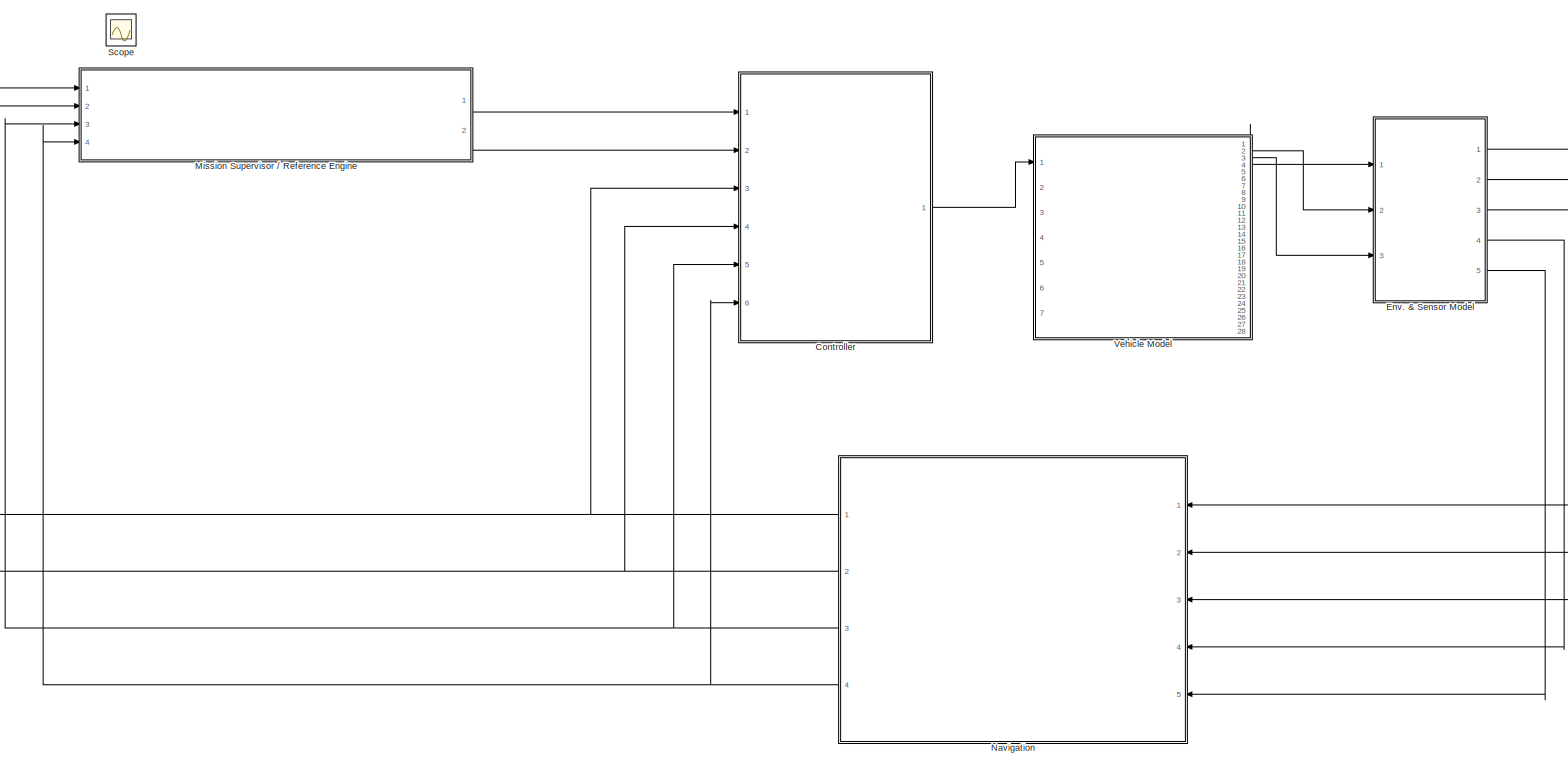
[diagram: root canvas - part 1/1, most of the canvas]
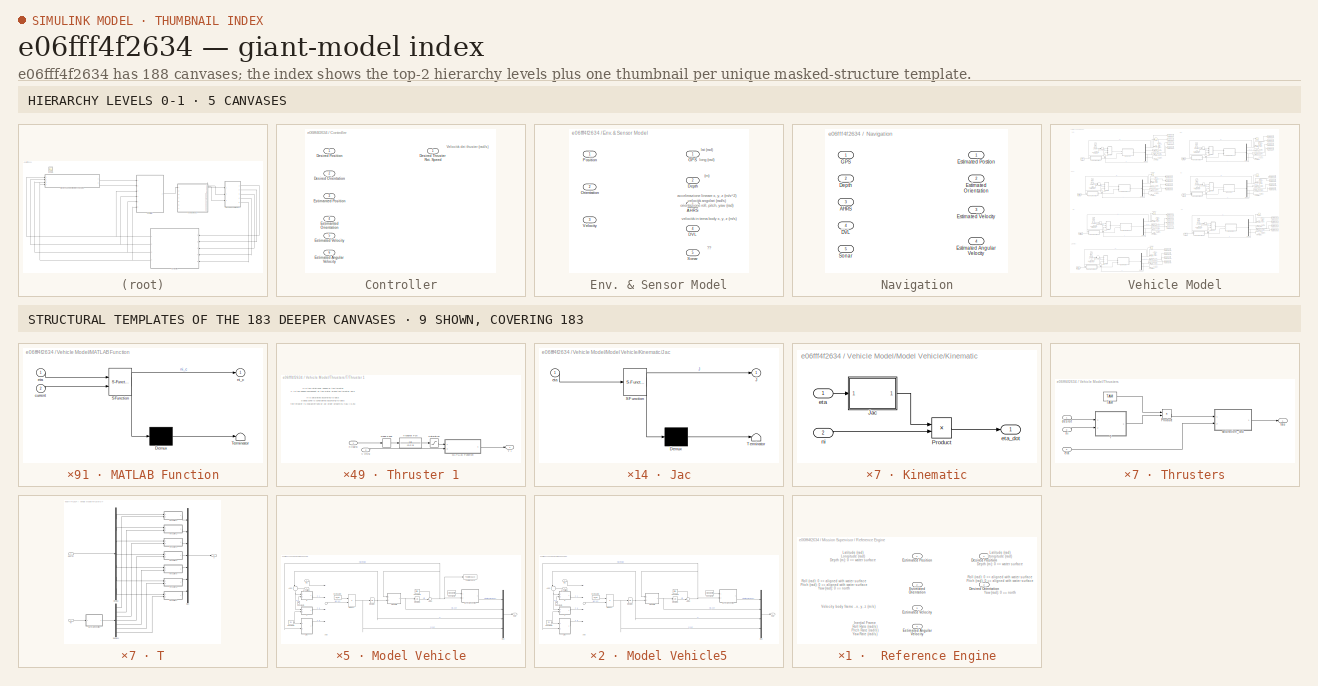
[diagram: thumbnail index - top-2 hierarchy levels (5 canvases) + 9 structural-template representatives of the remaining 183 canvases]
MODEL slx_e06fff4f2634
KIND model
CONFIG AbsTol = auto
CONFIG EnableMultiTasking = off
CONFIG FixedStep = auto
CONFIG MaxStep = auto
CONFIG MinStep = auto
CONFIG RelTol = 1e-3
CONFIG SampleTimeConstraint = Unconstrained
CONFIG Solver = VariableStepAuto
CONFIG SolverName = VariableStepAuto
CONFIG StartTime = 0.0
CONFIG StopTime = 100.0
BLOCK [SubSystem] Controller
  Ports = [6, 1]
  RequestExecContextInheritance = off
BLOCK [Inport] Controller/Desired Orientation
  IconDisplay = Port number
  Port = 2
BLOCK [Inport] Controller/Desired Position
  IconDisplay = Port number
BLOCK [Outport] Controller/Desired Thruster Rot. Speed
  IconDisplay = Port number
BLOCK [Inport] Controller/Estimanted Orientation
  IconDisplay = Port number
  Port = 4
BLOCK [Inport] Controller/Estimanted Position
  IconDisplay = Port number
  Port = 3
BLOCK [Inport] Controller/Estimated Angular Velocity
  IconDisplay = Port number
  Port = 6
BLOCK [Inport] Controller/Estimated Velocity
  IconDisplay = Port number
  Port = 5
BLOCK [SubSystem] Env. & Sensor Model
  Ports = [3, 5]
  RequestExecContextInheritance = off
BLOCK [Outport] Env. & Sensor Model/AHRS
  IconDisplay = Port number
  Port = 3
BLOCK [Outport] Env. & Sensor Model/DVL
  IconDisplay = Port number
  Port = 4
BLOCK [Outport] Env. & Sensor Model/Depth
  IconDisplay = Port number
  Port = 2
BLOCK [Outport] Env. & Sensor Model/GPS
  IconDisplay = Port number
BLOCK [Inport] Env. & Sensor Model/Orientation
  IconDisplay = Port number
  Port = 2
BLOCK [Inport] Env. & Sensor Model/Position
  IconDisplay = Port number
BLOCK [Outport] Env. & Sensor Model/Sonar
  IconDisplay = Port number
  Port = 5
BLOCK [Inport] Env. & Sensor Model/Velocity
  IconDisplay = Port number
  Port = 3
BLOCK [SubSystem] Mission Supervisor // Reference Engine
  Ports = [4, 2]
  RequestExecContextInheritance = off
BLOCK [Outport] Mission Supervisor // Reference Engine/Desired Orientation
  IconDisplay = Port number
  Port = 2
BLOCK [Outport] Mission Supervisor // Reference Engine/Desired Position
  IconDisplay = Port number
BLOCK [Inport] Mission Supervisor // Reference Engine/Estimated Angular Velocity
  IconDisplay = Port number
  Port = 4
BLOCK [Inport] Mission Supervisor // Reference Engine/Estimated Orientation
  IconDisplay = Port number
  Port = 2
BLOCK [Inport] Mission Supervisor // Reference Engine/Estimated Position
  IconDisplay = Port number
BLOCK [Inport] Mission Supervisor // Reference Engine/Estimated Velocity
  IconDisplay = Port number
  Port = 3
BLOCK [SubSystem] Navigation
  Ports = [5, 4]
  RequestExecContextInheritance = off
BLOCK [Inport] Navigation/AHRS
  IconDisplay = Port number
  Port = 3
BLOCK [Inport] Navigation/DVL
  IconDisplay = Port number
  Port = 4
BLOCK [Inport] Navigation/Depth
  IconDisplay = Port number
  Port = 2
BLOCK [Outport] Navigation/Estimated Angular Velocity
  IconDisplay = Port number
  Port = 4
BLOCK [Outport] Navigation/Estimated Orientation
  IconDisplay = Port number
  Port = 2
BLOCK [Outport] Navigation/Estimated Postion
  IconDisplay = Port number
BLOCK [Outport] Navigation/Estimated Velocity
  IconDisplay = Port number
  Port = 3
BLOCK [Inport] Navigation/GPS
  IconDisplay = Port number
BLOCK [Inport] Navigation/Sonar
  IconDisplay = Port number
  Port = 5
BLOCK [Scope] Scope
  Floating = off
  IOType = viewer
  NumInputPorts = 1
  Ports = []
  ScopeSpecificationString = Simulink.scopes.TimeScopeBlockCfg('CurrentConfiguration', extmgr.ConfigurationSet(extmgr.Configuration('Core','General UI',true),extmgr.Configuration('Core','Source UI',true),extmgr.Configuration('Sources','WiredSimulink',true,'DataLoggingVariableName','ScopeData2'),extmgr.Configuration('Visuals','Time Domain',true,'SerializedDisplays',{struct('MinYLimReal','-0.08935','MaxYLimReal','0.18556','YLab...<+1926ch>
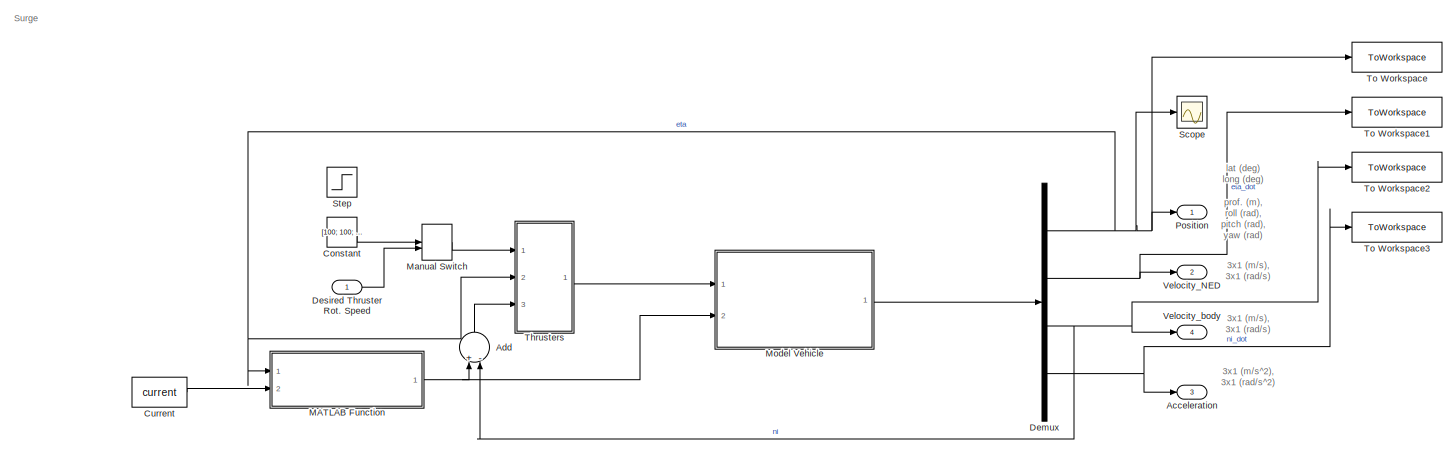
[diagram: Vehicle Model - part 1/7, top left region]
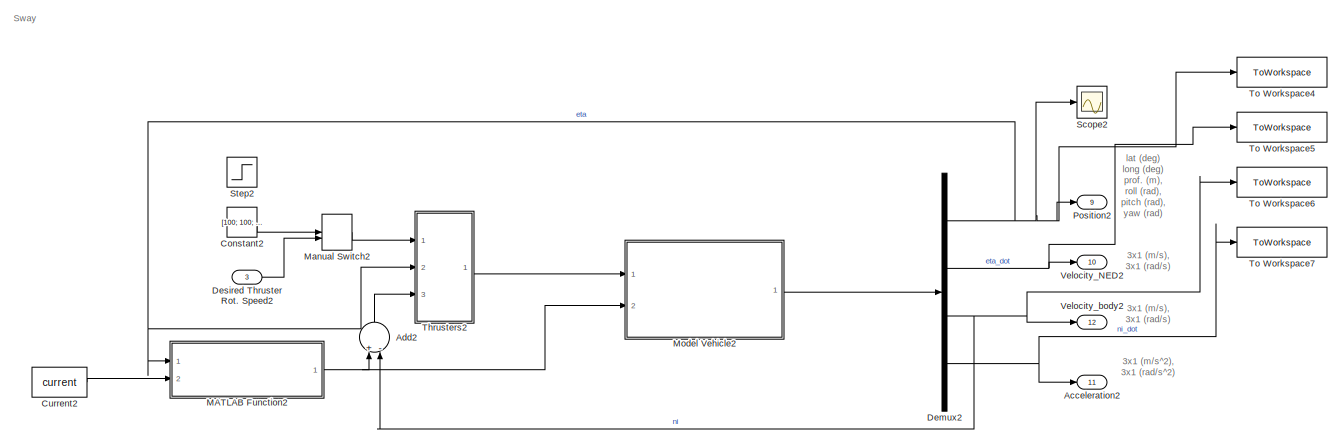
[diagram: Vehicle Model - part 2/7, top right region]
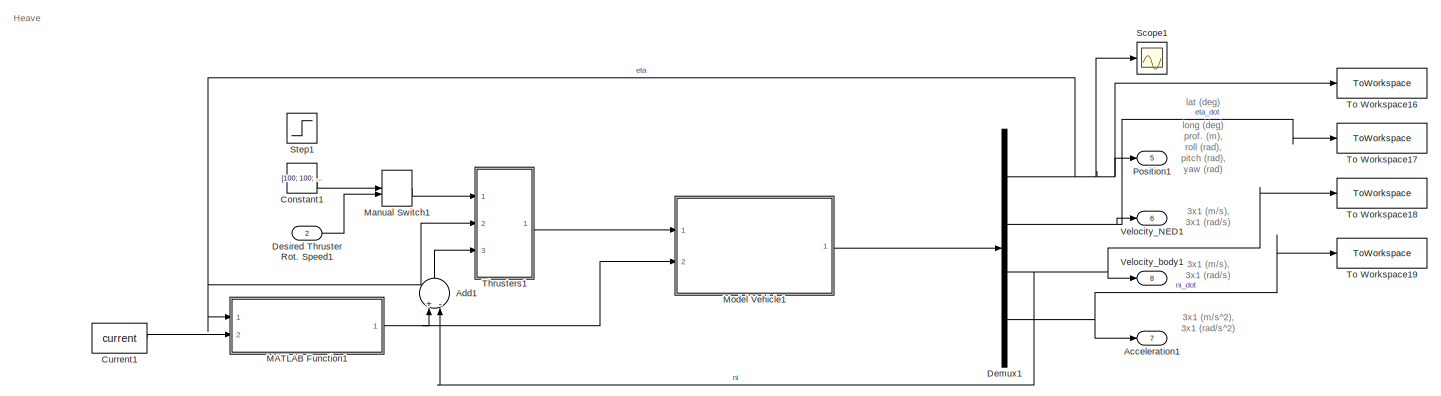
[diagram: Vehicle Model - part 3/7, middle left region]
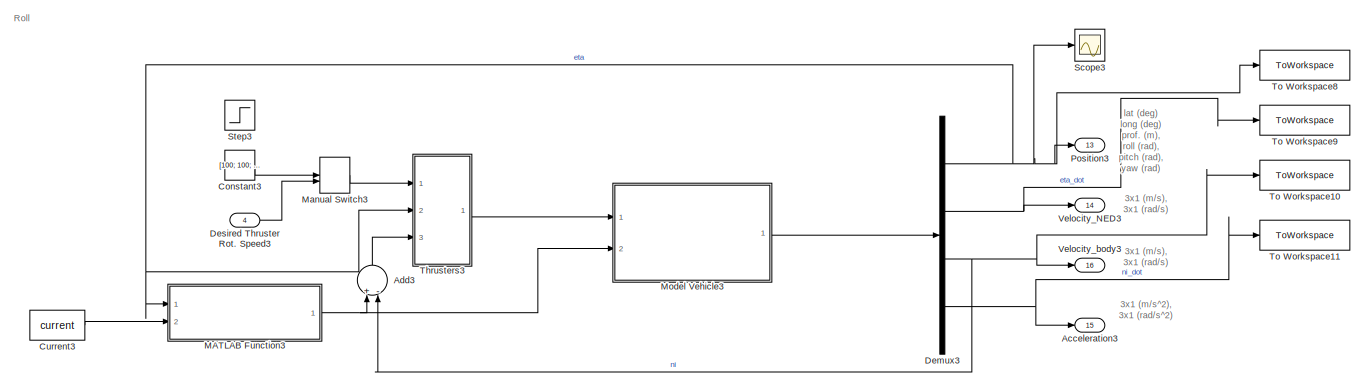
[diagram: Vehicle Model - part 4/7, middle right region]
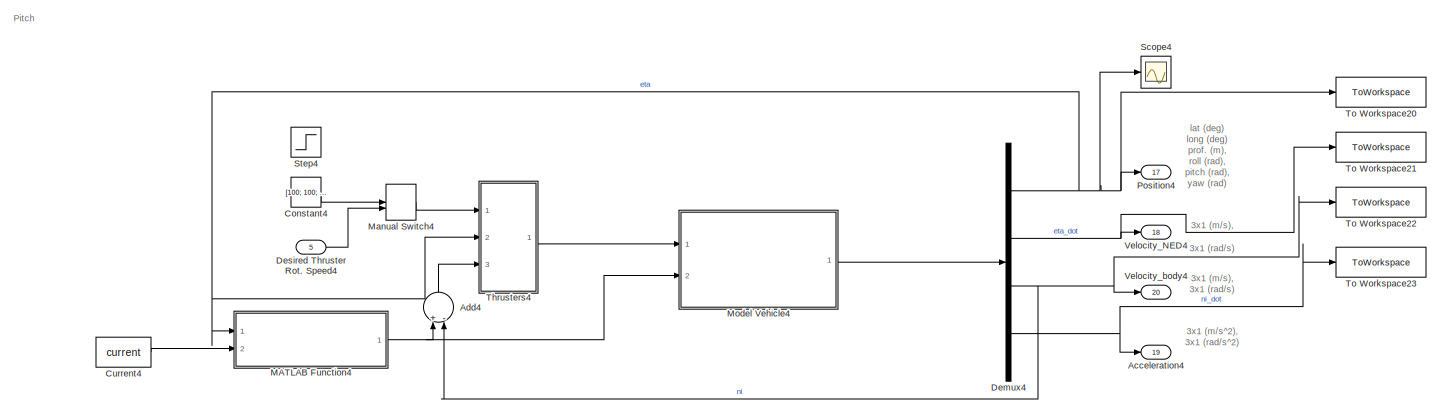
[diagram: Vehicle Model - part 5/7, middle left region]
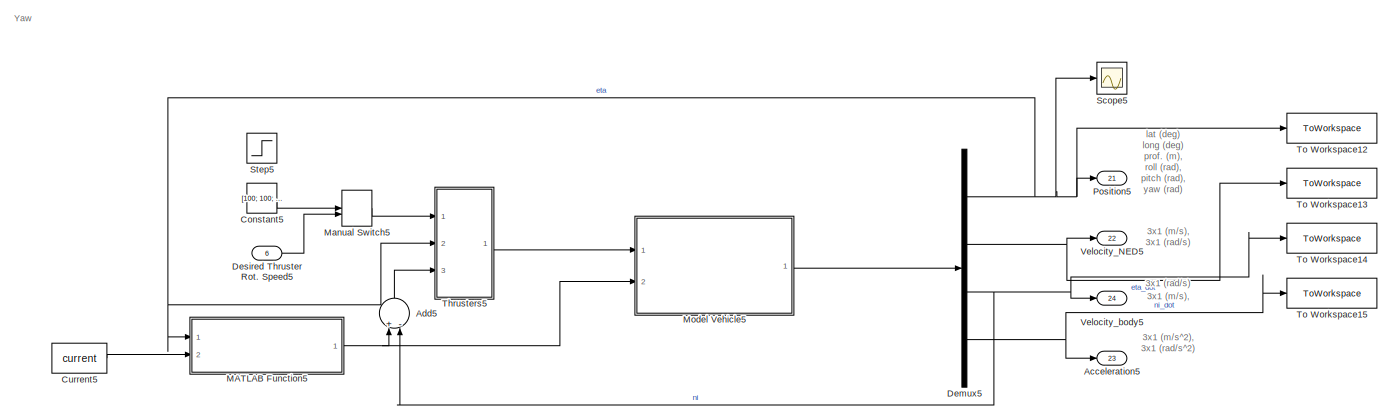
[diagram: Vehicle Model - part 6/7, middle right region]
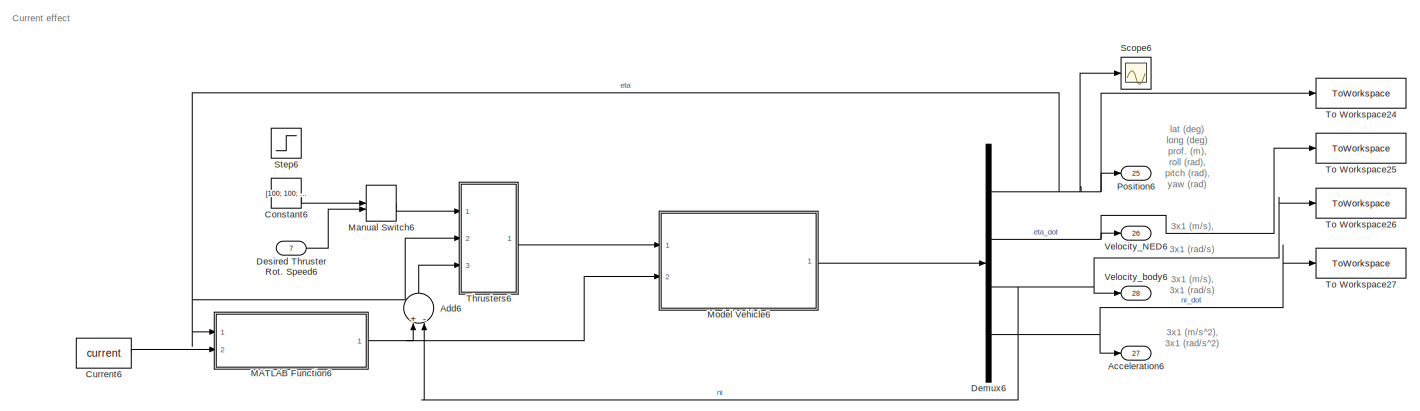
[diagram: Vehicle Model - part 7/7, bottom left region]
BLOCK [SubSystem] Vehicle Model
  Ports = [7, 28]
  RequestExecContextInheritance = off
BLOCK [Outport] Vehicle Model/Acceleration
  IconDisplay = Port number
  Port = 3
BLOCK [Outport] Vehicle Model/Acceleration1
  IconDisplay = Port number
  Port = 7
BLOCK [Outport] Vehicle Model/Acceleration2
  IconDisplay = Port number
  Port = 11
BLOCK [Outport] Vehicle Model/Acceleration3
  IconDisplay = Port number
  Port = 15
BLOCK [Outport] Vehicle Model/Acceleration4
  IconDisplay = Port number
  Port = 19
BLOCK [Outport] Vehicle Model/Acceleration5
  IconDisplay = Port number
  Port = 23
BLOCK [Outport] Vehicle Model/Acceleration6
  IconDisplay = Port number
  Port = 27
BLOCK [Sum] Vehicle Model/Add
  InputSameDT = off
  Inputs = +-
  OutDataTypeStr = Inherit: Inherit via internal rule
  Ports = [2, 1]
  SaturateOnIntegerOverflow = off
BLOCK [Sum] Vehicle Model/Add1
  InputSameDT = off
  Inputs = +-
  OutDataTypeStr = Inherit: Inherit via internal rule
  Ports = [2, 1]
  SaturateOnIntegerOverflow = off
BLOCK [Sum] Vehicle Model/Add2
  InputSameDT = off
  Inputs = +-
  OutDataTypeStr = Inherit: Inherit via internal rule
  Ports = [2, 1]
  SaturateOnIntegerOverflow = off
BLOCK [Sum] Vehicle Model/Add3
  InputSameDT = off
  Inputs = +-
  OutDataTypeStr = Inherit: Inherit via internal rule
  Ports = [2, 1]
  SaturateOnIntegerOverflow = off
BLOCK [Sum] Vehicle Model/Add4
  InputSameDT = off
  Inputs = +-
  OutDataTypeStr = Inherit: Inherit via internal rule
  Ports = [2, 1]
  SaturateOnIntegerOverflow = off
BLOCK [Sum] Vehicle Model/Add5
  InputSameDT = off
  Inputs = +-
  OutDataTypeStr = Inherit: Inherit via internal rule
  Ports = [2, 1]
  SaturateOnIntegerOverflow = off
BLOCK [Sum] Vehicle Model/Add6
  InputSameDT = off
  Inputs = +-
  OutDataTypeStr = Inherit: Inherit via internal rule
  Ports = [2, 1]
  SaturateOnIntegerOverflow = off
BLOCK [Constant] Vehicle Model/Constant
  Value = [100; 100; 0 ; 0; 0; 0; 0]
BLOCK [Constant] Vehicle Model/Constant1
  Value = [100; 100; 0 ; 0; 0; 0; 0]
BLOCK [Constant] Vehicle Model/Constant2
  Value = [100; 100; 0 ; 0; 0; 0; 0]
BLOCK [Constant] Vehicle Model/Constant3
  Value = [100; 100; 0 ; 0; 0; 0; 0]
BLOCK [Constant] Vehicle Model/Constant4
  Value = [100; 100; 0 ; 0; 0; 0; 0]
BLOCK [Constant] Vehicle Model/Constant5
  Value = [100; 100; 0 ; 0; 0; 0; 0]
BLOCK [Constant] Vehicle Model/Constant6
  Value = [100; 100; 0 ; 0; 0; 0; 0]
BLOCK [Constant] Vehicle Model/Current
  Value = current
BLOCK [Constant] Vehicle Model/Current1
  Value = current
BLOCK [Constant] Vehicle Model/Current2
  Value = current
BLOCK [Constant] Vehicle Model/Current3
  Value = current
BLOCK [Constant] Vehicle Model/Current4
  Value = current
BLOCK [Constant] Vehicle Model/Current5
  Value = current
BLOCK [Constant] Vehicle Model/Current6
  Value = current
BLOCK [Demux] Vehicle Model/Demux
  DisplayOption = bar
  Ports = [1, 4]
BLOCK [Demux] Vehicle Model/Demux1
  DisplayOption = bar
  Ports = [1, 4]
BLOCK [Demux] Vehicle Model/Demux2
  DisplayOption = bar
  Ports = [1, 4]
BLOCK [Demux] Vehicle Model/Demux3
  DisplayOption = bar
  Ports = [1, 4]
BLOCK [Demux] Vehicle Model/Demux4
  DisplayOption = bar
  Ports = [1, 4]
BLOCK [Demux] Vehicle Model/Demux5
  DisplayOption = bar
  Ports = [1, 4]
BLOCK [Demux] Vehicle Model/Demux6
  DisplayOption = bar
  Ports = [1, 4]
BLOCK [Inport] Vehicle Model/Desired Thruster Rot. Speed
  IconDisplay = Port number
BLOCK [Inport] Vehicle Model/Desired Thruster Rot. Speed1
  IconDisplay = Port number
  Port = 2
BLOCK [Inport] Vehicle Model/Desired Thruster Rot. Speed2
  IconDisplay = Port number
  Port = 3
BLOCK [Inport] Vehicle Model/Desired Thruster Rot. Speed3
  IconDisplay = Port number
  Port = 4
BLOCK [Inport] Vehicle Model/Desired Thruster Rot. Speed4
  IconDisplay = Port number
  Port = 5
BLOCK [Inport] Vehicle Model/Desired Thruster Rot. Speed5
  IconDisplay = Port number
  Port = 6
BLOCK [Inport] Vehicle Model/Desired Thruster Rot. Speed6
  IconDisplay = Port number
  Port = 7
BLOCK [SubSystem] Vehicle Model/MATLAB Function
  ErrorFcn = Stateflow.Translate.translate
  PermitHierarchicalResolution = ExplicitOnly
  Ports = [2, 1]
  RequestExecContextInheritance = off
  SFBlockType = MATLAB Function
  TreatAsAtomicUnit = on
BLOCK [Demux] Vehicle Model/MATLAB Function/ Demux 
  Outputs = 1
  Ports = [1, 1]
BLOCK [S-Function] Vehicle Model/MATLAB Function/ SFunction 
  EnableBusSupport = on
  FunctionName = sf_sfun
  PortCounts = [2 2]
  Ports = [2, 2]
  SFcnIsStateOwnerBlock = off
  SFunctionDeploymentMode = off
  Tag = Stateflow S-Function 13
BLOCK [Terminator] Vehicle Model/MATLAB Function/ Terminator 
BLOCK [Inport] Vehicle Model/MATLAB Function/current
  IconDisplay = Port number
  Port = 2
BLOCK [Inport] Vehicle Model/MATLAB Function/eta
  IconDisplay = Port number
BLOCK [Outport] Vehicle Model/MATLAB Function/ni_c
  IconDisplay = Port number
BLOCK [SubSystem] Vehicle Model/MATLAB Function1
  ErrorFcn = Stateflow.Translate.translate
  PermitHierarchicalResolution = ExplicitOnly
  Ports = [2, 1]
  RequestExecContextInheritance = off
  SFBlockType = MATLAB Function
  TreatAsAtomicUnit = on
BLOCK [Demux] Vehicle Model/MATLAB Function1/ Demux 
  Outputs = 1
  Ports = [1, 1]
BLOCK [S-Function] Vehicle Model/MATLAB Function1/ SFunction 
  EnableBusSupport = on
  FunctionName = sf_sfun
  PortCounts = [2 2]
  Ports = [2, 2]
  SFcnIsStateOwnerBlock = off
  SFunctionDeploymentMode = off
  Tag = Stateflow S-Function 15
BLOCK [Terminator] Vehicle Model/MATLAB Function1/ Terminator 
BLOCK [Inport] Vehicle Model/MATLAB Function1/current
  IconDisplay = Port number
  Port = 2
BLOCK [Inport] Vehicle Model/MATLAB Function1/eta
  IconDisplay = Port number
BLOCK [Outport] Vehicle Model/MATLAB Function1/ni_c
  IconDisplay = Port number
BLOCK [SubSystem] Vehicle Model/MATLAB Function2
  ErrorFcn = Stateflow.Translate.translate
  PermitHierarchicalResolution = ExplicitOnly
  Ports = [2, 1]
  RequestExecContextInheritance = off
  SFBlockType = MATLAB Function
  TreatAsAtomicUnit = on
BLOCK [Demux] Vehicle Model/MATLAB Function2/ Demux 
  Outputs = 1
  Ports = [1, 1]
BLOCK [S-Function] Vehicle Model/MATLAB Function2/ SFunction 
  EnableBusSupport = on
  FunctionName = sf_sfun
  PortCounts = [2 2]
  Ports = [2, 2]
  SFcnIsStateOwnerBlock = off
  SFunctionDeploymentMode = off
  Tag = Stateflow S-Function 31
BLOCK [Terminator] Vehicle Model/MATLAB Function2/ Terminator 
BLOCK [Inport] Vehicle Model/MATLAB Function2/current
  IconDisplay = Port number
  Port = 2
BLOCK [Inport] Vehicle Model/MATLAB Function2/eta
  IconDisplay = Port number
BLOCK [Outport] Vehicle Model/MATLAB Function2/ni_c
  IconDisplay = Port number
BLOCK [SubSystem] Vehicle Model/MATLAB Function3
  ErrorFcn = Stateflow.Translate.translate
  PermitHierarchicalResolution = ExplicitOnly
  Ports = [2, 1]
  RequestExecContextInheritance = off
  SFBlockType = MATLAB Function
  TreatAsAtomicUnit = on
BLOCK [Demux] Vehicle Model/MATLAB Function3/ Demux 
  Outputs = 1
  Ports = [1, 1]
BLOCK [S-Function] Vehicle Model/MATLAB Function3/ SFunction 
  EnableBusSupport = on
  FunctionName = sf_sfun
  PortCounts = [2 2]
  Ports = [2, 2]
  SFcnIsStateOwnerBlock = off
  SFunctionDeploymentMode = off
  Tag = Stateflow S-Function 46
BLOCK [Terminator] Vehicle Model/MATLAB Function3/ Terminator 
BLOCK [Inport] Vehicle Model/MATLAB Function3/current
  IconDisplay = Port number
  Port = 2
BLOCK [Inport] Vehicle Model/MATLAB Function3/eta
  IconDisplay = Port number
BLOCK [Outport] Vehicle Model/MATLAB Function3/ni_c
  IconDisplay = Port number
BLOCK [SubSystem] Vehicle Model/MATLAB Function4
  ErrorFcn = Stateflow.Translate.translate
  PermitHierarchicalResolution = ExplicitOnly
  Ports = [2, 1]
  RequestExecContextInheritance = off
  SFBlockType = MATLAB Function
  TreatAsAtomicUnit = on
BLOCK [Demux] Vehicle Model/MATLAB Function4/ Demux 
  Outputs = 1
  Ports = [1, 1]
BLOCK [S-Function] Vehicle Model/MATLAB Function4/ SFunction 
  EnableBusSupport = on
  FunctionName = sf_sfun
  PortCounts = [2 2]
  Ports = [2, 2]
  SFcnIsStateOwnerBlock = off
  SFunctionDeploymentMode = off
  Tag = Stateflow S-Function 61
BLOCK [Terminator] Vehicle Model/MATLAB Function4/ Terminator 
BLOCK [Inport] Vehicle Model/MATLAB Function4/current
  IconDisplay = Port number
  Port = 2
BLOCK [Inport] Vehicle Model/MATLAB Function4/eta
  IconDisplay = Port number
BLOCK [Outport] Vehicle Model/MATLAB Function4/ni_c
  IconDisplay = Port number
BLOCK [SubSystem] Vehicle Model/MATLAB Function5
  ErrorFcn = Stateflow.Translate.translate
  PermitHierarchicalResolution = ExplicitOnly
  Ports = [2, 1]
  RequestExecContextInheritance = off
  SFBlockType = MATLAB Function
  TreatAsAtomicUnit = on
BLOCK [Demux] Vehicle Model/MATLAB Function5/ Demux 
  Outputs = 1
  Ports = [1, 1]
BLOCK [S-Function] Vehicle Model/MATLAB Function5/ SFunction 
  EnableBusSupport = on
  FunctionName = sf_sfun
  PortCounts = [2 2]
  Ports = [2, 2]
  SFcnIsStateOwnerBlock = off
  SFunctionDeploymentMode = off
  Tag = Stateflow S-Function 76
BLOCK [Terminator] Vehicle Model/MATLAB Function5/ Terminator 
BLOCK [Inport] Vehicle Model/MATLAB Function5/current
  IconDisplay = Port number
  Port = 2
BLOCK [Inport] Vehicle Model/MATLAB Function5/eta
  IconDisplay = Port number
BLOCK [Outport] Vehicle Model/MATLAB Function5/ni_c
  IconDisplay = Port number
BLOCK [SubSystem] Vehicle Model/MATLAB Function6
  ErrorFcn = Stateflow.Translate.translate
  PermitHierarchicalResolution = ExplicitOnly
  Ports = [2, 1]
  RequestExecContextInheritance = off
  SFBlockType = MATLAB Function
  TreatAsAtomicUnit = on
BLOCK [Demux] Vehicle Model/MATLAB Function6/ Demux 
  Outputs = 1
  Ports = [1, 1]
BLOCK [S-Function] Vehicle Model/MATLAB Function6/ SFunction 
  EnableBusSupport = on
  FunctionName = sf_sfun
  PortCounts = [2 2]
  Ports = [2, 2]
  SFcnIsStateOwnerBlock = off
  SFunctionDeploymentMode = off
  Tag = Stateflow S-Function 91
BLOCK [Terminator] Vehicle Model/MATLAB Function6/ Terminator 
BLOCK [Inport] Vehicle Model/MATLAB Function6/current
  IconDisplay = Port number
  Port = 2
BLOCK [Inport] Vehicle Model/MATLAB Function6/eta
  IconDisplay = Port number
BLOCK [Outport] Vehicle Model/MATLAB Function6/ni_c
  IconDisplay = Port number
BLOCK [ManualSwitch] Vehicle Model/Manual Switch
BLOCK [ManualSwitch] Vehicle Model/Manual Switch1
BLOCK [ManualSwitch] Vehicle Model/Manual Switch2
BLOCK [ManualSwitch] Vehicle Model/Manual Switch3
BLOCK [ManualSwitch] Vehicle Model/Manual Switch4
BLOCK [ManualSwitch] Vehicle Model/Manual Switch5
BLOCK [ManualSwitch] Vehicle Model/Manual Switch6
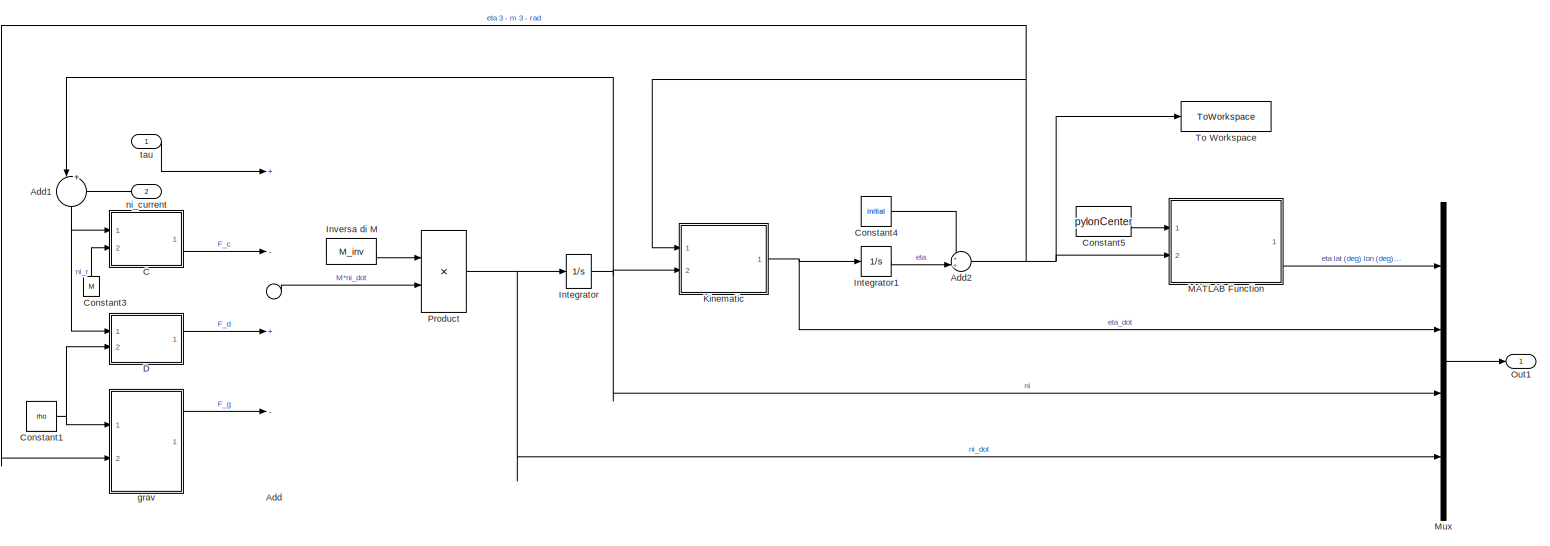
[diagram: Vehicle Model/Model Vehicle - part 1/1, most of the canvas]
BLOCK [SubSystem] Vehicle Model/Model Vehicle
  Ports = [2, 1]
  RequestExecContextInheritance = off
BLOCK [Sum] Vehicle Model/Model Vehicle/Add
  InputSameDT = off
  Inputs = +-+-
  OutDataTypeStr = Inherit: Inherit via internal rule
  Ports = [4, 1]
  SaturateOnIntegerOverflow = off
BLOCK [Sum] Vehicle Model/Model Vehicle/Add1
  IconShape = round
  InputSameDT = off
  Inputs = |+-
  OutDataTypeStr = Inherit: Inherit via internal rule
  Ports = [2, 1]
  SaturateOnIntegerOverflow = off
BLOCK [Sum] Vehicle Model/Model Vehicle/Add2
  IconShape = round
  InputSameDT = off
  Inputs = ++|
  OutDataTypeStr = Inherit: Inherit via internal rule
  Ports = [2, 1]
  SaturateOnIntegerOverflow = off
BLOCK [SubSystem] Vehicle Model/Model Vehicle/C
  ErrorFcn = Stateflow.Translate.translate
  PermitHierarchicalResolution = ExplicitOnly
  Ports = [2, 1]
  RequestExecContextInheritance = off
  SFBlockType = MATLAB Function
  TreatAsAtomicUnit = on
BLOCK [Demux] Vehicle Model/Model Vehicle/C/ Demux 
  Outputs = 1
  Ports = [1, 1]
BLOCK [S-Function] Vehicle Model/Model Vehicle/C/ SFunction 
  EnableBusSupport = on
  FunctionName = sf_sfun
  PortCounts = [2 2]
  Ports = [2, 2]
  SFcnIsStateOwnerBlock = off
  SFunctionDeploymentMode = off
  Tag = Stateflow S-Function 2
BLOCK [Terminator] Vehicle Model/Model Vehicle/C/ Terminator 
BLOCK [Outport] Vehicle Model/Model Vehicle/C/F_c
  IconDisplay = Port number
  VectorParamsAs1DForOutWhenUnconnected = off
BLOCK [Inport] Vehicle Model/Model Vehicle/C/M
  IconDisplay = Port number
  Port = 2
BLOCK [Inport] Vehicle Model/Model Vehicle/C/ni_r
  IconDisplay = Port number
BLOCK [Constant] Vehicle Model/Model Vehicle/Constant1
  Value = rho
BLOCK [Constant] Vehicle Model/Model Vehicle/Constant3
  Value = M
BLOCK [Constant] Vehicle Model/Model Vehicle/Constant4
  Value = initial
BLOCK [Constant] Vehicle Model/Model Vehicle/Constant5
  Value = pylonCenter
BLOCK [SubSystem] Vehicle Model/Model Vehicle/D
  ErrorFcn = Stateflow.Translate.translate
  PermitHierarchicalResolution = ExplicitOnly
  Ports = [2, 1]
  RequestExecContextInheritance = off
  SFBlockType = MATLAB Function
  TreatAsAtomicUnit = on
BLOCK [Demux] Vehicle Model/Model Vehicle/D/ Demux 
  Outputs = 1
  Ports = [1, 1]
BLOCK [S-Function] Vehicle Model/Model Vehicle/D/ SFunction 
  EnableBusSupport = on
  FunctionName = sf_sfun
  PortCounts = [2 2]
  Ports = [2, 2]
  SFcnIsStateOwnerBlock = off
  SFunctionDeploymentMode = off
  Tag = Stateflow S-Function 1
BLOCK [Terminator] Vehicle Model/Model Vehicle/D/ Terminator 
BLOCK [Outport] Vehicle Model/Model Vehicle/D/F_d
  IconDisplay = Port number
  VectorParamsAs1DForOutWhenUnconnected = off
BLOCK [Inport] Vehicle Model/Model Vehicle/D/ni_r
  IconDisplay = Port number
BLOCK [Inport] Vehicle Model/Model Vehicle/D/rho
  IconDisplay = Port number
  Port = 2
BLOCK [Integrator] Vehicle Model/Model Vehicle/Integrator
  Ports = [1, 1]
BLOCK [Integrator] Vehicle Model/Model Vehicle/Integrator1
  Ports = [1, 1]
BLOCK [Constant] Vehicle Model/Model Vehicle/Inversa di M
  Value = M_inv
BLOCK [SubSystem] Vehicle Model/Model Vehicle/Kinematic
  Ports = [2, 1]
  RequestExecContextInheritance = off
BLOCK [SubSystem] Vehicle Model/Model Vehicle/Kinematic/Jac
  ErrorFcn = Stateflow.Translate.translate
  PermitHierarchicalResolution = ExplicitOnly
  Ports = [1, 1]
  RequestExecContextInheritance = off
  SFBlockType = MATLAB Function
  TreatAsAtomicUnit = on
BLOCK [Demux] Vehicle Model/Model Vehicle/Kinematic/Jac/ Demux 
  Outputs = 1
  Ports = [1, 1]
BLOCK [S-Function] Vehicle Model/Model Vehicle/Kinematic/Jac/ SFunction 
  EnableBusSupport = on
  FunctionName = sf_sfun
  PortCounts = [1 2]
  Ports = [1, 2]
  SFcnIsStateOwnerBlock = off
  SFunctionDeploymentMode = off
  Tag = Stateflow S-Function 4
BLOCK [Terminator] Vehicle Model/Model Vehicle/Kinematic/Jac/ Terminator 
BLOCK [Outport] Vehicle Model/Model Vehicle/Kinematic/Jac/J
  IconDisplay = Port number
BLOCK [Inport] Vehicle Model/Model Vehicle/Kinematic/Jac/eta
  IconDisplay = Port number
BLOCK [Product] Vehicle Model/Model Vehicle/Kinematic/Product
  InputSameDT = off
  Multiplication = Matrix(*)
  OutDataTypeStr = Inherit: Inherit via internal rule
  Ports = [2, 1]
  RndMeth = Floor
  SaturateOnIntegerOverflow = off
BLOCK [Inport] Vehicle Model/Model Vehicle/Kinematic/eta
  IconDisplay = Port number
BLOCK [Outport] Vehicle Model/Model Vehicle/Kinematic/eta_dot
  IconDisplay = Port number
  VectorParamsAs1DForOutWhenUnconnected = off
BLOCK [Inport] Vehicle Model/Model Vehicle/Kinematic/ni
  IconDisplay = Port number
  Port = 2
BLOCK [SubSystem] Vehicle Model/Model Vehicle/MATLAB Function
  ErrorFcn = Stateflow.Translate.translate
  PermitHierarchicalResolution = ExplicitOnly
  Ports = [2, 1]
  RequestExecContextInheritance = off
  SFBlockType = MATLAB Function
  TreatAsAtomicUnit = on
BLOCK [Demux] Vehicle Model/Model Vehicle/MATLAB Function/ Demux 
  Outputs = 1
  Ports = [1, 1]
BLOCK [S-Function] Vehicle Model/Model Vehicle/MATLAB Function/ SFunction 
  EnableBusSupport = on
  FunctionName = sf_sfun
  PortCounts = [2 2]
  Ports = [2, 2]
  SFcnIsStateOwnerBlock = off
  SFunctionDeploymentMode = off
  Tag = Stateflow S-Function 12
BLOCK [Terminator] Vehicle Model/Model Vehicle/MATLAB Function/ Terminator 
BLOCK [Inport] Vehicle Model/Model Vehicle/MATLAB Function/coord_pylon
  IconDisplay = Port number
BLOCK [Inport] Vehicle Model/Model Vehicle/MATLAB Function/eta
  IconDisplay = Port number
  Port = 2
BLOCK [Outport] Vehicle Model/Model Vehicle/MATLAB Function/eta_ecef
  IconDisplay = Port number
BLOCK [Mux] Vehicle Model/Model Vehicle/Mux
  DisplayOption = bar
  Ports = [4, 1]
BLOCK [Outport] Vehicle Model/Model Vehicle/Out1
  IconDisplay = Port number
  VectorParamsAs1DForOutWhenUnconnected = off
BLOCK [Product] Vehicle Model/Model Vehicle/Product
  InputSameDT = off
  Multiplication = Matrix(*)
  OutDataTypeStr = Inherit: Inherit via internal rule
  Ports = [2, 1]
  RndMeth = Floor
  SaturateOnIntegerOverflow = off
BLOCK [ToWorkspace] Vehicle Model/Model Vehicle/To Workspace
  FixptAsFi = on
  MaxDataPoints = inf
  Ports = [1]
  SampleTime = -1
  SaveFormat = Timeseries
  VariableName = eta_ned_surge
BLOCK [SubSystem] Vehicle Model/Model Vehicle/grav
  ErrorFcn = Stateflow.Translate.translate
  PermitHierarchicalResolution = ExplicitOnly
  Ports = [2, 1]
  RequestExecContextInheritance = off
  SFBlockType = MATLAB Function
  TreatAsAtomicUnit = on
BLOCK [Demux] Vehicle Model/Model Vehicle/grav/ Demux 
  Outputs = 1
  Ports = [1, 1]
BLOCK [S-Function] Vehicle Model/Model Vehicle/grav/ SFunction 
  EnableBusSupport = on
  FunctionName = sf_sfun
  PortCounts = [2 2]
  Ports = [2, 2]
  SFcnIsStateOwnerBlock = off
  SFunctionDeploymentMode = off
  Tag = Stateflow S-Function 3
BLOCK [Terminator] Vehicle Model/Model Vehicle/grav/ Terminator 
BLOCK [Outport] Vehicle Model/Model Vehicle/grav/F_g
  IconDisplay = Port number
  VectorParamsAs1DForOutWhenUnconnected = off
BLOCK [Inport] Vehicle Model/Model Vehicle/grav/eta
  IconDisplay = Port number
  Port = 2
BLOCK [Inport] Vehicle Model/Model Vehicle/grav/rho
  IconDisplay = Port number
BLOCK [Inport] Vehicle Model/Model Vehicle/ni_current
  IconDisplay = Port number
  Port = 2
BLOCK [Inport] Vehicle Model/Model Vehicle/tau
  IconDisplay = Port number
BLOCK [SubSystem] Vehicle Model/Model Vehicle1
  Ports = [2, 1]
  RequestExecContextInheritance = off
BLOCK [Sum] Vehicle Model/Model Vehicle1/Add
  InputSameDT = off
  Inputs = +-+-
  OutDataTypeStr = Inherit: Inherit via internal rule
  Ports = [4, 1]
  SaturateOnIntegerOverflow = off
BLOCK [Sum] Vehicle Model/Model Vehicle1/Add1
  IconShape = round
  InputSameDT = off
  Inputs = |+-
  OutDataTypeStr = Inherit: Inherit via internal rule
  Ports = [2, 1]
  SaturateOnIntegerOverflow = off
BLOCK [Sum] Vehicle Model/Model Vehicle1/Add2
  IconShape = round
  InputSameDT = off
  Inputs = ++|
  OutDataTypeStr = Inherit: Inherit via internal rule
  Ports = [2, 1]
  SaturateOnIntegerOverflow = off
BLOCK [SubSystem] Vehicle Model/Model Vehicle1/C
  ErrorFcn = Stateflow.Translate.translate
  PermitHierarchicalResolution = ExplicitOnly
  Ports = [2, 1]
  RequestExecContextInheritance = off
  SFBlockType = MATLAB Function
  TreatAsAtomicUnit = on
BLOCK [Demux] Vehicle Model/Model Vehicle1/C/ Demux 
  Outputs = 1
  Ports = [1, 1]
BLOCK [S-Function] Vehicle Model/Model Vehicle1/C/ SFunction 
  EnableBusSupport = on
  FunctionName = sf_sfun
  PortCounts = [2 2]
  Ports = [2, 2]
  SFcnIsStateOwnerBlock = off
  SFunctionDeploymentMode = off
  Tag = Stateflow S-Function 17
BLOCK [Terminator] Vehicle Model/Model Vehicle1/C/ Terminator 
BLOCK [Outport] Vehicle Model/Model Vehicle1/C/F_c
  IconDisplay = Port number
  VectorParamsAs1DForOutWhenUnconnected = off
BLOCK [Inport] Vehicle Model/Model Vehicle1/C/M
  IconDisplay = Port number
  Port = 2
BLOCK [Inport] Vehicle Model/Model Vehicle1/C/ni_r
  IconDisplay = Port number
BLOCK [Constant] Vehicle Model/Model Vehicle1/Constant1
  Value = rho
BLOCK [Constant] Vehicle Model/Model Vehicle1/Constant3
  Value = M
BLOCK [Constant] Vehicle Model/Model Vehicle1/Constant4
  Value = initial
BLOCK [Constant] Vehicle Model/Model Vehicle1/Constant5
  Value = pylonCenter
BLOCK [SubSystem] Vehicle Model/Model Vehicle1/D
  ErrorFcn = Stateflow.Translate.translate
  PermitHierarchicalResolution = ExplicitOnly
  Ports = [2, 1]
  RequestExecContextInheritance = off
  SFBlockType = MATLAB Function
  TreatAsAtomicUnit = on
BLOCK [Demux] Vehicle Model/Model Vehicle1/D/ Demux 
  Outputs = 1
  Ports = [1, 1]
BLOCK [S-Function] Vehicle Model/Model Vehicle1/D/ SFunction 
  EnableBusSupport = on
  FunctionName = sf_sfun
  PortCounts = [2 2]
  Ports = [2, 2]
  SFcnIsStateOwnerBlock = off
  SFunctionDeploymentMode = off
  Tag = Stateflow S-Function 18
BLOCK [Terminator] Vehicle Model/Model Vehicle1/D/ Terminator 
BLOCK [Outport] Vehicle Model/Model Vehicle1/D/F_d
  IconDisplay = Port number
  VectorParamsAs1DForOutWhenUnconnected = off
BLOCK [Inport] Vehicle Model/Model Vehicle1/D/ni_r
  IconDisplay = Port number
BLOCK [Inport] Vehicle Model/Model Vehicle1/D/rho
  IconDisplay = Port number
  Port = 2
BLOCK [Integrator] Vehicle Model/Model Vehicle1/Integrator
  Ports = [1, 1]
BLOCK [Integrator] Vehicle Model/Model Vehicle1/Integrator1
  Ports = [1, 1]
BLOCK [Constant] Vehicle Model/Model Vehicle1/Inversa di M
  Value = M_inv
BLOCK [SubSystem] Vehicle Model/Model Vehicle1/Kinematic
  Ports = [2, 1]
  RequestExecContextInheritance = off
BLOCK [SubSystem] Vehicle Model/Model Vehicle1/Kinematic/Jac
  ErrorFcn = Stateflow.Translate.translate
  PermitHierarchicalResolution = ExplicitOnly
  Ports = [1, 1]
  RequestExecContextInheritance = off
  SFBlockType = MATLAB Function
  TreatAsAtomicUnit = on
BLOCK [Demux] Vehicle Model/Model Vehicle1/Kinematic/Jac/ Demux 
  Outputs = 1
  Ports = [1, 1]
BLOCK [S-Function] Vehicle Model/Model Vehicle1/Kinematic/Jac/ SFunction 
  EnableBusSupport = on
  FunctionName = sf_sfun
  PortCounts = [1 2]
  Ports = [1, 2]
  SFcnIsStateOwnerBlock = off
  SFunctionDeploymentMode = off
  Tag = Stateflow S-Function 19
BLOCK [Terminator] Vehicle Model/Model Vehicle1/Kinematic/Jac/ Terminator 
BLOCK [Outport] Vehicle Model/Model Vehicle1/Kinematic/Jac/J
  IconDisplay = Port number
BLOCK [Inport] Vehicle Model/Model Vehicle1/Kinematic/Jac/eta
  IconDisplay = Port number
BLOCK [Product] Vehicle Model/Model Vehicle1/Kinematic/Product
  InputSameDT = off
  Multiplication = Matrix(*)
  OutDataTypeStr = Inherit: Inherit via internal rule
  Ports = [2, 1]
  RndMeth = Floor
  SaturateOnIntegerOverflow = off
BLOCK [Inport] Vehicle Model/Model Vehicle1/Kinematic/eta
  IconDisplay = Port number
BLOCK [Outport] Vehicle Model/Model Vehicle1/Kinematic/eta_dot
  IconDisplay = Port number
  VectorParamsAs1DForOutWhenUnconnected = off
BLOCK [Inport] Vehicle Model/Model Vehicle1/Kinematic/ni
  IconDisplay = Port number
  Port = 2
BLOCK [SubSystem] Vehicle Model/Model Vehicle1/MATLAB Function
  ErrorFcn = Stateflow.Translate.translate
  PermitHierarchicalResolution = ExplicitOnly
  Ports = [2, 1]
  RequestExecContextInheritance = off
  SFBlockType = MATLAB Function
  TreatAsAtomicUnit = on
BLOCK [Demux] Vehicle Model/Model Vehicle1/MATLAB Function/ Demux 
  Outputs = 1
  Ports = [1, 1]
BLOCK [S-Function] Vehicle Model/Model Vehicle1/MATLAB Function/ SFunction 
  EnableBusSupport = on
  FunctionName = sf_sfun
  PortCounts = [2 2]
  Ports = [2, 2]
  SFcnIsStateOwnerBlock = off
  SFunctionDeploymentMode = off
  Tag = Stateflow S-Function 20
BLOCK [Terminator] Vehicle Model/Model Vehicle1/MATLAB Function/ Terminator 
BLOCK [Inport] Vehicle Model/Model Vehicle1/MATLAB Function/coord_pylon
  IconDisplay = Port number
BLOCK [Inport] Vehicle Model/Model Vehicle1/MATLAB Function/eta
  IconDisplay = Port number
  Port = 2
BLOCK [Outport] Vehicle Model/Model Vehicle1/MATLAB Function/eta_ecef
  IconDisplay = Port number
BLOCK [Mux] Vehicle Model/Model Vehicle1/Mux
  DisplayOption = bar
  Ports = [4, 1]
BLOCK [Outport] Vehicle Model/Model Vehicle1/Out1
  IconDisplay = Port number
  VectorParamsAs1DForOutWhenUnconnected = off
BLOCK [Product] Vehicle Model/Model Vehicle1/Product
  InputSameDT = off
  Multiplication = Matrix(*)
  OutDataTypeStr = Inherit: Inherit via internal rule
  Ports = [2, 1]
  RndMeth = Floor
  SaturateOnIntegerOverflow = off
BLOCK [ToWorkspace] Vehicle Model/Model Vehicle1/To Workspace
  FixptAsFi = on
  MaxDataPoints = inf
  Ports = [1]
  SampleTime = -1
  SaveFormat = Timeseries
  VariableName = eta_ned_heave
BLOCK [SubSystem] Vehicle Model/Model Vehicle1/grav
  ErrorFcn = Stateflow.Translate.translate
  PermitHierarchicalResolution = ExplicitOnly
  Ports = [2, 1]
  RequestExecContextInheritance = off
  SFBlockType = MATLAB Function
  TreatAsAtomicUnit = on
BLOCK [Demux] Vehicle Model/Model Vehicle1/grav/ Demux 
  Outputs = 1
  Ports = [1, 1]
BLOCK [S-Function] Vehicle Model/Model Vehicle1/grav/ SFunction 
  EnableBusSupport = on
  FunctionName = sf_sfun
  PortCounts = [2 2]
  Ports = [2, 2]
  SFcnIsStateOwnerBlock = off
  SFunctionDeploymentMode = off
  Tag = Stateflow S-Function 21
BLOCK [Terminator] Vehicle Model/Model Vehicle1/grav/ Terminator 
BLOCK [Outport] Vehicle Model/Model Vehicle1/grav/F_g
  IconDisplay = Port number
  VectorParamsAs1DForOutWhenUnconnected = off
BLOCK [Inport] Vehicle Model/Model Vehicle1/grav/eta
  IconDisplay = Port number
  Port = 2
BLOCK [Inport] Vehicle Model/Model Vehicle1/grav/rho
  IconDisplay = Port number
BLOCK [Inport] Vehicle Model/Model Vehicle1/ni_current
  IconDisplay = Port number
  Port = 2
BLOCK [Inport] Vehicle Model/Model Vehicle1/tau
  IconDisplay = Port number
BLOCK [SubSystem] Vehicle Model/Model Vehicle2
  Ports = [2, 1]
  RequestExecContextInheritance = off
BLOCK [Sum] Vehicle Model/Model Vehicle2/Add
  InputSameDT = off
  Inputs = +-+-
  OutDataTypeStr = Inherit: Inherit via internal rule
  Ports = [4, 1]
  SaturateOnIntegerOverflow = off
BLOCK [Sum] Vehicle Model/Model Vehicle2/Add1
  IconShape = round
  InputSameDT = off
  Inputs = |+-
  OutDataTypeStr = Inherit: Inherit via internal rule
  Ports = [2, 1]
  SaturateOnIntegerOverflow = off
BLOCK [Sum] Vehicle Model/Model Vehicle2/Add2
  IconShape = round
  InputSameDT = off
  Inputs = ++|
  OutDataTypeStr = Inherit: Inherit via internal rule
  Ports = [2, 1]
  SaturateOnIntegerOverflow = off
BLOCK [SubSystem] Vehicle Model/Model Vehicle2/C
  ErrorFcn = Stateflow.Translate.translate
  PermitHierarchicalResolution = ExplicitOnly
  Ports = [2, 1]
  RequestExecContextInheritance = off
  SFBlockType = MATLAB Function
  TreatAsAtomicUnit = on
BLOCK [Demux] Vehicle Model/Model Vehicle2/C/ Demux 
  Outputs = 1
  Ports = [1, 1]
BLOCK [S-Function] Vehicle Model/Model Vehicle2/C/ SFunction 
  EnableBusSupport = on
  FunctionName = sf_sfun
  PortCounts = [2 2]
  Ports = [2, 2]
  SFcnIsStateOwnerBlock = off
  SFunctionDeploymentMode = off
  Tag = Stateflow S-Function 32
BLOCK [Terminator] Vehicle Model/Model Vehicle2/C/ Terminator 
BLOCK [Outport] Vehicle Model/Model Vehicle2/C/F_c
  IconDisplay = Port number
  VectorParamsAs1DForOutWhenUnconnected = off
BLOCK [Inport] Vehicle Model/Model Vehicle2/C/M
  IconDisplay = Port number
  Port = 2
BLOCK [Inport] Vehicle Model/Model Vehicle2/C/ni_r
  IconDisplay = Port number
BLOCK [Constant] Vehicle Model/Model Vehicle2/Constant1
  Value = rho
BLOCK [Constant] Vehicle Model/Model Vehicle2/Constant3
  Value = M
BLOCK [Constant] Vehicle Model/Model Vehicle2/Constant4
  Value = initial
BLOCK [Constant] Vehicle Model/Model Vehicle2/Constant5
  Value = pylonCenter
BLOCK [SubSystem] Vehicle Model/Model Vehicle2/D
  ErrorFcn = Stateflow.Translate.translate
  PermitHierarchicalResolution = ExplicitOnly
  Ports = [2, 1]
  RequestExecContextInheritance = off
  SFBlockType = MATLAB Function
  TreatAsAtomicUnit = on
BLOCK [Demux] Vehicle Model/Model Vehicle2/D/ Demux 
  Outputs = 1
  Ports = [1, 1]
BLOCK [S-Function] Vehicle Model/Model Vehicle2/D/ SFunction 
  EnableBusSupport = on
  FunctionName = sf_sfun
  PortCounts = [2 2]
  Ports = [2, 2]
  SFcnIsStateOwnerBlock = off
  SFunctionDeploymentMode = off
  Tag = Stateflow S-Function 33
BLOCK [Terminator] Vehicle Model/Model Vehicle2/D/ Terminator 
BLOCK [Outport] Vehicle Model/Model Vehicle2/D/F_d
  IconDisplay = Port number
  VectorParamsAs1DForOutWhenUnconnected = off
BLOCK [Inport] Vehicle Model/Model Vehicle2/D/ni_r
  IconDisplay = Port number
BLOCK [Inport] Vehicle Model/Model Vehicle2/D/rho
  IconDisplay = Port number
  Port = 2
BLOCK [Integrator] Vehicle Model/Model Vehicle2/Integrator
  Ports = [1, 1]
BLOCK [Integrator] Vehicle Model/Model Vehicle2/Integrator1
  Ports = [1, 1]
BLOCK [Constant] Vehicle Model/Model Vehicle2/Inversa di M
  Value = M_inv
BLOCK [SubSystem] Vehicle Model/Model Vehicle2/Kinematic
  Ports = [2, 1]
  RequestExecContextInheritance = off
BLOCK [SubSystem] Vehicle Model/Model Vehicle2/Kinematic/Jac
  ErrorFcn = Stateflow.Translate.translate
  PermitHierarchicalResolution = ExplicitOnly
  Ports = [1, 1]
  RequestExecContextInheritance = off
  SFBlockType = MATLAB Function
  TreatAsAtomicUnit = on
BLOCK [Demux] Vehicle Model/Model Vehicle2/Kinematic/Jac/ Demux 
  Outputs = 1
  Ports = [1, 1]
BLOCK [S-Function] Vehicle Model/Model Vehicle2/Kinematic/Jac/ SFunction 
  EnableBusSupport = on
  FunctionName = sf_sfun
  PortCounts = [1 2]
  Ports = [1, 2]
  SFcnIsStateOwnerBlock = off
  SFunctionDeploymentMode = off
  Tag = Stateflow S-Function 34
BLOCK [Terminator] Vehicle Model/Model Vehicle2/Kinematic/Jac/ Terminator 
BLOCK [Outport] Vehicle Model/Model Vehicle2/Kinematic/Jac/J
  IconDisplay = Port number
BLOCK [Inport] Vehicle Model/Model Vehicle2/Kinematic/Jac/eta
  IconDisplay = Port number
BLOCK [Product] Vehicle Model/Model Vehicle2/Kinematic/Product
  InputSameDT = off
  Multiplication = Matrix(*)
  OutDataTypeStr = Inherit: Inherit via internal rule
  Ports = [2, 1]
  RndMeth = Floor
  SaturateOnIntegerOverflow = off
BLOCK [Inport] Vehicle Model/Model Vehicle2/Kinematic/eta
  IconDisplay = Port number
BLOCK [Outport] Vehicle Model/Model Vehicle2/Kinematic/eta_dot
  IconDisplay = Port number
  VectorParamsAs1DForOutWhenUnconnected = off
BLOCK [Inport] Vehicle Model/Model Vehicle2/Kinematic/ni
  IconDisplay = Port number
  Port = 2
BLOCK [SubSystem] Vehicle Model/Model Vehicle2/MATLAB Function
  ErrorFcn = Stateflow.Translate.translate
  PermitHierarchicalResolution = ExplicitOnly
  Ports = [2, 1]
  RequestExecContextInheritance = off
  SFBlockType = MATLAB Function
  TreatAsAtomicUnit = on
BLOCK [Demux] Vehicle Model/Model Vehicle2/MATLAB Function/ Demux 
  Outputs = 1
  Ports = [1, 1]
BLOCK [S-Function] Vehicle Model/Model Vehicle2/MATLAB Function/ SFunction 
  EnableBusSupport = on
  FunctionName = sf_sfun
  PortCounts = [2 2]
  Ports = [2, 2]
  SFcnIsStateOwnerBlock = off
  SFunctionDeploymentMode = off
  Tag = Stateflow S-Function 35
BLOCK [Terminator] Vehicle Model/Model Vehicle2/MATLAB Function/ Terminator 
BLOCK [Inport] Vehicle Model/Model Vehicle2/MATLAB Function/coord_pylon
  IconDisplay = Port number
BLOCK [Inport] Vehicle Model/Model Vehicle2/MATLAB Function/eta
  IconDisplay = Port number
  Port = 2
BLOCK [Outport] Vehicle Model/Model Vehicle2/MATLAB Function/eta_ecef
  IconDisplay = Port number
BLOCK [Mux] Vehicle Model/Model Vehicle2/Mux
  DisplayOption = bar
  Ports = [4, 1]
BLOCK [Outport] Vehicle Model/Model Vehicle2/Out1
  IconDisplay = Port number
  VectorParamsAs1DForOutWhenUnconnected = off
BLOCK [Product] Vehicle Model/Model Vehicle2/Product
  InputSameDT = off
  Multiplication = Matrix(*)
  OutDataTypeStr = Inherit: Inherit via internal rule
  Ports = [2, 1]
  RndMeth = Floor
  SaturateOnIntegerOverflow = off
BLOCK [ToWorkspace] Vehicle Model/Model Vehicle2/To Workspace
  FixptAsFi = on
  MaxDataPoints = inf
  Ports = [1]
  SampleTime = -1
  SaveFormat = Timeseries
  VariableName = eta_ned_sway
BLOCK [SubSystem] Vehicle Model/Model Vehicle2/grav
  ErrorFcn = Stateflow.Translate.translate
  PermitHierarchicalResolution = ExplicitOnly
  Ports = [2, 1]
  RequestExecContextInheritance = off
  SFBlockType = MATLAB Function
  TreatAsAtomicUnit = on
BLOCK [Demux] Vehicle Model/Model Vehicle2/grav/ Demux 
  Outputs = 1
  Ports = [1, 1]
BLOCK [S-Function] Vehicle Model/Model Vehicle2/grav/ SFunction 
  EnableBusSupport = on
  FunctionName = sf_sfun
  PortCounts = [2 2]
  Ports = [2, 2]
  SFcnIsStateOwnerBlock = off
  SFunctionDeploymentMode = off
  Tag = Stateflow S-Function 36
BLOCK [Terminator] Vehicle Model/Model Vehicle2/grav/ Terminator 
BLOCK [Outport] Vehicle Model/Model Vehicle2/grav/F_g
  IconDisplay = Port number
  VectorParamsAs1DForOutWhenUnconnected = off
BLOCK [Inport] Vehicle Model/Model Vehicle2/grav/eta
  IconDisplay = Port number
  Port = 2
BLOCK [Inport] Vehicle Model/Model Vehicle2/grav/rho
  IconDisplay = Port number
BLOCK [Inport] Vehicle Model/Model Vehicle2/ni_current
  IconDisplay = Port number
  Port = 2
BLOCK [Inport] Vehicle Model/Model Vehicle2/tau
  IconDisplay = Port number
BLOCK [SubSystem] Vehicle Model/Model Vehicle3
  Ports = [2, 1]
  RequestExecContextInheritance = off
BLOCK [Sum] Vehicle Model/Model Vehicle3/Add
  InputSameDT = off
  Inputs = +-+-
  OutDataTypeStr = Inherit: Inherit via internal rule
  Ports = [4, 1]
  SaturateOnIntegerOverflow = off
BLOCK [Sum] Vehicle Model/Model Vehicle3/Add1
  IconShape = round
  InputSameDT = off
  Inputs = |+-
  OutDataTypeStr = Inherit: Inherit via internal rule
  Ports = [2, 1]
  SaturateOnIntegerOverflow = off
BLOCK [Sum] Vehicle Model/Model Vehicle3/Add2
  IconShape = round
  InputSameDT = off
  Inputs = ++|
  OutDataTypeStr = Inherit: Inherit via internal rule
  Ports = [2, 1]
  SaturateOnIntegerOverflow = off
BLOCK [SubSystem] Vehicle Model/Model Vehicle3/C
  ErrorFcn = Stateflow.Translate.translate
  PermitHierarchicalResolution = ExplicitOnly
  Ports = [2, 1]
  RequestExecContextInheritance = off
  SFBlockType = MATLAB Function
  TreatAsAtomicUnit = on
BLOCK [Demux] Vehicle Model/Model Vehicle3/C/ Demux 
  Outputs = 1
  Ports = [1, 1]
BLOCK [S-Function] Vehicle Model/Model Vehicle3/C/ SFunction 
  EnableBusSupport = on
  FunctionName = sf_sfun
  PortCounts = [2 2]
  Ports = [2, 2]
  SFcnIsStateOwnerBlock = off
  SFunctionDeploymentMode = off
  Tag = Stateflow S-Function 47
BLOCK [Terminator] Vehicle Model/Model Vehicle3/C/ Terminator 
BLOCK [Outport] Vehicle Model/Model Vehicle3/C/F_c
  IconDisplay = Port number
  VectorParamsAs1DForOutWhenUnconnected = off
BLOCK [Inport] Vehicle Model/Model Vehicle3/C/M
  IconDisplay = Port number
  Port = 2
BLOCK [Inport] Vehicle Model/Model Vehicle3/C/ni_r
  IconDisplay = Port number
BLOCK [Constant] Vehicle Model/Model Vehicle3/Constant1
  Value = rho
BLOCK [Constant] Vehicle Model/Model Vehicle3/Constant3
  Value = M
BLOCK [Constant] Vehicle Model/Model Vehicle3/Constant4
  Value = initial
BLOCK [Constant] Vehicle Model/Model Vehicle3/Constant5
  Value = pylonCenter
BLOCK [SubSystem] Vehicle Model/Model Vehicle3/D
  ErrorFcn = Stateflow.Translate.translate
  PermitHierarchicalResolution = ExplicitOnly
  Ports = [2, 1]
  RequestExecContextInheritance = off
  SFBlockType = MATLAB Function
  TreatAsAtomicUnit = on
BLOCK [Demux] Vehicle Model/Model Vehicle3/D/ Demux 
  Outputs = 1
  Ports = [1, 1]
BLOCK [S-Function] Vehicle Model/Model Vehicle3/D/ SFunction 
  EnableBusSupport = on
  FunctionName = sf_sfun
  PortCounts = [2 2]
  Ports = [2, 2]
  SFcnIsStateOwnerBlock = off
  SFunctionDeploymentMode = off
  Tag = Stateflow S-Function 48
BLOCK [Terminator] Vehicle Model/Model Vehicle3/D/ Terminator 
BLOCK [Outport] Vehicle Model/Model Vehicle3/D/F_d
  IconDisplay = Port number
  VectorParamsAs1DForOutWhenUnconnected = off
BLOCK [Inport] Vehicle Model/Model Vehicle3/D/ni_r
  IconDisplay = Port number
BLOCK [Inport] Vehicle Model/Model Vehicle3/D/rho
  IconDisplay = Port number
  Port = 2
BLOCK [Integrator] Vehicle Model/Model Vehicle3/Integrator
  Ports = [1, 1]
BLOCK [Integrator] Vehicle Model/Model Vehicle3/Integrator1
  Ports = [1, 1]
BLOCK [Constant] Vehicle Model/Model Vehicle3/Inversa di M
  Value = M_inv
BLOCK [SubSystem] Vehicle Model/Model Vehicle3/Kinematic
  Ports = [2, 1]
  RequestExecContextInheritance = off
BLOCK [SubSystem] Vehicle Model/Model Vehicle3/Kinematic/Jac
  ErrorFcn = Stateflow.Translate.translate
  PermitHierarchicalResolution = ExplicitOnly
  Ports = [1, 1]
  RequestExecContextInheritance = off
  SFBlockType = MATLAB Function
  TreatAsAtomicUnit = on
BLOCK [Demux] Vehicle Model/Model Vehicle3/Kinematic/Jac/ Demux 
  Outputs = 1
  Ports = [1, 1]
BLOCK [S-Function] Vehicle Model/Model Vehicle3/Kinematic/Jac/ SFunction 
  EnableBusSupport = on
  FunctionName = sf_sfun
  PortCounts = [1 2]
  Ports = [1, 2]
  SFcnIsStateOwnerBlock = off
  SFunctionDeploymentMode = off
  Tag = Stateflow S-Function 49
BLOCK [Terminator] Vehicle Model/Model Vehicle3/Kinematic/Jac/ Terminator 
BLOCK [Outport] Vehicle Model/Model Vehicle3/Kinematic/Jac/J
  IconDisplay = Port number
BLOCK [Inport] Vehicle Model/Model Vehicle3/Kinematic/Jac/eta
  IconDisplay = Port number
BLOCK [Product] Vehicle Model/Model Vehicle3/Kinematic/Product
  InputSameDT = off
  Multiplication = Matrix(*)
  OutDataTypeStr = Inherit: Inherit via internal rule
  Ports = [2, 1]
  RndMeth = Floor
  SaturateOnIntegerOverflow = off
BLOCK [Inport] Vehicle Model/Model Vehicle3/Kinematic/eta
  IconDisplay = Port number
BLOCK [Outport] Vehicle Model/Model Vehicle3/Kinematic/eta_dot
  IconDisplay = Port number
  VectorParamsAs1DForOutWhenUnconnected = off
BLOCK [Inport] Vehicle Model/Model Vehicle3/Kinematic/ni
  IconDisplay = Port number
  Port = 2
BLOCK [SubSystem] Vehicle Model/Model Vehicle3/MATLAB Function
  ErrorFcn = Stateflow.Translate.translate
  PermitHierarchicalResolution = ExplicitOnly
  Ports = [2, 1]
  RequestExecContextInheritance = off
  SFBlockType = MATLAB Function
  TreatAsAtomicUnit = on
BLOCK [Demux] Vehicle Model/Model Vehicle3/MATLAB Function/ Demux 
  Outputs = 1
  Ports = [1, 1]
BLOCK [S-Function] Vehicle Model/Model Vehicle3/MATLAB Function/ SFunction 
  EnableBusSupport = on
  FunctionName = sf_sfun
  PortCounts = [2 2]
  Ports = [2, 2]
  SFcnIsStateOwnerBlock = off
  SFunctionDeploymentMode = off
  Tag = Stateflow S-Function 50
BLOCK [Terminator] Vehicle Model/Model Vehicle3/MATLAB Function/ Terminator 
BLOCK [Inport] Vehicle Model/Model Vehicle3/MATLAB Function/coord_pylon
  IconDisplay = Port number
BLOCK [Inport] Vehicle Model/Model Vehicle3/MATLAB Function/eta
  IconDisplay = Port number
  Port = 2
BLOCK [Outport] Vehicle Model/Model Vehicle3/MATLAB Function/eta_ecef
  IconDisplay = Port number
BLOCK [Mux] Vehicle Model/Model Vehicle3/Mux
  DisplayOption = bar
  Ports = [4, 1]
BLOCK [Outport] Vehicle Model/Model Vehicle3/Out1
  IconDisplay = Port number
  VectorParamsAs1DForOutWhenUnconnected = off
BLOCK [Product] Vehicle Model/Model Vehicle3/Product
  InputSameDT = off
  Multiplication = Matrix(*)
  OutDataTypeStr = Inherit: Inherit via internal rule
  Ports = [2, 1]
  RndMeth = Floor
  SaturateOnIntegerOverflow = off
BLOCK [ToWorkspace] Vehicle Model/Model Vehicle3/To Workspace
  FixptAsFi = on
  MaxDataPoints = inf
  Ports = [1]
  SampleTime = -1
  SaveFormat = Timeseries
  VariableName = eta_ned_roll
BLOCK [SubSystem] Vehicle Model/Model Vehicle3/grav
  ErrorFcn = Stateflow.Translate.translate
  PermitHierarchicalResolution = ExplicitOnly
  Ports = [2, 1]
  RequestExecContextInheritance = off
  SFBlockType = MATLAB Function
  TreatAsAtomicUnit = on
BLOCK [Demux] Vehicle Model/Model Vehicle3/grav/ Demux 
  Outputs = 1
  Ports = [1, 1]
BLOCK [S-Function] Vehicle Model/Model Vehicle3/grav/ SFunction 
  EnableBusSupport = on
  FunctionName = sf_sfun
  PortCounts = [2 2]
  Ports = [2, 2]
  SFcnIsStateOwnerBlock = off
  SFunctionDeploymentMode = off
  Tag = Stateflow S-Function 51
BLOCK [Terminator] Vehicle Model/Model Vehicle3/grav/ Terminator 
BLOCK [Outport] Vehicle Model/Model Vehicle3/grav/F_g
  IconDisplay = Port number
  VectorParamsAs1DForOutWhenUnconnected = off
BLOCK [Inport] Vehicle Model/Model Vehicle3/grav/eta
  IconDisplay = Port number
  Port = 2
BLOCK [Inport] Vehicle Model/Model Vehicle3/grav/rho
  IconDisplay = Port number
BLOCK [Inport] Vehicle Model/Model Vehicle3/ni_current
  IconDisplay = Port number
  Port = 2
BLOCK [Inport] Vehicle Model/Model Vehicle3/tau
  IconDisplay = Port number
BLOCK [SubSystem] Vehicle Model/Model Vehicle4
  Ports = [2, 1]
  RequestExecContextInheritance = off
BLOCK [Sum] Vehicle Model/Model Vehicle4/Add
  InputSameDT = off
  Inputs = +-+-
  OutDataTypeStr = Inherit: Inherit via internal rule
  Ports = [4, 1]
  SaturateOnIntegerOverflow = off
BLOCK [Sum] Vehicle Model/Model Vehicle4/Add1
  IconShape = round
  InputSameDT = off
  Inputs = |+-
  OutDataTypeStr = Inherit: Inherit via internal rule
  Ports = [2, 1]
  SaturateOnIntegerOverflow = off
BLOCK [Sum] Vehicle Model/Model Vehicle4/Add2
  IconShape = round
  InputSameDT = off
  Inputs = ++|
  OutDataTypeStr = Inherit: Inherit via internal rule
  Ports = [2, 1]
  SaturateOnIntegerOverflow = off
BLOCK [SubSystem] Vehicle Model/Model Vehicle4/C
  ErrorFcn = Stateflow.Translate.translate
  PermitHierarchicalResolution = ExplicitOnly
  Ports = [2, 1]
  RequestExecContextInheritance = off
  SFBlockType = MATLAB Function
  TreatAsAtomicUnit = on
BLOCK [Demux] Vehicle Model/Model Vehicle4/C/ Demux 
  Outputs = 1
  Ports = [1, 1]
BLOCK [S-Function] Vehicle Model/Model Vehicle4/C/ SFunction 
  EnableBusSupport = on
  FunctionName = sf_sfun
  PortCounts = [2 2]
  Ports = [2, 2]
  SFcnIsStateOwnerBlock = off
  SFunctionDeploymentMode = off
  Tag = Stateflow S-Function 62
BLOCK [Terminator] Vehicle Model/Model Vehicle4/C/ Terminator 
BLOCK [Outport] Vehicle Model/Model Vehicle4/C/F_c
  IconDisplay = Port number
  VectorParamsAs1DForOutWhenUnconnected = off
BLOCK [Inport] Vehicle Model/Model Vehicle4/C/M
  IconDisplay = Port number
  Port = 2
BLOCK [Inport] Vehicle Model/Model Vehicle4/C/ni_r
  IconDisplay = Port number
BLOCK [Constant] Vehicle Model/Model Vehicle4/Constant1
  Value = rho
BLOCK [Constant] Vehicle Model/Model Vehicle4/Constant3
  Value = M
BLOCK [Constant] Vehicle Model/Model Vehicle4/Constant4
  Value = initial
BLOCK [Constant] Vehicle Model/Model Vehicle4/Constant5
  Value = pylonCenter
BLOCK [SubSystem] Vehicle Model/Model Vehicle4/D
  ErrorFcn = Stateflow.Translate.translate
  PermitHierarchicalResolution = ExplicitOnly
  Ports = [2, 1]
  RequestExecContextInheritance = off
  SFBlockType = MATLAB Function
  TreatAsAtomicUnit = on
BLOCK [Demux] Vehicle Model/Model Vehicle4/D/ Demux 
  Outputs = 1
  Ports = [1, 1]
BLOCK [S-Function] Vehicle Model/Model Vehicle4/D/ SFunction 
  EnableBusSupport = on
  FunctionName = sf_sfun
  PortCounts = [2 2]
  Ports = [2, 2]
  SFcnIsStateOwnerBlock = off
  SFunctionDeploymentMode = off
  Tag = Stateflow S-Function 63
BLOCK [Terminator] Vehicle Model/Model Vehicle4/D/ Terminator 
BLOCK [Outport] Vehicle Model/Model Vehicle4/D/F_d
  IconDisplay = Port number
  VectorParamsAs1DForOutWhenUnconnected = off
BLOCK [Inport] Vehicle Model/Model Vehicle4/D/ni_r
  IconDisplay = Port number
BLOCK [Inport] Vehicle Model/Model Vehicle4/D/rho
  IconDisplay = Port number
  Port = 2
BLOCK [Integrator] Vehicle Model/Model Vehicle4/Integrator
  Ports = [1, 1]
BLOCK [Integrator] Vehicle Model/Model Vehicle4/Integrator1
  Ports = [1, 1]
BLOCK [Constant] Vehicle Model/Model Vehicle4/Inversa di M
  Value = M_inv
BLOCK [SubSystem] Vehicle Model/Model Vehicle4/Kinematic
  Ports = [2, 1]
  RequestExecContextInheritance = off
BLOCK [SubSystem] Vehicle Model/Model Vehicle4/Kinematic/Jac
  ErrorFcn = Stateflow.Translate.translate
  PermitHierarchicalResolution = ExplicitOnly
  Ports = [1, 1]
  RequestExecContextInheritance = off
  SFBlockType = MATLAB Function
  TreatAsAtomicUnit = on
BLOCK [Demux] Vehicle Model/Model Vehicle4/Kinematic/Jac/ Demux 
  Outputs = 1
  Ports = [1, 1]
BLOCK [S-Function] Vehicle Model/Model Vehicle4/Kinematic/Jac/ SFunction 
  EnableBusSupport = on
  FunctionName = sf_sfun
  PortCounts = [1 2]
  Ports = [1, 2]
  SFcnIsStateOwnerBlock = off
  SFunctionDeploymentMode = off
  Tag = Stateflow S-Function 64
BLOCK [Terminator] Vehicle Model/Model Vehicle4/Kinematic/Jac/ Terminator 
BLOCK [Outport] Vehicle Model/Model Vehicle4/Kinematic/Jac/J
  IconDisplay = Port number
BLOCK [Inport] Vehicle Model/Model Vehicle4/Kinematic/Jac/eta
  IconDisplay = Port number
BLOCK [Product] Vehicle Model/Model Vehicle4/Kinematic/Product
  InputSameDT = off
  Multiplication = Matrix(*)
  OutDataTypeStr = Inherit: Inherit via internal rule
  Ports = [2, 1]
  RndMeth = Floor
  SaturateOnIntegerOverflow = off
BLOCK [Inport] Vehicle Model/Model Vehicle4/Kinematic/eta
  IconDisplay = Port number
BLOCK [Outport] Vehicle Model/Model Vehicle4/Kinematic/eta_dot
  IconDisplay = Port number
  VectorParamsAs1DForOutWhenUnconnected = off
BLOCK [Inport] Vehicle Model/Model Vehicle4/Kinematic/ni
  IconDisplay = Port number
  Port = 2
BLOCK [SubSystem] Vehicle Model/Model Vehicle4/MATLAB Function
  ErrorFcn = Stateflow.Translate.translate
  PermitHierarchicalResolution = ExplicitOnly
  Ports = [2, 1]
  RequestExecContextInheritance = off
  SFBlockType = MATLAB Function
  TreatAsAtomicUnit = on
BLOCK [Demux] Vehicle Model/Model Vehicle4/MATLAB Function/ Demux 
  Outputs = 1
  Ports = [1, 1]
BLOCK [S-Function] Vehicle Model/Model Vehicle4/MATLAB Function/ SFunction 
  EnableBusSupport = on
  FunctionName = sf_sfun
  PortCounts = [2 2]
  Ports = [2, 2]
  SFcnIsStateOwnerBlock = off
  SFunctionDeploymentMode = off
  Tag = Stateflow S-Function 65
BLOCK [Terminator] Vehicle Model/Model Vehicle4/MATLAB Function/ Terminator 
BLOCK [Inport] Vehicle Model/Model Vehicle4/MATLAB Function/coord_pylon
  IconDisplay = Port number
BLOCK [Inport] Vehicle Model/Model Vehicle4/MATLAB Function/eta
  IconDisplay = Port number
  Port = 2
BLOCK [Outport] Vehicle Model/Model Vehicle4/MATLAB Function/eta_ecef
  IconDisplay = Port number
BLOCK [Mux] Vehicle Model/Model Vehicle4/Mux
  DisplayOption = bar
  Ports = [4, 1]
BLOCK [Outport] Vehicle Model/Model Vehicle4/Out1
  IconDisplay = Port number
  VectorParamsAs1DForOutWhenUnconnected = off
BLOCK [Product] Vehicle Model/Model Vehicle4/Product
  InputSameDT = off
  Multiplication = Matrix(*)
  OutDataTypeStr = Inherit: Inherit via internal rule
  Ports = [2, 1]
  RndMeth = Floor
  SaturateOnIntegerOverflow = off
BLOCK [ToWorkspace] Vehicle Model/Model Vehicle4/To Workspace
  FixptAsFi = on
  MaxDataPoints = inf
  Ports = [1]
  SampleTime = -1
  SaveFormat = Timeseries
  VariableName = eta_ned_pitch
BLOCK [SubSystem] Vehicle Model/Model Vehicle4/grav
  ErrorFcn = Stateflow.Translate.translate
  PermitHierarchicalResolution = ExplicitOnly
  Ports = [2, 1]
  RequestExecContextInheritance = off
  SFBlockType = MATLAB Function
  TreatAsAtomicUnit = on
BLOCK [Demux] Vehicle Model/Model Vehicle4/grav/ Demux 
  Outputs = 1
  Ports = [1, 1]
BLOCK [S-Function] Vehicle Model/Model Vehicle4/grav/ SFunction 
  EnableBusSupport = on
  FunctionName = sf_sfun
  PortCounts = [2 2]
  Ports = [2, 2]
  SFcnIsStateOwnerBlock = off
  SFunctionDeploymentMode = off
  Tag = Stateflow S-Function 66
BLOCK [Terminator] Vehicle Model/Model Vehicle4/grav/ Terminator 
BLOCK [Outport] Vehicle Model/Model Vehicle4/grav/F_g
  IconDisplay = Port number
  VectorParamsAs1DForOutWhenUnconnected = off
BLOCK [Inport] Vehicle Model/Model Vehicle4/grav/eta
  IconDisplay = Port number
  Port = 2
BLOCK [Inport] Vehicle Model/Model Vehicle4/grav/rho
  IconDisplay = Port number
BLOCK [Inport] Vehicle Model/Model Vehicle4/ni_current
  IconDisplay = Port number
  Port = 2
BLOCK [Inport] Vehicle Model/Model Vehicle4/tau
  IconDisplay = Port number
BLOCK [SubSystem] Vehicle Model/Model Vehicle5
  Ports = [2, 1]
  RequestExecContextInheritance = off
BLOCK [Sum] Vehicle Model/Model Vehicle5/Add
  InputSameDT = off
  Inputs = +-+-
  OutDataTypeStr = Inherit: Inherit via internal rule
  Ports = [4, 1]
  SaturateOnIntegerOverflow = off
BLOCK [Sum] Vehicle Model/Model Vehicle5/Add1
  IconShape = round
  InputSameDT = off
  Inputs = |+-
  OutDataTypeStr = Inherit: Inherit via internal rule
  Ports = [2, 1]
  SaturateOnIntegerOverflow = off
BLOCK [Sum] Vehicle Model/Model Vehicle5/Add2
  IconShape = round
  InputSameDT = off
  Inputs = ++|
  OutDataTypeStr = Inherit: Inherit via internal rule
  Ports = [2, 1]
  SaturateOnIntegerOverflow = off
BLOCK [SubSystem] Vehicle Model/Model Vehicle5/C
  ErrorFcn = Stateflow.Translate.translate
  PermitHierarchicalResolution = ExplicitOnly
  Ports = [2, 1]
  RequestExecContextInheritance = off
  SFBlockType = MATLAB Function
  TreatAsAtomicUnit = on
BLOCK [Demux] Vehicle Model/Model Vehicle5/C/ Demux 
  Outputs = 1
  Ports = [1, 1]
BLOCK [S-Function] Vehicle Model/Model Vehicle5/C/ SFunction 
  EnableBusSupport = on
  FunctionName = sf_sfun
  PortCounts = [2 2]
  Ports = [2, 2]
  SFcnIsStateOwnerBlock = off
  SFunctionDeploymentMode = off
  Tag = Stateflow S-Function 77
BLOCK [Terminator] Vehicle Model/Model Vehicle5/C/ Terminator 
BLOCK [Outport] Vehicle Model/Model Vehicle5/C/F_c
  IconDisplay = Port number
  VectorParamsAs1DForOutWhenUnconnected = off
BLOCK [Inport] Vehicle Model/Model Vehicle5/C/M
  IconDisplay = Port number
  Port = 2
BLOCK [Inport] Vehicle Model/Model Vehicle5/C/ni_r
  IconDisplay = Port number
BLOCK [Constant] Vehicle Model/Model Vehicle5/Constant1
  Value = rho
BLOCK [Constant] Vehicle Model/Model Vehicle5/Constant3
  Value = M
BLOCK [Constant] Vehicle Model/Model Vehicle5/Constant4
  Value = initial
BLOCK [Constant] Vehicle Model/Model Vehicle5/Constant5
  Value = pylonCenter
BLOCK [SubSystem] Vehicle Model/Model Vehicle5/D
  ErrorFcn = Stateflow.Translate.translate
  PermitHierarchicalResolution = ExplicitOnly
  Ports = [2, 1]
  RequestExecContextInheritance = off
  SFBlockType = MATLAB Function
  TreatAsAtomicUnit = on
BLOCK [Demux] Vehicle Model/Model Vehicle5/D/ Demux 
  Outputs = 1
  Ports = [1, 1]
BLOCK [S-Function] Vehicle Model/Model Vehicle5/D/ SFunction 
  EnableBusSupport = on
  FunctionName = sf_sfun
  PortCounts = [2 2]
  Ports = [2, 2]
  SFcnIsStateOwnerBlock = off
  SFunctionDeploymentMode = off
  Tag = Stateflow S-Function 78
BLOCK [Terminator] Vehicle Model/Model Vehicle5/D/ Terminator 
BLOCK [Outport] Vehicle Model/Model Vehicle5/D/F_d
  IconDisplay = Port number
  VectorParamsAs1DForOutWhenUnconnected = off
BLOCK [Inport] Vehicle Model/Model Vehicle5/D/ni_r
  IconDisplay = Port number
BLOCK [Inport] Vehicle Model/Model Vehicle5/D/rho
  IconDisplay = Port number
  Port = 2
BLOCK [Integrator] Vehicle Model/Model Vehicle5/Integrator
  Ports = [1, 1]
BLOCK [Integrator] Vehicle Model/Model Vehicle5/Integrator1
  Ports = [1, 1]
BLOCK [Constant] Vehicle Model/Model Vehicle5/Inversa di M
  Value = M_inv
BLOCK [SubSystem] Vehicle Model/Model Vehicle5/Kinematic
  Ports = [2, 1]
  RequestExecContextInheritance = off
BLOCK [SubSystem] Vehicle Model/Model Vehicle5/Kinematic/Jac
  ErrorFcn = Stateflow.Translate.translate
  PermitHierarchicalResolution = ExplicitOnly
  Ports = [1, 1]
  RequestExecContextInheritance = off
  SFBlockType = MATLAB Function
  TreatAsAtomicUnit = on
BLOCK [Demux] Vehicle Model/Model Vehicle5/Kinematic/Jac/ Demux 
  Outputs = 1
  Ports = [1, 1]
BLOCK [S-Function] Vehicle Model/Model Vehicle5/Kinematic/Jac/ SFunction 
  EnableBusSupport = on
  FunctionName = sf_sfun
  PortCounts = [1 2]
  Ports = [1, 2]
  SFcnIsStateOwnerBlock = off
  SFunctionDeploymentMode = off
  Tag = Stateflow S-Function 79
BLOCK [Terminator] Vehicle Model/Model Vehicle5/Kinematic/Jac/ Terminator 
BLOCK [Outport] Vehicle Model/Model Vehicle5/Kinematic/Jac/J
  IconDisplay = Port number
BLOCK [Inport] Vehicle Model/Model Vehicle5/Kinematic/Jac/eta
  IconDisplay = Port number
BLOCK [Product] Vehicle Model/Model Vehicle5/Kinematic/Product
  InputSameDT = off
  Multiplication = Matrix(*)
  OutDataTypeStr = Inherit: Inherit via internal rule
  Ports = [2, 1]
  RndMeth = Floor
  SaturateOnIntegerOverflow = off
BLOCK [Inport] Vehicle Model/Model Vehicle5/Kinematic/eta
  IconDisplay = Port number
BLOCK [Outport] Vehicle Model/Model Vehicle5/Kinematic/eta_dot
  IconDisplay = Port number
  VectorParamsAs1DForOutWhenUnconnected = off
BLOCK [Inport] Vehicle Model/Model Vehicle5/Kinematic/ni
  IconDisplay = Port number
  Port = 2
BLOCK [SubSystem] Vehicle Model/Model Vehicle5/MATLAB Function
  ErrorFcn = Stateflow.Translate.translate
  PermitHierarchicalResolution = ExplicitOnly
  Ports = [2, 1]
  RequestExecContextInheritance = off
  SFBlockType = MATLAB Function
  TreatAsAtomicUnit = on
BLOCK [Demux] Vehicle Model/Model Vehicle5/MATLAB Function/ Demux 
  Outputs = 1
  Ports = [1, 1]
BLOCK [S-Function] Vehicle Model/Model Vehicle5/MATLAB Function/ SFunction 
  EnableBusSupport = on
  FunctionName = sf_sfun
  PortCounts = [2 2]
  Ports = [2, 2]
  SFcnIsStateOwnerBlock = off
  SFunctionDeploymentMode = off
  Tag = Stateflow S-Function 80
BLOCK [Terminator] Vehicle Model/Model Vehicle5/MATLAB Function/ Terminator 
BLOCK [Inport] Vehicle Model/Model Vehicle5/MATLAB Function/coord_pylon
  IconDisplay = Port number
BLOCK [Inport] Vehicle Model/Model Vehicle5/MATLAB Function/eta
  IconDisplay = Port number
  Port = 2
BLOCK [Outport] Vehicle Model/Model Vehicle5/MATLAB Function/eta_ecef
  IconDisplay = Port number
BLOCK [Mux] Vehicle Model/Model Vehicle5/Mux
  DisplayOption = bar
  Ports = [4, 1]
BLOCK [Outport] Vehicle Model/Model Vehicle5/Out1
  IconDisplay = Port number
  VectorParamsAs1DForOutWhenUnconnected = off
BLOCK [Product] Vehicle Model/Model Vehicle5/Product
  InputSameDT = off
  Multiplication = Matrix(*)
  OutDataTypeStr = Inherit: Inherit via internal rule
  Ports = [2, 1]
  RndMeth = Floor
  SaturateOnIntegerOverflow = off
BLOCK [SubSystem] Vehicle Model/Model Vehicle5/grav
  ErrorFcn = Stateflow.Translate.translate
  PermitHierarchicalResolution = ExplicitOnly
  Ports = [2, 1]
  RequestExecContextInheritance = off
  SFBlockType = MATLAB Function
  TreatAsAtomicUnit = on
BLOCK [Demux] Vehicle Model/Model Vehicle5/grav/ Demux 
  Outputs = 1
  Ports = [1, 1]
BLOCK [S-Function] Vehicle Model/Model Vehicle5/grav/ SFunction 
  EnableBusSupport = on
  FunctionName = sf_sfun
  PortCounts = [2 2]
  Ports = [2, 2]
  SFcnIsStateOwnerBlock = off
  SFunctionDeploymentMode = off
  Tag = Stateflow S-Function 81
BLOCK [Terminator] Vehicle Model/Model Vehicle5/grav/ Terminator 
BLOCK [Outport] Vehicle Model/Model Vehicle5/grav/F_g
  IconDisplay = Port number
  VectorParamsAs1DForOutWhenUnconnected = off
BLOCK [Inport] Vehicle Model/Model Vehicle5/grav/eta
  IconDisplay = Port number
  Port = 2
BLOCK [Inport] Vehicle Model/Model Vehicle5/grav/rho
  IconDisplay = Port number
BLOCK [Inport] Vehicle Model/Model Vehicle5/ni_current
  IconDisplay = Port number
  Port = 2
BLOCK [Inport] Vehicle Model/Model Vehicle5/tau
  IconDisplay = Port number
BLOCK [SubSystem] Vehicle Model/Model Vehicle6
  Ports = [2, 1]
  RequestExecContextInheritance = off
BLOCK [Sum] Vehicle Model/Model Vehicle6/Add
  InputSameDT = off
  Inputs = +-+-
  OutDataTypeStr = Inherit: Inherit via internal rule
  Ports = [4, 1]
  SaturateOnIntegerOverflow = off
BLOCK [Sum] Vehicle Model/Model Vehicle6/Add1
  IconShape = round
  InputSameDT = off
  Inputs = |+-
  OutDataTypeStr = Inherit: Inherit via internal rule
  Ports = [2, 1]
  SaturateOnIntegerOverflow = off
BLOCK [Sum] Vehicle Model/Model Vehicle6/Add2
  IconShape = round
  InputSameDT = off
  Inputs = ++|
  OutDataTypeStr = Inherit: Inherit via internal rule
  Ports = [2, 1]
  SaturateOnIntegerOverflow = off
BLOCK [SubSystem] Vehicle Model/Model Vehicle6/C
  ErrorFcn = Stateflow.Translate.translate
  PermitHierarchicalResolution = ExplicitOnly
  Ports = [2, 1]
  RequestExecContextInheritance = off
  SFBlockType = MATLAB Function
  TreatAsAtomicUnit = on
BLOCK [Demux] Vehicle Model/Model Vehicle6/C/ Demux 
  Outputs = 1
  Ports = [1, 1]
BLOCK [S-Function] Vehicle Model/Model Vehicle6/C/ SFunction 
  EnableBusSupport = on
  FunctionName = sf_sfun
  PortCounts = [2 2]
  Ports = [2, 2]
  SFcnIsStateOwnerBlock = off
  SFunctionDeploymentMode = off
  Tag = Stateflow S-Function 92
BLOCK [Terminator] Vehicle Model/Model Vehicle6/C/ Terminator 
BLOCK [Outport] Vehicle Model/Model Vehicle6/C/F_c
  IconDisplay = Port number
  VectorParamsAs1DForOutWhenUnconnected = off
BLOCK [Inport] Vehicle Model/Model Vehicle6/C/M
  IconDisplay = Port number
  Port = 2
BLOCK [Inport] Vehicle Model/Model Vehicle6/C/ni_r
  IconDisplay = Port number
BLOCK [Constant] Vehicle Model/Model Vehicle6/Constant1
  Value = rho
BLOCK [Constant] Vehicle Model/Model Vehicle6/Constant3
  Value = M
BLOCK [Constant] Vehicle Model/Model Vehicle6/Constant4
  Value = initial
BLOCK [Constant] Vehicle Model/Model Vehicle6/Constant5
  Value = pylonCenter
BLOCK [SubSystem] Vehicle Model/Model Vehicle6/D
  ErrorFcn = Stateflow.Translate.translate
  PermitHierarchicalResolution = ExplicitOnly
  Ports = [2, 1]
  RequestExecContextInheritance = off
  SFBlockType = MATLAB Function
  TreatAsAtomicUnit = on
BLOCK [Demux] Vehicle Model/Model Vehicle6/D/ Demux 
  Outputs = 1
  Ports = [1, 1]
BLOCK [S-Function] Vehicle Model/Model Vehicle6/D/ SFunction 
  EnableBusSupport = on
  FunctionName = sf_sfun
  PortCounts = [2 2]
  Ports = [2, 2]
  SFcnIsStateOwnerBlock = off
  SFunctionDeploymentMode = off
  Tag = Stateflow S-Function 93
BLOCK [Terminator] Vehicle Model/Model Vehicle6/D/ Terminator 
BLOCK [Outport] Vehicle Model/Model Vehicle6/D/F_d
  IconDisplay = Port number
  VectorParamsAs1DForOutWhenUnconnected = off
BLOCK [Inport] Vehicle Model/Model Vehicle6/D/ni_r
  IconDisplay = Port number
BLOCK [Inport] Vehicle Model/Model Vehicle6/D/rho
  IconDisplay = Port number
  Port = 2
BLOCK [Integrator] Vehicle Model/Model Vehicle6/Integrator
  Ports = [1, 1]
BLOCK [Integrator] Vehicle Model/Model Vehicle6/Integrator1
  Ports = [1, 1]
BLOCK [Constant] Vehicle Model/Model Vehicle6/Inversa di M
  Value = M_inv
BLOCK [SubSystem] Vehicle Model/Model Vehicle6/Kinematic
  Ports = [2, 1]
  RequestExecContextInheritance = off
BLOCK [SubSystem] Vehicle Model/Model Vehicle6/Kinematic/Jac
  ErrorFcn = Stateflow.Translate.translate
  PermitHierarchicalResolution = ExplicitOnly
  Ports = [1, 1]
  RequestExecContextInheritance = off
  SFBlockType = MATLAB Function
  TreatAsAtomicUnit = on
BLOCK [Demux] Vehicle Model/Model Vehicle6/Kinematic/Jac/ Demux 
  Outputs = 1
  Ports = [1, 1]
BLOCK [S-Function] Vehicle Model/Model Vehicle6/Kinematic/Jac/ SFunction 
  EnableBusSupport = on
  FunctionName = sf_sfun
  PortCounts = [1 2]
  Ports = [1, 2]
  SFcnIsStateOwnerBlock = off
  SFunctionDeploymentMode = off
  Tag = Stateflow S-Function 94
BLOCK [Terminator] Vehicle Model/Model Vehicle6/Kinematic/Jac/ Terminator 
BLOCK [Outport] Vehicle Model/Model Vehicle6/Kinematic/Jac/J
  IconDisplay = Port number
BLOCK [Inport] Vehicle Model/Model Vehicle6/Kinematic/Jac/eta
  IconDisplay = Port number
BLOCK [Product] Vehicle Model/Model Vehicle6/Kinematic/Product
  InputSameDT = off
  Multiplication = Matrix(*)
  OutDataTypeStr = Inherit: Inherit via internal rule
  Ports = [2, 1]
  RndMeth = Floor
  SaturateOnIntegerOverflow = off
BLOCK [Inport] Vehicle Model/Model Vehicle6/Kinematic/eta
  IconDisplay = Port number
BLOCK [Outport] Vehicle Model/Model Vehicle6/Kinematic/eta_dot
  IconDisplay = Port number
  VectorParamsAs1DForOutWhenUnconnected = off
BLOCK [Inport] Vehicle Model/Model Vehicle6/Kinematic/ni
  IconDisplay = Port number
  Port = 2
BLOCK [SubSystem] Vehicle Model/Model Vehicle6/MATLAB Function
  ErrorFcn = Stateflow.Translate.translate
  PermitHierarchicalResolution = ExplicitOnly
  Ports = [2, 1]
  RequestExecContextInheritance = off
  SFBlockType = MATLAB Function
  TreatAsAtomicUnit = on
BLOCK [Demux] Vehicle Model/Model Vehicle6/MATLAB Function/ Demux 
  Outputs = 1
  Ports = [1, 1]
BLOCK [S-Function] Vehicle Model/Model Vehicle6/MATLAB Function/ SFunction 
  EnableBusSupport = on
  FunctionName = sf_sfun
  PortCounts = [2 2]
  Ports = [2, 2]
  SFcnIsStateOwnerBlock = off
  SFunctionDeploymentMode = off
  Tag = Stateflow S-Function 95
BLOCK [Terminator] Vehicle Model/Model Vehicle6/MATLAB Function/ Terminator 
BLOCK [Inport] Vehicle Model/Model Vehicle6/MATLAB Function/coord_pylon
  IconDisplay = Port number
BLOCK [Inport] Vehicle Model/Model Vehicle6/MATLAB Function/eta
  IconDisplay = Port number
  Port = 2
BLOCK [Outport] Vehicle Model/Model Vehicle6/MATLAB Function/eta_ecef
  IconDisplay = Port number
BLOCK [Mux] Vehicle Model/Model Vehicle6/Mux
  DisplayOption = bar
  Ports = [4, 1]
BLOCK [Outport] Vehicle Model/Model Vehicle6/Out1
  IconDisplay = Port number
  VectorParamsAs1DForOutWhenUnconnected = off
BLOCK [Product] Vehicle Model/Model Vehicle6/Product
  InputSameDT = off
  Multiplication = Matrix(*)
  OutDataTypeStr = Inherit: Inherit via internal rule
  Ports = [2, 1]
  RndMeth = Floor
  SaturateOnIntegerOverflow = off
BLOCK [SubSystem] Vehicle Model/Model Vehicle6/grav
  ErrorFcn = Stateflow.Translate.translate
  PermitHierarchicalResolution = ExplicitOnly
  Ports = [2, 1]
  RequestExecContextInheritance = off
  SFBlockType = MATLAB Function
  TreatAsAtomicUnit = on
BLOCK [Demux] Vehicle Model/Model Vehicle6/grav/ Demux 
  Outputs = 1
  Ports = [1, 1]
BLOCK [S-Function] Vehicle Model/Model Vehicle6/grav/ SFunction 
  EnableBusSupport = on
  FunctionName = sf_sfun
  PortCounts = [2 2]
  Ports = [2, 2]
  SFcnIsStateOwnerBlock = off
  SFunctionDeploymentMode = off
  Tag = Stateflow S-Function 96
BLOCK [Terminator] Vehicle Model/Model Vehicle6/grav/ Terminator 
BLOCK [Outport] Vehicle Model/Model Vehicle6/grav/F_g
  IconDisplay = Port number
  VectorParamsAs1DForOutWhenUnconnected = off
BLOCK [Inport] Vehicle Model/Model Vehicle6/grav/eta
  IconDisplay = Port number
  Port = 2
BLOCK [Inport] Vehicle Model/Model Vehicle6/grav/rho
  IconDisplay = Port number
BLOCK [Inport] Vehicle Model/Model Vehicle6/ni_current
  IconDisplay = Port number
  Port = 2
BLOCK [Inport] Vehicle Model/Model Vehicle6/tau
  IconDisplay = Port number
BLOCK [Outport] Vehicle Model/Position
  IconDisplay = Port number
BLOCK [Outport] Vehicle Model/Position1
  IconDisplay = Port number
  Port = 5
BLOCK [Outport] Vehicle Model/Position2
  IconDisplay = Port number
  Port = 9
BLOCK [Outport] Vehicle Model/Position3
  IconDisplay = Port number
  Port = 13
BLOCK [Outport] Vehicle Model/Position4
  IconDisplay = Port number
  Port = 17
BLOCK [Outport] Vehicle Model/Position5
  IconDisplay = Port number
  Port = 21
BLOCK [Outport] Vehicle Model/Position6
  IconDisplay = Port number
  Port = 25
BLOCK [Scope] Vehicle Model/Scope
  Floating = off
  NumInputPorts = 1
  Ports = [1]
  ScopeSpecificationString = Simulink.scopes.TimeScopeBlockCfg('CurrentConfiguration', extmgr.ConfigurationSet(extmgr.Configuration('Core','General UI',true),extmgr.Configuration('Core','Source UI',true),extmgr.Configuration('Sources','WiredSimulink',true,'DataLoggingVariableName','ScopeData1'),extmgr.Configuration('Visuals','Time Domain',true,'SerializedDisplays',{struct('MinYLimReal','-5.46536','MaxYLimReal','49.18813','YLa...<+1596ch>
BLOCK [Scope] Vehicle Model/Scope1
  Floating = off
  NumInputPorts = 1
  Ports = [1]
  ScopeSpecificationString = Simulink.scopes.TimeScopeBlockCfg('CurrentConfiguration', extmgr.ConfigurationSet(extmgr.Configuration('Core','General UI',true),extmgr.Configuration('Core','Source UI',true),extmgr.Configuration('Sources','WiredSimulink',true,'DataLoggingVariableName','ScopeData1'),extmgr.Configuration('Visuals','Time Domain',true,'SerializedDisplays',{struct('MinYLimReal','-5.46536','MaxYLimReal','49.18813','YLa...<+1596ch>
BLOCK [Scope] Vehicle Model/Scope2
  Floating = off
  NumInputPorts = 1
  Ports = [1]
  ScopeSpecificationString = Simulink.scopes.TimeScopeBlockCfg('CurrentConfiguration', extmgr.ConfigurationSet(extmgr.Configuration('Core','General UI',true),extmgr.Configuration('Core','Source UI',true),extmgr.Configuration('Sources','WiredSimulink',true,'DataLoggingVariableName','ScopeData2'),extmgr.Configuration('Visuals','Time Domain',true,'SerializedDisplays',{struct('MinYLimReal','-5.46536','MaxYLimReal','49.18813','YLa...<+1596ch>
BLOCK [Scope] Vehicle Model/Scope3
  Floating = off
  NumInputPorts = 1
  Ports = [1]
  ScopeSpecificationString = Simulink.scopes.TimeScopeBlockCfg('CurrentConfiguration', extmgr.ConfigurationSet(extmgr.Configuration('Core','General UI',true),extmgr.Configuration('Core','Source UI',true),extmgr.Configuration('Sources','WiredSimulink',true,'DataLoggingVariableName','ScopeData3'),extmgr.Configuration('Visuals','Time Domain',true,'SerializedDisplays',{struct('MinYLimReal','-5.46536','MaxYLimReal','49.18813','YLa...<+1596ch>
BLOCK [Scope] Vehicle Model/Scope4
  Floating = off
  NumInputPorts = 1
  Ports = [1]
  ScopeSpecificationString = Simulink.scopes.TimeScopeBlockCfg('CurrentConfiguration', extmgr.ConfigurationSet(extmgr.Configuration('Core','General UI',true),extmgr.Configuration('Core','Source UI',true),extmgr.Configuration('Sources','WiredSimulink',true,'DataLoggingVariableName','ScopeData4'),extmgr.Configuration('Visuals','Time Domain',true,'SerializedDisplays',{struct('MinYLimReal','-5.46536','MaxYLimReal','49.18813','YLa...<+1596ch>
BLOCK [Scope] Vehicle Model/Scope5
  Floating = off
  NumInputPorts = 1
  Ports = [1]
  ScopeSpecificationString = Simulink.scopes.TimeScopeBlockCfg('CurrentConfiguration', extmgr.ConfigurationSet(extmgr.Configuration('Core','General UI',true),extmgr.Configuration('Core','Source UI',true),extmgr.Configuration('Sources','WiredSimulink',true,'DataLoggingVariableName','ScopeData5'),extmgr.Configuration('Visuals','Time Domain',true,'SerializedDisplays',{struct('MinYLimReal','-5.46536','MaxYLimReal','49.18813','YLa...<+1596ch>
BLOCK [Scope] Vehicle Model/Scope6
  Floating = off
  NumInputPorts = 1
  Ports = [1]
  ScopeSpecificationString = Simulink.scopes.TimeScopeBlockCfg('CurrentConfiguration', extmgr.ConfigurationSet(extmgr.Configuration('Core','General UI',true),extmgr.Configuration('Core','Source UI',true),extmgr.Configuration('Sources','WiredSimulink',true,'DataLoggingVariableName','ScopeData6'),extmgr.Configuration('Visuals','Time Domain',true,'SerializedDisplays',{struct('MinYLimReal','-5.46536','MaxYLimReal','49.18813','YLa...<+1596ch>
BLOCK [Step] Vehicle Model/Step
  After = [0;0;0;0;100;100;200]
  Before = [0;0;0;0;0;0;0]
  SampleTime = 0
  Time = 100
BLOCK [Step] Vehicle Model/Step1
  After = [0;0;0;0;100;100;200]
  Before = [0;0;0;0;0;0;0]
  SampleTime = 0
  Time = 100
BLOCK [Step] Vehicle Model/Step2
  After = [0;0;0;0;100;100;200]
  Before = [0;0;0;0;0;0;0]
  SampleTime = 0
  Time = 100
BLOCK [Step] Vehicle Model/Step3
  After = [0;0;0;0;100;100;200]
  Before = [0;0;0;0;0;0;0]
  SampleTime = 0
  Time = 100
BLOCK [Step] Vehicle Model/Step4
  After = [0;0;0;0;100;100;200]
  Before = [0;0;0;0;0;0;0]
  SampleTime = 0
  Time = 100
BLOCK [Step] Vehicle Model/Step5
  After = [0;0;0;0;100;100;200]
  Before = [0;0;0;0;0;0;0]
  SampleTime = 0
  Time = 100
BLOCK [Step] Vehicle Model/Step6
  After = [0;0;0;0;100;100;200]
  Before = [0;0;0;0;0;0;0]
  SampleTime = 0
  Time = 100
BLOCK [SubSystem] Vehicle Model/Thrusters
  Ports = [3, 1]
  RequestExecContextInheritance = off
BLOCK [Product] Vehicle Model/Thrusters/Product
  InputSameDT = off
  Multiplication = Matrix(*)
  OutDataTypeStr = Inherit: Inherit via internal rule
  Ports = [2, 1]
  RndMeth = Floor
  SaturateOnIntegerOverflow = off
BLOCK [SubSystem] Vehicle Model/Thrusters/T
  Ports = [2, 1]
  RequestExecContextInheritance = off
BLOCK [Demux] Vehicle Model/Thrusters/T/Demux
  DisplayOption = bar
  Outputs = 7
  Ports = [1, 7]
BLOCK [Demux] Vehicle Model/Thrusters/T/Demux1
  DisplayOption = bar
  Outputs = 7
  Ports = [1, 7]
BLOCK [SubSystem] Vehicle Model/Thrusters/T/MATLAB Function
  ErrorFcn = Stateflow.Translate.translate
  PermitHierarchicalResolution = ExplicitOnly
  Ports = [1, 1]
  RequestExecContextInheritance = off
  SFBlockType = MATLAB Function
  TreatAsAtomicUnit = on
BLOCK [Demux] Vehicle Model/Thrusters/T/MATLAB Function/ Demux 
  Outputs = 1
  Ports = [1, 1]
BLOCK [S-Function] Vehicle Model/Thrusters/T/MATLAB Function/ SFunction 
  EnableBusSupport = on
  FunctionName = sf_sfun
  PortCounts = [1 2]
  Ports = [1, 2]
  SFcnIsStateOwnerBlock = off
  SFunctionDeploymentMode = off
  Tag = Stateflow S-Function 14
BLOCK [Terminator] Vehicle Model/Thrusters/T/MATLAB Function/ Terminator 
BLOCK [Inport] Vehicle Model/Thrusters/T/MATLAB Function/ni
  IconDisplay = Port number
BLOCK [Outport] Vehicle Model/Thrusters/T/MATLAB Function/v_th
  IconDisplay = Port number
BLOCK [Mux] Vehicle Model/Thrusters/T/Mux
  DisplayOption = bar
  Inputs = 7
  Ports = [7, 1]
BLOCK [Outport] Vehicle Model/Thrusters/T/T
  IconDisplay = Port number
  VectorParamsAs1DForOutWhenUnconnected = off
BLOCK [SubSystem] Vehicle Model/Thrusters/T/Thruster 1
  Ports = [2, 1]
  RequestExecContextInheritance = off
BLOCK [DeadZone] Vehicle Model/Thrusters/T/Thruster 1/Dead Zone
  LowerValue = -dead_zone_limit
  UpperValue = dead_zone_limit
BLOCK [SubSystem] Vehicle Model/Thrusters/T/Thruster 1/MATLAB Function
  ErrorFcn = Stateflow.Translate.translate
  PermitHierarchicalResolution = ExplicitOnly
  Ports = [2, 1]
  RequestExecContextInheritance = off
  SFBlockType = MATLAB Function
  TreatAsAtomicUnit = on
BLOCK [Demux] Vehicle Model/Thrusters/T/Thruster 1/MATLAB Function/ Demux 
  Outputs = 1
  Ports = [1, 1]
BLOCK [S-Function] Vehicle Model/Thrusters/T/Thruster 1/MATLAB Function/ SFunction 
  EnableBusSupport = on
  FunctionName = sf_sfun
  Parameters = D,a1,a2,alpha1,alpha2,omega
  PortCounts = [2 2]
  Ports = [2, 2]
  SFcnIsStateOwnerBlock = off
  SFunctionDeploymentMode = off
  Tag = Stateflow S-Function 5
BLOCK [Terminator] Vehicle Model/Thrusters/T/Thruster 1/MATLAB Function/ Terminator 
BLOCK [Outport] Vehicle Model/Thrusters/T/Thruster 1/MATLAB Function/T
  IconDisplay = Port number
BLOCK [Inport] Vehicle Model/Thrusters/T/Thruster 1/MATLAB Function/V
  IconDisplay = Port number
  Port = 2
BLOCK [Inport] Vehicle Model/Thrusters/T/Thruster 1/MATLAB Function/n
  IconDisplay = Port number
BLOCK [Saturate] Vehicle Model/Thrusters/T/Thruster 1/Saturation
  InputPortMap = u0
  LowerLimit = -n_max
  Ports = [1, 1]
  UpperLimit = n_max
BLOCK [Outport] Vehicle Model/Thrusters/T/Thruster 1/T i
  IconDisplay = Port number
BLOCK [TransferFcn] Vehicle Model/Thrusters/T/Thruster 1/Transfer Fcn
  Denominator = [0.2 1]
BLOCK [Inport] Vehicle Model/Thrusters/T/Thruster 1/V [m//s]
  IconDisplay = Port number
  Port = 2
BLOCK [Inport] Vehicle Model/Thrusters/T/Thruster 1/n [rad//s]
  IconDisplay = Port number
BLOCK [SubSystem] Vehicle Model/Thrusters/T/Thruster 2
  Ports = [2, 1]
  RequestExecContextInheritance = off
BLOCK [DeadZone] Vehicle Model/Thrusters/T/Thruster 2/Dead Zone
  LowerValue = -dead_zone_limit
  UpperValue = dead_zone_limit
BLOCK [SubSystem] Vehicle Model/Thrusters/T/Thruster 2/MATLAB Function
  ErrorFcn = Stateflow.Translate.translate
  PermitHierarchicalResolution = ExplicitOnly
  Ports = [2, 1]
  RequestExecContextInheritance = off
  SFBlockType = MATLAB Function
  TreatAsAtomicUnit = on
BLOCK [Demux] Vehicle Model/Thrusters/T/Thruster 2/MATLAB Function/ Demux 
  Outputs = 1
  Ports = [1, 1]
BLOCK [S-Function] Vehicle Model/Thrusters/T/Thruster 2/MATLAB Function/ SFunction 
  EnableBusSupport = on
  FunctionName = sf_sfun
  Parameters = D,a1,a2,alpha1,alpha2,omega
  PortCounts = [2 2]
  Ports = [2, 2]
  SFcnIsStateOwnerBlock = off
  SFunctionDeploymentMode = off
  Tag = Stateflow S-Function 6
BLOCK [Terminator] Vehicle Model/Thrusters/T/Thruster 2/MATLAB Function/ Terminator 
BLOCK [Outport] Vehicle Model/Thrusters/T/Thruster 2/MATLAB Function/T
  IconDisplay = Port number
BLOCK [Inport] Vehicle Model/Thrusters/T/Thruster 2/MATLAB Function/V
  IconDisplay = Port number
  Port = 2
BLOCK [Inport] Vehicle Model/Thrusters/T/Thruster 2/MATLAB Function/n
  IconDisplay = Port number
BLOCK [Saturate] Vehicle Model/Thrusters/T/Thruster 2/Saturation
  InputPortMap = u0
  LowerLimit = -n_max
  Ports = [1, 1]
  UpperLimit = n_max
BLOCK [Outport] Vehicle Model/Thrusters/T/Thruster 2/T i
  IconDisplay = Port number
BLOCK [TransferFcn] Vehicle Model/Thrusters/T/Thruster 2/Transfer Fcn
  Denominator = [0.2 1]
BLOCK [Inport] Vehicle Model/Thrusters/T/Thruster 2/V [m//s]
  IconDisplay = Port number
  Port = 2
BLOCK [Inport] Vehicle Model/Thrusters/T/Thruster 2/n [rad//s]
  IconDisplay = Port number
BLOCK [SubSystem] Vehicle Model/Thrusters/T/Thruster 3
  Ports = [2, 1]
  RequestExecContextInheritance = off
BLOCK [DeadZone] Vehicle Model/Thrusters/T/Thruster 3/Dead Zone
  LowerValue = -dead_zone_limit
  UpperValue = dead_zone_limit
BLOCK [SubSystem] Vehicle Model/Thrusters/T/Thruster 3/MATLAB Function
  ErrorFcn = Stateflow.Translate.translate
  PermitHierarchicalResolution = ExplicitOnly
  Ports = [2, 1]
  RequestExecContextInheritance = off
  SFBlockType = MATLAB Function
  TreatAsAtomicUnit = on
BLOCK [Demux] Vehicle Model/Thrusters/T/Thruster 3/MATLAB Function/ Demux 
  Outputs = 1
  Ports = [1, 1]
BLOCK [S-Function] Vehicle Model/Thrusters/T/Thruster 3/MATLAB Function/ SFunction 
  EnableBusSupport = on
  FunctionName = sf_sfun
  Parameters = D,a1,a2,alpha1,alpha2,omega
  PortCounts = [2 2]
  Ports = [2, 2]
  SFcnIsStateOwnerBlock = off
  SFunctionDeploymentMode = off
  Tag = Stateflow S-Function 7
BLOCK [Terminator] Vehicle Model/Thrusters/T/Thruster 3/MATLAB Function/ Terminator 
BLOCK [Outport] Vehicle Model/Thrusters/T/Thruster 3/MATLAB Function/T
  IconDisplay = Port number
BLOCK [Inport] Vehicle Model/Thrusters/T/Thruster 3/MATLAB Function/V
  IconDisplay = Port number
  Port = 2
BLOCK [Inport] Vehicle Model/Thrusters/T/Thruster 3/MATLAB Function/n
  IconDisplay = Port number
BLOCK [Saturate] Vehicle Model/Thrusters/T/Thruster 3/Saturation
  InputPortMap = u0
  LowerLimit = -n_max
  Ports = [1, 1]
  UpperLimit = n_max
BLOCK [Outport] Vehicle Model/Thrusters/T/Thruster 3/T i
  IconDisplay = Port number
BLOCK [TransferFcn] Vehicle Model/Thrusters/T/Thruster 3/Transfer Fcn
  Denominator = [0.2 1]
BLOCK [Inport] Vehicle Model/Thrusters/T/Thruster 3/V [m//s]
  IconDisplay = Port number
  Port = 2
BLOCK [Inport] Vehicle Model/Thrusters/T/Thruster 3/n [rad//s]
  IconDisplay = Port number
BLOCK [SubSystem] Vehicle Model/Thrusters/T/Thruster 4
  Ports = [2, 1]
  RequestExecContextInheritance = off
BLOCK [DeadZone] Vehicle Model/Thrusters/T/Thruster 4/Dead Zone
  LowerValue = -dead_zone_limit
  UpperValue = dead_zone_limit
BLOCK [SubSystem] Vehicle Model/Thrusters/T/Thruster 4/MATLAB Function
  ErrorFcn = Stateflow.Translate.translate
  PermitHierarchicalResolution = ExplicitOnly
  Ports = [2, 1]
  RequestExecContextInheritance = off
  SFBlockType = MATLAB Function
  TreatAsAtomicUnit = on
BLOCK [Demux] Vehicle Model/Thrusters/T/Thruster 4/MATLAB Function/ Demux 
  Outputs = 1
  Ports = [1, 1]
BLOCK [S-Function] Vehicle Model/Thrusters/T/Thruster 4/MATLAB Function/ SFunction 
  EnableBusSupport = on
  FunctionName = sf_sfun
  Parameters = D,a1,a2,alpha1,alpha2,omega
  PortCounts = [2 2]
  Ports = [2, 2]
  SFcnIsStateOwnerBlock = off
  SFunctionDeploymentMode = off
  Tag = Stateflow S-Function 8
BLOCK [Terminator] Vehicle Model/Thrusters/T/Thruster 4/MATLAB Function/ Terminator 
BLOCK [Outport] Vehicle Model/Thrusters/T/Thruster 4/MATLAB Function/T
  IconDisplay = Port number
BLOCK [Inport] Vehicle Model/Thrusters/T/Thruster 4/MATLAB Function/V
  IconDisplay = Port number
  Port = 2
BLOCK [Inport] Vehicle Model/Thrusters/T/Thruster 4/MATLAB Function/n
  IconDisplay = Port number
BLOCK [Saturate] Vehicle Model/Thrusters/T/Thruster 4/Saturation
  InputPortMap = u0
  LowerLimit = -n_max
  Ports = [1, 1]
  UpperLimit = n_max
BLOCK [Outport] Vehicle Model/Thrusters/T/Thruster 4/T i
  IconDisplay = Port number
BLOCK [TransferFcn] Vehicle Model/Thrusters/T/Thruster 4/Transfer Fcn
  Denominator = [0.2 1]
BLOCK [Inport] Vehicle Model/Thrusters/T/Thruster 4/V [m//s]
  IconDisplay = Port number
  Port = 2
BLOCK [Inport] Vehicle Model/Thrusters/T/Thruster 4/n [rad//s]
  IconDisplay = Port number
BLOCK [SubSystem] Vehicle Model/Thrusters/T/Thruster 5
  Ports = [2, 1]
  RequestExecContextInheritance = off
BLOCK [DeadZone] Vehicle Model/Thrusters/T/Thruster 5/Dead Zone
  LowerValue = -dead_zone_limit
  UpperValue = dead_zone_limit
BLOCK [SubSystem] Vehicle Model/Thrusters/T/Thruster 5/MATLAB Function
  ErrorFcn = Stateflow.Translate.translate
  PermitHierarchicalResolution = ExplicitOnly
  Ports = [2, 1]
  RequestExecContextInheritance = off
  SFBlockType = MATLAB Function
  TreatAsAtomicUnit = on
BLOCK [Demux] Vehicle Model/Thrusters/T/Thruster 5/MATLAB Function/ Demux 
  Outputs = 1
  Ports = [1, 1]
BLOCK [S-Function] Vehicle Model/Thrusters/T/Thruster 5/MATLAB Function/ SFunction 
  EnableBusSupport = on
  FunctionName = sf_sfun
  Parameters = D,a1,a2,alpha1,alpha2,omega
  PortCounts = [2 2]
  Ports = [2, 2]
  SFcnIsStateOwnerBlock = off
  SFunctionDeploymentMode = off
  Tag = Stateflow S-Function 9
BLOCK [Terminator] Vehicle Model/Thrusters/T/Thruster 5/MATLAB Function/ Terminator 
BLOCK [Outport] Vehicle Model/Thrusters/T/Thruster 5/MATLAB Function/T
  IconDisplay = Port number
BLOCK [Inport] Vehicle Model/Thrusters/T/Thruster 5/MATLAB Function/V
  IconDisplay = Port number
  Port = 2
BLOCK [Inport] Vehicle Model/Thrusters/T/Thruster 5/MATLAB Function/n
  IconDisplay = Port number
BLOCK [Saturate] Vehicle Model/Thrusters/T/Thruster 5/Saturation
  InputPortMap = u0
  LowerLimit = -n_max
  Ports = [1, 1]
  UpperLimit = n_max
BLOCK [Outport] Vehicle Model/Thrusters/T/Thruster 5/T i
  IconDisplay = Port number
BLOCK [TransferFcn] Vehicle Model/Thrusters/T/Thruster 5/Transfer Fcn
  Denominator = [0.2 1]
BLOCK [Inport] Vehicle Model/Thrusters/T/Thruster 5/V [m//s]
  IconDisplay = Port number
  Port = 2
BLOCK [Inport] Vehicle Model/Thrusters/T/Thruster 5/n [rad//s]
  IconDisplay = Port number
BLOCK [SubSystem] Vehicle Model/Thrusters/T/Thruster 6
  Ports = [2, 1]
  RequestExecContextInheritance = off
BLOCK [DeadZone] Vehicle Model/Thrusters/T/Thruster 6/Dead Zone
  LowerValue = -dead_zone_limit
  UpperValue = dead_zone_limit
BLOCK [SubSystem] Vehicle Model/Thrusters/T/Thruster 6/MATLAB Function
  ErrorFcn = Stateflow.Translate.translate
  PermitHierarchicalResolution = ExplicitOnly
  Ports = [2, 1]
  RequestExecContextInheritance = off
  SFBlockType = MATLAB Function
  TreatAsAtomicUnit = on
BLOCK [Demux] Vehicle Model/Thrusters/T/Thruster 6/MATLAB Function/ Demux 
  Outputs = 1
  Ports = [1, 1]
BLOCK [S-Function] Vehicle Model/Thrusters/T/Thruster 6/MATLAB Function/ SFunction 
  EnableBusSupport = on
  FunctionName = sf_sfun
  Parameters = D,a1,a2,alpha1,alpha2,omega
  PortCounts = [2 2]
  Ports = [2, 2]
  SFcnIsStateOwnerBlock = off
  SFunctionDeploymentMode = off
  Tag = Stateflow S-Function 10
BLOCK [Terminator] Vehicle Model/Thrusters/T/Thruster 6/MATLAB Function/ Terminator 
BLOCK [Outport] Vehicle Model/Thrusters/T/Thruster 6/MATLAB Function/T
  IconDisplay = Port number
BLOCK [Inport] Vehicle Model/Thrusters/T/Thruster 6/MATLAB Function/V
  IconDisplay = Port number
  Port = 2
BLOCK [Inport] Vehicle Model/Thrusters/T/Thruster 6/MATLAB Function/n
  IconDisplay = Port number
BLOCK [Saturate] Vehicle Model/Thrusters/T/Thruster 6/Saturation
  InputPortMap = u0
  LowerLimit = -n_max
  Ports = [1, 1]
  UpperLimit = n_max
BLOCK [Outport] Vehicle Model/Thrusters/T/Thruster 6/T i
  IconDisplay = Port number
BLOCK [TransferFcn] Vehicle Model/Thrusters/T/Thruster 6/Transfer Fcn
  Denominator = [0.2 1]
BLOCK [Inport] Vehicle Model/Thrusters/T/Thruster 6/V [m//s]
  IconDisplay = Port number
  Port = 2
BLOCK [Inport] Vehicle Model/Thrusters/T/Thruster 6/n [rad//s]
  IconDisplay = Port number
BLOCK [SubSystem] Vehicle Model/Thrusters/T/Thruster 7
  Ports = [2, 1]
  RequestExecContextInheritance = off
BLOCK [DeadZone] Vehicle Model/Thrusters/T/Thruster 7/Dead Zone
  LowerValue = -dead_zone_limit
  UpperValue = dead_zone_limit
BLOCK [SubSystem] Vehicle Model/Thrusters/T/Thruster 7/MATLAB Function
  ErrorFcn = Stateflow.Translate.translate
  PermitHierarchicalResolution = ExplicitOnly
  Ports = [2, 1]
  RequestExecContextInheritance = off
  SFBlockType = MATLAB Function
  TreatAsAtomicUnit = on
BLOCK [Demux] Vehicle Model/Thrusters/T/Thruster 7/MATLAB Function/ Demux 
  Outputs = 1
  Ports = [1, 1]
BLOCK [S-Function] Vehicle Model/Thrusters/T/Thruster 7/MATLAB Function/ SFunction 
  EnableBusSupport = on
  FunctionName = sf_sfun
  Parameters = D,a1,a2,alpha1,alpha2,omega
  PortCounts = [2 2]
  Ports = [2, 2]
  SFcnIsStateOwnerBlock = off
  SFunctionDeploymentMode = off
  Tag = Stateflow S-Function 11
BLOCK [Terminator] Vehicle Model/Thrusters/T/Thruster 7/MATLAB Function/ Terminator 
BLOCK [Outport] Vehicle Model/Thrusters/T/Thruster 7/MATLAB Function/T
  IconDisplay = Port number
BLOCK [Inport] Vehicle Model/Thrusters/T/Thruster 7/MATLAB Function/V
  IconDisplay = Port number
  Port = 2
BLOCK [Inport] Vehicle Model/Thrusters/T/Thruster 7/MATLAB Function/n
  IconDisplay = Port number
BLOCK [Saturate] Vehicle Model/Thrusters/T/Thruster 7/Saturation
  InputPortMap = u0
  LowerLimit = -n_max
  Ports = [1, 1]
  UpperLimit = n_max
BLOCK [Outport] Vehicle Model/Thrusters/T/Thruster 7/T i
  IconDisplay = Port number
BLOCK [TransferFcn] Vehicle Model/Thrusters/T/Thruster 7/Transfer Fcn
  Denominator = [0.2 1]
BLOCK [Inport] Vehicle Model/Thrusters/T/Thruster 7/V [m//s]
  IconDisplay = Port number
  Port = 2
BLOCK [Inport] Vehicle Model/Thrusters/T/Thruster 7/n [rad//s]
  IconDisplay = Port number
BLOCK [Inport] Vehicle Model/Thrusters/T/des rot
  IconDisplay = Port number
BLOCK [Inport] Vehicle Model/Thrusters/T/ni
  IconDisplay = Port number
  Port = 2
BLOCK [Constant] Vehicle Model/Thrusters/TAM
  Value = TAM
BLOCK [Inport] Vehicle Model/Thrusters/des rot
  IconDisplay = Port number
BLOCK [Inport] Vehicle Model/Thrusters/eta
  IconDisplay = Port number
  Port = 2
BLOCK [Inport] Vehicle Model/Thrusters/ni
  IconDisplay = Port number
  Port = 3
BLOCK [SubSystem] Vehicle Model/Thrusters/saturation_tau
  ErrorFcn = Stateflow.Translate.translate
  PermitHierarchicalResolution = ExplicitOnly
  Ports = [2, 1]
  RequestExecContextInheritance = off
  SFBlockType = MATLAB Function
  TreatAsAtomicUnit = on
BLOCK [Demux] Vehicle Model/Thrusters/saturation_tau/ Demux 
  Outputs = 1
  Ports = [1, 1]
BLOCK [S-Function] Vehicle Model/Thrusters/saturation_tau/ SFunction 
  EnableBusSupport = on
  FunctionName = sf_sfun
  PortCounts = [2 2]
  Ports = [2, 2]
  SFcnIsStateOwnerBlock = off
  SFunctionDeploymentMode = off
  Tag = Stateflow S-Function 16
BLOCK [Terminator] Vehicle Model/Thrusters/saturation_tau/ Terminator 
BLOCK [Inport] Vehicle Model/Thrusters/saturation_tau/eta
  IconDisplay = Port number
  Port = 2
BLOCK [Inport] Vehicle Model/Thrusters/saturation_tau/tau
  IconDisplay = Port number
BLOCK [Outport] Vehicle Model/Thrusters/saturation_tau/tau_sat
  IconDisplay = Port number
BLOCK [Outport] Vehicle Model/Thrusters/tau
  IconDisplay = Port number
  VectorParamsAs1DForOutWhenUnconnected = off
BLOCK [SubSystem] Vehicle Model/Thrusters1
  Ports = [3, 1]
  RequestExecContextInheritance = off
BLOCK [Product] Vehicle Model/Thrusters1/Product
  InputSameDT = off
  Multiplication = Matrix(*)
  OutDataTypeStr = Inherit: Inherit via internal rule
  Ports = [2, 1]
  RndMeth = Floor
  SaturateOnIntegerOverflow = off
BLOCK [SubSystem] Vehicle Model/Thrusters1/T
  Ports = [2, 1]
  RequestExecContextInheritance = off
BLOCK [Demux] Vehicle Model/Thrusters1/T/Demux
  DisplayOption = bar
  Outputs = 7
  Ports = [1, 7]
BLOCK [Demux] Vehicle Model/Thrusters1/T/Demux1
  DisplayOption = bar
  Outputs = 7
  Ports = [1, 7]
BLOCK [SubSystem] Vehicle Model/Thrusters1/T/MATLAB Function
  ErrorFcn = Stateflow.Translate.translate
  PermitHierarchicalResolution = ExplicitOnly
  Ports = [1, 1]
  RequestExecContextInheritance = off
  SFBlockType = MATLAB Function
  TreatAsAtomicUnit = on
BLOCK [Demux] Vehicle Model/Thrusters1/T/MATLAB Function/ Demux 
  Outputs = 1
  Ports = [1, 1]
BLOCK [S-Function] Vehicle Model/Thrusters1/T/MATLAB Function/ SFunction 
  EnableBusSupport = on
  FunctionName = sf_sfun
  PortCounts = [1 2]
  Ports = [1, 2]
  SFcnIsStateOwnerBlock = off
  SFunctionDeploymentMode = off
  Tag = Stateflow S-Function 22
BLOCK [Terminator] Vehicle Model/Thrusters1/T/MATLAB Function/ Terminator 
BLOCK [Inport] Vehicle Model/Thrusters1/T/MATLAB Function/ni
  IconDisplay = Port number
BLOCK [Outport] Vehicle Model/Thrusters1/T/MATLAB Function/v_th
  IconDisplay = Port number
BLOCK [Mux] Vehicle Model/Thrusters1/T/Mux
  DisplayOption = bar
  Inputs = 7
  Ports = [7, 1]
BLOCK [Outport] Vehicle Model/Thrusters1/T/T
  IconDisplay = Port number
  VectorParamsAs1DForOutWhenUnconnected = off
BLOCK [SubSystem] Vehicle Model/Thrusters1/T/Thruster 1
  Ports = [2, 1]
  RequestExecContextInheritance = off
BLOCK [DeadZone] Vehicle Model/Thrusters1/T/Thruster 1/Dead Zone
  LowerValue = -dead_zone_limit
  UpperValue = dead_zone_limit
BLOCK [SubSystem] Vehicle Model/Thrusters1/T/Thruster 1/MATLAB Function
  ErrorFcn = Stateflow.Translate.translate
  PermitHierarchicalResolution = ExplicitOnly
  Ports = [2, 1]
  RequestExecContextInheritance = off
  SFBlockType = MATLAB Function
  TreatAsAtomicUnit = on
BLOCK [Demux] Vehicle Model/Thrusters1/T/Thruster 1/MATLAB Function/ Demux 
  Outputs = 1
  Ports = [1, 1]
BLOCK [S-Function] Vehicle Model/Thrusters1/T/Thruster 1/MATLAB Function/ SFunction 
  EnableBusSupport = on
  FunctionName = sf_sfun
  Parameters = D,a1,a2,alpha1,alpha2,omega
  PortCounts = [2 2]
  Ports = [2, 2]
  SFcnIsStateOwnerBlock = off
  SFunctionDeploymentMode = off
  Tag = Stateflow S-Function 23
BLOCK [Terminator] Vehicle Model/Thrusters1/T/Thruster 1/MATLAB Function/ Terminator 
BLOCK [Outport] Vehicle Model/Thrusters1/T/Thruster 1/MATLAB Function/T
  IconDisplay = Port number
BLOCK [Inport] Vehicle Model/Thrusters1/T/Thruster 1/MATLAB Function/V
  IconDisplay = Port number
  Port = 2
BLOCK [Inport] Vehicle Model/Thrusters1/T/Thruster 1/MATLAB Function/n
  IconDisplay = Port number
BLOCK [Saturate] Vehicle Model/Thrusters1/T/Thruster 1/Saturation
  InputPortMap = u0
  LowerLimit = -n_max
  Ports = [1, 1]
  UpperLimit = n_max
BLOCK [Outport] Vehicle Model/Thrusters1/T/Thruster 1/T i
  IconDisplay = Port number
BLOCK [TransferFcn] Vehicle Model/Thrusters1/T/Thruster 1/Transfer Fcn
  Denominator = [0.2 1]
BLOCK [Inport] Vehicle Model/Thrusters1/T/Thruster 1/V [m//s]
  IconDisplay = Port number
  Port = 2
BLOCK [Inport] Vehicle Model/Thrusters1/T/Thruster 1/n [rad//s]
  IconDisplay = Port number
BLOCK [SubSystem] Vehicle Model/Thrusters1/T/Thruster 2
  Ports = [2, 1]
  RequestExecContextInheritance = off
BLOCK [DeadZone] Vehicle Model/Thrusters1/T/Thruster 2/Dead Zone
  LowerValue = -dead_zone_limit
  UpperValue = dead_zone_limit
BLOCK [SubSystem] Vehicle Model/Thrusters1/T/Thruster 2/MATLAB Function
  ErrorFcn = Stateflow.Translate.translate
  PermitHierarchicalResolution = ExplicitOnly
  Ports = [2, 1]
  RequestExecContextInheritance = off
  SFBlockType = MATLAB Function
  TreatAsAtomicUnit = on
BLOCK [Demux] Vehicle Model/Thrusters1/T/Thruster 2/MATLAB Function/ Demux 
  Outputs = 1
  Ports = [1, 1]
BLOCK [S-Function] Vehicle Model/Thrusters1/T/Thruster 2/MATLAB Function/ SFunction 
  EnableBusSupport = on
  FunctionName = sf_sfun
  Parameters = D,a1,a2,alpha1,alpha2,omega
  PortCounts = [2 2]
  Ports = [2, 2]
  SFcnIsStateOwnerBlock = off
  SFunctionDeploymentMode = off
  Tag = Stateflow S-Function 24
BLOCK [Terminator] Vehicle Model/Thrusters1/T/Thruster 2/MATLAB Function/ Terminator 
BLOCK [Outport] Vehicle Model/Thrusters1/T/Thruster 2/MATLAB Function/T
  IconDisplay = Port number
BLOCK [Inport] Vehicle Model/Thrusters1/T/Thruster 2/MATLAB Function/V
  IconDisplay = Port number
  Port = 2
BLOCK [Inport] Vehicle Model/Thrusters1/T/Thruster 2/MATLAB Function/n
  IconDisplay = Port number
BLOCK [Saturate] Vehicle Model/Thrusters1/T/Thruster 2/Saturation
  InputPortMap = u0
  LowerLimit = -n_max
  Ports = [1, 1]
  UpperLimit = n_max
BLOCK [Outport] Vehicle Model/Thrusters1/T/Thruster 2/T i
  IconDisplay = Port number
BLOCK [TransferFcn] Vehicle Model/Thrusters1/T/Thruster 2/Transfer Fcn
  Denominator = [0.2 1]
BLOCK [Inport] Vehicle Model/Thrusters1/T/Thruster 2/V [m//s]
  IconDisplay = Port number
  Port = 2
BLOCK [Inport] Vehicle Model/Thrusters1/T/Thruster 2/n [rad//s]
  IconDisplay = Port number
BLOCK [SubSystem] Vehicle Model/Thrusters1/T/Thruster 3
  Ports = [2, 1]
  RequestExecContextInheritance = off
BLOCK [DeadZone] Vehicle Model/Thrusters1/T/Thruster 3/Dead Zone
  LowerValue = -dead_zone_limit
  UpperValue = dead_zone_limit
BLOCK [SubSystem] Vehicle Model/Thrusters1/T/Thruster 3/MATLAB Function
  ErrorFcn = Stateflow.Translate.translate
  PermitHierarchicalResolution = ExplicitOnly
  Ports = [2, 1]
  RequestExecContextInheritance = off
  SFBlockType = MATLAB Function
  TreatAsAtomicUnit = on
BLOCK [Demux] Vehicle Model/Thrusters1/T/Thruster 3/MATLAB Function/ Demux 
  Outputs = 1
  Ports = [1, 1]
BLOCK [S-Function] Vehicle Model/Thrusters1/T/Thruster 3/MATLAB Function/ SFunction 
  EnableBusSupport = on
  FunctionName = sf_sfun
  Parameters = D,a1,a2,alpha1,alpha2,omega
  PortCounts = [2 2]
  Ports = [2, 2]
  SFcnIsStateOwnerBlock = off
  SFunctionDeploymentMode = off
  Tag = Stateflow S-Function 25
BLOCK [Terminator] Vehicle Model/Thrusters1/T/Thruster 3/MATLAB Function/ Terminator 
BLOCK [Outport] Vehicle Model/Thrusters1/T/Thruster 3/MATLAB Function/T
  IconDisplay = Port number
BLOCK [Inport] Vehicle Model/Thrusters1/T/Thruster 3/MATLAB Function/V
  IconDisplay = Port number
  Port = 2
BLOCK [Inport] Vehicle Model/Thrusters1/T/Thruster 3/MATLAB Function/n
  IconDisplay = Port number
BLOCK [Saturate] Vehicle Model/Thrusters1/T/Thruster 3/Saturation
  InputPortMap = u0
  LowerLimit = -n_max
  Ports = [1, 1]
  UpperLimit = n_max
BLOCK [Outport] Vehicle Model/Thrusters1/T/Thruster 3/T i
  IconDisplay = Port number
BLOCK [TransferFcn] Vehicle Model/Thrusters1/T/Thruster 3/Transfer Fcn
  Denominator = [0.2 1]
BLOCK [Inport] Vehicle Model/Thrusters1/T/Thruster 3/V [m//s]
  IconDisplay = Port number
  Port = 2
BLOCK [Inport] Vehicle Model/Thrusters1/T/Thruster 3/n [rad//s]
  IconDisplay = Port number
BLOCK [SubSystem] Vehicle Model/Thrusters1/T/Thruster 4
  Ports = [2, 1]
  RequestExecContextInheritance = off
BLOCK [DeadZone] Vehicle Model/Thrusters1/T/Thruster 4/Dead Zone
  LowerValue = -dead_zone_limit
  UpperValue = dead_zone_limit
BLOCK [SubSystem] Vehicle Model/Thrusters1/T/Thruster 4/MATLAB Function
  ErrorFcn = Stateflow.Translate.translate
  PermitHierarchicalResolution = ExplicitOnly
  Ports = [2, 1]
  RequestExecContextInheritance = off
  SFBlockType = MATLAB Function
  TreatAsAtomicUnit = on
BLOCK [Demux] Vehicle Model/Thrusters1/T/Thruster 4/MATLAB Function/ Demux 
  Outputs = 1
  Ports = [1, 1]
BLOCK [S-Function] Vehicle Model/Thrusters1/T/Thruster 4/MATLAB Function/ SFunction 
  EnableBusSupport = on
  FunctionName = sf_sfun
  Parameters = D,a1,a2,alpha1,alpha2,omega
  PortCounts = [2 2]
  Ports = [2, 2]
  SFcnIsStateOwnerBlock = off
  SFunctionDeploymentMode = off
  Tag = Stateflow S-Function 26
BLOCK [Terminator] Vehicle Model/Thrusters1/T/Thruster 4/MATLAB Function/ Terminator 
BLOCK [Outport] Vehicle Model/Thrusters1/T/Thruster 4/MATLAB Function/T
  IconDisplay = Port number
BLOCK [Inport] Vehicle Model/Thrusters1/T/Thruster 4/MATLAB Function/V
  IconDisplay = Port number
  Port = 2
BLOCK [Inport] Vehicle Model/Thrusters1/T/Thruster 4/MATLAB Function/n
  IconDisplay = Port number
BLOCK [Saturate] Vehicle Model/Thrusters1/T/Thruster 4/Saturation
  InputPortMap = u0
  LowerLimit = -n_max
  Ports = [1, 1]
  UpperLimit = n_max
BLOCK [Outport] Vehicle Model/Thrusters1/T/Thruster 4/T i
  IconDisplay = Port number
BLOCK [TransferFcn] Vehicle Model/Thrusters1/T/Thruster 4/Transfer Fcn
  Denominator = [0.2 1]
BLOCK [Inport] Vehicle Model/Thrusters1/T/Thruster 4/V [m//s]
  IconDisplay = Port number
  Port = 2
BLOCK [Inport] Vehicle Model/Thrusters1/T/Thruster 4/n [rad//s]
  IconDisplay = Port number
BLOCK [SubSystem] Vehicle Model/Thrusters1/T/Thruster 5
  Ports = [2, 1]
  RequestExecContextInheritance = off
BLOCK [DeadZone] Vehicle Model/Thrusters1/T/Thruster 5/Dead Zone
  LowerValue = -dead_zone_limit
  UpperValue = dead_zone_limit
BLOCK [SubSystem] Vehicle Model/Thrusters1/T/Thruster 5/MATLAB Function
  ErrorFcn = Stateflow.Translate.translate
  PermitHierarchicalResolution = ExplicitOnly
  Ports = [2, 1]
  RequestExecContextInheritance = off
  SFBlockType = MATLAB Function
  TreatAsAtomicUnit = on
BLOCK [Demux] Vehicle Model/Thrusters1/T/Thruster 5/MATLAB Function/ Demux 
  Outputs = 1
  Ports = [1, 1]
BLOCK [S-Function] Vehicle Model/Thrusters1/T/Thruster 5/MATLAB Function/ SFunction 
  EnableBusSupport = on
  FunctionName = sf_sfun
  Parameters = D,a1,a2,alpha1,alpha2,omega
  PortCounts = [2 2]
  Ports = [2, 2]
  SFcnIsStateOwnerBlock = off
  SFunctionDeploymentMode = off
  Tag = Stateflow S-Function 27
BLOCK [Terminator] Vehicle Model/Thrusters1/T/Thruster 5/MATLAB Function/ Terminator 
BLOCK [Outport] Vehicle Model/Thrusters1/T/Thruster 5/MATLAB Function/T
  IconDisplay = Port number
BLOCK [Inport] Vehicle Model/Thrusters1/T/Thruster 5/MATLAB Function/V
  IconDisplay = Port number
  Port = 2
BLOCK [Inport] Vehicle Model/Thrusters1/T/Thruster 5/MATLAB Function/n
  IconDisplay = Port number
BLOCK [Saturate] Vehicle Model/Thrusters1/T/Thruster 5/Saturation
  InputPortMap = u0
  LowerLimit = -n_max
  Ports = [1, 1]
  UpperLimit = n_max
BLOCK [Outport] Vehicle Model/Thrusters1/T/Thruster 5/T i
  IconDisplay = Port number
BLOCK [TransferFcn] Vehicle Model/Thrusters1/T/Thruster 5/Transfer Fcn
  Denominator = [0.2 1]
BLOCK [Inport] Vehicle Model/Thrusters1/T/Thruster 5/V [m//s]
  IconDisplay = Port number
  Port = 2
BLOCK [Inport] Vehicle Model/Thrusters1/T/Thruster 5/n [rad//s]
  IconDisplay = Port number
BLOCK [SubSystem] Vehicle Model/Thrusters1/T/Thruster 6
  Ports = [2, 1]
  RequestExecContextInheritance = off
BLOCK [DeadZone] Vehicle Model/Thrusters1/T/Thruster 6/Dead Zone
  LowerValue = -dead_zone_limit
  UpperValue = dead_zone_limit
BLOCK [SubSystem] Vehicle Model/Thrusters1/T/Thruster 6/MATLAB Function
  ErrorFcn = Stateflow.Translate.translate
  PermitHierarchicalResolution = ExplicitOnly
  Ports = [2, 1]
  RequestExecContextInheritance = off
  SFBlockType = MATLAB Function
  TreatAsAtomicUnit = on
BLOCK [Demux] Vehicle Model/Thrusters1/T/Thruster 6/MATLAB Function/ Demux 
  Outputs = 1
  Ports = [1, 1]
BLOCK [S-Function] Vehicle Model/Thrusters1/T/Thruster 6/MATLAB Function/ SFunction 
  EnableBusSupport = on
  FunctionName = sf_sfun
  Parameters = D,a1,a2,alpha1,alpha2,omega
  PortCounts = [2 2]
  Ports = [2, 2]
  SFcnIsStateOwnerBlock = off
  SFunctionDeploymentMode = off
  Tag = Stateflow S-Function 28
BLOCK [Terminator] Vehicle Model/Thrusters1/T/Thruster 6/MATLAB Function/ Terminator 
BLOCK [Outport] Vehicle Model/Thrusters1/T/Thruster 6/MATLAB Function/T
  IconDisplay = Port number
BLOCK [Inport] Vehicle Model/Thrusters1/T/Thruster 6/MATLAB Function/V
  IconDisplay = Port number
  Port = 2
BLOCK [Inport] Vehicle Model/Thrusters1/T/Thruster 6/MATLAB Function/n
  IconDisplay = Port number
BLOCK [Saturate] Vehicle Model/Thrusters1/T/Thruster 6/Saturation
  InputPortMap = u0
  LowerLimit = -n_max
  Ports = [1, 1]
  UpperLimit = n_max
BLOCK [Outport] Vehicle Model/Thrusters1/T/Thruster 6/T i
  IconDisplay = Port number
BLOCK [TransferFcn] Vehicle Model/Thrusters1/T/Thruster 6/Transfer Fcn
  Denominator = [0.2 1]
BLOCK [Inport] Vehicle Model/Thrusters1/T/Thruster 6/V [m//s]
  IconDisplay = Port number
  Port = 2
BLOCK [Inport] Vehicle Model/Thrusters1/T/Thruster 6/n [rad//s]
  IconDisplay = Port number
BLOCK [SubSystem] Vehicle Model/Thrusters1/T/Thruster 7
  Ports = [2, 1]
  RequestExecContextInheritance = off
BLOCK [DeadZone] Vehicle Model/Thrusters1/T/Thruster 7/Dead Zone
  LowerValue = -dead_zone_limit
  UpperValue = dead_zone_limit
BLOCK [SubSystem] Vehicle Model/Thrusters1/T/Thruster 7/MATLAB Function
  ErrorFcn = Stateflow.Translate.translate
  PermitHierarchicalResolution = ExplicitOnly
  Ports = [2, 1]
  RequestExecContextInheritance = off
  SFBlockType = MATLAB Function
  TreatAsAtomicUnit = on
BLOCK [Demux] Vehicle Model/Thrusters1/T/Thruster 7/MATLAB Function/ Demux 
  Outputs = 1
  Ports = [1, 1]
BLOCK [S-Function] Vehicle Model/Thrusters1/T/Thruster 7/MATLAB Function/ SFunction 
  EnableBusSupport = on
  FunctionName = sf_sfun
  Parameters = D,a1,a2,alpha1,alpha2,omega
  PortCounts = [2 2]
  Ports = [2, 2]
  SFcnIsStateOwnerBlock = off
  SFunctionDeploymentMode = off
  Tag = Stateflow S-Function 29
BLOCK [Terminator] Vehicle Model/Thrusters1/T/Thruster 7/MATLAB Function/ Terminator 
BLOCK [Outport] Vehicle Model/Thrusters1/T/Thruster 7/MATLAB Function/T
  IconDisplay = Port number
BLOCK [Inport] Vehicle Model/Thrusters1/T/Thruster 7/MATLAB Function/V
  IconDisplay = Port number
  Port = 2
BLOCK [Inport] Vehicle Model/Thrusters1/T/Thruster 7/MATLAB Function/n
  IconDisplay = Port number
BLOCK [Saturate] Vehicle Model/Thrusters1/T/Thruster 7/Saturation
  InputPortMap = u0
  LowerLimit = -n_max
  Ports = [1, 1]
  UpperLimit = n_max
BLOCK [Outport] Vehicle Model/Thrusters1/T/Thruster 7/T i
  IconDisplay = Port number
BLOCK [TransferFcn] Vehicle Model/Thrusters1/T/Thruster 7/Transfer Fcn
  Denominator = [0.2 1]
BLOCK [Inport] Vehicle Model/Thrusters1/T/Thruster 7/V [m//s]
  IconDisplay = Port number
  Port = 2
BLOCK [Inport] Vehicle Model/Thrusters1/T/Thruster 7/n [rad//s]
  IconDisplay = Port number
BLOCK [Inport] Vehicle Model/Thrusters1/T/des rot
  IconDisplay = Port number
BLOCK [Inport] Vehicle Model/Thrusters1/T/ni
  IconDisplay = Port number
  Port = 2
BLOCK [Constant] Vehicle Model/Thrusters1/TAM
  Value = TAM
BLOCK [Inport] Vehicle Model/Thrusters1/des rot
  IconDisplay = Port number
BLOCK [Inport] Vehicle Model/Thrusters1/eta
  IconDisplay = Port number
  Port = 2
BLOCK [Inport] Vehicle Model/Thrusters1/ni
  IconDisplay = Port number
  Port = 3
BLOCK [SubSystem] Vehicle Model/Thrusters1/saturation_tau
  ErrorFcn = Stateflow.Translate.translate
  PermitHierarchicalResolution = ExplicitOnly
  Ports = [2, 1]
  RequestExecContextInheritance = off
  SFBlockType = MATLAB Function
  TreatAsAtomicUnit = on
BLOCK [Demux] Vehicle Model/Thrusters1/saturation_tau/ Demux 
  Outputs = 1
  Ports = [1, 1]
BLOCK [S-Function] Vehicle Model/Thrusters1/saturation_tau/ SFunction 
  EnableBusSupport = on
  FunctionName = sf_sfun
  PortCounts = [2 2]
  Ports = [2, 2]
  SFcnIsStateOwnerBlock = off
  SFunctionDeploymentMode = off
  Tag = Stateflow S-Function 30
BLOCK [Terminator] Vehicle Model/Thrusters1/saturation_tau/ Terminator 
BLOCK [Inport] Vehicle Model/Thrusters1/saturation_tau/eta
  IconDisplay = Port number
  Port = 2
BLOCK [Inport] Vehicle Model/Thrusters1/saturation_tau/tau
  IconDisplay = Port number
BLOCK [Outport] Vehicle Model/Thrusters1/saturation_tau/tau_sat
  IconDisplay = Port number
BLOCK [Outport] Vehicle Model/Thrusters1/tau
  IconDisplay = Port number
  VectorParamsAs1DForOutWhenUnconnected = off
BLOCK [SubSystem] Vehicle Model/Thrusters2
  Ports = [3, 1]
  RequestExecContextInheritance = off
BLOCK [Product] Vehicle Model/Thrusters2/Product
  InputSameDT = off
  Multiplication = Matrix(*)
  OutDataTypeStr = Inherit: Inherit via internal rule
  Ports = [2, 1]
  RndMeth = Floor
  SaturateOnIntegerOverflow = off
BLOCK [SubSystem] Vehicle Model/Thrusters2/T
  Ports = [2, 1]
  RequestExecContextInheritance = off
BLOCK [Demux] Vehicle Model/Thrusters2/T/Demux
  DisplayOption = bar
  Outputs = 7
  Ports = [1, 7]
BLOCK [Demux] Vehicle Model/Thrusters2/T/Demux1
  DisplayOption = bar
  Outputs = 7
  Ports = [1, 7]
BLOCK [SubSystem] Vehicle Model/Thrusters2/T/MATLAB Function
  ErrorFcn = Stateflow.Translate.translate
  PermitHierarchicalResolution = ExplicitOnly
  Ports = [1, 1]
  RequestExecContextInheritance = off
  SFBlockType = MATLAB Function
  TreatAsAtomicUnit = on
BLOCK [Demux] Vehicle Model/Thrusters2/T/MATLAB Function/ Demux 
  Outputs = 1
  Ports = [1, 1]
BLOCK [S-Function] Vehicle Model/Thrusters2/T/MATLAB Function/ SFunction 
  EnableBusSupport = on
  FunctionName = sf_sfun
  PortCounts = [1 2]
  Ports = [1, 2]
  SFcnIsStateOwnerBlock = off
  SFunctionDeploymentMode = off
  Tag = Stateflow S-Function 37
BLOCK [Terminator] Vehicle Model/Thrusters2/T/MATLAB Function/ Terminator 
BLOCK [Inport] Vehicle Model/Thrusters2/T/MATLAB Function/ni
  IconDisplay = Port number
BLOCK [Outport] Vehicle Model/Thrusters2/T/MATLAB Function/v_th
  IconDisplay = Port number
BLOCK [Mux] Vehicle Model/Thrusters2/T/Mux
  DisplayOption = bar
  Inputs = 7
  Ports = [7, 1]
BLOCK [Outport] Vehicle Model/Thrusters2/T/T
  IconDisplay = Port number
  VectorParamsAs1DForOutWhenUnconnected = off
BLOCK [SubSystem] Vehicle Model/Thrusters2/T/Thruster 1
  Ports = [2, 1]
  RequestExecContextInheritance = off
BLOCK [DeadZone] Vehicle Model/Thrusters2/T/Thruster 1/Dead Zone
  LowerValue = -dead_zone_limit
  UpperValue = dead_zone_limit
BLOCK [SubSystem] Vehicle Model/Thrusters2/T/Thruster 1/MATLAB Function
  ErrorFcn = Stateflow.Translate.translate
  PermitHierarchicalResolution = ExplicitOnly
  Ports = [2, 1]
  RequestExecContextInheritance = off
  SFBlockType = MATLAB Function
  TreatAsAtomicUnit = on
BLOCK [Demux] Vehicle Model/Thrusters2/T/Thruster 1/MATLAB Function/ Demux 
  Outputs = 1
  Ports = [1, 1]
BLOCK [S-Function] Vehicle Model/Thrusters2/T/Thruster 1/MATLAB Function/ SFunction 
  EnableBusSupport = on
  FunctionName = sf_sfun
  Parameters = D,a1,a2,alpha1,alpha2,omega
  PortCounts = [2 2]
  Ports = [2, 2]
  SFcnIsStateOwnerBlock = off
  SFunctionDeploymentMode = off
  Tag = Stateflow S-Function 38
BLOCK [Terminator] Vehicle Model/Thrusters2/T/Thruster 1/MATLAB Function/ Terminator 
BLOCK [Outport] Vehicle Model/Thrusters2/T/Thruster 1/MATLAB Function/T
  IconDisplay = Port number
BLOCK [Inport] Vehicle Model/Thrusters2/T/Thruster 1/MATLAB Function/V
  IconDisplay = Port number
  Port = 2
BLOCK [Inport] Vehicle Model/Thrusters2/T/Thruster 1/MATLAB Function/n
  IconDisplay = Port number
BLOCK [Saturate] Vehicle Model/Thrusters2/T/Thruster 1/Saturation
  InputPortMap = u0
  LowerLimit = -n_max
  Ports = [1, 1]
  UpperLimit = n_max
BLOCK [Outport] Vehicle Model/Thrusters2/T/Thruster 1/T i
  IconDisplay = Port number
BLOCK [TransferFcn] Vehicle Model/Thrusters2/T/Thruster 1/Transfer Fcn
  Denominator = [0.2 1]
BLOCK [Inport] Vehicle Model/Thrusters2/T/Thruster 1/V [m//s]
  IconDisplay = Port number
  Port = 2
BLOCK [Inport] Vehicle Model/Thrusters2/T/Thruster 1/n [rad//s]
  IconDisplay = Port number
BLOCK [SubSystem] Vehicle Model/Thrusters2/T/Thruster 2
  Ports = [2, 1]
  RequestExecContextInheritance = off
BLOCK [DeadZone] Vehicle Model/Thrusters2/T/Thruster 2/Dead Zone
  LowerValue = -dead_zone_limit
  UpperValue = dead_zone_limit
BLOCK [SubSystem] Vehicle Model/Thrusters2/T/Thruster 2/MATLAB Function
  ErrorFcn = Stateflow.Translate.translate
  PermitHierarchicalResolution = ExplicitOnly
  Ports = [2, 1]
  RequestExecContextInheritance = off
  SFBlockType = MATLAB Function
  TreatAsAtomicUnit = on
BLOCK [Demux] Vehicle Model/Thrusters2/T/Thruster 2/MATLAB Function/ Demux 
  Outputs = 1
  Ports = [1, 1]
BLOCK [S-Function] Vehicle Model/Thrusters2/T/Thruster 2/MATLAB Function/ SFunction 
  EnableBusSupport = on
  FunctionName = sf_sfun
  Parameters = D,a1,a2,alpha1,alpha2,omega
  PortCounts = [2 2]
  Ports = [2, 2]
  SFcnIsStateOwnerBlock = off
  SFunctionDeploymentMode = off
  Tag = Stateflow S-Function 39
BLOCK [Terminator] Vehicle Model/Thrusters2/T/Thruster 2/MATLAB Function/ Terminator 
BLOCK [Outport] Vehicle Model/Thrusters2/T/Thruster 2/MATLAB Function/T
  IconDisplay = Port number
BLOCK [Inport] Vehicle Model/Thrusters2/T/Thruster 2/MATLAB Function/V
  IconDisplay = Port number
  Port = 2
BLOCK [Inport] Vehicle Model/Thrusters2/T/Thruster 2/MATLAB Function/n
  IconDisplay = Port number
BLOCK [Saturate] Vehicle Model/Thrusters2/T/Thruster 2/Saturation
  InputPortMap = u0
  LowerLimit = -n_max
  Ports = [1, 1]
  UpperLimit = n_max
BLOCK [Outport] Vehicle Model/Thrusters2/T/Thruster 2/T i
  IconDisplay = Port number
BLOCK [TransferFcn] Vehicle Model/Thrusters2/T/Thruster 2/Transfer Fcn
  Denominator = [0.2 1]
BLOCK [Inport] Vehicle Model/Thrusters2/T/Thruster 2/V [m//s]
  IconDisplay = Port number
  Port = 2
BLOCK [Inport] Vehicle Model/Thrusters2/T/Thruster 2/n [rad//s]
  IconDisplay = Port number
BLOCK [SubSystem] Vehicle Model/Thrusters2/T/Thruster 3
  Ports = [2, 1]
  RequestExecContextInheritance = off
BLOCK [DeadZone] Vehicle Model/Thrusters2/T/Thruster 3/Dead Zone
  LowerValue = -dead_zone_limit
  UpperValue = dead_zone_limit
BLOCK [SubSystem] Vehicle Model/Thrusters2/T/Thruster 3/MATLAB Function
  ErrorFcn = Stateflow.Translate.translate
  PermitHierarchicalResolution = ExplicitOnly
  Ports = [2, 1]
  RequestExecContextInheritance = off
  SFBlockType = MATLAB Function
  TreatAsAtomicUnit = on
BLOCK [Demux] Vehicle Model/Thrusters2/T/Thruster 3/MATLAB Function/ Demux 
  Outputs = 1
  Ports = [1, 1]
BLOCK [S-Function] Vehicle Model/Thrusters2/T/Thruster 3/MATLAB Function/ SFunction 
  EnableBusSupport = on
  FunctionName = sf_sfun
  Parameters = D,a1,a2,alpha1,alpha2,omega
  PortCounts = [2 2]
  Ports = [2, 2]
  SFcnIsStateOwnerBlock = off
  SFunctionDeploymentMode = off
  Tag = Stateflow S-Function 40
BLOCK [Terminator] Vehicle Model/Thrusters2/T/Thruster 3/MATLAB Function/ Terminator 
BLOCK [Outport] Vehicle Model/Thrusters2/T/Thruster 3/MATLAB Function/T
  IconDisplay = Port number
BLOCK [Inport] Vehicle Model/Thrusters2/T/Thruster 3/MATLAB Function/V
  IconDisplay = Port number
  Port = 2
BLOCK [Inport] Vehicle Model/Thrusters2/T/Thruster 3/MATLAB Function/n
  IconDisplay = Port number
BLOCK [Saturate] Vehicle Model/Thrusters2/T/Thruster 3/Saturation
  InputPortMap = u0
  LowerLimit = -n_max
  Ports = [1, 1]
  UpperLimit = n_max
BLOCK [Outport] Vehicle Model/Thrusters2/T/Thruster 3/T i
  IconDisplay = Port number
BLOCK [TransferFcn] Vehicle Model/Thrusters2/T/Thruster 3/Transfer Fcn
  Denominator = [0.2 1]
BLOCK [Inport] Vehicle Model/Thrusters2/T/Thruster 3/V [m//s]
  IconDisplay = Port number
  Port = 2
BLOCK [Inport] Vehicle Model/Thrusters2/T/Thruster 3/n [rad//s]
  IconDisplay = Port number
BLOCK [SubSystem] Vehicle Model/Thrusters2/T/Thruster 4
  Ports = [2, 1]
  RequestExecContextInheritance = off
BLOCK [DeadZone] Vehicle Model/Thrusters2/T/Thruster 4/Dead Zone
  LowerValue = -dead_zone_limit
  UpperValue = dead_zone_limit
BLOCK [SubSystem] Vehicle Model/Thrusters2/T/Thruster 4/MATLAB Function
  ErrorFcn = Stateflow.Translate.translate
  PermitHierarchicalResolution = ExplicitOnly
  Ports = [2, 1]
  RequestExecContextInheritance = off
  SFBlockType = MATLAB Function
  TreatAsAtomicUnit = on
BLOCK [Demux] Vehicle Model/Thrusters2/T/Thruster 4/MATLAB Function/ Demux 
  Outputs = 1
  Ports = [1, 1]
BLOCK [S-Function] Vehicle Model/Thrusters2/T/Thruster 4/MATLAB Function/ SFunction 
  EnableBusSupport = on
  FunctionName = sf_sfun
  Parameters = D,a1,a2,alpha1,alpha2,omega
  PortCounts = [2 2]
  Ports = [2, 2]
  SFcnIsStateOwnerBlock = off
  SFunctionDeploymentMode = off
  Tag = Stateflow S-Function 41
BLOCK [Terminator] Vehicle Model/Thrusters2/T/Thruster 4/MATLAB Function/ Terminator 
BLOCK [Outport] Vehicle Model/Thrusters2/T/Thruster 4/MATLAB Function/T
  IconDisplay = Port number
BLOCK [Inport] Vehicle Model/Thrusters2/T/Thruster 4/MATLAB Function/V
  IconDisplay = Port number
  Port = 2
BLOCK [Inport] Vehicle Model/Thrusters2/T/Thruster 4/MATLAB Function/n
  IconDisplay = Port number
BLOCK [Saturate] Vehicle Model/Thrusters2/T/Thruster 4/Saturation
  InputPortMap = u0
  LowerLimit = -n_max
  Ports = [1, 1]
  UpperLimit = n_max
BLOCK [Outport] Vehicle Model/Thrusters2/T/Thruster 4/T i
  IconDisplay = Port number
BLOCK [TransferFcn] Vehicle Model/Thrusters2/T/Thruster 4/Transfer Fcn
  Denominator = [0.2 1]
BLOCK [Inport] Vehicle Model/Thrusters2/T/Thruster 4/V [m//s]
  IconDisplay = Port number
  Port = 2
BLOCK [Inport] Vehicle Model/Thrusters2/T/Thruster 4/n [rad//s]
  IconDisplay = Port number
BLOCK [SubSystem] Vehicle Model/Thrusters2/T/Thruster 5
  Ports = [2, 1]
  RequestExecContextInheritance = off
BLOCK [DeadZone] Vehicle Model/Thrusters2/T/Thruster 5/Dead Zone
  LowerValue = -dead_zone_limit
  UpperValue = dead_zone_limit
BLOCK [SubSystem] Vehicle Model/Thrusters2/T/Thruster 5/MATLAB Function
  ErrorFcn = Stateflow.Translate.translate
  PermitHierarchicalResolution = ExplicitOnly
  Ports = [2, 1]
  RequestExecContextInheritance = off
  SFBlockType = MATLAB Function
  TreatAsAtomicUnit = on
BLOCK [Demux] Vehicle Model/Thrusters2/T/Thruster 5/MATLAB Function/ Demux 
  Outputs = 1
  Ports = [1, 1]
BLOCK [S-Function] Vehicle Model/Thrusters2/T/Thruster 5/MATLAB Function/ SFunction 
  EnableBusSupport = on
  FunctionName = sf_sfun
  Parameters = D,a1,a2,alpha1,alpha2,omega
  PortCounts = [2 2]
  Ports = [2, 2]
  SFcnIsStateOwnerBlock = off
  SFunctionDeploymentMode = off
  Tag = Stateflow S-Function 42
BLOCK [Terminator] Vehicle Model/Thrusters2/T/Thruster 5/MATLAB Function/ Terminator 
BLOCK [Outport] Vehicle Model/Thrusters2/T/Thruster 5/MATLAB Function/T
  IconDisplay = Port number
BLOCK [Inport] Vehicle Model/Thrusters2/T/Thruster 5/MATLAB Function/V
  IconDisplay = Port number
  Port = 2
BLOCK [Inport] Vehicle Model/Thrusters2/T/Thruster 5/MATLAB Function/n
  IconDisplay = Port number
BLOCK [Saturate] Vehicle Model/Thrusters2/T/Thruster 5/Saturation
  InputPortMap = u0
  LowerLimit = -n_max
  Ports = [1, 1]
  UpperLimit = n_max
BLOCK [Outport] Vehicle Model/Thrusters2/T/Thruster 5/T i
  IconDisplay = Port number
BLOCK [TransferFcn] Vehicle Model/Thrusters2/T/Thruster 5/Transfer Fcn
  Denominator = [0.2 1]
BLOCK [Inport] Vehicle Model/Thrusters2/T/Thruster 5/V [m//s]
  IconDisplay = Port number
  Port = 2
BLOCK [Inport] Vehicle Model/Thrusters2/T/Thruster 5/n [rad//s]
  IconDisplay = Port number
BLOCK [SubSystem] Vehicle Model/Thrusters2/T/Thruster 6
  Ports = [2, 1]
  RequestExecContextInheritance = off
BLOCK [DeadZone] Vehicle Model/Thrusters2/T/Thruster 6/Dead Zone
  LowerValue = -dead_zone_limit
  UpperValue = dead_zone_limit
BLOCK [SubSystem] Vehicle Model/Thrusters2/T/Thruster 6/MATLAB Function
  ErrorFcn = Stateflow.Translate.translate
  PermitHierarchicalResolution = ExplicitOnly
  Ports = [2, 1]
  RequestExecContextInheritance = off
  SFBlockType = MATLAB Function
  TreatAsAtomicUnit = on
BLOCK [Demux] Vehicle Model/Thrusters2/T/Thruster 6/MATLAB Function/ Demux 
  Outputs = 1
  Ports = [1, 1]
BLOCK [S-Function] Vehicle Model/Thrusters2/T/Thruster 6/MATLAB Function/ SFunction 
  EnableBusSupport = on
  FunctionName = sf_sfun
  Parameters = D,a1,a2,alpha1,alpha2,omega
  PortCounts = [2 2]
  Ports = [2, 2]
  SFcnIsStateOwnerBlock = off
  SFunctionDeploymentMode = off
  Tag = Stateflow S-Function 43
BLOCK [Terminator] Vehicle Model/Thrusters2/T/Thruster 6/MATLAB Function/ Terminator 
BLOCK [Outport] Vehicle Model/Thrusters2/T/Thruster 6/MATLAB Function/T
  IconDisplay = Port number
BLOCK [Inport] Vehicle Model/Thrusters2/T/Thruster 6/MATLAB Function/V
  IconDisplay = Port number
  Port = 2
BLOCK [Inport] Vehicle Model/Thrusters2/T/Thruster 6/MATLAB Function/n
  IconDisplay = Port number
BLOCK [Saturate] Vehicle Model/Thrusters2/T/Thruster 6/Saturation
  InputPortMap = u0
  LowerLimit = -n_max
  Ports = [1, 1]
  UpperLimit = n_max
BLOCK [Outport] Vehicle Model/Thrusters2/T/Thruster 6/T i
  IconDisplay = Port number
BLOCK [TransferFcn] Vehicle Model/Thrusters2/T/Thruster 6/Transfer Fcn
  Denominator = [0.2 1]
BLOCK [Inport] Vehicle Model/Thrusters2/T/Thruster 6/V [m//s]
  IconDisplay = Port number
  Port = 2
BLOCK [Inport] Vehicle Model/Thrusters2/T/Thruster 6/n [rad//s]
  IconDisplay = Port number
BLOCK [SubSystem] Vehicle Model/Thrusters2/T/Thruster 7
  Ports = [2, 1]
  RequestExecContextInheritance = off
BLOCK [DeadZone] Vehicle Model/Thrusters2/T/Thruster 7/Dead Zone
  LowerValue = -dead_zone_limit
  UpperValue = dead_zone_limit
BLOCK [SubSystem] Vehicle Model/Thrusters2/T/Thruster 7/MATLAB Function
  ErrorFcn = Stateflow.Translate.translate
  PermitHierarchicalResolution = ExplicitOnly
  Ports = [2, 1]
  RequestExecContextInheritance = off
  SFBlockType = MATLAB Function
  TreatAsAtomicUnit = on
BLOCK [Demux] Vehicle Model/Thrusters2/T/Thruster 7/MATLAB Function/ Demux 
  Outputs = 1
  Ports = [1, 1]
BLOCK [S-Function] Vehicle Model/Thrusters2/T/Thruster 7/MATLAB Function/ SFunction 
  EnableBusSupport = on
  FunctionName = sf_sfun
  Parameters = D,a1,a2,alpha1,alpha2,omega
  PortCounts = [2 2]
  Ports = [2, 2]
  SFcnIsStateOwnerBlock = off
  SFunctionDeploymentMode = off
  Tag = Stateflow S-Function 44
BLOCK [Terminator] Vehicle Model/Thrusters2/T/Thruster 7/MATLAB Function/ Terminator 
BLOCK [Outport] Vehicle Model/Thrusters2/T/Thruster 7/MATLAB Function/T
  IconDisplay = Port number
BLOCK [Inport] Vehicle Model/Thrusters2/T/Thruster 7/MATLAB Function/V
  IconDisplay = Port number
  Port = 2
BLOCK [Inport] Vehicle Model/Thrusters2/T/Thruster 7/MATLAB Function/n
  IconDisplay = Port number
BLOCK [Saturate] Vehicle Model/Thrusters2/T/Thruster 7/Saturation
  InputPortMap = u0
  LowerLimit = -n_max
  Ports = [1, 1]
  UpperLimit = n_max
BLOCK [Outport] Vehicle Model/Thrusters2/T/Thruster 7/T i
  IconDisplay = Port number
BLOCK [TransferFcn] Vehicle Model/Thrusters2/T/Thruster 7/Transfer Fcn
  Denominator = [0.2 1]
BLOCK [Inport] Vehicle Model/Thrusters2/T/Thruster 7/V [m//s]
  IconDisplay = Port number
  Port = 2
BLOCK [Inport] Vehicle Model/Thrusters2/T/Thruster 7/n [rad//s]
  IconDisplay = Port number
BLOCK [Inport] Vehicle Model/Thrusters2/T/des rot
  IconDisplay = Port number
BLOCK [Inport] Vehicle Model/Thrusters2/T/ni
  IconDisplay = Port number
  Port = 2
BLOCK [Constant] Vehicle Model/Thrusters2/TAM
  Value = TAM
BLOCK [Inport] Vehicle Model/Thrusters2/des rot
  IconDisplay = Port number
BLOCK [Inport] Vehicle Model/Thrusters2/eta
  IconDisplay = Port number
  Port = 2
BLOCK [Inport] Vehicle Model/Thrusters2/ni
  IconDisplay = Port number
  Port = 3
BLOCK [SubSystem] Vehicle Model/Thrusters2/saturation_tau
  ErrorFcn = Stateflow.Translate.translate
  PermitHierarchicalResolution = ExplicitOnly
  Ports = [2, 1]
  RequestExecContextInheritance = off
  SFBlockType = MATLAB Function
  TreatAsAtomicUnit = on
BLOCK [Demux] Vehicle Model/Thrusters2/saturation_tau/ Demux 
  Outputs = 1
  Ports = [1, 1]
BLOCK [S-Function] Vehicle Model/Thrusters2/saturation_tau/ SFunction 
  EnableBusSupport = on
  FunctionName = sf_sfun
  PortCounts = [2 2]
  Ports = [2, 2]
  SFcnIsStateOwnerBlock = off
  SFunctionDeploymentMode = off
  Tag = Stateflow S-Function 45
BLOCK [Terminator] Vehicle Model/Thrusters2/saturation_tau/ Terminator 
BLOCK [Inport] Vehicle Model/Thrusters2/saturation_tau/eta
  IconDisplay = Port number
  Port = 2
BLOCK [Inport] Vehicle Model/Thrusters2/saturation_tau/tau
  IconDisplay = Port number
BLOCK [Outport] Vehicle Model/Thrusters2/saturation_tau/tau_sat
  IconDisplay = Port number
BLOCK [Outport] Vehicle Model/Thrusters2/tau
  IconDisplay = Port number
  VectorParamsAs1DForOutWhenUnconnected = off
BLOCK [SubSystem] Vehicle Model/Thrusters3
  Ports = [3, 1]
  RequestExecContextInheritance = off
BLOCK [Product] Vehicle Model/Thrusters3/Product
  InputSameDT = off
  Multiplication = Matrix(*)
  OutDataTypeStr = Inherit: Inherit via internal rule
  Ports = [2, 1]
  RndMeth = Floor
  SaturateOnIntegerOverflow = off
BLOCK [SubSystem] Vehicle Model/Thrusters3/T
  Ports = [2, 1]
  RequestExecContextInheritance = off
BLOCK [Demux] Vehicle Model/Thrusters3/T/Demux
  DisplayOption = bar
  Outputs = 7
  Ports = [1, 7]
BLOCK [Demux] Vehicle Model/Thrusters3/T/Demux1
  DisplayOption = bar
  Outputs = 7
  Ports = [1, 7]
BLOCK [SubSystem] Vehicle Model/Thrusters3/T/MATLAB Function
  ErrorFcn = Stateflow.Translate.translate
  PermitHierarchicalResolution = ExplicitOnly
  Ports = [1, 1]
  RequestExecContextInheritance = off
  SFBlockType = MATLAB Function
  TreatAsAtomicUnit = on
BLOCK [Demux] Vehicle Model/Thrusters3/T/MATLAB Function/ Demux 
  Outputs = 1
  Ports = [1, 1]
BLOCK [S-Function] Vehicle Model/Thrusters3/T/MATLAB Function/ SFunction 
  EnableBusSupport = on
  FunctionName = sf_sfun
  PortCounts = [1 2]
  Ports = [1, 2]
  SFcnIsStateOwnerBlock = off
  SFunctionDeploymentMode = off
  Tag = Stateflow S-Function 52
BLOCK [Terminator] Vehicle Model/Thrusters3/T/MATLAB Function/ Terminator 
BLOCK [Inport] Vehicle Model/Thrusters3/T/MATLAB Function/ni
  IconDisplay = Port number
BLOCK [Outport] Vehicle Model/Thrusters3/T/MATLAB Function/v_th
  IconDisplay = Port number
BLOCK [Mux] Vehicle Model/Thrusters3/T/Mux
  DisplayOption = bar
  Inputs = 7
  Ports = [7, 1]
BLOCK [Outport] Vehicle Model/Thrusters3/T/T
  IconDisplay = Port number
  VectorParamsAs1DForOutWhenUnconnected = off
BLOCK [SubSystem] Vehicle Model/Thrusters3/T/Thruster 1
  Ports = [2, 1]
  RequestExecContextInheritance = off
BLOCK [DeadZone] Vehicle Model/Thrusters3/T/Thruster 1/Dead Zone
  LowerValue = -dead_zone_limit
  UpperValue = dead_zone_limit
BLOCK [SubSystem] Vehicle Model/Thrusters3/T/Thruster 1/MATLAB Function
  ErrorFcn = Stateflow.Translate.translate
  PermitHierarchicalResolution = ExplicitOnly
  Ports = [2, 1]
  RequestExecContextInheritance = off
  SFBlockType = MATLAB Function
  TreatAsAtomicUnit = on
BLOCK [Demux] Vehicle Model/Thrusters3/T/Thruster 1/MATLAB Function/ Demux 
  Outputs = 1
  Ports = [1, 1]
BLOCK [S-Function] Vehicle Model/Thrusters3/T/Thruster 1/MATLAB Function/ SFunction 
  EnableBusSupport = on
  FunctionName = sf_sfun
  Parameters = D,a1,a2,alpha1,alpha2,omega
  PortCounts = [2 2]
  Ports = [2, 2]
  SFcnIsStateOwnerBlock = off
  SFunctionDeploymentMode = off
  Tag = Stateflow S-Function 53
BLOCK [Terminator] Vehicle Model/Thrusters3/T/Thruster 1/MATLAB Function/ Terminator 
BLOCK [Outport] Vehicle Model/Thrusters3/T/Thruster 1/MATLAB Function/T
  IconDisplay = Port number
BLOCK [Inport] Vehicle Model/Thrusters3/T/Thruster 1/MATLAB Function/V
  IconDisplay = Port number
  Port = 2
BLOCK [Inport] Vehicle Model/Thrusters3/T/Thruster 1/MATLAB Function/n
  IconDisplay = Port number
BLOCK [Saturate] Vehicle Model/Thrusters3/T/Thruster 1/Saturation
  InputPortMap = u0
  LowerLimit = -n_max
  Ports = [1, 1]
  UpperLimit = n_max
BLOCK [Outport] Vehicle Model/Thrusters3/T/Thruster 1/T i
  IconDisplay = Port number
BLOCK [TransferFcn] Vehicle Model/Thrusters3/T/Thruster 1/Transfer Fcn
  Denominator = [0.2 1]
BLOCK [Inport] Vehicle Model/Thrusters3/T/Thruster 1/V [m//s]
  IconDisplay = Port number
  Port = 2
BLOCK [Inport] Vehicle Model/Thrusters3/T/Thruster 1/n [rad//s]
  IconDisplay = Port number
BLOCK [SubSystem] Vehicle Model/Thrusters3/T/Thruster 2
  Ports = [2, 1]
  RequestExecContextInheritance = off
BLOCK [DeadZone] Vehicle Model/Thrusters3/T/Thruster 2/Dead Zone
  LowerValue = -dead_zone_limit
  UpperValue = dead_zone_limit
BLOCK [SubSystem] Vehicle Model/Thrusters3/T/Thruster 2/MATLAB Function
  ErrorFcn = Stateflow.Translate.translate
  PermitHierarchicalResolution = ExplicitOnly
  Ports = [2, 1]
  RequestExecContextInheritance = off
  SFBlockType = MATLAB Function
  TreatAsAtomicUnit = on
BLOCK [Demux] Vehicle Model/Thrusters3/T/Thruster 2/MATLAB Function/ Demux 
  Outputs = 1
  Ports = [1, 1]
BLOCK [S-Function] Vehicle Model/Thrusters3/T/Thruster 2/MATLAB Function/ SFunction 
  EnableBusSupport = on
  FunctionName = sf_sfun
  Parameters = D,a1,a2,alpha1,alpha2,omega
  PortCounts = [2 2]
  Ports = [2, 2]
  SFcnIsStateOwnerBlock = off
  SFunctionDeploymentMode = off
  Tag = Stateflow S-Function 54
BLOCK [Terminator] Vehicle Model/Thrusters3/T/Thruster 2/MATLAB Function/ Terminator 
BLOCK [Outport] Vehicle Model/Thrusters3/T/Thruster 2/MATLAB Function/T
  IconDisplay = Port number
BLOCK [Inport] Vehicle Model/Thrusters3/T/Thruster 2/MATLAB Function/V
  IconDisplay = Port number
  Port = 2
BLOCK [Inport] Vehicle Model/Thrusters3/T/Thruster 2/MATLAB Function/n
  IconDisplay = Port number
BLOCK [Saturate] Vehicle Model/Thrusters3/T/Thruster 2/Saturation
  InputPortMap = u0
  LowerLimit = -n_max
  Ports = [1, 1]
  UpperLimit = n_max
BLOCK [Outport] Vehicle Model/Thrusters3/T/Thruster 2/T i
  IconDisplay = Port number
BLOCK [TransferFcn] Vehicle Model/Thrusters3/T/Thruster 2/Transfer Fcn
  Denominator = [0.2 1]
BLOCK [Inport] Vehicle Model/Thrusters3/T/Thruster 2/V [m//s]
  IconDisplay = Port number
  Port = 2
BLOCK [Inport] Vehicle Model/Thrusters3/T/Thruster 2/n [rad//s]
  IconDisplay = Port number
BLOCK [SubSystem] Vehicle Model/Thrusters3/T/Thruster 3
  Ports = [2, 1]
  RequestExecContextInheritance = off
BLOCK [DeadZone] Vehicle Model/Thrusters3/T/Thruster 3/Dead Zone
  LowerValue = -dead_zone_limit
  UpperValue = dead_zone_limit
BLOCK [SubSystem] Vehicle Model/Thrusters3/T/Thruster 3/MATLAB Function
  ErrorFcn = Stateflow.Translate.translate
  PermitHierarchicalResolution = ExplicitOnly
  Ports = [2, 1]
  RequestExecContextInheritance = off
  SFBlockType = MATLAB Function
  TreatAsAtomicUnit = on
BLOCK [Demux] Vehicle Model/Thrusters3/T/Thruster 3/MATLAB Function/ Demux 
  Outputs = 1
  Ports = [1, 1]
BLOCK [S-Function] Vehicle Model/Thrusters3/T/Thruster 3/MATLAB Function/ SFunction 
  EnableBusSupport = on
  FunctionName = sf_sfun
  Parameters = D,a1,a2,alpha1,alpha2,omega
  PortCounts = [2 2]
  Ports = [2, 2]
  SFcnIsStateOwnerBlock = off
  SFunctionDeploymentMode = off
  Tag = Stateflow S-Function 55
BLOCK [Terminator] Vehicle Model/Thrusters3/T/Thruster 3/MATLAB Function/ Terminator 
BLOCK [Outport] Vehicle Model/Thrusters3/T/Thruster 3/MATLAB Function/T
  IconDisplay = Port number
BLOCK [Inport] Vehicle Model/Thrusters3/T/Thruster 3/MATLAB Function/V
  IconDisplay = Port number
  Port = 2
BLOCK [Inport] Vehicle Model/Thrusters3/T/Thruster 3/MATLAB Function/n
  IconDisplay = Port number
BLOCK [Saturate] Vehicle Model/Thrusters3/T/Thruster 3/Saturation
  InputPortMap = u0
  LowerLimit = -n_max
  Ports = [1, 1]
  UpperLimit = n_max
BLOCK [Outport] Vehicle Model/Thrusters3/T/Thruster 3/T i
  IconDisplay = Port number
BLOCK [TransferFcn] Vehicle Model/Thrusters3/T/Thruster 3/Transfer Fcn
  Denominator = [0.2 1]
BLOCK [Inport] Vehicle Model/Thrusters3/T/Thruster 3/V [m//s]
  IconDisplay = Port number
  Port = 2
BLOCK [Inport] Vehicle Model/Thrusters3/T/Thruster 3/n [rad//s]
  IconDisplay = Port number
BLOCK [SubSystem] Vehicle Model/Thrusters3/T/Thruster 4
  Ports = [2, 1]
  RequestExecContextInheritance = off
BLOCK [DeadZone] Vehicle Model/Thrusters3/T/Thruster 4/Dead Zone
  LowerValue = -dead_zone_limit
  UpperValue = dead_zone_limit
BLOCK [SubSystem] Vehicle Model/Thrusters3/T/Thruster 4/MATLAB Function
  ErrorFcn = Stateflow.Translate.translate
  PermitHierarchicalResolution = ExplicitOnly
  Ports = [2, 1]
  RequestExecContextInheritance = off
  SFBlockType = MATLAB Function
  TreatAsAtomicUnit = on
BLOCK [Demux] Vehicle Model/Thrusters3/T/Thruster 4/MATLAB Function/ Demux 
  Outputs = 1
  Ports = [1, 1]
BLOCK [S-Function] Vehicle Model/Thrusters3/T/Thruster 4/MATLAB Function/ SFunction 
  EnableBusSupport = on
  FunctionName = sf_sfun
  Parameters = D,a1,a2,alpha1,alpha2,omega
  PortCounts = [2 2]
  Ports = [2, 2]
  SFcnIsStateOwnerBlock = off
  SFunctionDeploymentMode = off
  Tag = Stateflow S-Function 56
BLOCK [Terminator] Vehicle Model/Thrusters3/T/Thruster 4/MATLAB Function/ Terminator 
BLOCK [Outport] Vehicle Model/Thrusters3/T/Thruster 4/MATLAB Function/T
  IconDisplay = Port number
BLOCK [Inport] Vehicle Model/Thrusters3/T/Thruster 4/MATLAB Function/V
  IconDisplay = Port number
  Port = 2
BLOCK [Inport] Vehicle Model/Thrusters3/T/Thruster 4/MATLAB Function/n
  IconDisplay = Port number
BLOCK [Saturate] Vehicle Model/Thrusters3/T/Thruster 4/Saturation
  InputPortMap = u0
  LowerLimit = -n_max
  Ports = [1, 1]
  UpperLimit = n_max
BLOCK [Outport] Vehicle Model/Thrusters3/T/Thruster 4/T i
  IconDisplay = Port number
BLOCK [TransferFcn] Vehicle Model/Thrusters3/T/Thruster 4/Transfer Fcn
  Denominator = [0.2 1]
BLOCK [Inport] Vehicle Model/Thrusters3/T/Thruster 4/V [m//s]
  IconDisplay = Port number
  Port = 2
BLOCK [Inport] Vehicle Model/Thrusters3/T/Thruster 4/n [rad//s]
  IconDisplay = Port number
BLOCK [SubSystem] Vehicle Model/Thrusters3/T/Thruster 5
  Ports = [2, 1]
  RequestExecContextInheritance = off
BLOCK [DeadZone] Vehicle Model/Thrusters3/T/Thruster 5/Dead Zone
  LowerValue = -dead_zone_limit
  UpperValue = dead_zone_limit
BLOCK [SubSystem] Vehicle Model/Thrusters3/T/Thruster 5/MATLAB Function
  ErrorFcn = Stateflow.Translate.translate
  PermitHierarchicalResolution = ExplicitOnly
  Ports = [2, 1]
  RequestExecContextInheritance = off
  SFBlockType = MATLAB Function
  TreatAsAtomicUnit = on
BLOCK [Demux] Vehicle Model/Thrusters3/T/Thruster 5/MATLAB Function/ Demux 
  Outputs = 1
  Ports = [1, 1]
BLOCK [S-Function] Vehicle Model/Thrusters3/T/Thruster 5/MATLAB Function/ SFunction 
  EnableBusSupport = on
  FunctionName = sf_sfun
  Parameters = D,a1,a2,alpha1,alpha2,omega
  PortCounts = [2 2]
  Ports = [2, 2]
  SFcnIsStateOwnerBlock = off
  SFunctionDeploymentMode = off
  Tag = Stateflow S-Function 57
BLOCK [Terminator] Vehicle Model/Thrusters3/T/Thruster 5/MATLAB Function/ Terminator 
BLOCK [Outport] Vehicle Model/Thrusters3/T/Thruster 5/MATLAB Function/T
  IconDisplay = Port number
BLOCK [Inport] Vehicle Model/Thrusters3/T/Thruster 5/MATLAB Function/V
  IconDisplay = Port number
  Port = 2
BLOCK [Inport] Vehicle Model/Thrusters3/T/Thruster 5/MATLAB Function/n
  IconDisplay = Port number
BLOCK [Saturate] Vehicle Model/Thrusters3/T/Thruster 5/Saturation
  InputPortMap = u0
  LowerLimit = -n_max
  Ports = [1, 1]
  UpperLimit = n_max
BLOCK [Outport] Vehicle Model/Thrusters3/T/Thruster 5/T i
  IconDisplay = Port number
BLOCK [TransferFcn] Vehicle Model/Thrusters3/T/Thruster 5/Transfer Fcn
  Denominator = [0.2 1]
BLOCK [Inport] Vehicle Model/Thrusters3/T/Thruster 5/V [m//s]
  IconDisplay = Port number
  Port = 2
BLOCK [Inport] Vehicle Model/Thrusters3/T/Thruster 5/n [rad//s]
  IconDisplay = Port number
BLOCK [SubSystem] Vehicle Model/Thrusters3/T/Thruster 6
  Ports = [2, 1]
  RequestExecContextInheritance = off
BLOCK [DeadZone] Vehicle Model/Thrusters3/T/Thruster 6/Dead Zone
  LowerValue = -dead_zone_limit
  UpperValue = dead_zone_limit
BLOCK [SubSystem] Vehicle Model/Thrusters3/T/Thruster 6/MATLAB Function
  ErrorFcn = Stateflow.Translate.translate
  PermitHierarchicalResolution = ExplicitOnly
  Ports = [2, 1]
  RequestExecContextInheritance = off
  SFBlockType = MATLAB Function
  TreatAsAtomicUnit = on
BLOCK [Demux] Vehicle Model/Thrusters3/T/Thruster 6/MATLAB Function/ Demux 
  Outputs = 1
  Ports = [1, 1]
BLOCK [S-Function] Vehicle Model/Thrusters3/T/Thruster 6/MATLAB Function/ SFunction 
  EnableBusSupport = on
  FunctionName = sf_sfun
  Parameters = D,a1,a2,alpha1,alpha2,omega
  PortCounts = [2 2]
  Ports = [2, 2]
  SFcnIsStateOwnerBlock = off
  SFunctionDeploymentMode = off
  Tag = Stateflow S-Function 58
BLOCK [Terminator] Vehicle Model/Thrusters3/T/Thruster 6/MATLAB Function/ Terminator 
BLOCK [Outport] Vehicle Model/Thrusters3/T/Thruster 6/MATLAB Function/T
  IconDisplay = Port number
BLOCK [Inport] Vehicle Model/Thrusters3/T/Thruster 6/MATLAB Function/V
  IconDisplay = Port number
  Port = 2
BLOCK [Inport] Vehicle Model/Thrusters3/T/Thruster 6/MATLAB Function/n
  IconDisplay = Port number
BLOCK [Saturate] Vehicle Model/Thrusters3/T/Thruster 6/Saturation
  InputPortMap = u0
  LowerLimit = -n_max
  Ports = [1, 1]
  UpperLimit = n_max
BLOCK [Outport] Vehicle Model/Thrusters3/T/Thruster 6/T i
  IconDisplay = Port number
BLOCK [TransferFcn] Vehicle Model/Thrusters3/T/Thruster 6/Transfer Fcn
  Denominator = [0.2 1]
BLOCK [Inport] Vehicle Model/Thrusters3/T/Thruster 6/V [m//s]
  IconDisplay = Port number
  Port = 2
BLOCK [Inport] Vehicle Model/Thrusters3/T/Thruster 6/n [rad//s]
  IconDisplay = Port number
BLOCK [SubSystem] Vehicle Model/Thrusters3/T/Thruster 7
  Ports = [2, 1]
  RequestExecContextInheritance = off
BLOCK [DeadZone] Vehicle Model/Thrusters3/T/Thruster 7/Dead Zone
  LowerValue = -dead_zone_limit
  UpperValue = dead_zone_limit
BLOCK [SubSystem] Vehicle Model/Thrusters3/T/Thruster 7/MATLAB Function
  ErrorFcn = Stateflow.Translate.translate
  PermitHierarchicalResolution = ExplicitOnly
  Ports = [2, 1]
  RequestExecContextInheritance = off
  SFBlockType = MATLAB Function
  TreatAsAtomicUnit = on
BLOCK [Demux] Vehicle Model/Thrusters3/T/Thruster 7/MATLAB Function/ Demux 
  Outputs = 1
  Ports = [1, 1]
BLOCK [S-Function] Vehicle Model/Thrusters3/T/Thruster 7/MATLAB Function/ SFunction 
  EnableBusSupport = on
  FunctionName = sf_sfun
  Parameters = D,a1,a2,alpha1,alpha2,omega
  PortCounts = [2 2]
  Ports = [2, 2]
  SFcnIsStateOwnerBlock = off
  SFunctionDeploymentMode = off
  Tag = Stateflow S-Function 59
BLOCK [Terminator] Vehicle Model/Thrusters3/T/Thruster 7/MATLAB Function/ Terminator 
BLOCK [Outport] Vehicle Model/Thrusters3/T/Thruster 7/MATLAB Function/T
  IconDisplay = Port number
BLOCK [Inport] Vehicle Model/Thrusters3/T/Thruster 7/MATLAB Function/V
  IconDisplay = Port number
  Port = 2
BLOCK [Inport] Vehicle Model/Thrusters3/T/Thruster 7/MATLAB Function/n
  IconDisplay = Port number
BLOCK [Saturate] Vehicle Model/Thrusters3/T/Thruster 7/Saturation
  InputPortMap = u0
  LowerLimit = -n_max
  Ports = [1, 1]
  UpperLimit = n_max
BLOCK [Outport] Vehicle Model/Thrusters3/T/Thruster 7/T i
  IconDisplay = Port number
BLOCK [TransferFcn] Vehicle Model/Thrusters3/T/Thruster 7/Transfer Fcn
  Denominator = [0.2 1]
BLOCK [Inport] Vehicle Model/Thrusters3/T/Thruster 7/V [m//s]
  IconDisplay = Port number
  Port = 2
BLOCK [Inport] Vehicle Model/Thrusters3/T/Thruster 7/n [rad//s]
  IconDisplay = Port number
BLOCK [Inport] Vehicle Model/Thrusters3/T/des rot
  IconDisplay = Port number
BLOCK [Inport] Vehicle Model/Thrusters3/T/ni
  IconDisplay = Port number
  Port = 2
BLOCK [Constant] Vehicle Model/Thrusters3/TAM
  Value = TAM
BLOCK [Inport] Vehicle Model/Thrusters3/des rot
  IconDisplay = Port number
BLOCK [Inport] Vehicle Model/Thrusters3/eta
  IconDisplay = Port number
  Port = 2
BLOCK [Inport] Vehicle Model/Thrusters3/ni
  IconDisplay = Port number
  Port = 3
BLOCK [SubSystem] Vehicle Model/Thrusters3/saturation_tau
  ErrorFcn = Stateflow.Translate.translate
  PermitHierarchicalResolution = ExplicitOnly
  Ports = [2, 1]
  RequestExecContextInheritance = off
  SFBlockType = MATLAB Function
  TreatAsAtomicUnit = on
BLOCK [Demux] Vehicle Model/Thrusters3/saturation_tau/ Demux 
  Outputs = 1
  Ports = [1, 1]
BLOCK [S-Function] Vehicle Model/Thrusters3/saturation_tau/ SFunction 
  EnableBusSupport = on
  FunctionName = sf_sfun
  PortCounts = [2 2]
  Ports = [2, 2]
  SFcnIsStateOwnerBlock = off
  SFunctionDeploymentMode = off
  Tag = Stateflow S-Function 60
BLOCK [Terminator] Vehicle Model/Thrusters3/saturation_tau/ Terminator 
BLOCK [Inport] Vehicle Model/Thrusters3/saturation_tau/eta
  IconDisplay = Port number
  Port = 2
BLOCK [Inport] Vehicle Model/Thrusters3/saturation_tau/tau
  IconDisplay = Port number
BLOCK [Outport] Vehicle Model/Thrusters3/saturation_tau/tau_sat
  IconDisplay = Port number
BLOCK [Outport] Vehicle Model/Thrusters3/tau
  IconDisplay = Port number
  VectorParamsAs1DForOutWhenUnconnected = off
BLOCK [SubSystem] Vehicle Model/Thrusters4
  Ports = [3, 1]
  RequestExecContextInheritance = off
BLOCK [Product] Vehicle Model/Thrusters4/Product
  InputSameDT = off
  Multiplication = Matrix(*)
  OutDataTypeStr = Inherit: Inherit via internal rule
  Ports = [2, 1]
  RndMeth = Floor
  SaturateOnIntegerOverflow = off
BLOCK [SubSystem] Vehicle Model/Thrusters4/T
  Ports = [2, 1]
  RequestExecContextInheritance = off
BLOCK [Demux] Vehicle Model/Thrusters4/T/Demux
  DisplayOption = bar
  Outputs = 7
  Ports = [1, 7]
BLOCK [Demux] Vehicle Model/Thrusters4/T/Demux1
  DisplayOption = bar
  Outputs = 7
  Ports = [1, 7]
BLOCK [SubSystem] Vehicle Model/Thrusters4/T/MATLAB Function
  ErrorFcn = Stateflow.Translate.translate
  PermitHierarchicalResolution = ExplicitOnly
  Ports = [1, 1]
  RequestExecContextInheritance = off
  SFBlockType = MATLAB Function
  TreatAsAtomicUnit = on
BLOCK [Demux] Vehicle Model/Thrusters4/T/MATLAB Function/ Demux 
  Outputs = 1
  Ports = [1, 1]
BLOCK [S-Function] Vehicle Model/Thrusters4/T/MATLAB Function/ SFunction 
  EnableBusSupport = on
  FunctionName = sf_sfun
  PortCounts = [1 2]
  Ports = [1, 2]
  SFcnIsStateOwnerBlock = off
  SFunctionDeploymentMode = off
  Tag = Stateflow S-Function 67
BLOCK [Terminator] Vehicle Model/Thrusters4/T/MATLAB Function/ Terminator 
BLOCK [Inport] Vehicle Model/Thrusters4/T/MATLAB Function/ni
  IconDisplay = Port number
BLOCK [Outport] Vehicle Model/Thrusters4/T/MATLAB Function/v_th
  IconDisplay = Port number
BLOCK [Mux] Vehicle Model/Thrusters4/T/Mux
  DisplayOption = bar
  Inputs = 7
  Ports = [7, 1]
BLOCK [Outport] Vehicle Model/Thrusters4/T/T
  IconDisplay = Port number
  VectorParamsAs1DForOutWhenUnconnected = off
BLOCK [SubSystem] Vehicle Model/Thrusters4/T/Thruster 1
  Ports = [2, 1]
  RequestExecContextInheritance = off
BLOCK [DeadZone] Vehicle Model/Thrusters4/T/Thruster 1/Dead Zone
  LowerValue = -dead_zone_limit
  UpperValue = dead_zone_limit
BLOCK [SubSystem] Vehicle Model/Thrusters4/T/Thruster 1/MATLAB Function
  ErrorFcn = Stateflow.Translate.translate
  PermitHierarchicalResolution = ExplicitOnly
  Ports = [2, 1]
  RequestExecContextInheritance = off
  SFBlockType = MATLAB Function
  TreatAsAtomicUnit = on
BLOCK [Demux] Vehicle Model/Thrusters4/T/Thruster 1/MATLAB Function/ Demux 
  Outputs = 1
  Ports = [1, 1]
BLOCK [S-Function] Vehicle Model/Thrusters4/T/Thruster 1/MATLAB Function/ SFunction 
  EnableBusSupport = on
  FunctionName = sf_sfun
  Parameters = D,a1,a2,alpha1,alpha2,omega
  PortCounts = [2 2]
  Ports = [2, 2]
  SFcnIsStateOwnerBlock = off
  SFunctionDeploymentMode = off
  Tag = Stateflow S-Function 68
BLOCK [Terminator] Vehicle Model/Thrusters4/T/Thruster 1/MATLAB Function/ Terminator 
BLOCK [Outport] Vehicle Model/Thrusters4/T/Thruster 1/MATLAB Function/T
  IconDisplay = Port number
BLOCK [Inport] Vehicle Model/Thrusters4/T/Thruster 1/MATLAB Function/V
  IconDisplay = Port number
  Port = 2
BLOCK [Inport] Vehicle Model/Thrusters4/T/Thruster 1/MATLAB Function/n
  IconDisplay = Port number
BLOCK [Saturate] Vehicle Model/Thrusters4/T/Thruster 1/Saturation
  InputPortMap = u0
  LowerLimit = -n_max
  Ports = [1, 1]
  UpperLimit = n_max
BLOCK [Outport] Vehicle Model/Thrusters4/T/Thruster 1/T i
  IconDisplay = Port number
BLOCK [TransferFcn] Vehicle Model/Thrusters4/T/Thruster 1/Transfer Fcn
  Denominator = [0.2 1]
BLOCK [Inport] Vehicle Model/Thrusters4/T/Thruster 1/V [m//s]
  IconDisplay = Port number
  Port = 2
BLOCK [Inport] Vehicle Model/Thrusters4/T/Thruster 1/n [rad//s]
  IconDisplay = Port number
BLOCK [SubSystem] Vehicle Model/Thrusters4/T/Thruster 2
  Ports = [2, 1]
  RequestExecContextInheritance = off
BLOCK [DeadZone] Vehicle Model/Thrusters4/T/Thruster 2/Dead Zone
  LowerValue = -dead_zone_limit
  UpperValue = dead_zone_limit
BLOCK [SubSystem] Vehicle Model/Thrusters4/T/Thruster 2/MATLAB Function
  ErrorFcn = Stateflow.Translate.translate
  PermitHierarchicalResolution = ExplicitOnly
  Ports = [2, 1]
  RequestExecContextInheritance = off
  SFBlockType = MATLAB Function
  TreatAsAtomicUnit = on
BLOCK [Demux] Vehicle Model/Thrusters4/T/Thruster 2/MATLAB Function/ Demux 
  Outputs = 1
  Ports = [1, 1]
BLOCK [S-Function] Vehicle Model/Thrusters4/T/Thruster 2/MATLAB Function/ SFunction 
  EnableBusSupport = on
  FunctionName = sf_sfun
  Parameters = D,a1,a2,alpha1,alpha2,omega
  PortCounts = [2 2]
  Ports = [2, 2]
  SFcnIsStateOwnerBlock = off
  SFunctionDeploymentMode = off
  Tag = Stateflow S-Function 69
BLOCK [Terminator] Vehicle Model/Thrusters4/T/Thruster 2/MATLAB Function/ Terminator 
BLOCK [Outport] Vehicle Model/Thrusters4/T/Thruster 2/MATLAB Function/T
  IconDisplay = Port number
BLOCK [Inport] Vehicle Model/Thrusters4/T/Thruster 2/MATLAB Function/V
  IconDisplay = Port number
  Port = 2
BLOCK [Inport] Vehicle Model/Thrusters4/T/Thruster 2/MATLAB Function/n
  IconDisplay = Port number
BLOCK [Saturate] Vehicle Model/Thrusters4/T/Thruster 2/Saturation
  InputPortMap = u0
  LowerLimit = -n_max
  Ports = [1, 1]
  UpperLimit = n_max
BLOCK [Outport] Vehicle Model/Thrusters4/T/Thruster 2/T i
  IconDisplay = Port number
BLOCK [TransferFcn] Vehicle Model/Thrusters4/T/Thruster 2/Transfer Fcn
  Denominator = [0.2 1]
BLOCK [Inport] Vehicle Model/Thrusters4/T/Thruster 2/V [m//s]
  IconDisplay = Port number
  Port = 2
BLOCK [Inport] Vehicle Model/Thrusters4/T/Thruster 2/n [rad//s]
  IconDisplay = Port number
BLOCK [SubSystem] Vehicle Model/Thrusters4/T/Thruster 3
  Ports = [2, 1]
  RequestExecContextInheritance = off
BLOCK [DeadZone] Vehicle Model/Thrusters4/T/Thruster 3/Dead Zone
  LowerValue = -dead_zone_limit
  UpperValue = dead_zone_limit
BLOCK [SubSystem] Vehicle Model/Thrusters4/T/Thruster 3/MATLAB Function
  ErrorFcn = Stateflow.Translate.translate
  PermitHierarchicalResolution = ExplicitOnly
  Ports = [2, 1]
  RequestExecContextInheritance = off
  SFBlockType = MATLAB Function
  TreatAsAtomicUnit = on
BLOCK [Demux] Vehicle Model/Thrusters4/T/Thruster 3/MATLAB Function/ Demux 
  Outputs = 1
  Ports = [1, 1]
BLOCK [S-Function] Vehicle Model/Thrusters4/T/Thruster 3/MATLAB Function/ SFunction 
  EnableBusSupport = on
  FunctionName = sf_sfun
  Parameters = D,a1,a2,alpha1,alpha2,omega
  PortCounts = [2 2]
  Ports = [2, 2]
  SFcnIsStateOwnerBlock = off
  SFunctionDeploymentMode = off
  Tag = Stateflow S-Function 70
BLOCK [Terminator] Vehicle Model/Thrusters4/T/Thruster 3/MATLAB Function/ Terminator 
BLOCK [Outport] Vehicle Model/Thrusters4/T/Thruster 3/MATLAB Function/T
  IconDisplay = Port number
BLOCK [Inport] Vehicle Model/Thrusters4/T/Thruster 3/MATLAB Function/V
  IconDisplay = Port number
  Port = 2
BLOCK [Inport] Vehicle Model/Thrusters4/T/Thruster 3/MATLAB Function/n
  IconDisplay = Port number
BLOCK [Saturate] Vehicle Model/Thrusters4/T/Thruster 3/Saturation
  InputPortMap = u0
  LowerLimit = -n_max
  Ports = [1, 1]
  UpperLimit = n_max
BLOCK [Outport] Vehicle Model/Thrusters4/T/Thruster 3/T i
  IconDisplay = Port number
BLOCK [TransferFcn] Vehicle Model/Thrusters4/T/Thruster 3/Transfer Fcn
  Denominator = [0.2 1]
BLOCK [Inport] Vehicle Model/Thrusters4/T/Thruster 3/V [m//s]
  IconDisplay = Port number
  Port = 2
BLOCK [Inport] Vehicle Model/Thrusters4/T/Thruster 3/n [rad//s]
  IconDisplay = Port number
BLOCK [SubSystem] Vehicle Model/Thrusters4/T/Thruster 4
  Ports = [2, 1]
  RequestExecContextInheritance = off
BLOCK [DeadZone] Vehicle Model/Thrusters4/T/Thruster 4/Dead Zone
  LowerValue = -dead_zone_limit
  UpperValue = dead_zone_limit
BLOCK [SubSystem] Vehicle Model/Thrusters4/T/Thruster 4/MATLAB Function
  ErrorFcn = Stateflow.Translate.translate
  PermitHierarchicalResolution = ExplicitOnly
  Ports = [2, 1]
  RequestExecContextInheritance = off
  SFBlockType = MATLAB Function
  TreatAsAtomicUnit = on
BLOCK [Demux] Vehicle Model/Thrusters4/T/Thruster 4/MATLAB Function/ Demux 
  Outputs = 1
  Ports = [1, 1]
BLOCK [S-Function] Vehicle Model/Thrusters4/T/Thruster 4/MATLAB Function/ SFunction 
  EnableBusSupport = on
  FunctionName = sf_sfun
  Parameters = D,a1,a2,alpha1,alpha2,omega
  PortCounts = [2 2]
  Ports = [2, 2]
  SFcnIsStateOwnerBlock = off
  SFunctionDeploymentMode = off
  Tag = Stateflow S-Function 71
BLOCK [Terminator] Vehicle Model/Thrusters4/T/Thruster 4/MATLAB Function/ Terminator 
BLOCK [Outport] Vehicle Model/Thrusters4/T/Thruster 4/MATLAB Function/T
  IconDisplay = Port number
BLOCK [Inport] Vehicle Model/Thrusters4/T/Thruster 4/MATLAB Function/V
  IconDisplay = Port number
  Port = 2
BLOCK [Inport] Vehicle Model/Thrusters4/T/Thruster 4/MATLAB Function/n
  IconDisplay = Port number
BLOCK [Saturate] Vehicle Model/Thrusters4/T/Thruster 4/Saturation
  InputPortMap = u0
  LowerLimit = -n_max
  Ports = [1, 1]
  UpperLimit = n_max
BLOCK [Outport] Vehicle Model/Thrusters4/T/Thruster 4/T i
  IconDisplay = Port number
BLOCK [TransferFcn] Vehicle Model/Thrusters4/T/Thruster 4/Transfer Fcn
  Denominator = [0.2 1]
BLOCK [Inport] Vehicle Model/Thrusters4/T/Thruster 4/V [m//s]
  IconDisplay = Port number
  Port = 2
BLOCK [Inport] Vehicle Model/Thrusters4/T/Thruster 4/n [rad//s]
  IconDisplay = Port number
BLOCK [SubSystem] Vehicle Model/Thrusters4/T/Thruster 5
  Ports = [2, 1]
  RequestExecContextInheritance = off
BLOCK [DeadZone] Vehicle Model/Thrusters4/T/Thruster 5/Dead Zone
  LowerValue = -dead_zone_limit
  UpperValue = dead_zone_limit
BLOCK [SubSystem] Vehicle Model/Thrusters4/T/Thruster 5/MATLAB Function
  ErrorFcn = Stateflow.Translate.translate
  PermitHierarchicalResolution = ExplicitOnly
  Ports = [2, 1]
  RequestExecContextInheritance = off
  SFBlockType = MATLAB Function
  TreatAsAtomicUnit = on
BLOCK [Demux] Vehicle Model/Thrusters4/T/Thruster 5/MATLAB Function/ Demux 
  Outputs = 1
  Ports = [1, 1]
BLOCK [S-Function] Vehicle Model/Thrusters4/T/Thruster 5/MATLAB Function/ SFunction 
  EnableBusSupport = on
  FunctionName = sf_sfun
  Parameters = D,a1,a2,alpha1,alpha2,omega
  PortCounts = [2 2]
  Ports = [2, 2]
  SFcnIsStateOwnerBlock = off
  SFunctionDeploymentMode = off
  Tag = Stateflow S-Function 72
BLOCK [Terminator] Vehicle Model/Thrusters4/T/Thruster 5/MATLAB Function/ Terminator 
BLOCK [Outport] Vehicle Model/Thrusters4/T/Thruster 5/MATLAB Function/T
  IconDisplay = Port number
BLOCK [Inport] Vehicle Model/Thrusters4/T/Thruster 5/MATLAB Function/V
  IconDisplay = Port number
  Port = 2
BLOCK [Inport] Vehicle Model/Thrusters4/T/Thruster 5/MATLAB Function/n
  IconDisplay = Port number
BLOCK [Saturate] Vehicle Model/Thrusters4/T/Thruster 5/Saturation
  InputPortMap = u0
  LowerLimit = -n_max
  Ports = [1, 1]
  UpperLimit = n_max
BLOCK [Outport] Vehicle Model/Thrusters4/T/Thruster 5/T i
  IconDisplay = Port number
BLOCK [TransferFcn] Vehicle Model/Thrusters4/T/Thruster 5/Transfer Fcn
  Denominator = [0.2 1]
BLOCK [Inport] Vehicle Model/Thrusters4/T/Thruster 5/V [m//s]
  IconDisplay = Port number
  Port = 2
BLOCK [Inport] Vehicle Model/Thrusters4/T/Thruster 5/n [rad//s]
  IconDisplay = Port number
BLOCK [SubSystem] Vehicle Model/Thrusters4/T/Thruster 6
  Ports = [2, 1]
  RequestExecContextInheritance = off
BLOCK [DeadZone] Vehicle Model/Thrusters4/T/Thruster 6/Dead Zone
  LowerValue = -dead_zone_limit
  UpperValue = dead_zone_limit
BLOCK [SubSystem] Vehicle Model/Thrusters4/T/Thruster 6/MATLAB Function
  ErrorFcn = Stateflow.Translate.translate
  PermitHierarchicalResolution = ExplicitOnly
  Ports = [2, 1]
  RequestExecContextInheritance = off
  SFBlockType = MATLAB Function
  TreatAsAtomicUnit = on
BLOCK [Demux] Vehicle Model/Thrusters4/T/Thruster 6/MATLAB Function/ Demux 
  Outputs = 1
  Ports = [1, 1]
BLOCK [S-Function] Vehicle Model/Thrusters4/T/Thruster 6/MATLAB Function/ SFunction 
  EnableBusSupport = on
  FunctionName = sf_sfun
  Parameters = D,a1,a2,alpha1,alpha2,omega
  PortCounts = [2 2]
  Ports = [2, 2]
  SFcnIsStateOwnerBlock = off
  SFunctionDeploymentMode = off
  Tag = Stateflow S-Function 73
BLOCK [Terminator] Vehicle Model/Thrusters4/T/Thruster 6/MATLAB Function/ Terminator 
BLOCK [Outport] Vehicle Model/Thrusters4/T/Thruster 6/MATLAB Function/T
  IconDisplay = Port number
BLOCK [Inport] Vehicle Model/Thrusters4/T/Thruster 6/MATLAB Function/V
  IconDisplay = Port number
  Port = 2
BLOCK [Inport] Vehicle Model/Thrusters4/T/Thruster 6/MATLAB Function/n
  IconDisplay = Port number
BLOCK [Saturate] Vehicle Model/Thrusters4/T/Thruster 6/Saturation
  InputPortMap = u0
  LowerLimit = -n_max
  Ports = [1, 1]
  UpperLimit = n_max
BLOCK [Outport] Vehicle Model/Thrusters4/T/Thruster 6/T i
  IconDisplay = Port number
BLOCK [TransferFcn] Vehicle Model/Thrusters4/T/Thruster 6/Transfer Fcn
  Denominator = [0.2 1]
BLOCK [Inport] Vehicle Model/Thrusters4/T/Thruster 6/V [m//s]
  IconDisplay = Port number
  Port = 2
BLOCK [Inport] Vehicle Model/Thrusters4/T/Thruster 6/n [rad//s]
  IconDisplay = Port number
BLOCK [SubSystem] Vehicle Model/Thrusters4/T/Thruster 7
  Ports = [2, 1]
  RequestExecContextInheritance = off
BLOCK [DeadZone] Vehicle Model/Thrusters4/T/Thruster 7/Dead Zone
  LowerValue = -dead_zone_limit
  UpperValue = dead_zone_limit
BLOCK [SubSystem] Vehicle Model/Thrusters4/T/Thruster 7/MATLAB Function
  ErrorFcn = Stateflow.Translate.translate
  PermitHierarchicalResolution = ExplicitOnly
  Ports = [2, 1]
  RequestExecContextInheritance = off
  SFBlockType = MATLAB Function
  TreatAsAtomicUnit = on
BLOCK [Demux] Vehicle Model/Thrusters4/T/Thruster 7/MATLAB Function/ Demux 
  Outputs = 1
  Ports = [1, 1]
BLOCK [S-Function] Vehicle Model/Thrusters4/T/Thruster 7/MATLAB Function/ SFunction 
  EnableBusSupport = on
  FunctionName = sf_sfun
  Parameters = D,a1,a2,alpha1,alpha2,omega
  PortCounts = [2 2]
  Ports = [2, 2]
  SFcnIsStateOwnerBlock = off
  SFunctionDeploymentMode = off
  Tag = Stateflow S-Function 74
BLOCK [Terminator] Vehicle Model/Thrusters4/T/Thruster 7/MATLAB Function/ Terminator 
BLOCK [Outport] Vehicle Model/Thrusters4/T/Thruster 7/MATLAB Function/T
  IconDisplay = Port number
BLOCK [Inport] Vehicle Model/Thrusters4/T/Thruster 7/MATLAB Function/V
  IconDisplay = Port number
  Port = 2
BLOCK [Inport] Vehicle Model/Thrusters4/T/Thruster 7/MATLAB Function/n
  IconDisplay = Port number
BLOCK [Saturate] Vehicle Model/Thrusters4/T/Thruster 7/Saturation
  InputPortMap = u0
  LowerLimit = -n_max
  Ports = [1, 1]
  UpperLimit = n_max
BLOCK [Outport] Vehicle Model/Thrusters4/T/Thruster 7/T i
  IconDisplay = Port number
BLOCK [TransferFcn] Vehicle Model/Thrusters4/T/Thruster 7/Transfer Fcn
  Denominator = [0.2 1]
BLOCK [Inport] Vehicle Model/Thrusters4/T/Thruster 7/V [m//s]
  IconDisplay = Port number
  Port = 2
BLOCK [Inport] Vehicle Model/Thrusters4/T/Thruster 7/n [rad//s]
  IconDisplay = Port number
BLOCK [Inport] Vehicle Model/Thrusters4/T/des rot
  IconDisplay = Port number
BLOCK [Inport] Vehicle Model/Thrusters4/T/ni
  IconDisplay = Port number
  Port = 2
BLOCK [Constant] Vehicle Model/Thrusters4/TAM
  Value = TAM
BLOCK [Inport] Vehicle Model/Thrusters4/des rot
  IconDisplay = Port number
BLOCK [Inport] Vehicle Model/Thrusters4/eta
  IconDisplay = Port number
  Port = 2
BLOCK [Inport] Vehicle Model/Thrusters4/ni
  IconDisplay = Port number
  Port = 3
BLOCK [SubSystem] Vehicle Model/Thrusters4/saturation_tau
  ErrorFcn = Stateflow.Translate.translate
  PermitHierarchicalResolution = ExplicitOnly
  Ports = [2, 1]
  RequestExecContextInheritance = off
  SFBlockType = MATLAB Function
  TreatAsAtomicUnit = on
BLOCK [Demux] Vehicle Model/Thrusters4/saturation_tau/ Demux 
  Outputs = 1
  Ports = [1, 1]
BLOCK [S-Function] Vehicle Model/Thrusters4/saturation_tau/ SFunction 
  EnableBusSupport = on
  FunctionName = sf_sfun
  PortCounts = [2 2]
  Ports = [2, 2]
  SFcnIsStateOwnerBlock = off
  SFunctionDeploymentMode = off
  Tag = Stateflow S-Function 75
BLOCK [Terminator] Vehicle Model/Thrusters4/saturation_tau/ Terminator 
BLOCK [Inport] Vehicle Model/Thrusters4/saturation_tau/eta
  IconDisplay = Port number
  Port = 2
BLOCK [Inport] Vehicle Model/Thrusters4/saturation_tau/tau
  IconDisplay = Port number
BLOCK [Outport] Vehicle Model/Thrusters4/saturation_tau/tau_sat
  IconDisplay = Port number
BLOCK [Outport] Vehicle Model/Thrusters4/tau
  IconDisplay = Port number
  VectorParamsAs1DForOutWhenUnconnected = off
BLOCK [SubSystem] Vehicle Model/Thrusters5
  Ports = [3, 1]
  RequestExecContextInheritance = off
BLOCK [Product] Vehicle Model/Thrusters5/Product
  InputSameDT = off
  Multiplication = Matrix(*)
  OutDataTypeStr = Inherit: Inherit via internal rule
  Ports = [2, 1]
  RndMeth = Floor
  SaturateOnIntegerOverflow = off
BLOCK [SubSystem] Vehicle Model/Thrusters5/T
  Ports = [2, 1]
  RequestExecContextInheritance = off
BLOCK [Demux] Vehicle Model/Thrusters5/T/Demux
  DisplayOption = bar
  Outputs = 7
  Ports = [1, 7]
BLOCK [Demux] Vehicle Model/Thrusters5/T/Demux1
  DisplayOption = bar
  Outputs = 7
  Ports = [1, 7]
BLOCK [SubSystem] Vehicle Model/Thrusters5/T/MATLAB Function
  ErrorFcn = Stateflow.Translate.translate
  PermitHierarchicalResolution = ExplicitOnly
  Ports = [1, 1]
  RequestExecContextInheritance = off
  SFBlockType = MATLAB Function
  TreatAsAtomicUnit = on
BLOCK [Demux] Vehicle Model/Thrusters5/T/MATLAB Function/ Demux 
  Outputs = 1
  Ports = [1, 1]
BLOCK [S-Function] Vehicle Model/Thrusters5/T/MATLAB Function/ SFunction 
  EnableBusSupport = on
  FunctionName = sf_sfun
  PortCounts = [1 2]
  Ports = [1, 2]
  SFcnIsStateOwnerBlock = off
  SFunctionDeploymentMode = off
  Tag = Stateflow S-Function 82
BLOCK [Terminator] Vehicle Model/Thrusters5/T/MATLAB Function/ Terminator 
BLOCK [Inport] Vehicle Model/Thrusters5/T/MATLAB Function/ni
  IconDisplay = Port number
BLOCK [Outport] Vehicle Model/Thrusters5/T/MATLAB Function/v_th
  IconDisplay = Port number
BLOCK [Mux] Vehicle Model/Thrusters5/T/Mux
  DisplayOption = bar
  Inputs = 7
  Ports = [7, 1]
BLOCK [Outport] Vehicle Model/Thrusters5/T/T
  IconDisplay = Port number
  VectorParamsAs1DForOutWhenUnconnected = off
BLOCK [SubSystem] Vehicle Model/Thrusters5/T/Thruster 1
  Ports = [2, 1]
  RequestExecContextInheritance = off
BLOCK [DeadZone] Vehicle Model/Thrusters5/T/Thruster 1/Dead Zone
  LowerValue = -dead_zone_limit
  UpperValue = dead_zone_limit
BLOCK [SubSystem] Vehicle Model/Thrusters5/T/Thruster 1/MATLAB Function
  ErrorFcn = Stateflow.Translate.translate
  PermitHierarchicalResolution = ExplicitOnly
  Ports = [2, 1]
  RequestExecContextInheritance = off
  SFBlockType = MATLAB Function
  TreatAsAtomicUnit = on
BLOCK [Demux] Vehicle Model/Thrusters5/T/Thruster 1/MATLAB Function/ Demux 
  Outputs = 1
  Ports = [1, 1]
BLOCK [S-Function] Vehicle Model/Thrusters5/T/Thruster 1/MATLAB Function/ SFunction 
  EnableBusSupport = on
  FunctionName = sf_sfun
  Parameters = D,a1,a2,alpha1,alpha2,omega
  PortCounts = [2 2]
  Ports = [2, 2]
  SFcnIsStateOwnerBlock = off
  SFunctionDeploymentMode = off
  Tag = Stateflow S-Function 83
BLOCK [Terminator] Vehicle Model/Thrusters5/T/Thruster 1/MATLAB Function/ Terminator 
BLOCK [Outport] Vehicle Model/Thrusters5/T/Thruster 1/MATLAB Function/T
  IconDisplay = Port number
BLOCK [Inport] Vehicle Model/Thrusters5/T/Thruster 1/MATLAB Function/V
  IconDisplay = Port number
  Port = 2
BLOCK [Inport] Vehicle Model/Thrusters5/T/Thruster 1/MATLAB Function/n
  IconDisplay = Port number
BLOCK [Saturate] Vehicle Model/Thrusters5/T/Thruster 1/Saturation
  InputPortMap = u0
  LowerLimit = -n_max
  Ports = [1, 1]
  UpperLimit = n_max
BLOCK [Outport] Vehicle Model/Thrusters5/T/Thruster 1/T i
  IconDisplay = Port number
BLOCK [TransferFcn] Vehicle Model/Thrusters5/T/Thruster 1/Transfer Fcn
  Denominator = [0.2 1]
BLOCK [Inport] Vehicle Model/Thrusters5/T/Thruster 1/V [m//s]
  IconDisplay = Port number
  Port = 2
BLOCK [Inport] Vehicle Model/Thrusters5/T/Thruster 1/n [rad//s]
  IconDisplay = Port number
BLOCK [SubSystem] Vehicle Model/Thrusters5/T/Thruster 2
  Ports = [2, 1]
  RequestExecContextInheritance = off
BLOCK [DeadZone] Vehicle Model/Thrusters5/T/Thruster 2/Dead Zone
  LowerValue = -dead_zone_limit
  UpperValue = dead_zone_limit
BLOCK [SubSystem] Vehicle Model/Thrusters5/T/Thruster 2/MATLAB Function
  ErrorFcn = Stateflow.Translate.translate
  PermitHierarchicalResolution = ExplicitOnly
  Ports = [2, 1]
  RequestExecContextInheritance = off
  SFBlockType = MATLAB Function
  TreatAsAtomicUnit = on
BLOCK [Demux] Vehicle Model/Thrusters5/T/Thruster 2/MATLAB Function/ Demux 
  Outputs = 1
  Ports = [1, 1]
BLOCK [S-Function] Vehicle Model/Thrusters5/T/Thruster 2/MATLAB Function/ SFunction 
  EnableBusSupport = on
  FunctionName = sf_sfun
  Parameters = D,a1,a2,alpha1,alpha2,omega
  PortCounts = [2 2]
  Ports = [2, 2]
  SFcnIsStateOwnerBlock = off
  SFunctionDeploymentMode = off
  Tag = Stateflow S-Function 84
BLOCK [Terminator] Vehicle Model/Thrusters5/T/Thruster 2/MATLAB Function/ Terminator 
BLOCK [Outport] Vehicle Model/Thrusters5/T/Thruster 2/MATLAB Function/T
  IconDisplay = Port number
BLOCK [Inport] Vehicle Model/Thrusters5/T/Thruster 2/MATLAB Function/V
  IconDisplay = Port number
  Port = 2
BLOCK [Inport] Vehicle Model/Thrusters5/T/Thruster 2/MATLAB Function/n
  IconDisplay = Port number
BLOCK [Saturate] Vehicle Model/Thrusters5/T/Thruster 2/Saturation
  InputPortMap = u0
  LowerLimit = -n_max
  Ports = [1, 1]
  UpperLimit = n_max
BLOCK [Outport] Vehicle Model/Thrusters5/T/Thruster 2/T i
  IconDisplay = Port number
BLOCK [TransferFcn] Vehicle Model/Thrusters5/T/Thruster 2/Transfer Fcn
  Denominator = [0.2 1]
BLOCK [Inport] Vehicle Model/Thrusters5/T/Thruster 2/V [m//s]
  IconDisplay = Port number
  Port = 2
BLOCK [Inport] Vehicle Model/Thrusters5/T/Thruster 2/n [rad//s]
  IconDisplay = Port number
BLOCK [SubSystem] Vehicle Model/Thrusters5/T/Thruster 3
  Ports = [2, 1]
  RequestExecContextInheritance = off
BLOCK [DeadZone] Vehicle Model/Thrusters5/T/Thruster 3/Dead Zone
  LowerValue = -dead_zone_limit
  UpperValue = dead_zone_limit
BLOCK [SubSystem] Vehicle Model/Thrusters5/T/Thruster 3/MATLAB Function
  ErrorFcn = Stateflow.Translate.translate
  PermitHierarchicalResolution = ExplicitOnly
  Ports = [2, 1]
  RequestExecContextInheritance = off
  SFBlockType = MATLAB Function
  TreatAsAtomicUnit = on
BLOCK [Demux] Vehicle Model/Thrusters5/T/Thruster 3/MATLAB Function/ Demux 
  Outputs = 1
  Ports = [1, 1]
BLOCK [S-Function] Vehicle Model/Thrusters5/T/Thruster 3/MATLAB Function/ SFunction 
  EnableBusSupport = on
  FunctionName = sf_sfun
  Parameters = D,a1,a2,alpha1,alpha2,omega
  PortCounts = [2 2]
  Ports = [2, 2]
  SFcnIsStateOwnerBlock = off
  SFunctionDeploymentMode = off
  Tag = Stateflow S-Function 85
BLOCK [Terminator] Vehicle Model/Thrusters5/T/Thruster 3/MATLAB Function/ Terminator 
BLOCK [Outport] Vehicle Model/Thrusters5/T/Thruster 3/MATLAB Function/T
  IconDisplay = Port number
BLOCK [Inport] Vehicle Model/Thrusters5/T/Thruster 3/MATLAB Function/V
  IconDisplay = Port number
  Port = 2
BLOCK [Inport] Vehicle Model/Thrusters5/T/Thruster 3/MATLAB Function/n
  IconDisplay = Port number
BLOCK [Saturate] Vehicle Model/Thrusters5/T/Thruster 3/Saturation
  InputPortMap = u0
  LowerLimit = -n_max
  Ports = [1, 1]
  UpperLimit = n_max
BLOCK [Outport] Vehicle Model/Thrusters5/T/Thruster 3/T i
  IconDisplay = Port number
BLOCK [TransferFcn] Vehicle Model/Thrusters5/T/Thruster 3/Transfer Fcn
  Denominator = [0.2 1]
BLOCK [Inport] Vehicle Model/Thrusters5/T/Thruster 3/V [m//s]
  IconDisplay = Port number
  Port = 2
BLOCK [Inport] Vehicle Model/Thrusters5/T/Thruster 3/n [rad//s]
  IconDisplay = Port number
BLOCK [SubSystem] Vehicle Model/Thrusters5/T/Thruster 4
  Ports = [2, 1]
  RequestExecContextInheritance = off
BLOCK [DeadZone] Vehicle Model/Thrusters5/T/Thruster 4/Dead Zone
  LowerValue = -dead_zone_limit
  UpperValue = dead_zone_limit
BLOCK [SubSystem] Vehicle Model/Thrusters5/T/Thruster 4/MATLAB Function
  ErrorFcn = Stateflow.Translate.translate
  PermitHierarchicalResolution = ExplicitOnly
  Ports = [2, 1]
  RequestExecContextInheritance = off
  SFBlockType = MATLAB Function
  TreatAsAtomicUnit = on
BLOCK [Demux] Vehicle Model/Thrusters5/T/Thruster 4/MATLAB Function/ Demux 
  Outputs = 1
  Ports = [1, 1]
BLOCK [S-Function] Vehicle Model/Thrusters5/T/Thruster 4/MATLAB Function/ SFunction 
  EnableBusSupport = on
  FunctionName = sf_sfun
  Parameters = D,a1,a2,alpha1,alpha2,omega
  PortCounts = [2 2]
  Ports = [2, 2]
  SFcnIsStateOwnerBlock = off
  SFunctionDeploymentMode = off
  Tag = Stateflow S-Function 86
BLOCK [Terminator] Vehicle Model/Thrusters5/T/Thruster 4/MATLAB Function/ Terminator 
BLOCK [Outport] Vehicle Model/Thrusters5/T/Thruster 4/MATLAB Function/T
  IconDisplay = Port number
BLOCK [Inport] Vehicle Model/Thrusters5/T/Thruster 4/MATLAB Function/V
  IconDisplay = Port number
  Port = 2
BLOCK [Inport] Vehicle Model/Thrusters5/T/Thruster 4/MATLAB Function/n
  IconDisplay = Port number
BLOCK [Saturate] Vehicle Model/Thrusters5/T/Thruster 4/Saturation
  InputPortMap = u0
  LowerLimit = -n_max
  Ports = [1, 1]
  UpperLimit = n_max
BLOCK [Outport] Vehicle Model/Thrusters5/T/Thruster 4/T i
  IconDisplay = Port number
BLOCK [TransferFcn] Vehicle Model/Thrusters5/T/Thruster 4/Transfer Fcn
  Denominator = [0.2 1]
BLOCK [Inport] Vehicle Model/Thrusters5/T/Thruster 4/V [m//s]
  IconDisplay = Port number
  Port = 2
BLOCK [Inport] Vehicle Model/Thrusters5/T/Thruster 4/n [rad//s]
  IconDisplay = Port number
BLOCK [SubSystem] Vehicle Model/Thrusters5/T/Thruster 5
  Ports = [2, 1]
  RequestExecContextInheritance = off
BLOCK [DeadZone] Vehicle Model/Thrusters5/T/Thruster 5/Dead Zone
  LowerValue = -dead_zone_limit
  UpperValue = dead_zone_limit
BLOCK [SubSystem] Vehicle Model/Thrusters5/T/Thruster 5/MATLAB Function
  ErrorFcn = Stateflow.Translate.translate
  PermitHierarchicalResolution = ExplicitOnly
  Ports = [2, 1]
  RequestExecContextInheritance = off
  SFBlockType = MATLAB Function
  TreatAsAtomicUnit = on
BLOCK [Demux] Vehicle Model/Thrusters5/T/Thruster 5/MATLAB Function/ Demux 
  Outputs = 1
  Ports = [1, 1]
BLOCK [S-Function] Vehicle Model/Thrusters5/T/Thruster 5/MATLAB Function/ SFunction 
  EnableBusSupport = on
  FunctionName = sf_sfun
  Parameters = D,a1,a2,alpha1,alpha2,omega
  PortCounts = [2 2]
  Ports = [2, 2]
  SFcnIsStateOwnerBlock = off
  SFunctionDeploymentMode = off
  Tag = Stateflow S-Function 87
BLOCK [Terminator] Vehicle Model/Thrusters5/T/Thruster 5/MATLAB Function/ Terminator 
BLOCK [Outport] Vehicle Model/Thrusters5/T/Thruster 5/MATLAB Function/T
  IconDisplay = Port number
BLOCK [Inport] Vehicle Model/Thrusters5/T/Thruster 5/MATLAB Function/V
  IconDisplay = Port number
  Port = 2
BLOCK [Inport] Vehicle Model/Thrusters5/T/Thruster 5/MATLAB Function/n
  IconDisplay = Port number
BLOCK [Saturate] Vehicle Model/Thrusters5/T/Thruster 5/Saturation
  InputPortMap = u0
  LowerLimit = -n_max
  Ports = [1, 1]
  UpperLimit = n_max
BLOCK [Outport] Vehicle Model/Thrusters5/T/Thruster 5/T i
  IconDisplay = Port number
BLOCK [TransferFcn] Vehicle Model/Thrusters5/T/Thruster 5/Transfer Fcn
  Denominator = [0.2 1]
BLOCK [Inport] Vehicle Model/Thrusters5/T/Thruster 5/V [m//s]
  IconDisplay = Port number
  Port = 2
BLOCK [Inport] Vehicle Model/Thrusters5/T/Thruster 5/n [rad//s]
  IconDisplay = Port number
BLOCK [SubSystem] Vehicle Model/Thrusters5/T/Thruster 6
  Ports = [2, 1]
  RequestExecContextInheritance = off
BLOCK [DeadZone] Vehicle Model/Thrusters5/T/Thruster 6/Dead Zone
  LowerValue = -dead_zone_limit
  UpperValue = dead_zone_limit
BLOCK [SubSystem] Vehicle Model/Thrusters5/T/Thruster 6/MATLAB Function
  ErrorFcn = Stateflow.Translate.translate
  PermitHierarchicalResolution = ExplicitOnly
  Ports = [2, 1]
  RequestExecContextInheritance = off
  SFBlockType = MATLAB Function
  TreatAsAtomicUnit = on
BLOCK [Demux] Vehicle Model/Thrusters5/T/Thruster 6/MATLAB Function/ Demux 
  Outputs = 1
  Ports = [1, 1]
BLOCK [S-Function] Vehicle Model/Thrusters5/T/Thruster 6/MATLAB Function/ SFunction 
  EnableBusSupport = on
  FunctionName = sf_sfun
  Parameters = D,a1,a2,alpha1,alpha2,omega
  PortCounts = [2 2]
  Ports = [2, 2]
  SFcnIsStateOwnerBlock = off
  SFunctionDeploymentMode = off
  Tag = Stateflow S-Function 88
BLOCK [Terminator] Vehicle Model/Thrusters5/T/Thruster 6/MATLAB Function/ Terminator 
BLOCK [Outport] Vehicle Model/Thrusters5/T/Thruster 6/MATLAB Function/T
  IconDisplay = Port number
BLOCK [Inport] Vehicle Model/Thrusters5/T/Thruster 6/MATLAB Function/V
  IconDisplay = Port number
  Port = 2
BLOCK [Inport] Vehicle Model/Thrusters5/T/Thruster 6/MATLAB Function/n
  IconDisplay = Port number
BLOCK [Saturate] Vehicle Model/Thrusters5/T/Thruster 6/Saturation
  InputPortMap = u0
  LowerLimit = -n_max
  Ports = [1, 1]
  UpperLimit = n_max
BLOCK [Outport] Vehicle Model/Thrusters5/T/Thruster 6/T i
  IconDisplay = Port number
BLOCK [TransferFcn] Vehicle Model/Thrusters5/T/Thruster 6/Transfer Fcn
  Denominator = [0.2 1]
BLOCK [Inport] Vehicle Model/Thrusters5/T/Thruster 6/V [m//s]
  IconDisplay = Port number
  Port = 2
BLOCK [Inport] Vehicle Model/Thrusters5/T/Thruster 6/n [rad//s]
  IconDisplay = Port number
BLOCK [SubSystem] Vehicle Model/Thrusters5/T/Thruster 7
  Ports = [2, 1]
  RequestExecContextInheritance = off
BLOCK [DeadZone] Vehicle Model/Thrusters5/T/Thruster 7/Dead Zone
  LowerValue = -dead_zone_limit
  UpperValue = dead_zone_limit
BLOCK [SubSystem] Vehicle Model/Thrusters5/T/Thruster 7/MATLAB Function
  ErrorFcn = Stateflow.Translate.translate
  PermitHierarchicalResolution = ExplicitOnly
  Ports = [2, 1]
  RequestExecContextInheritance = off
  SFBlockType = MATLAB Function
  TreatAsAtomicUnit = on
BLOCK [Demux] Vehicle Model/Thrusters5/T/Thruster 7/MATLAB Function/ Demux 
  Outputs = 1
  Ports = [1, 1]
BLOCK [S-Function] Vehicle Model/Thrusters5/T/Thruster 7/MATLAB Function/ SFunction 
  EnableBusSupport = on
  FunctionName = sf_sfun
  Parameters = D,a1,a2,alpha1,alpha2,omega
  PortCounts = [2 2]
  Ports = [2, 2]
  SFcnIsStateOwnerBlock = off
  SFunctionDeploymentMode = off
  Tag = Stateflow S-Function 89
BLOCK [Terminator] Vehicle Model/Thrusters5/T/Thruster 7/MATLAB Function/ Terminator 
BLOCK [Outport] Vehicle Model/Thrusters5/T/Thruster 7/MATLAB Function/T
  IconDisplay = Port number
BLOCK [Inport] Vehicle Model/Thrusters5/T/Thruster 7/MATLAB Function/V
  IconDisplay = Port number
  Port = 2
BLOCK [Inport] Vehicle Model/Thrusters5/T/Thruster 7/MATLAB Function/n
  IconDisplay = Port number
BLOCK [Saturate] Vehicle Model/Thrusters5/T/Thruster 7/Saturation
  InputPortMap = u0
  LowerLimit = -n_max
  Ports = [1, 1]
  UpperLimit = n_max
BLOCK [Outport] Vehicle Model/Thrusters5/T/Thruster 7/T i
  IconDisplay = Port number
BLOCK [TransferFcn] Vehicle Model/Thrusters5/T/Thruster 7/Transfer Fcn
  Denominator = [0.2 1]
BLOCK [Inport] Vehicle Model/Thrusters5/T/Thruster 7/V [m//s]
  IconDisplay = Port number
  Port = 2
BLOCK [Inport] Vehicle Model/Thrusters5/T/Thruster 7/n [rad//s]
  IconDisplay = Port number
BLOCK [Inport] Vehicle Model/Thrusters5/T/des rot
  IconDisplay = Port number
BLOCK [Inport] Vehicle Model/Thrusters5/T/ni
  IconDisplay = Port number
  Port = 2
BLOCK [Constant] Vehicle Model/Thrusters5/TAM
  Value = TAM
BLOCK [Inport] Vehicle Model/Thrusters5/des rot
  IconDisplay = Port number
BLOCK [Inport] Vehicle Model/Thrusters5/eta
  IconDisplay = Port number
  Port = 2
BLOCK [Inport] Vehicle Model/Thrusters5/ni
  IconDisplay = Port number
  Port = 3
BLOCK [SubSystem] Vehicle Model/Thrusters5/saturation_tau
  ErrorFcn = Stateflow.Translate.translate
  PermitHierarchicalResolution = ExplicitOnly
  Ports = [2, 1]
  RequestExecContextInheritance = off
  SFBlockType = MATLAB Function
  TreatAsAtomicUnit = on
BLOCK [Demux] Vehicle Model/Thrusters5/saturation_tau/ Demux 
  Outputs = 1
  Ports = [1, 1]
BLOCK [S-Function] Vehicle Model/Thrusters5/saturation_tau/ SFunction 
  EnableBusSupport = on
  FunctionName = sf_sfun
  PortCounts = [2 2]
  Ports = [2, 2]
  SFcnIsStateOwnerBlock = off
  SFunctionDeploymentMode = off
  Tag = Stateflow S-Function 90
BLOCK [Terminator] Vehicle Model/Thrusters5/saturation_tau/ Terminator 
BLOCK [Inport] Vehicle Model/Thrusters5/saturation_tau/eta
  IconDisplay = Port number
  Port = 2
BLOCK [Inport] Vehicle Model/Thrusters5/saturation_tau/tau
  IconDisplay = Port number
BLOCK [Outport] Vehicle Model/Thrusters5/saturation_tau/tau_sat
  IconDisplay = Port number
BLOCK [Outport] Vehicle Model/Thrusters5/tau
  IconDisplay = Port number
  VectorParamsAs1DForOutWhenUnconnected = off
BLOCK [SubSystem] Vehicle Model/Thrusters6
  Ports = [3, 1]
  RequestExecContextInheritance = off
BLOCK [Product] Vehicle Model/Thrusters6/Product
  InputSameDT = off
  Multiplication = Matrix(*)
  OutDataTypeStr = Inherit: Inherit via internal rule
  Ports = [2, 1]
  RndMeth = Floor
  SaturateOnIntegerOverflow = off
BLOCK [SubSystem] Vehicle Model/Thrusters6/T
  Ports = [2, 1]
  RequestExecContextInheritance = off
BLOCK [Demux] Vehicle Model/Thrusters6/T/Demux
  DisplayOption = bar
  Outputs = 7
  Ports = [1, 7]
BLOCK [Demux] Vehicle Model/Thrusters6/T/Demux1
  DisplayOption = bar
  Outputs = 7
  Ports = [1, 7]
BLOCK [SubSystem] Vehicle Model/Thrusters6/T/MATLAB Function
  ErrorFcn = Stateflow.Translate.translate
  PermitHierarchicalResolution = ExplicitOnly
  Ports = [1, 1]
  RequestExecContextInheritance = off
  SFBlockType = MATLAB Function
  TreatAsAtomicUnit = on
BLOCK [Demux] Vehicle Model/Thrusters6/T/MATLAB Function/ Demux 
  Outputs = 1
  Ports = [1, 1]
BLOCK [S-Function] Vehicle Model/Thrusters6/T/MATLAB Function/ SFunction 
  EnableBusSupport = on
  FunctionName = sf_sfun
  PortCounts = [1 2]
  Ports = [1, 2]
  SFcnIsStateOwnerBlock = off
  SFunctionDeploymentMode = off
  Tag = Stateflow S-Function 97
BLOCK [Terminator] Vehicle Model/Thrusters6/T/MATLAB Function/ Terminator 
BLOCK [Inport] Vehicle Model/Thrusters6/T/MATLAB Function/ni
  IconDisplay = Port number
BLOCK [Outport] Vehicle Model/Thrusters6/T/MATLAB Function/v_th
  IconDisplay = Port number
BLOCK [Mux] Vehicle Model/Thrusters6/T/Mux
  DisplayOption = bar
  Inputs = 7
  Ports = [7, 1]
BLOCK [Outport] Vehicle Model/Thrusters6/T/T
  IconDisplay = Port number
  VectorParamsAs1DForOutWhenUnconnected = off
BLOCK [SubSystem] Vehicle Model/Thrusters6/T/Thruster 1
  Ports = [2, 1]
  RequestExecContextInheritance = off
BLOCK [DeadZone] Vehicle Model/Thrusters6/T/Thruster 1/Dead Zone
  LowerValue = -dead_zone_limit
  UpperValue = dead_zone_limit
BLOCK [SubSystem] Vehicle Model/Thrusters6/T/Thruster 1/MATLAB Function
  ErrorFcn = Stateflow.Translate.translate
  PermitHierarchicalResolution = ExplicitOnly
  Ports = [2, 1]
  RequestExecContextInheritance = off
  SFBlockType = MATLAB Function
  TreatAsAtomicUnit = on
BLOCK [Demux] Vehicle Model/Thrusters6/T/Thruster 1/MATLAB Function/ Demux 
  Outputs = 1
  Ports = [1, 1]
BLOCK [S-Function] Vehicle Model/Thrusters6/T/Thruster 1/MATLAB Function/ SFunction 
  EnableBusSupport = on
  FunctionName = sf_sfun
  Parameters = D,a1,a2,alpha1,alpha2,omega
  PortCounts = [2 2]
  Ports = [2, 2]
  SFcnIsStateOwnerBlock = off
  SFunctionDeploymentMode = off
  Tag = Stateflow S-Function 98
BLOCK [Terminator] Vehicle Model/Thrusters6/T/Thruster 1/MATLAB Function/ Terminator 
BLOCK [Outport] Vehicle Model/Thrusters6/T/Thruster 1/MATLAB Function/T
  IconDisplay = Port number
BLOCK [Inport] Vehicle Model/Thrusters6/T/Thruster 1/MATLAB Function/V
  IconDisplay = Port number
  Port = 2
BLOCK [Inport] Vehicle Model/Thrusters6/T/Thruster 1/MATLAB Function/n
  IconDisplay = Port number
BLOCK [Saturate] Vehicle Model/Thrusters6/T/Thruster 1/Saturation
  InputPortMap = u0
  LowerLimit = -n_max
  Ports = [1, 1]
  UpperLimit = n_max
BLOCK [Outport] Vehicle Model/Thrusters6/T/Thruster 1/T i
  IconDisplay = Port number
BLOCK [TransferFcn] Vehicle Model/Thrusters6/T/Thruster 1/Transfer Fcn
  Denominator = [0.2 1]
BLOCK [Inport] Vehicle Model/Thrusters6/T/Thruster 1/V [m//s]
  IconDisplay = Port number
  Port = 2
BLOCK [Inport] Vehicle Model/Thrusters6/T/Thruster 1/n [rad//s]
  IconDisplay = Port number
BLOCK [SubSystem] Vehicle Model/Thrusters6/T/Thruster 2
  Ports = [2, 1]
  RequestExecContextInheritance = off
BLOCK [DeadZone] Vehicle Model/Thrusters6/T/Thruster 2/Dead Zone
  LowerValue = -dead_zone_limit
  UpperValue = dead_zone_limit
BLOCK [SubSystem] Vehicle Model/Thrusters6/T/Thruster 2/MATLAB Function
  ErrorFcn = Stateflow.Translate.translate
  PermitHierarchicalResolution = ExplicitOnly
  Ports = [2, 1]
  RequestExecContextInheritance = off
  SFBlockType = MATLAB Function
  TreatAsAtomicUnit = on
BLOCK [Demux] Vehicle Model/Thrusters6/T/Thruster 2/MATLAB Function/ Demux 
  Outputs = 1
  Ports = [1, 1]
BLOCK [S-Function] Vehicle Model/Thrusters6/T/Thruster 2/MATLAB Function/ SFunction 
  EnableBusSupport = on
  FunctionName = sf_sfun
  Parameters = D,a1,a2,alpha1,alpha2,omega
  PortCounts = [2 2]
  Ports = [2, 2]
  SFcnIsStateOwnerBlock = off
  SFunctionDeploymentMode = off
  Tag = Stateflow S-Function 99
BLOCK [Terminator] Vehicle Model/Thrusters6/T/Thruster 2/MATLAB Function/ Terminator 
BLOCK [Outport] Vehicle Model/Thrusters6/T/Thruster 2/MATLAB Function/T
  IconDisplay = Port number
BLOCK [Inport] Vehicle Model/Thrusters6/T/Thruster 2/MATLAB Function/V
  IconDisplay = Port number
  Port = 2
BLOCK [Inport] Vehicle Model/Thrusters6/T/Thruster 2/MATLAB Function/n
  IconDisplay = Port number
BLOCK [Saturate] Vehicle Model/Thrusters6/T/Thruster 2/Saturation
  InputPortMap = u0
  LowerLimit = -n_max
  Ports = [1, 1]
  UpperLimit = n_max
BLOCK [Outport] Vehicle Model/Thrusters6/T/Thruster 2/T i
  IconDisplay = Port number
BLOCK [TransferFcn] Vehicle Model/Thrusters6/T/Thruster 2/Transfer Fcn
  Denominator = [0.2 1]
BLOCK [Inport] Vehicle Model/Thrusters6/T/Thruster 2/V [m//s]
  IconDisplay = Port number
  Port = 2
BLOCK [Inport] Vehicle Model/Thrusters6/T/Thruster 2/n [rad//s]
  IconDisplay = Port number
BLOCK [SubSystem] Vehicle Model/Thrusters6/T/Thruster 3
  Ports = [2, 1]
  RequestExecContextInheritance = off
BLOCK [DeadZone] Vehicle Model/Thrusters6/T/Thruster 3/Dead Zone
  LowerValue = -dead_zone_limit
  UpperValue = dead_zone_limit
BLOCK [SubSystem] Vehicle Model/Thrusters6/T/Thruster 3/MATLAB Function
  ErrorFcn = Stateflow.Translate.translate
  PermitHierarchicalResolution = ExplicitOnly
  Ports = [2, 1]
  RequestExecContextInheritance = off
  SFBlockType = MATLAB Function
  TreatAsAtomicUnit = on
BLOCK [Demux] Vehicle Model/Thrusters6/T/Thruster 3/MATLAB Function/ Demux 
  Outputs = 1
  Ports = [1, 1]
BLOCK [S-Function] Vehicle Model/Thrusters6/T/Thruster 3/MATLAB Function/ SFunction 
  EnableBusSupport = on
  FunctionName = sf_sfun
  Parameters = D,a1,a2,alpha1,alpha2,omega
  PortCounts = [2 2]
  Ports = [2, 2]
  SFcnIsStateOwnerBlock = off
  SFunctionDeploymentMode = off
  Tag = Stateflow S-Function 100
BLOCK [Terminator] Vehicle Model/Thrusters6/T/Thruster 3/MATLAB Function/ Terminator 
BLOCK [Outport] Vehicle Model/Thrusters6/T/Thruster 3/MATLAB Function/T
  IconDisplay = Port number
BLOCK [Inport] Vehicle Model/Thrusters6/T/Thruster 3/MATLAB Function/V
  IconDisplay = Port number
  Port = 2
BLOCK [Inport] Vehicle Model/Thrusters6/T/Thruster 3/MATLAB Function/n
  IconDisplay = Port number
BLOCK [Saturate] Vehicle Model/Thrusters6/T/Thruster 3/Saturation
  InputPortMap = u0
  LowerLimit = -n_max
  Ports = [1, 1]
  UpperLimit = n_max
BLOCK [Outport] Vehicle Model/Thrusters6/T/Thruster 3/T i
  IconDisplay = Port number
BLOCK [TransferFcn] Vehicle Model/Thrusters6/T/Thruster 3/Transfer Fcn
  Denominator = [0.2 1]
BLOCK [Inport] Vehicle Model/Thrusters6/T/Thruster 3/V [m//s]
  IconDisplay = Port number
  Port = 2
BLOCK [Inport] Vehicle Model/Thrusters6/T/Thruster 3/n [rad//s]
  IconDisplay = Port number
BLOCK [SubSystem] Vehicle Model/Thrusters6/T/Thruster 4
  Ports = [2, 1]
  RequestExecContextInheritance = off
BLOCK [DeadZone] Vehicle Model/Thrusters6/T/Thruster 4/Dead Zone
  LowerValue = -dead_zone_limit
  UpperValue = dead_zone_limit
BLOCK [SubSystem] Vehicle Model/Thrusters6/T/Thruster 4/MATLAB Function
  ErrorFcn = Stateflow.Translate.translate
  PermitHierarchicalResolution = ExplicitOnly
  Ports = [2, 1]
  RequestExecContextInheritance = off
  SFBlockType = MATLAB Function
  TreatAsAtomicUnit = on
BLOCK [Demux] Vehicle Model/Thrusters6/T/Thruster 4/MATLAB Function/ Demux 
  Outputs = 1
  Ports = [1, 1]
BLOCK [S-Function] Vehicle Model/Thrusters6/T/Thruster 4/MATLAB Function/ SFunction 
  EnableBusSupport = on
  FunctionName = sf_sfun
  Parameters = D,a1,a2,alpha1,alpha2,omega
  PortCounts = [2 2]
  Ports = [2, 2]
  SFcnIsStateOwnerBlock = off
  SFunctionDeploymentMode = off
  Tag = Stateflow S-Function 101
BLOCK [Terminator] Vehicle Model/Thrusters6/T/Thruster 4/MATLAB Function/ Terminator 
BLOCK [Outport] Vehicle Model/Thrusters6/T/Thruster 4/MATLAB Function/T
  IconDisplay = Port number
BLOCK [Inport] Vehicle Model/Thrusters6/T/Thruster 4/MATLAB Function/V
  IconDisplay = Port number
  Port = 2
BLOCK [Inport] Vehicle Model/Thrusters6/T/Thruster 4/MATLAB Function/n
  IconDisplay = Port number
BLOCK [Saturate] Vehicle Model/Thrusters6/T/Thruster 4/Saturation
  InputPortMap = u0
  LowerLimit = -n_max
  Ports = [1, 1]
  UpperLimit = n_max
BLOCK [Outport] Vehicle Model/Thrusters6/T/Thruster 4/T i
  IconDisplay = Port number
BLOCK [TransferFcn] Vehicle Model/Thrusters6/T/Thruster 4/Transfer Fcn
  Denominator = [0.2 1]
BLOCK [Inport] Vehicle Model/Thrusters6/T/Thruster 4/V [m//s]
  IconDisplay = Port number
  Port = 2
BLOCK [Inport] Vehicle Model/Thrusters6/T/Thruster 4/n [rad//s]
  IconDisplay = Port number
BLOCK [SubSystem] Vehicle Model/Thrusters6/T/Thruster 5
  Ports = [2, 1]
  RequestExecContextInheritance = off
BLOCK [DeadZone] Vehicle Model/Thrusters6/T/Thruster 5/Dead Zone
  LowerValue = -dead_zone_limit
  UpperValue = dead_zone_limit
BLOCK [SubSystem] Vehicle Model/Thrusters6/T/Thruster 5/MATLAB Function
  ErrorFcn = Stateflow.Translate.translate
  PermitHierarchicalResolution = ExplicitOnly
  Ports = [2, 1]
  RequestExecContextInheritance = off
  SFBlockType = MATLAB Function
  TreatAsAtomicUnit = on
BLOCK [Demux] Vehicle Model/Thrusters6/T/Thruster 5/MATLAB Function/ Demux 
  Outputs = 1
  Ports = [1, 1]
BLOCK [S-Function] Vehicle Model/Thrusters6/T/Thruster 5/MATLAB Function/ SFunction 
  EnableBusSupport = on
  FunctionName = sf_sfun
  Parameters = D,a1,a2,alpha1,alpha2,omega
  PortCounts = [2 2]
  Ports = [2, 2]
  SFcnIsStateOwnerBlock = off
  SFunctionDeploymentMode = off
  Tag = Stateflow S-Function 102
BLOCK [Terminator] Vehicle Model/Thrusters6/T/Thruster 5/MATLAB Function/ Terminator 
BLOCK [Outport] Vehicle Model/Thrusters6/T/Thruster 5/MATLAB Function/T
  IconDisplay = Port number
BLOCK [Inport] Vehicle Model/Thrusters6/T/Thruster 5/MATLAB Function/V
  IconDisplay = Port number
  Port = 2
BLOCK [Inport] Vehicle Model/Thrusters6/T/Thruster 5/MATLAB Function/n
  IconDisplay = Port number
BLOCK [Saturate] Vehicle Model/Thrusters6/T/Thruster 5/Saturation
  InputPortMap = u0
  LowerLimit = -n_max
  Ports = [1, 1]
  UpperLimit = n_max
BLOCK [Outport] Vehicle Model/Thrusters6/T/Thruster 5/T i
  IconDisplay = Port number
BLOCK [TransferFcn] Vehicle Model/Thrusters6/T/Thruster 5/Transfer Fcn
  Denominator = [0.2 1]
BLOCK [Inport] Vehicle Model/Thrusters6/T/Thruster 5/V [m//s]
  IconDisplay = Port number
  Port = 2
BLOCK [Inport] Vehicle Model/Thrusters6/T/Thruster 5/n [rad//s]
  IconDisplay = Port number
BLOCK [SubSystem] Vehicle Model/Thrusters6/T/Thruster 6
  Ports = [2, 1]
  RequestExecContextInheritance = off
BLOCK [DeadZone] Vehicle Model/Thrusters6/T/Thruster 6/Dead Zone
  LowerValue = -dead_zone_limit
  UpperValue = dead_zone_limit
BLOCK [SubSystem] Vehicle Model/Thrusters6/T/Thruster 6/MATLAB Function
  ErrorFcn = Stateflow.Translate.translate
  PermitHierarchicalResolution = ExplicitOnly
  Ports = [2, 1]
  RequestExecContextInheritance = off
  SFBlockType = MATLAB Function
  TreatAsAtomicUnit = on
BLOCK [Demux] Vehicle Model/Thrusters6/T/Thruster 6/MATLAB Function/ Demux 
  Outputs = 1
  Ports = [1, 1]
BLOCK [S-Function] Vehicle Model/Thrusters6/T/Thruster 6/MATLAB Function/ SFunction 
  EnableBusSupport = on
  FunctionName = sf_sfun
  Parameters = D,a1,a2,alpha1,alpha2,omega
  PortCounts = [2 2]
  Ports = [2, 2]
  SFcnIsStateOwnerBlock = off
  SFunctionDeploymentMode = off
  Tag = Stateflow S-Function 103
BLOCK [Terminator] Vehicle Model/Thrusters6/T/Thruster 6/MATLAB Function/ Terminator 
BLOCK [Outport] Vehicle Model/Thrusters6/T/Thruster 6/MATLAB Function/T
  IconDisplay = Port number
BLOCK [Inport] Vehicle Model/Thrusters6/T/Thruster 6/MATLAB Function/V
  IconDisplay = Port number
  Port = 2
BLOCK [Inport] Vehicle Model/Thrusters6/T/Thruster 6/MATLAB Function/n
  IconDisplay = Port number
BLOCK [Saturate] Vehicle Model/Thrusters6/T/Thruster 6/Saturation
  InputPortMap = u0
  LowerLimit = -n_max
  Ports = [1, 1]
  UpperLimit = n_max
BLOCK [Outport] Vehicle Model/Thrusters6/T/Thruster 6/T i
  IconDisplay = Port number
BLOCK [TransferFcn] Vehicle Model/Thrusters6/T/Thruster 6/Transfer Fcn
  Denominator = [0.2 1]
BLOCK [Inport] Vehicle Model/Thrusters6/T/Thruster 6/V [m//s]
  IconDisplay = Port number
  Port = 2
BLOCK [Inport] Vehicle Model/Thrusters6/T/Thruster 6/n [rad//s]
  IconDisplay = Port number
BLOCK [SubSystem] Vehicle Model/Thrusters6/T/Thruster 7
  Ports = [2, 1]
  RequestExecContextInheritance = off
BLOCK [DeadZone] Vehicle Model/Thrusters6/T/Thruster 7/Dead Zone
  LowerValue = -dead_zone_limit
  UpperValue = dead_zone_limit
BLOCK [SubSystem] Vehicle Model/Thrusters6/T/Thruster 7/MATLAB Function
  ErrorFcn = Stateflow.Translate.translate
  PermitHierarchicalResolution = ExplicitOnly
  Ports = [2, 1]
  RequestExecContextInheritance = off
  SFBlockType = MATLAB Function
  TreatAsAtomicUnit = on
BLOCK [Demux] Vehicle Model/Thrusters6/T/Thruster 7/MATLAB Function/ Demux 
  Outputs = 1
  Ports = [1, 1]
BLOCK [S-Function] Vehicle Model/Thrusters6/T/Thruster 7/MATLAB Function/ SFunction 
  EnableBusSupport = on
  FunctionName = sf_sfun
  Parameters = D,a1,a2,alpha1,alpha2,omega
  PortCounts = [2 2]
  Ports = [2, 2]
  SFcnIsStateOwnerBlock = off
  SFunctionDeploymentMode = off
  Tag = Stateflow S-Function 104
BLOCK [Terminator] Vehicle Model/Thrusters6/T/Thruster 7/MATLAB Function/ Terminator 
BLOCK [Outport] Vehicle Model/Thrusters6/T/Thruster 7/MATLAB Function/T
  IconDisplay = Port number
BLOCK [Inport] Vehicle Model/Thrusters6/T/Thruster 7/MATLAB Function/V
  IconDisplay = Port number
  Port = 2
BLOCK [Inport] Vehicle Model/Thrusters6/T/Thruster 7/MATLAB Function/n
  IconDisplay = Port number
BLOCK [Saturate] Vehicle Model/Thrusters6/T/Thruster 7/Saturation
  InputPortMap = u0
  LowerLimit = -n_max
  Ports = [1, 1]
  UpperLimit = n_max
BLOCK [Outport] Vehicle Model/Thrusters6/T/Thruster 7/T i
  IconDisplay = Port number
BLOCK [TransferFcn] Vehicle Model/Thrusters6/T/Thruster 7/Transfer Fcn
  Denominator = [0.2 1]
BLOCK [Inport] Vehicle Model/Thrusters6/T/Thruster 7/V [m//s]
  IconDisplay = Port number
  Port = 2
BLOCK [Inport] Vehicle Model/Thrusters6/T/Thruster 7/n [rad//s]
  IconDisplay = Port number
BLOCK [Inport] Vehicle Model/Thrusters6/T/des rot
  IconDisplay = Port number
BLOCK [Inport] Vehicle Model/Thrusters6/T/ni
  IconDisplay = Port number
  Port = 2
BLOCK [Constant] Vehicle Model/Thrusters6/TAM
  Value = TAM
BLOCK [Inport] Vehicle Model/Thrusters6/des rot
  IconDisplay = Port number
BLOCK [Inport] Vehicle Model/Thrusters6/eta
  IconDisplay = Port number
  Port = 2
BLOCK [Inport] Vehicle Model/Thrusters6/ni
  IconDisplay = Port number
  Port = 3
BLOCK [SubSystem] Vehicle Model/Thrusters6/saturation_tau
  ErrorFcn = Stateflow.Translate.translate
  PermitHierarchicalResolution = ExplicitOnly
  Ports = [2, 1]
  RequestExecContextInheritance = off
  SFBlockType = MATLAB Function
  TreatAsAtomicUnit = on
BLOCK [Demux] Vehicle Model/Thrusters6/saturation_tau/ Demux 
  Outputs = 1
  Ports = [1, 1]
BLOCK [S-Function] Vehicle Model/Thrusters6/saturation_tau/ SFunction 
  EnableBusSupport = on
  FunctionName = sf_sfun
  PortCounts = [2 2]
  Ports = [2, 2]
  SFcnIsStateOwnerBlock = off
  SFunctionDeploymentMode = off
  Tag = Stateflow S-Function 105
BLOCK [Terminator] Vehicle Model/Thrusters6/saturation_tau/ Terminator 
BLOCK [Inport] Vehicle Model/Thrusters6/saturation_tau/eta
  IconDisplay = Port number
  Port = 2
BLOCK [Inport] Vehicle Model/Thrusters6/saturation_tau/tau
  IconDisplay = Port number
BLOCK [Outport] Vehicle Model/Thrusters6/saturation_tau/tau_sat
  IconDisplay = Port number
BLOCK [Outport] Vehicle Model/Thrusters6/tau
  IconDisplay = Port number
  VectorParamsAs1DForOutWhenUnconnected = off
BLOCK [ToWorkspace] Vehicle Model/To Workspace
  FixptAsFi = on
  MaxDataPoints = inf
  Ports = [1]
  SampleTime = -1
  SaveFormat = Timeseries
  VariableName = eta_surge
BLOCK [ToWorkspace] Vehicle Model/To Workspace1
  FixptAsFi = on
  MaxDataPoints = inf
  Ports = [1]
  SampleTime = -1
  SaveFormat = Timeseries
  VariableName = velocity_ned_surge
BLOCK [ToWorkspace] Vehicle Model/To Workspace10
  FixptAsFi = on
  MaxDataPoints = inf
  Ports = [1]
  SampleTime = -1
  SaveFormat = Timeseries
  VariableName = velocity_body_roll
BLOCK [ToWorkspace] Vehicle Model/To Workspace11
  FixptAsFi = on
  MaxDataPoints = inf
  Ports = [1]
  SampleTime = -1
  SaveFormat = Timeseries
  VariableName = acceleration_roll
BLOCK [ToWorkspace] Vehicle Model/To Workspace12
  FixptAsFi = on
  MaxDataPoints = inf
  Ports = [1]
  SampleTime = -1
  SaveFormat = Timeseries
  VariableName = eta_yaw
BLOCK [ToWorkspace] Vehicle Model/To Workspace13
  FixptAsFi = on
  MaxDataPoints = inf
  Ports = [1]
  SampleTime = -1
  SaveFormat = Timeseries
  VariableName = velocity_ned_yaw
BLOCK [ToWorkspace] Vehicle Model/To Workspace14
  FixptAsFi = on
  MaxDataPoints = inf
  Ports = [1]
  SampleTime = -1
  SaveFormat = Timeseries
  VariableName = velocity_body_yaw
BLOCK [ToWorkspace] Vehicle Model/To Workspace15
  FixptAsFi = on
  MaxDataPoints = inf
  Ports = [1]
  SampleTime = -1
  SaveFormat = Timeseries
  VariableName = acceleration_yaw
BLOCK [ToWorkspace] Vehicle Model/To Workspace16
  FixptAsFi = on
  MaxDataPoints = inf
  Ports = [1]
  SampleTime = -1
  SaveFormat = Timeseries
  VariableName = eta_heave
BLOCK [ToWorkspace] Vehicle Model/To Workspace17
  FixptAsFi = on
  MaxDataPoints = inf
  Ports = [1]
  SampleTime = -1
  SaveFormat = Timeseries
  VariableName = velocity_ned_heave
BLOCK [ToWorkspace] Vehicle Model/To Workspace18
  FixptAsFi = on
  MaxDataPoints = inf
  Ports = [1]
  SampleTime = -1
  SaveFormat = Timeseries
  VariableName = velocity_body_heave
BLOCK [ToWorkspace] Vehicle Model/To Workspace19
  FixptAsFi = on
  MaxDataPoints = inf
  Ports = [1]
  SampleTime = -1
  SaveFormat = Timeseries
  VariableName = acceleration_heave
BLOCK [ToWorkspace] Vehicle Model/To Workspace2
  FixptAsFi = on
  MaxDataPoints = inf
  Ports = [1]
  SampleTime = -1
  SaveFormat = Timeseries
  VariableName = velocity_body_surge
BLOCK [ToWorkspace] Vehicle Model/To Workspace20
  FixptAsFi = on
  MaxDataPoints = inf
  Ports = [1]
  SampleTime = -1
  SaveFormat = Timeseries
  VariableName = eta_pitch
BLOCK [ToWorkspace] Vehicle Model/To Workspace21
  FixptAsFi = on
  MaxDataPoints = inf
  Ports = [1]
  SampleTime = -1
  SaveFormat = Timeseries
  VariableName = velocity_ned_pitch
BLOCK [ToWorkspace] Vehicle Model/To Workspace22
  FixptAsFi = on
  MaxDataPoints = inf
  Ports = [1]
  SampleTime = -1
  SaveFormat = Timeseries
  VariableName = velocity_body_pitch
BLOCK [ToWorkspace] Vehicle Model/To Workspace23
  FixptAsFi = on
  MaxDataPoints = inf
  Ports = [1]
  SampleTime = -1
  SaveFormat = Timeseries
  VariableName = acceleration_pitch
BLOCK [ToWorkspace] Vehicle Model/To Workspace24
  FixptAsFi = on
  MaxDataPoints = inf
  Ports = [1]
  SampleTime = -1
  SaveFormat = Timeseries
  VariableName = eta_current
BLOCK [ToWorkspace] Vehicle Model/To Workspace25
  FixptAsFi = on
  MaxDataPoints = inf
  Ports = [1]
  SampleTime = -1
  SaveFormat = Timeseries
  VariableName = velocity_ned_current
BLOCK [ToWorkspace] Vehicle Model/To Workspace26
  FixptAsFi = on
  MaxDataPoints = inf
  Ports = [1]
  SampleTime = -1
  SaveFormat = Timeseries
  VariableName = velocity_body_current
BLOCK [ToWorkspace] Vehicle Model/To Workspace27
  FixptAsFi = on
  MaxDataPoints = inf
  Ports = [1]
  SampleTime = -1
  SaveFormat = Timeseries
  VariableName = acceleration_current
BLOCK [ToWorkspace] Vehicle Model/To Workspace3
  FixptAsFi = on
  MaxDataPoints = inf
  Ports = [1]
  SampleTime = -1
  SaveFormat = Timeseries
  VariableName = acceleration_surge
BLOCK [ToWorkspace] Vehicle Model/To Workspace4
  FixptAsFi = on
  MaxDataPoints = inf
  Ports = [1]
  SampleTime = -1
  SaveFormat = Timeseries
  VariableName = eta_sway
BLOCK [ToWorkspace] Vehicle Model/To Workspace5
  FixptAsFi = on
  MaxDataPoints = inf
  Ports = [1]
  SampleTime = -1
  SaveFormat = Timeseries
  VariableName = velocity_ned_sway
BLOCK [ToWorkspace] Vehicle Model/To Workspace6
  FixptAsFi = on
  MaxDataPoints = inf
  Ports = [1]
  SampleTime = -1
  SaveFormat = Timeseries
  VariableName = velocity_body_sway
BLOCK [ToWorkspace] Vehicle Model/To Workspace7
  FixptAsFi = on
  MaxDataPoints = inf
  Ports = [1]
  SampleTime = -1
  SaveFormat = Timeseries
  VariableName = acceleration_sway
BLOCK [ToWorkspace] Vehicle Model/To Workspace8
  FixptAsFi = on
  MaxDataPoints = inf
  Ports = [1]
  SampleTime = -1
  SaveFormat = Timeseries
  VariableName = eta_roll
BLOCK [ToWorkspace] Vehicle Model/To Workspace9
  FixptAsFi = on
  MaxDataPoints = inf
  Ports = [1]
  SampleTime = -1
  SaveFormat = Timeseries
  VariableName = velocity_ned_roll
BLOCK [Outport] Vehicle Model/Velocity_NED
  IconDisplay = Port number
  Port = 2
BLOCK [Outport] Vehicle Model/Velocity_NED1
  IconDisplay = Port number
  Port = 6
BLOCK [Outport] Vehicle Model/Velocity_NED2
  IconDisplay = Port number
  Port = 10
BLOCK [Outport] Vehicle Model/Velocity_NED3
  IconDisplay = Port number
  Port = 14
BLOCK [Outport] Vehicle Model/Velocity_NED4
  IconDisplay = Port number
  Port = 18
BLOCK [Outport] Vehicle Model/Velocity_NED5
  IconDisplay = Port number
  Port = 22
BLOCK [Outport] Vehicle Model/Velocity_NED6
  IconDisplay = Port number
  Port = 26
BLOCK [Outport] Vehicle Model/Velocity_body
  IconDisplay = Port number
  Port = 4
BLOCK [Outport] Vehicle Model/Velocity_body1
  IconDisplay = Port number
  Port = 8
BLOCK [Outport] Vehicle Model/Velocity_body2
  IconDisplay = Port number
  Port = 12
BLOCK [Outport] Vehicle Model/Velocity_body3
  IconDisplay = Port number
  Port = 16
BLOCK [Outport] Vehicle Model/Velocity_body4
  IconDisplay = Port number
  Port = 20
BLOCK [Outport] Vehicle Model/Velocity_body5
  IconDisplay = Port number
  Port = 24
BLOCK [Outport] Vehicle Model/Velocity_body6
  IconDisplay = Port number
  Port = 28
ANNOTATION Controller: Velocità dei thuster (rad/s)
ANNOTATION Env. & Sensor Model: (m)
ANNOTATION Env. & Sensor Model: ??
ANNOTATION Env. & Sensor Model: accelerazione lineare x, y, z (m/s^2) velocità angolari (rad/s) orientazione roll, pitch, yaw (rad)
ANNOTATION Env. & Sensor Model: lat (rad) long (rad)
ANNOTATION Env. & Sensor Model: velocità in terna body x, y, z (m/s)
ANNOTATION Mission Supervisor // Reference Engine: Inertial Frame Roll Rate (rad/s) Pitch Rate (rad/s) Yaw Rate (rad/s)
ANNOTATION Mission Supervisor // Reference Engine: Latitude (rad) Longitude (rad) Depth (m): 0 == water surface
ANNOTATION Mission Supervisor // Reference Engine: Roll (rad): 0 == aligned with water surface Pitch (rad): 0 == aligned with water surface Yaw (rad): 0 == north
ANNOTATION Mission Supervisor // Reference Engine: Velocity body frame - x, y, z (m/s)
ANNOTATION Vehicle Model: 3x1 (m/s), 3x1 (rad/s)
ANNOTATION Vehicle Model: 3x1 (m/s^2), 3x1 (rad/s^2)
ANNOTATION Vehicle Model: Current effect
ANNOTATION Vehicle Model: Heave
ANNOTATION Vehicle Model: Pitch
ANNOTATION Vehicle Model: Roll
ANNOTATION Vehicle Model: Surge
ANNOTATION Vehicle Model: Sway
ANNOTATION Vehicle Model: Yaw
ANNOTATION Vehicle Model: lat (deg) long (deg) prof. (m), roll (rad), pitch (rad), yaw (rad)
ANNOTATION Vehicle Model/Thrusters/T/Thruster 1: n is the rotational speed of the thruster V is the speed component of the water along the thruster axis n is saturated according to data a dead zone is considered according to data the thruster is characterised by 1st order dynamics (tau = 0.2s)
ANNOTATION Vehicle Model/Thrusters/T/Thruster 2: n is the rotational speed of the thruster V is the speed component of the water along the thruster axis n is saturated according to data a dead zone is considered according to data the thruster is characterised by 1st order dynamics (tau = 0.2s)
ANNOTATION Vehicle Model/Thrusters/T/Thruster 3: n is the rotational speed of the thruster V is the speed component of the water along the thruster axis n is saturated according to data a dead zone is considered according to data the thruster is characterised by 1st order dynamics (tau = 0.2s)
ANNOTATION Vehicle Model/Thrusters/T/Thruster 4: n is the rotational speed of the thruster V is the speed component of the water along the thruster axis n is saturated according to data a dead zone is considered according to data the thruster is characterised by 1st order dynamics (tau = 0.2s)
ANNOTATION Vehicle Model/Thrusters/T/Thruster 5: n is the rotational speed of the thruster V is the speed component of the water along the thruster axis n is saturated according to data a dead zone is considered according to data the thruster is characterised by 1st order dynamics (tau = 0.2s)
ANNOTATION Vehicle Model/Thrusters/T/Thruster 6: n is the rotational speed of the thruster V is the speed component of the water along the thruster axis n is saturated according to data a dead zone is considered according to data the thruster is characterised by 1st order dynamics (tau = 0.2s)
ANNOTATION Vehicle Model/Thrusters/T/Thruster 7: n is the rotational speed of the thruster V is the speed component of the water along the thruster axis n is saturated according to data a dead zone is considered according to data the thruster is characterised by 1st order dynamics (tau = 0.2s)
ANNOTATION Vehicle Model/Thrusters1/T/Thruster 1: n is the rotational speed of the thruster V is the speed component of the water along the thruster axis n is saturated according to data a dead zone is considered according to data the thruster is characterised by 1st order dynamics (tau = 0.2s)
ANNOTATION Vehicle Model/Thrusters1/T/Thruster 2: n is the rotational speed of the thruster V is the speed component of the water along the thruster axis n is saturated according to data a dead zone is considered according to data the thruster is characterised by 1st order dynamics (tau = 0.2s)
ANNOTATION Vehicle Model/Thrusters1/T/Thruster 3: n is the rotational speed of the thruster V is the speed component of the water along the thruster axis n is saturated according to data a dead zone is considered according to data the thruster is characterised by 1st order dynamics (tau = 0.2s)
ANNOTATION Vehicle Model/Thrusters1/T/Thruster 4: n is the rotational speed of the thruster V is the speed component of the water along the thruster axis n is saturated according to data a dead zone is considered according to data the thruster is characterised by 1st order dynamics (tau = 0.2s)
ANNOTATION Vehicle Model/Thrusters1/T/Thruster 5: n is the rotational speed of the thruster V is the speed component of the water along the thruster axis n is saturated according to data a dead zone is considered according to data the thruster is characterised by 1st order dynamics (tau = 0.2s)
ANNOTATION Vehicle Model/Thrusters1/T/Thruster 6: n is the rotational speed of the thruster V is the speed component of the water along the thruster axis n is saturated according to data a dead zone is considered according to data the thruster is characterised by 1st order dynamics (tau = 0.2s)
ANNOTATION Vehicle Model/Thrusters1/T/Thruster 7: n is the rotational speed of the thruster V is the speed component of the water along the thruster axis n is saturated according to data a dead zone is considered according to data the thruster is characterised by 1st order dynamics (tau = 0.2s)
ANNOTATION Vehicle Model/Thrusters2/T/Thruster 1: n is the rotational speed of the thruster V is the speed component of the water along the thruster axis n is saturated according to data a dead zone is considered according to data the thruster is characterised by 1st order dynamics (tau = 0.2s)
ANNOTATION Vehicle Model/Thrusters2/T/Thruster 2: n is the rotational speed of the thruster V is the speed component of the water along the thruster axis n is saturated according to data a dead zone is considered according to data the thruster is characterised by 1st order dynamics (tau = 0.2s)
ANNOTATION Vehicle Model/Thrusters2/T/Thruster 3: n is the rotational speed of the thruster V is the speed component of the water along the thruster axis n is saturated according to data a dead zone is considered according to data the thruster is characterised by 1st order dynamics (tau = 0.2s)
ANNOTATION Vehicle Model/Thrusters2/T/Thruster 4: n is the rotational speed of the thruster V is the speed component of the water along the thruster axis n is saturated according to data a dead zone is considered according to data the thruster is characterised by 1st order dynamics (tau = 0.2s)
ANNOTATION Vehicle Model/Thrusters2/T/Thruster 5: n is the rotational speed of the thruster V is the speed component of the water along the thruster axis n is saturated according to data a dead zone is considered according to data the thruster is characterised by 1st order dynamics (tau = 0.2s)
ANNOTATION Vehicle Model/Thrusters2/T/Thruster 6: n is the rotational speed of the thruster V is the speed component of the water along the thruster axis n is saturated according to data a dead zone is considered according to data the thruster is characterised by 1st order dynamics (tau = 0.2s)
ANNOTATION Vehicle Model/Thrusters2/T/Thruster 7: n is the rotational speed of the thruster V is the speed component of the water along the thruster axis n is saturated according to data a dead zone is considered according to data the thruster is characterised by 1st order dynamics (tau = 0.2s)
ANNOTATION Vehicle Model/Thrusters3/T/Thruster 1: n is the rotational speed of the thruster V is the speed component of the water along the thruster axis n is saturated according to data a dead zone is considered according to data the thruster is characterised by 1st order dynamics (tau = 0.2s)
ANNOTATION Vehicle Model/Thrusters3/T/Thruster 2: n is the rotational speed of the thruster V is the speed component of the water along the thruster axis n is saturated according to data a dead zone is considered according to data the thruster is characterised by 1st order dynamics (tau = 0.2s)
ANNOTATION Vehicle Model/Thrusters3/T/Thruster 3: n is the rotational speed of the thruster V is the speed component of the water along the thruster axis n is saturated according to data a dead zone is considered according to data the thruster is characterised by 1st order dynamics (tau = 0.2s)
ANNOTATION Vehicle Model/Thrusters3/T/Thruster 4: n is the rotational speed of the thruster V is the speed component of the water along the thruster axis n is saturated according to data a dead zone is considered according to data the thruster is characterised by 1st order dynamics (tau = 0.2s)
ANNOTATION Vehicle Model/Thrusters3/T/Thruster 5: n is the rotational speed of the thruster V is the speed component of the water along the thruster axis n is saturated according to data a dead zone is considered according to data the thruster is characterised by 1st order dynamics (tau = 0.2s)
ANNOTATION Vehicle Model/Thrusters3/T/Thruster 6: n is the rotational speed of the thruster V is the speed component of the water along the thruster axis n is saturated according to data a dead zone is considered according to data the thruster is characterised by 1st order dynamics (tau = 0.2s)
ANNOTATION Vehicle Model/Thrusters3/T/Thruster 7: n is the rotational speed of the thruster V is the speed component of the water along the thruster axis n is saturated according to data a dead zone is considered according to data the thruster is characterised by 1st order dynamics (tau = 0.2s)
ANNOTATION Vehicle Model/Thrusters4/T/Thruster 1: n is the rotational speed of the thruster V is the speed component of the water along the thruster axis n is saturated according to data a dead zone is considered according to data the thruster is characterised by 1st order dynamics (tau = 0.2s)
ANNOTATION Vehicle Model/Thrusters4/T/Thruster 2: n is the rotational speed of the thruster V is the speed component of the water along the thruster axis n is saturated according to data a dead zone is considered according to data the thruster is characterised by 1st order dynamics (tau = 0.2s)
ANNOTATION Vehicle Model/Thrusters4/T/Thruster 3: n is the rotational speed of the thruster V is the speed component of the water along the thruster axis n is saturated according to data a dead zone is considered according to data the thruster is characterised by 1st order dynamics (tau = 0.2s)
ANNOTATION Vehicle Model/Thrusters4/T/Thruster 4: n is the rotational speed of the thruster V is the speed component of the water along the thruster axis n is saturated according to data a dead zone is considered according to data the thruster is characterised by 1st order dynamics (tau = 0.2s)
ANNOTATION Vehicle Model/Thrusters4/T/Thruster 5: n is the rotational speed of the thruster V is the speed component of the water along the thruster axis n is saturated according to data a dead zone is considered according to data the thruster is characterised by 1st order dynamics (tau = 0.2s)
ANNOTATION Vehicle Model/Thrusters4/T/Thruster 6: n is the rotational speed of the thruster V is the speed component of the water along the thruster axis n is saturated according to data a dead zone is considered according to data the thruster is characterised by 1st order dynamics (tau = 0.2s)
ANNOTATION Vehicle Model/Thrusters4/T/Thruster 7: n is the rotational speed of the thruster V is the speed component of the water along the thruster axis n is saturated according to data a dead zone is considered according to data the thruster is characterised by 1st order dynamics (tau = 0.2s)
ANNOTATION Vehicle Model/Thrusters5/T/Thruster 1: n is the rotational speed of the thruster V is the speed component of the water along the thruster axis n is saturated according to data a dead zone is considered according to data the thruster is characterised by 1st order dynamics (tau = 0.2s)
ANNOTATION Vehicle Model/Thrusters5/T/Thruster 2: n is the rotational speed of the thruster V is the speed component of the water along the thruster axis n is saturated according to data a dead zone is considered according to data the thruster is characterised by 1st order dynamics (tau = 0.2s)
ANNOTATION Vehicle Model/Thrusters5/T/Thruster 3: n is the rotational speed of the thruster V is the speed component of the water along the thruster axis n is saturated according to data a dead zone is considered according to data the thruster is characterised by 1st order dynamics (tau = 0.2s)
ANNOTATION Vehicle Model/Thrusters5/T/Thruster 4: n is the rotational speed of the thruster V is the speed component of the water along the thruster axis n is saturated according to data a dead zone is considered according to data the thruster is characterised by 1st order dynamics (tau = 0.2s)
ANNOTATION Vehicle Model/Thrusters5/T/Thruster 5: n is the rotational speed of the thruster V is the speed component of the water along the thruster axis n is saturated according to data a dead zone is considered according to data the thruster is characterised by 1st order dynamics (tau = 0.2s)
ANNOTATION Vehicle Model/Thrusters5/T/Thruster 6: n is the rotational speed of the thruster V is the speed component of the water along the thruster axis n is saturated according to data a dead zone is considered according to data the thruster is characterised by 1st order dynamics (tau = 0.2s)
ANNOTATION Vehicle Model/Thrusters5/T/Thruster 7: n is the rotational speed of the thruster V is the speed component of the water along the thruster axis n is saturated according to data a dead zone is considered according to data the thruster is characterised by 1st order dynamics (tau = 0.2s)
ANNOTATION Vehicle Model/Thrusters6/T/Thruster 1: n is the rotational speed of the thruster V is the speed component of the water along the thruster axis n is saturated according to data a dead zone is considered according to data the thruster is characterised by 1st order dynamics (tau = 0.2s)
ANNOTATION Vehicle Model/Thrusters6/T/Thruster 2: n is the rotational speed of the thruster V is the speed component of the water along the thruster axis n is saturated according to data a dead zone is considered according to data the thruster is characterised by 1st order dynamics (tau = 0.2s)
ANNOTATION Vehicle Model/Thrusters6/T/Thruster 3: n is the rotational speed of the thruster V is the speed component of the water along the thruster axis n is saturated according to data a dead zone is considered according to data the thruster is characterised by 1st order dynamics (tau = 0.2s)
ANNOTATION Vehicle Model/Thrusters6/T/Thruster 4: n is the rotational speed of the thruster V is the speed component of the water along the thruster axis n is saturated according to data a dead zone is considered according to data the thruster is characterised by 1st order dynamics (tau = 0.2s)
ANNOTATION Vehicle Model/Thrusters6/T/Thruster 5: n is the rotational speed of the thruster V is the speed component of the water along the thruster axis n is saturated according to data a dead zone is considered according to data the thruster is characterised by 1st order dynamics (tau = 0.2s)
ANNOTATION Vehicle Model/Thrusters6/T/Thruster 6: n is the rotational speed of the thruster V is the speed component of the water along the thruster axis n is saturated according to data a dead zone is considered according to data the thruster is characterised by 1st order dynamics (tau = 0.2s)
ANNOTATION Vehicle Model/Thrusters6/T/Thruster 7: n is the rotational speed of the thruster V is the speed component of the water along the thruster axis n is saturated according to data a dead zone is considered according to data the thruster is characterised by 1st order dynamics (tau = 0.2s)
LINE Controller:1 -> Vehicle Model:1
LINE Env. & Sensor Model:1 -> Navigation:1
LINE Env. & Sensor Model:2 -> Navigation:2
LINE Env. & Sensor Model:3 -> Navigation:3
LINE Env. & Sensor Model:4 -> Navigation:4
LINE Env. & Sensor Model:5 -> Navigation:5
LINE Mission Supervisor // Reference Engine:1 -> Controller:1
LINE Mission Supervisor // Reference Engine:2 -> Controller:2
NET Navigation:1 -> Controller:3, Mission Supervisor // Reference Engine:1
NET Navigation:2 -> Controller:4, Mission Supervisor // Reference Engine:2
NET Navigation:3 -> Controller:5, Mission Supervisor // Reference Engine:3
NET Navigation:4 -> Controller:6, Mission Supervisor // Reference Engine:4
LINE Vehicle Model/Add1:1 -> Vehicle Model/Thrusters1:3
LINE Vehicle Model/Add2:1 -> Vehicle Model/Thrusters2:3
LINE Vehicle Model/Add3:1 -> Vehicle Model/Thrusters3:3
LINE Vehicle Model/Add4:1 -> Vehicle Model/Thrusters4:3
LINE Vehicle Model/Add5:1 -> Vehicle Model/Thrusters5:3
LINE Vehicle Model/Add6:1 -> Vehicle Model/Thrusters6:3
LINE Vehicle Model/Add:1 -> Vehicle Model/Thrusters:3
LINE Vehicle Model/Constant1:1 -> Vehicle Model/Manual Switch1:1
LINE Vehicle Model/Constant2:1 -> Vehicle Model/Manual Switch2:1
LINE Vehicle Model/Constant3:1 -> Vehicle Model/Manual Switch3:1
LINE Vehicle Model/Constant4:1 -> Vehicle Model/Manual Switch4:1
LINE Vehicle Model/Constant5:1 -> Vehicle Model/Manual Switch5:1
LINE Vehicle Model/Constant6:1 -> Vehicle Model/Manual Switch6:1
LINE Vehicle Model/Constant:1 -> Vehicle Model/Manual Switch:1
LINE Vehicle Model/Current1:1 -> Vehicle Model/MATLAB Function1:2
LINE Vehicle Model/Current2:1 -> Vehicle Model/MATLAB Function2:2
LINE Vehicle Model/Current3:1 -> Vehicle Model/MATLAB Function3:2
LINE Vehicle Model/Current4:1 -> Vehicle Model/MATLAB Function4:2
LINE Vehicle Model/Current5:1 -> Vehicle Model/MATLAB Function5:2
LINE Vehicle Model/Current6:1 -> Vehicle Model/MATLAB Function6:2
LINE Vehicle Model/Current:1 -> Vehicle Model/MATLAB Function:2
NET Vehicle Model/Demux1:1 -> Vehicle Model/MATLAB Function1:1, Vehicle Model/Position1:1, Vehicle Model/Scope1:1, Vehicle Model/Thrusters1:2, Vehicle Model/To Workspace16:1
NET Vehicle Model/Demux1:2 -> Vehicle Model/To Workspace17:1, Vehicle Model/Velocity_NED1:1
NET Vehicle Model/Demux1:3 -> Vehicle Model/Add1:2, Vehicle Model/To Workspace18:1, Vehicle Model/Velocity_body1:1
NET Vehicle Model/Demux1:4 -> Vehicle Model/Acceleration1:1, Vehicle Model/To Workspace19:1
NET Vehicle Model/Demux2:1 -> Vehicle Model/MATLAB Function2:1, Vehicle Model/Position2:1, Vehicle Model/Scope2:1, Vehicle Model/Thrusters2:2, Vehicle Model/To Workspace4:1
NET Vehicle Model/Demux2:2 -> Vehicle Model/To Workspace5:1, Vehicle Model/Velocity_NED2:1
NET Vehicle Model/Demux2:3 -> Vehicle Model/Add2:2, Vehicle Model/To Workspace6:1, Vehicle Model/Velocity_body2:1
NET Vehicle Model/Demux2:4 -> Vehicle Model/Acceleration2:1, Vehicle Model/To Workspace7:1
NET Vehicle Model/Demux3:1 -> Vehicle Model/MATLAB Function3:1, Vehicle Model/Position3:1, Vehicle Model/Scope3:1, Vehicle Model/Thrusters3:2, Vehicle Model/To Workspace8:1
NET Vehicle Model/Demux3:2 -> Vehicle Model/To Workspace9:1, Vehicle Model/Velocity_NED3:1
NET Vehicle Model/Demux3:3 -> Vehicle Model/Add3:2, Vehicle Model/To Workspace10:1, Vehicle Model/Velocity_body3:1
NET Vehicle Model/Demux3:4 -> Vehicle Model/Acceleration3:1, Vehicle Model/To Workspace11:1
NET Vehicle Model/Demux4:1 -> Vehicle Model/MATLAB Function4:1, Vehicle Model/Position4:1, Vehicle Model/Scope4:1, Vehicle Model/Thrusters4:2, Vehicle Model/To Workspace20:1
NET Vehicle Model/Demux4:2 -> Vehicle Model/To Workspace21:1, Vehicle Model/Velocity_NED4:1
NET Vehicle Model/Demux4:3 -> Vehicle Model/Add4:2, Vehicle Model/To Workspace22:1, Vehicle Model/Velocity_body4:1
NET Vehicle Model/Demux4:4 -> Vehicle Model/Acceleration4:1, Vehicle Model/To Workspace23:1
NET Vehicle Model/Demux5:1 -> Vehicle Model/MATLAB Function5:1, Vehicle Model/Position5:1, Vehicle Model/Scope5:1, Vehicle Model/Thrusters5:2, Vehicle Model/To Workspace12:1
NET Vehicle Model/Demux5:2 -> Vehicle Model/To Workspace13:1, Vehicle Model/Velocity_NED5:1
NET Vehicle Model/Demux5:3 -> Vehicle Model/Add5:2, Vehicle Model/To Workspace14:1, Vehicle Model/Velocity_body5:1
NET Vehicle Model/Demux5:4 -> Vehicle Model/Acceleration5:1, Vehicle Model/To Workspace15:1
NET Vehicle Model/Demux6:1 -> Vehicle Model/MATLAB Function6:1, Vehicle Model/Position6:1, Vehicle Model/Scope6:1, Vehicle Model/Thrusters6:2, Vehicle Model/To Workspace24:1
NET Vehicle Model/Demux6:2 -> Vehicle Model/To Workspace25:1, Vehicle Model/Velocity_NED6:1
NET Vehicle Model/Demux6:3 -> Vehicle Model/Add6:2, Vehicle Model/To Workspace26:1, Vehicle Model/Velocity_body6:1
NET Vehicle Model/Demux6:4 -> Vehicle Model/Acceleration6:1, Vehicle Model/To Workspace27:1
NET Vehicle Model/Demux:1 -> Vehicle Model/MATLAB Function:1, Vehicle Model/Position:1, Vehicle Model/Scope:1, Vehicle Model/Thrusters:2, Vehicle Model/To Workspace:1
NET Vehicle Model/Demux:2 -> Vehicle Model/To Workspace1:1, Vehicle Model/Velocity_NED:1
NET Vehicle Model/Demux:3 -> Vehicle Model/Add:2, Vehicle Model/To Workspace2:1, Vehicle Model/Velocity_body:1
NET Vehicle Model/Demux:4 -> Vehicle Model/Acceleration:1, Vehicle Model/To Workspace3:1
LINE Vehicle Model/Desired Thruster Rot. Speed1:1 -> Vehicle Model/Manual Switch1:2
LINE Vehicle Model/Desired Thruster Rot. Speed2:1 -> Vehicle Model/Manual Switch2:2
LINE Vehicle Model/Desired Thruster Rot. Speed3:1 -> Vehicle Model/Manual Switch3:2
LINE Vehicle Model/Desired Thruster Rot. Speed4:1 -> Vehicle Model/Manual Switch4:2
LINE Vehicle Model/Desired Thruster Rot. Speed5:1 -> Vehicle Model/Manual Switch5:2
LINE Vehicle Model/Desired Thruster Rot. Speed6:1 -> Vehicle Model/Manual Switch6:2
LINE Vehicle Model/Desired Thruster Rot. Speed:1 -> Vehicle Model/Manual Switch:2
NET Vehicle Model/MATLAB Function1:1 -> Vehicle Model/Add1:1, Vehicle Model/Model Vehicle1:2
NET Vehicle Model/MATLAB Function2:1 -> Vehicle Model/Add2:1, Vehicle Model/Model Vehicle2:2
NET Vehicle Model/MATLAB Function3:1 -> Vehicle Model/Add3:1, Vehicle Model/Model Vehicle3:2
NET Vehicle Model/MATLAB Function4:1 -> Vehicle Model/Add4:1, Vehicle Model/Model Vehicle4:2
NET Vehicle Model/MATLAB Function5:1 -> Vehicle Model/Add5:1, Vehicle Model/Model Vehicle5:2
NET Vehicle Model/MATLAB Function6:1 -> Vehicle Model/Add6:1, Vehicle Model/Model Vehicle6:2
NET Vehicle Model/MATLAB Function:1 -> Vehicle Model/Add:1, Vehicle Model/Model Vehicle:2
LINE Vehicle Model/Manual Switch1:1 -> Vehicle Model/Thrusters1:1
LINE Vehicle Model/Manual Switch2:1 -> Vehicle Model/Thrusters2:1
LINE Vehicle Model/Manual Switch3:1 -> Vehicle Model/Thrusters3:1
LINE Vehicle Model/Manual Switch4:1 -> Vehicle Model/Thrusters4:1
LINE Vehicle Model/Manual Switch5:1 -> Vehicle Model/Thrusters5:1
LINE Vehicle Model/Manual Switch6:1 -> Vehicle Model/Thrusters6:1
LINE Vehicle Model/Manual Switch:1 -> Vehicle Model/Thrusters:1
NET Vehicle Model/Model Vehicle/Add1:1 -> Vehicle Model/Model Vehicle/C:1, Vehicle Model/Model Vehicle/D:1
NET Vehicle Model/Model Vehicle/Add2:1 -> Vehicle Model/Model Vehicle/Kinematic:1, Vehicle Model/Model Vehicle/MATLAB Function:2, Vehicle Model/Model Vehicle/To Workspace:1, Vehicle Model/Model Vehicle/grav:2
LINE Vehicle Model/Model Vehicle/Add:1 -> Vehicle Model/Model Vehicle/Product:2
LINE Vehicle Model/Model Vehicle/C:1 -> Vehicle Model/Model Vehicle/Add:2
NET Vehicle Model/Model Vehicle/Constant1:1 -> Vehicle Model/Model Vehicle/D:2, Vehicle Model/Model Vehicle/grav:1
LINE Vehicle Model/Model Vehicle/Constant3:1 -> Vehicle Model/Model Vehicle/C:2
LINE Vehicle Model/Model Vehicle/Constant4:1 -> Vehicle Model/Model Vehicle/Add2:1
LINE Vehicle Model/Model Vehicle/Constant5:1 -> Vehicle Model/Model Vehicle/MATLAB Function:1
LINE Vehicle Model/Model Vehicle/D:1 -> Vehicle Model/Model Vehicle/Add:3
LINE Vehicle Model/Model Vehicle/Integrator1:1 -> Vehicle Model/Model Vehicle/Add2:2
NET Vehicle Model/Model Vehicle/Integrator:1 -> Vehicle Model/Model Vehicle/Add1:1, Vehicle Model/Model Vehicle/Kinematic:2, Vehicle Model/Model Vehicle/Mux:3
LINE Vehicle Model/Model Vehicle/Inversa di M:1 -> Vehicle Model/Model Vehicle/Product:1
LINE Vehicle Model/Model Vehicle/Kinematic/Jac:1 -> Vehicle Model/Model Vehicle/Kinematic/Product:1
LINE Vehicle Model/Model Vehicle/Kinematic/Product:1 -> Vehicle Model/Model Vehicle/Kinematic/eta_dot:1
LINE Vehicle Model/Model Vehicle/Kinematic/eta:1 -> Vehicle Model/Model Vehicle/Kinematic/Jac:1
LINE Vehicle Model/Model Vehicle/Kinematic/ni:1 -> Vehicle Model/Model Vehicle/Kinematic/Product:2
NET Vehicle Model/Model Vehicle/Kinematic:1 -> Vehicle Model/Model Vehicle/Integrator1:1, Vehicle Model/Model Vehicle/Mux:2
LINE Vehicle Model/Model Vehicle/MATLAB Function:1 -> Vehicle Model/Model Vehicle/Mux:1
LINE Vehicle Model/Model Vehicle/Mux:1 -> Vehicle Model/Model Vehicle/Out1:1
NET Vehicle Model/Model Vehicle/Product:1 -> Vehicle Model/Model Vehicle/Integrator:1, Vehicle Model/Model Vehicle/Mux:4
LINE Vehicle Model/Model Vehicle/grav:1 -> Vehicle Model/Model Vehicle/Add:4
LINE Vehicle Model/Model Vehicle/ni_current:1 -> Vehicle Model/Model Vehicle/Add1:2
LINE Vehicle Model/Model Vehicle/tau:1 -> Vehicle Model/Model Vehicle/Add:1
NET Vehicle Model/Model Vehicle1/Add1:1 -> Vehicle Model/Model Vehicle1/C:1, Vehicle Model/Model Vehicle1/D:1
NET Vehicle Model/Model Vehicle1/Add2:1 -> Vehicle Model/Model Vehicle1/Kinematic:1, Vehicle Model/Model Vehicle1/MATLAB Function:2, Vehicle Model/Model Vehicle1/To Workspace:1, Vehicle Model/Model Vehicle1/grav:2
LINE Vehicle Model/Model Vehicle1/Add:1 -> Vehicle Model/Model Vehicle1/Product:2
LINE Vehicle Model/Model Vehicle1/C:1 -> Vehicle Model/Model Vehicle1/Add:2
NET Vehicle Model/Model Vehicle1/Constant1:1 -> Vehicle Model/Model Vehicle1/D:2, Vehicle Model/Model Vehicle1/grav:1
LINE Vehicle Model/Model Vehicle1/Constant3:1 -> Vehicle Model/Model Vehicle1/C:2
LINE Vehicle Model/Model Vehicle1/Constant4:1 -> Vehicle Model/Model Vehicle1/Add2:1
LINE Vehicle Model/Model Vehicle1/Constant5:1 -> Vehicle Model/Model Vehicle1/MATLAB Function:1
LINE Vehicle Model/Model Vehicle1/D:1 -> Vehicle Model/Model Vehicle1/Add:3
LINE Vehicle Model/Model Vehicle1/Integrator1:1 -> Vehicle Model/Model Vehicle1/Add2:2
NET Vehicle Model/Model Vehicle1/Integrator:1 -> Vehicle Model/Model Vehicle1/Add1:1, Vehicle Model/Model Vehicle1/Kinematic:2, Vehicle Model/Model Vehicle1/Mux:3
LINE Vehicle Model/Model Vehicle1/Inversa di M:1 -> Vehicle Model/Model Vehicle1/Product:1
LINE Vehicle Model/Model Vehicle1/Kinematic/Jac:1 -> Vehicle Model/Model Vehicle1/Kinematic/Product:1
LINE Vehicle Model/Model Vehicle1/Kinematic/Product:1 -> Vehicle Model/Model Vehicle1/Kinematic/eta_dot:1
LINE Vehicle Model/Model Vehicle1/Kinematic/eta:1 -> Vehicle Model/Model Vehicle1/Kinematic/Jac:1
LINE Vehicle Model/Model Vehicle1/Kinematic/ni:1 -> Vehicle Model/Model Vehicle1/Kinematic/Product:2
NET Vehicle Model/Model Vehicle1/Kinematic:1 -> Vehicle Model/Model Vehicle1/Integrator1:1, Vehicle Model/Model Vehicle1/Mux:2
LINE Vehicle Model/Model Vehicle1/MATLAB Function:1 -> Vehicle Model/Model Vehicle1/Mux:1
LINE Vehicle Model/Model Vehicle1/Mux:1 -> Vehicle Model/Model Vehicle1/Out1:1
NET Vehicle Model/Model Vehicle1/Product:1 -> Vehicle Model/Model Vehicle1/Integrator:1, Vehicle Model/Model Vehicle1/Mux:4
LINE Vehicle Model/Model Vehicle1/grav:1 -> Vehicle Model/Model Vehicle1/Add:4
LINE Vehicle Model/Model Vehicle1/ni_current:1 -> Vehicle Model/Model Vehicle1/Add1:2
LINE Vehicle Model/Model Vehicle1/tau:1 -> Vehicle Model/Model Vehicle1/Add:1
LINE Vehicle Model/Model Vehicle1:1 -> Vehicle Model/Demux1:1
NET Vehicle Model/Model Vehicle2/Add1:1 -> Vehicle Model/Model Vehicle2/C:1, Vehicle Model/Model Vehicle2/D:1
NET Vehicle Model/Model Vehicle2/Add2:1 -> Vehicle Model/Model Vehicle2/Kinematic:1, Vehicle Model/Model Vehicle2/MATLAB Function:2, Vehicle Model/Model Vehicle2/To Workspace:1, Vehicle Model/Model Vehicle2/grav:2
LINE Vehicle Model/Model Vehicle2/Add:1 -> Vehicle Model/Model Vehicle2/Product:2
LINE Vehicle Model/Model Vehicle2/C:1 -> Vehicle Model/Model Vehicle2/Add:2
NET Vehicle Model/Model Vehicle2/Constant1:1 -> Vehicle Model/Model Vehicle2/D:2, Vehicle Model/Model Vehicle2/grav:1
LINE Vehicle Model/Model Vehicle2/Constant3:1 -> Vehicle Model/Model Vehicle2/C:2
LINE Vehicle Model/Model Vehicle2/Constant4:1 -> Vehicle Model/Model Vehicle2/Add2:1
LINE Vehicle Model/Model Vehicle2/Constant5:1 -> Vehicle Model/Model Vehicle2/MATLAB Function:1
LINE Vehicle Model/Model Vehicle2/D:1 -> Vehicle Model/Model Vehicle2/Add:3
LINE Vehicle Model/Model Vehicle2/Integrator1:1 -> Vehicle Model/Model Vehicle2/Add2:2
NET Vehicle Model/Model Vehicle2/Integrator:1 -> Vehicle Model/Model Vehicle2/Add1:1, Vehicle Model/Model Vehicle2/Kinematic:2, Vehicle Model/Model Vehicle2/Mux:3
LINE Vehicle Model/Model Vehicle2/Inversa di M:1 -> Vehicle Model/Model Vehicle2/Product:1
LINE Vehicle Model/Model Vehicle2/Kinematic/Jac:1 -> Vehicle Model/Model Vehicle2/Kinematic/Product:1
LINE Vehicle Model/Model Vehicle2/Kinematic/Product:1 -> Vehicle Model/Model Vehicle2/Kinematic/eta_dot:1
LINE Vehicle Model/Model Vehicle2/Kinematic/eta:1 -> Vehicle Model/Model Vehicle2/Kinematic/Jac:1
LINE Vehicle Model/Model Vehicle2/Kinematic/ni:1 -> Vehicle Model/Model Vehicle2/Kinematic/Product:2
NET Vehicle Model/Model Vehicle2/Kinematic:1 -> Vehicle Model/Model Vehicle2/Integrator1:1, Vehicle Model/Model Vehicle2/Mux:2
LINE Vehicle Model/Model Vehicle2/MATLAB Function:1 -> Vehicle Model/Model Vehicle2/Mux:1
LINE Vehicle Model/Model Vehicle2/Mux:1 -> Vehicle Model/Model Vehicle2/Out1:1
NET Vehicle Model/Model Vehicle2/Product:1 -> Vehicle Model/Model Vehicle2/Integrator:1, Vehicle Model/Model Vehicle2/Mux:4
LINE Vehicle Model/Model Vehicle2/grav:1 -> Vehicle Model/Model Vehicle2/Add:4
LINE Vehicle Model/Model Vehicle2/ni_current:1 -> Vehicle Model/Model Vehicle2/Add1:2
LINE Vehicle Model/Model Vehicle2/tau:1 -> Vehicle Model/Model Vehicle2/Add:1
LINE Vehicle Model/Model Vehicle2:1 -> Vehicle Model/Demux2:1
NET Vehicle Model/Model Vehicle3/Add1:1 -> Vehicle Model/Model Vehicle3/C:1, Vehicle Model/Model Vehicle3/D:1
NET Vehicle Model/Model Vehicle3/Add2:1 -> Vehicle Model/Model Vehicle3/Kinematic:1, Vehicle Model/Model Vehicle3/MATLAB Function:2, Vehicle Model/Model Vehicle3/To Workspace:1, Vehicle Model/Model Vehicle3/grav:2
LINE Vehicle Model/Model Vehicle3/Add:1 -> Vehicle Model/Model Vehicle3/Product:2
LINE Vehicle Model/Model Vehicle3/C:1 -> Vehicle Model/Model Vehicle3/Add:2
NET Vehicle Model/Model Vehicle3/Constant1:1 -> Vehicle Model/Model Vehicle3/D:2, Vehicle Model/Model Vehicle3/grav:1
LINE Vehicle Model/Model Vehicle3/Constant3:1 -> Vehicle Model/Model Vehicle3/C:2
LINE Vehicle Model/Model Vehicle3/Constant4:1 -> Vehicle Model/Model Vehicle3/Add2:1
LINE Vehicle Model/Model Vehicle3/Constant5:1 -> Vehicle Model/Model Vehicle3/MATLAB Function:1
LINE Vehicle Model/Model Vehicle3/D:1 -> Vehicle Model/Model Vehicle3/Add:3
LINE Vehicle Model/Model Vehicle3/Integrator1:1 -> Vehicle Model/Model Vehicle3/Add2:2
NET Vehicle Model/Model Vehicle3/Integrator:1 -> Vehicle Model/Model Vehicle3/Add1:1, Vehicle Model/Model Vehicle3/Kinematic:2, Vehicle Model/Model Vehicle3/Mux:3
LINE Vehicle Model/Model Vehicle3/Inversa di M:1 -> Vehicle Model/Model Vehicle3/Product:1
LINE Vehicle Model/Model Vehicle3/Kinematic/Jac:1 -> Vehicle Model/Model Vehicle3/Kinematic/Product:1
LINE Vehicle Model/Model Vehicle3/Kinematic/Product:1 -> Vehicle Model/Model Vehicle3/Kinematic/eta_dot:1
LINE Vehicle Model/Model Vehicle3/Kinematic/eta:1 -> Vehicle Model/Model Vehicle3/Kinematic/Jac:1
LINE Vehicle Model/Model Vehicle3/Kinematic/ni:1 -> Vehicle Model/Model Vehicle3/Kinematic/Product:2
NET Vehicle Model/Model Vehicle3/Kinematic:1 -> Vehicle Model/Model Vehicle3/Integrator1:1, Vehicle Model/Model Vehicle3/Mux:2
LINE Vehicle Model/Model Vehicle3/MATLAB Function:1 -> Vehicle Model/Model Vehicle3/Mux:1
LINE Vehicle Model/Model Vehicle3/Mux:1 -> Vehicle Model/Model Vehicle3/Out1:1
NET Vehicle Model/Model Vehicle3/Product:1 -> Vehicle Model/Model Vehicle3/Integrator:1, Vehicle Model/Model Vehicle3/Mux:4
LINE Vehicle Model/Model Vehicle3/grav:1 -> Vehicle Model/Model Vehicle3/Add:4
LINE Vehicle Model/Model Vehicle3/ni_current:1 -> Vehicle Model/Model Vehicle3/Add1:2
LINE Vehicle Model/Model Vehicle3/tau:1 -> Vehicle Model/Model Vehicle3/Add:1
LINE Vehicle Model/Model Vehicle3:1 -> Vehicle Model/Demux3:1
NET Vehicle Model/Model Vehicle4/Add1:1 -> Vehicle Model/Model Vehicle4/C:1, Vehicle Model/Model Vehicle4/D:1
NET Vehicle Model/Model Vehicle4/Add2:1 -> Vehicle Model/Model Vehicle4/Kinematic:1, Vehicle Model/Model Vehicle4/MATLAB Function:2, Vehicle Model/Model Vehicle4/To Workspace:1, Vehicle Model/Model Vehicle4/grav:2
LINE Vehicle Model/Model Vehicle4/Add:1 -> Vehicle Model/Model Vehicle4/Product:2
LINE Vehicle Model/Model Vehicle4/C:1 -> Vehicle Model/Model Vehicle4/Add:2
NET Vehicle Model/Model Vehicle4/Constant1:1 -> Vehicle Model/Model Vehicle4/D:2, Vehicle Model/Model Vehicle4/grav:1
LINE Vehicle Model/Model Vehicle4/Constant3:1 -> Vehicle Model/Model Vehicle4/C:2
LINE Vehicle Model/Model Vehicle4/Constant4:1 -> Vehicle Model/Model Vehicle4/Add2:1
LINE Vehicle Model/Model Vehicle4/Constant5:1 -> Vehicle Model/Model Vehicle4/MATLAB Function:1
LINE Vehicle Model/Model Vehicle4/D:1 -> Vehicle Model/Model Vehicle4/Add:3
LINE Vehicle Model/Model Vehicle4/Integrator1:1 -> Vehicle Model/Model Vehicle4/Add2:2
NET Vehicle Model/Model Vehicle4/Integrator:1 -> Vehicle Model/Model Vehicle4/Add1:1, Vehicle Model/Model Vehicle4/Kinematic:2, Vehicle Model/Model Vehicle4/Mux:3
LINE Vehicle Model/Model Vehicle4/Inversa di M:1 -> Vehicle Model/Model Vehicle4/Product:1
LINE Vehicle Model/Model Vehicle4/Kinematic/Jac:1 -> Vehicle Model/Model Vehicle4/Kinematic/Product:1
LINE Vehicle Model/Model Vehicle4/Kinematic/Product:1 -> Vehicle Model/Model Vehicle4/Kinematic/eta_dot:1
LINE Vehicle Model/Model Vehicle4/Kinematic/eta:1 -> Vehicle Model/Model Vehicle4/Kinematic/Jac:1
LINE Vehicle Model/Model Vehicle4/Kinematic/ni:1 -> Vehicle Model/Model Vehicle4/Kinematic/Product:2
NET Vehicle Model/Model Vehicle4/Kinematic:1 -> Vehicle Model/Model Vehicle4/Integrator1:1, Vehicle Model/Model Vehicle4/Mux:2
LINE Vehicle Model/Model Vehicle4/MATLAB Function:1 -> Vehicle Model/Model Vehicle4/Mux:1
LINE Vehicle Model/Model Vehicle4/Mux:1 -> Vehicle Model/Model Vehicle4/Out1:1
NET Vehicle Model/Model Vehicle4/Product:1 -> Vehicle Model/Model Vehicle4/Integrator:1, Vehicle Model/Model Vehicle4/Mux:4
LINE Vehicle Model/Model Vehicle4/grav:1 -> Vehicle Model/Model Vehicle4/Add:4
LINE Vehicle Model/Model Vehicle4/ni_current:1 -> Vehicle Model/Model Vehicle4/Add1:2
LINE Vehicle Model/Model Vehicle4/tau:1 -> Vehicle Model/Model Vehicle4/Add:1
LINE Vehicle Model/Model Vehicle4:1 -> Vehicle Model/Demux4:1
NET Vehicle Model/Model Vehicle5/Add1:1 -> Vehicle Model/Model Vehicle5/C:1, Vehicle Model/Model Vehicle5/D:1
NET Vehicle Model/Model Vehicle5/Add2:1 -> Vehicle Model/Model Vehicle5/Kinematic:1, Vehicle Model/Model Vehicle5/MATLAB Function:2, Vehicle Model/Model Vehicle5/grav:2
LINE Vehicle Model/Model Vehicle5/Add:1 -> Vehicle Model/Model Vehicle5/Product:2
LINE Vehicle Model/Model Vehicle5/C:1 -> Vehicle Model/Model Vehicle5/Add:2
NET Vehicle Model/Model Vehicle5/Constant1:1 -> Vehicle Model/Model Vehicle5/D:2, Vehicle Model/Model Vehicle5/grav:1
LINE Vehicle Model/Model Vehicle5/Constant3:1 -> Vehicle Model/Model Vehicle5/C:2
LINE Vehicle Model/Model Vehicle5/Constant4:1 -> Vehicle Model/Model Vehicle5/Add2:1
LINE Vehicle Model/Model Vehicle5/Constant5:1 -> Vehicle Model/Model Vehicle5/MATLAB Function:1
LINE Vehicle Model/Model Vehicle5/D:1 -> Vehicle Model/Model Vehicle5/Add:3
LINE Vehicle Model/Model Vehicle5/Integrator1:1 -> Vehicle Model/Model Vehicle5/Add2:2
NET Vehicle Model/Model Vehicle5/Integrator:1 -> Vehicle Model/Model Vehicle5/Add1:1, Vehicle Model/Model Vehicle5/Kinematic:2, Vehicle Model/Model Vehicle5/Mux:3
LINE Vehicle Model/Model Vehicle5/Inversa di M:1 -> Vehicle Model/Model Vehicle5/Product:1
LINE Vehicle Model/Model Vehicle5/Kinematic/Jac:1 -> Vehicle Model/Model Vehicle5/Kinematic/Product:1
LINE Vehicle Model/Model Vehicle5/Kinematic/Product:1 -> Vehicle Model/Model Vehicle5/Kinematic/eta_dot:1
LINE Vehicle Model/Model Vehicle5/Kinematic/eta:1 -> Vehicle Model/Model Vehicle5/Kinematic/Jac:1
LINE Vehicle Model/Model Vehicle5/Kinematic/ni:1 -> Vehicle Model/Model Vehicle5/Kinematic/Product:2
NET Vehicle Model/Model Vehicle5/Kinematic:1 -> Vehicle Model/Model Vehicle5/Integrator1:1, Vehicle Model/Model Vehicle5/Mux:2
LINE Vehicle Model/Model Vehicle5/MATLAB Function:1 -> Vehicle Model/Model Vehicle5/Mux:1
LINE Vehicle Model/Model Vehicle5/Mux:1 -> Vehicle Model/Model Vehicle5/Out1:1
NET Vehicle Model/Model Vehicle5/Product:1 -> Vehicle Model/Model Vehicle5/Integrator:1, Vehicle Model/Model Vehicle5/Mux:4
LINE Vehicle Model/Model Vehicle5/grav:1 -> Vehicle Model/Model Vehicle5/Add:4
LINE Vehicle Model/Model Vehicle5/ni_current:1 -> Vehicle Model/Model Vehicle5/Add1:2
LINE Vehicle Model/Model Vehicle5/tau:1 -> Vehicle Model/Model Vehicle5/Add:1
LINE Vehicle Model/Model Vehicle5:1 -> Vehicle Model/Demux5:1
NET Vehicle Model/Model Vehicle6/Add1:1 -> Vehicle Model/Model Vehicle6/C:1, Vehicle Model/Model Vehicle6/D:1
NET Vehicle Model/Model Vehicle6/Add2:1 -> Vehicle Model/Model Vehicle6/Kinematic:1, Vehicle Model/Model Vehicle6/MATLAB Function:2, Vehicle Model/Model Vehicle6/grav:2
LINE Vehicle Model/Model Vehicle6/Add:1 -> Vehicle Model/Model Vehicle6/Product:2
LINE Vehicle Model/Model Vehicle6/C:1 -> Vehicle Model/Model Vehicle6/Add:2
NET Vehicle Model/Model Vehicle6/Constant1:1 -> Vehicle Model/Model Vehicle6/D:2, Vehicle Model/Model Vehicle6/grav:1
LINE Vehicle Model/Model Vehicle6/Constant3:1 -> Vehicle Model/Model Vehicle6/C:2
LINE Vehicle Model/Model Vehicle6/Constant4:1 -> Vehicle Model/Model Vehicle6/Add2:1
LINE Vehicle Model/Model Vehicle6/Constant5:1 -> Vehicle Model/Model Vehicle6/MATLAB Function:1
LINE Vehicle Model/Model Vehicle6/D:1 -> Vehicle Model/Model Vehicle6/Add:3
LINE Vehicle Model/Model Vehicle6/Integrator1:1 -> Vehicle Model/Model Vehicle6/Add2:2
NET Vehicle Model/Model Vehicle6/Integrator:1 -> Vehicle Model/Model Vehicle6/Add1:1, Vehicle Model/Model Vehicle6/Kinematic:2, Vehicle Model/Model Vehicle6/Mux:3
LINE Vehicle Model/Model Vehicle6/Inversa di M:1 -> Vehicle Model/Model Vehicle6/Product:1
LINE Vehicle Model/Model Vehicle6/Kinematic/Jac:1 -> Vehicle Model/Model Vehicle6/Kinematic/Product:1
LINE Vehicle Model/Model Vehicle6/Kinematic/Product:1 -> Vehicle Model/Model Vehicle6/Kinematic/eta_dot:1
LINE Vehicle Model/Model Vehicle6/Kinematic/eta:1 -> Vehicle Model/Model Vehicle6/Kinematic/Jac:1
LINE Vehicle Model/Model Vehicle6/Kinematic/ni:1 -> Vehicle Model/Model Vehicle6/Kinematic/Product:2
NET Vehicle Model/Model Vehicle6/Kinematic:1 -> Vehicle Model/Model Vehicle6/Integrator1:1, Vehicle Model/Model Vehicle6/Mux:2
LINE Vehicle Model/Model Vehicle6/MATLAB Function:1 -> Vehicle Model/Model Vehicle6/Mux:1
LINE Vehicle Model/Model Vehicle6/Mux:1 -> Vehicle Model/Model Vehicle6/Out1:1
NET Vehicle Model/Model Vehicle6/Product:1 -> Vehicle Model/Model Vehicle6/Integrator:1, Vehicle Model/Model Vehicle6/Mux:4
LINE Vehicle Model/Model Vehicle6/grav:1 -> Vehicle Model/Model Vehicle6/Add:4
LINE Vehicle Model/Model Vehicle6/ni_current:1 -> Vehicle Model/Model Vehicle6/Add1:2
LINE Vehicle Model/Model Vehicle6/tau:1 -> Vehicle Model/Model Vehicle6/Add:1
LINE Vehicle Model/Model Vehicle6:1 -> Vehicle Model/Demux6:1
LINE Vehicle Model/Model Vehicle:1 -> Vehicle Model/Demux:1
LINE Vehicle Model/Thrusters/Product:1 -> Vehicle Model/Thrusters/saturation_tau:1
LINE Vehicle Model/Thrusters/T/Demux1:1 -> Vehicle Model/Thrusters/T/Thruster 1:2
LINE Vehicle Model/Thrusters/T/Demux1:2 -> Vehicle Model/Thrusters/T/Thruster 2:2
LINE Vehicle Model/Thrusters/T/Demux1:3 -> Vehicle Model/Thrusters/T/Thruster 3:2
LINE Vehicle Model/Thrusters/T/Demux1:4 -> Vehicle Model/Thrusters/T/Thruster 4:2
LINE Vehicle Model/Thrusters/T/Demux1:5 -> Vehicle Model/Thrusters/T/Thruster 5:2
LINE Vehicle Model/Thrusters/T/Demux1:6 -> Vehicle Model/Thrusters/T/Thruster 6:2
LINE Vehicle Model/Thrusters/T/Demux1:7 -> Vehicle Model/Thrusters/T/Thruster 7:2
LINE Vehicle Model/Thrusters/T/Demux:1 -> Vehicle Model/Thrusters/T/Thruster 1:1
LINE Vehicle Model/Thrusters/T/Demux:2 -> Vehicle Model/Thrusters/T/Thruster 2:1
LINE Vehicle Model/Thrusters/T/Demux:3 -> Vehicle Model/Thrusters/T/Thruster 3:1
LINE Vehicle Model/Thrusters/T/Demux:4 -> Vehicle Model/Thrusters/T/Thruster 4:1
LINE Vehicle Model/Thrusters/T/Demux:5 -> Vehicle Model/Thrusters/T/Thruster 5:1
LINE Vehicle Model/Thrusters/T/Demux:6 -> Vehicle Model/Thrusters/T/Thruster 6:1
LINE Vehicle Model/Thrusters/T/Demux:7 -> Vehicle Model/Thrusters/T/Thruster 7:1
LINE Vehicle Model/Thrusters/T/MATLAB Function:1 -> Vehicle Model/Thrusters/T/Demux1:1
LINE Vehicle Model/Thrusters/T/Mux:1 -> Vehicle Model/Thrusters/T/T:1
LINE Vehicle Model/Thrusters/T/Thruster 1/Dead Zone:1 -> Vehicle Model/Thrusters/T/Thruster 1/Transfer Fcn:1
LINE Vehicle Model/Thrusters/T/Thruster 1/MATLAB Function:1 -> Vehicle Model/Thrusters/T/Thruster 1/T i:1
LINE Vehicle Model/Thrusters/T/Thruster 1/Saturation:1 -> Vehicle Model/Thrusters/T/Thruster 1/MATLAB Function:1
LINE Vehicle Model/Thrusters/T/Thruster 1/Transfer Fcn:1 -> Vehicle Model/Thrusters/T/Thruster 1/Saturation:1
LINE Vehicle Model/Thrusters/T/Thruster 1/V [m//s]:1 -> Vehicle Model/Thrusters/T/Thruster 1/MATLAB Function:2
LINE Vehicle Model/Thrusters/T/Thruster 1/n [rad//s]:1 -> Vehicle Model/Thrusters/T/Thruster 1/Dead Zone:1
LINE Vehicle Model/Thrusters/T/Thruster 1:1 -> Vehicle Model/Thrusters/T/Mux:1
LINE Vehicle Model/Thrusters/T/Thruster 2/Dead Zone:1 -> Vehicle Model/Thrusters/T/Thruster 2/Transfer Fcn:1
LINE Vehicle Model/Thrusters/T/Thruster 2/MATLAB Function:1 -> Vehicle Model/Thrusters/T/Thruster 2/T i:1
LINE Vehicle Model/Thrusters/T/Thruster 2/Saturation:1 -> Vehicle Model/Thrusters/T/Thruster 2/MATLAB Function:1
LINE Vehicle Model/Thrusters/T/Thruster 2/Transfer Fcn:1 -> Vehicle Model/Thrusters/T/Thruster 2/Saturation:1
LINE Vehicle Model/Thrusters/T/Thruster 2/V [m//s]:1 -> Vehicle Model/Thrusters/T/Thruster 2/MATLAB Function:2
LINE Vehicle Model/Thrusters/T/Thruster 2/n [rad//s]:1 -> Vehicle Model/Thrusters/T/Thruster 2/Dead Zone:1
LINE Vehicle Model/Thrusters/T/Thruster 2:1 -> Vehicle Model/Thrusters/T/Mux:2
LINE Vehicle Model/Thrusters/T/Thruster 3/Dead Zone:1 -> Vehicle Model/Thrusters/T/Thruster 3/Transfer Fcn:1
LINE Vehicle Model/Thrusters/T/Thruster 3/MATLAB Function:1 -> Vehicle Model/Thrusters/T/Thruster 3/T i:1
LINE Vehicle Model/Thrusters/T/Thruster 3/Saturation:1 -> Vehicle Model/Thrusters/T/Thruster 3/MATLAB Function:1
LINE Vehicle Model/Thrusters/T/Thruster 3/Transfer Fcn:1 -> Vehicle Model/Thrusters/T/Thruster 3/Saturation:1
LINE Vehicle Model/Thrusters/T/Thruster 3/V [m//s]:1 -> Vehicle Model/Thrusters/T/Thruster 3/MATLAB Function:2
LINE Vehicle Model/Thrusters/T/Thruster 3/n [rad//s]:1 -> Vehicle Model/Thrusters/T/Thruster 3/Dead Zone:1
LINE Vehicle Model/Thrusters/T/Thruster 3:1 -> Vehicle Model/Thrusters/T/Mux:3
LINE Vehicle Model/Thrusters/T/Thruster 4/Dead Zone:1 -> Vehicle Model/Thrusters/T/Thruster 4/Transfer Fcn:1
LINE Vehicle Model/Thrusters/T/Thruster 4/MATLAB Function:1 -> Vehicle Model/Thrusters/T/Thruster 4/T i:1
LINE Vehicle Model/Thrusters/T/Thruster 4/Saturation:1 -> Vehicle Model/Thrusters/T/Thruster 4/MATLAB Function:1
LINE Vehicle Model/Thrusters/T/Thruster 4/Transfer Fcn:1 -> Vehicle Model/Thrusters/T/Thruster 4/Saturation:1
LINE Vehicle Model/Thrusters/T/Thruster 4/V [m//s]:1 -> Vehicle Model/Thrusters/T/Thruster 4/MATLAB Function:2
LINE Vehicle Model/Thrusters/T/Thruster 4/n [rad//s]:1 -> Vehicle Model/Thrusters/T/Thruster 4/Dead Zone:1
LINE Vehicle Model/Thrusters/T/Thruster 4:1 -> Vehicle Model/Thrusters/T/Mux:4
LINE Vehicle Model/Thrusters/T/Thruster 5/Dead Zone:1 -> Vehicle Model/Thrusters/T/Thruster 5/Transfer Fcn:1
LINE Vehicle Model/Thrusters/T/Thruster 5/MATLAB Function:1 -> Vehicle Model/Thrusters/T/Thruster 5/T i:1
LINE Vehicle Model/Thrusters/T/Thruster 5/Saturation:1 -> Vehicle Model/Thrusters/T/Thruster 5/MATLAB Function:1
LINE Vehicle Model/Thrusters/T/Thruster 5/Transfer Fcn:1 -> Vehicle Model/Thrusters/T/Thruster 5/Saturation:1
LINE Vehicle Model/Thrusters/T/Thruster 5/V [m//s]:1 -> Vehicle Model/Thrusters/T/Thruster 5/MATLAB Function:2
LINE Vehicle Model/Thrusters/T/Thruster 5/n [rad//s]:1 -> Vehicle Model/Thrusters/T/Thruster 5/Dead Zone:1
LINE Vehicle Model/Thrusters/T/Thruster 5:1 -> Vehicle Model/Thrusters/T/Mux:5
LINE Vehicle Model/Thrusters/T/Thruster 6/Dead Zone:1 -> Vehicle Model/Thrusters/T/Thruster 6/Transfer Fcn:1
LINE Vehicle Model/Thrusters/T/Thruster 6/MATLAB Function:1 -> Vehicle Model/Thrusters/T/Thruster 6/T i:1
LINE Vehicle Model/Thrusters/T/Thruster 6/Saturation:1 -> Vehicle Model/Thrusters/T/Thruster 6/MATLAB Function:1
LINE Vehicle Model/Thrusters/T/Thruster 6/Transfer Fcn:1 -> Vehicle Model/Thrusters/T/Thruster 6/Saturation:1
LINE Vehicle Model/Thrusters/T/Thruster 6/V [m//s]:1 -> Vehicle Model/Thrusters/T/Thruster 6/MATLAB Function:2
LINE Vehicle Model/Thrusters/T/Thruster 6/n [rad//s]:1 -> Vehicle Model/Thrusters/T/Thruster 6/Dead Zone:1
LINE Vehicle Model/Thrusters/T/Thruster 6:1 -> Vehicle Model/Thrusters/T/Mux:6
LINE Vehicle Model/Thrusters/T/Thruster 7/Dead Zone:1 -> Vehicle Model/Thrusters/T/Thruster 7/Transfer Fcn:1
LINE Vehicle Model/Thrusters/T/Thruster 7/MATLAB Function:1 -> Vehicle Model/Thrusters/T/Thruster 7/T i:1
LINE Vehicle Model/Thrusters/T/Thruster 7/Saturation:1 -> Vehicle Model/Thrusters/T/Thruster 7/MATLAB Function:1
LINE Vehicle Model/Thrusters/T/Thruster 7/Transfer Fcn:1 -> Vehicle Model/Thrusters/T/Thruster 7/Saturation:1
LINE Vehicle Model/Thrusters/T/Thruster 7/V [m//s]:1 -> Vehicle Model/Thrusters/T/Thruster 7/MATLAB Function:2
LINE Vehicle Model/Thrusters/T/Thruster 7/n [rad//s]:1 -> Vehicle Model/Thrusters/T/Thruster 7/Dead Zone:1
LINE Vehicle Model/Thrusters/T/Thruster 7:1 -> Vehicle Model/Thrusters/T/Mux:7
LINE Vehicle Model/Thrusters/T/des rot:1 -> Vehicle Model/Thrusters/T/Demux:1
LINE Vehicle Model/Thrusters/T/ni:1 -> Vehicle Model/Thrusters/T/MATLAB Function:1
LINE Vehicle Model/Thrusters/T:1 -> Vehicle Model/Thrusters/Product:2
LINE Vehicle Model/Thrusters/TAM:1 -> Vehicle Model/Thrusters/Product:1
LINE Vehicle Model/Thrusters/des rot:1 -> Vehicle Model/Thrusters/T:1
LINE Vehicle Model/Thrusters/eta:1 -> Vehicle Model/Thrusters/saturation_tau:2
LINE Vehicle Model/Thrusters/ni:1 -> Vehicle Model/Thrusters/T:2
LINE Vehicle Model/Thrusters/saturation_tau:1 -> Vehicle Model/Thrusters/tau:1
LINE Vehicle Model/Thrusters1/Product:1 -> Vehicle Model/Thrusters1/saturation_tau:1
LINE Vehicle Model/Thrusters1/T/Demux1:1 -> Vehicle Model/Thrusters1/T/Thruster 1:2
LINE Vehicle Model/Thrusters1/T/Demux1:2 -> Vehicle Model/Thrusters1/T/Thruster 2:2
LINE Vehicle Model/Thrusters1/T/Demux1:3 -> Vehicle Model/Thrusters1/T/Thruster 3:2
LINE Vehicle Model/Thrusters1/T/Demux1:4 -> Vehicle Model/Thrusters1/T/Thruster 4:2
LINE Vehicle Model/Thrusters1/T/Demux1:5 -> Vehicle Model/Thrusters1/T/Thruster 5:2
LINE Vehicle Model/Thrusters1/T/Demux1:6 -> Vehicle Model/Thrusters1/T/Thruster 6:2
LINE Vehicle Model/Thrusters1/T/Demux1:7 -> Vehicle Model/Thrusters1/T/Thruster 7:2
LINE Vehicle Model/Thrusters1/T/Demux:1 -> Vehicle Model/Thrusters1/T/Thruster 1:1
LINE Vehicle Model/Thrusters1/T/Demux:2 -> Vehicle Model/Thrusters1/T/Thruster 2:1
LINE Vehicle Model/Thrusters1/T/Demux:3 -> Vehicle Model/Thrusters1/T/Thruster 3:1
LINE Vehicle Model/Thrusters1/T/Demux:4 -> Vehicle Model/Thrusters1/T/Thruster 4:1
LINE Vehicle Model/Thrusters1/T/Demux:5 -> Vehicle Model/Thrusters1/T/Thruster 5:1
LINE Vehicle Model/Thrusters1/T/Demux:6 -> Vehicle Model/Thrusters1/T/Thruster 6:1
LINE Vehicle Model/Thrusters1/T/Demux:7 -> Vehicle Model/Thrusters1/T/Thruster 7:1
LINE Vehicle Model/Thrusters1/T/MATLAB Function:1 -> Vehicle Model/Thrusters1/T/Demux1:1
LINE Vehicle Model/Thrusters1/T/Mux:1 -> Vehicle Model/Thrusters1/T/T:1
LINE Vehicle Model/Thrusters1/T/Thruster 1/Dead Zone:1 -> Vehicle Model/Thrusters1/T/Thruster 1/Transfer Fcn:1
LINE Vehicle Model/Thrusters1/T/Thruster 1/MATLAB Function:1 -> Vehicle Model/Thrusters1/T/Thruster 1/T i:1
LINE Vehicle Model/Thrusters1/T/Thruster 1/Saturation:1 -> Vehicle Model/Thrusters1/T/Thruster 1/MATLAB Function:1
LINE Vehicle Model/Thrusters1/T/Thruster 1/Transfer Fcn:1 -> Vehicle Model/Thrusters1/T/Thruster 1/Saturation:1
LINE Vehicle Model/Thrusters1/T/Thruster 1/V [m//s]:1 -> Vehicle Model/Thrusters1/T/Thruster 1/MATLAB Function:2
LINE Vehicle Model/Thrusters1/T/Thruster 1/n [rad//s]:1 -> Vehicle Model/Thrusters1/T/Thruster 1/Dead Zone:1
LINE Vehicle Model/Thrusters1/T/Thruster 1:1 -> Vehicle Model/Thrusters1/T/Mux:1
LINE Vehicle Model/Thrusters1/T/Thruster 2/Dead Zone:1 -> Vehicle Model/Thrusters1/T/Thruster 2/Transfer Fcn:1
LINE Vehicle Model/Thrusters1/T/Thruster 2/MATLAB Function:1 -> Vehicle Model/Thrusters1/T/Thruster 2/T i:1
LINE Vehicle Model/Thrusters1/T/Thruster 2/Saturation:1 -> Vehicle Model/Thrusters1/T/Thruster 2/MATLAB Function:1
LINE Vehicle Model/Thrusters1/T/Thruster 2/Transfer Fcn:1 -> Vehicle Model/Thrusters1/T/Thruster 2/Saturation:1
LINE Vehicle Model/Thrusters1/T/Thruster 2/V [m//s]:1 -> Vehicle Model/Thrusters1/T/Thruster 2/MATLAB Function:2
LINE Vehicle Model/Thrusters1/T/Thruster 2/n [rad//s]:1 -> Vehicle Model/Thrusters1/T/Thruster 2/Dead Zone:1
LINE Vehicle Model/Thrusters1/T/Thruster 2:1 -> Vehicle Model/Thrusters1/T/Mux:2
LINE Vehicle Model/Thrusters1/T/Thruster 3/Dead Zone:1 -> Vehicle Model/Thrusters1/T/Thruster 3/Transfer Fcn:1
LINE Vehicle Model/Thrusters1/T/Thruster 3/MATLAB Function:1 -> Vehicle Model/Thrusters1/T/Thruster 3/T i:1
LINE Vehicle Model/Thrusters1/T/Thruster 3/Saturation:1 -> Vehicle Model/Thrusters1/T/Thruster 3/MATLAB Function:1
LINE Vehicle Model/Thrusters1/T/Thruster 3/Transfer Fcn:1 -> Vehicle Model/Thrusters1/T/Thruster 3/Saturation:1
LINE Vehicle Model/Thrusters1/T/Thruster 3/V [m//s]:1 -> Vehicle Model/Thrusters1/T/Thruster 3/MATLAB Function:2
LINE Vehicle Model/Thrusters1/T/Thruster 3/n [rad//s]:1 -> Vehicle Model/Thrusters1/T/Thruster 3/Dead Zone:1
LINE Vehicle Model/Thrusters1/T/Thruster 3:1 -> Vehicle Model/Thrusters1/T/Mux:3
LINE Vehicle Model/Thrusters1/T/Thruster 4/Dead Zone:1 -> Vehicle Model/Thrusters1/T/Thruster 4/Transfer Fcn:1
LINE Vehicle Model/Thrusters1/T/Thruster 4/MATLAB Function:1 -> Vehicle Model/Thrusters1/T/Thruster 4/T i:1
LINE Vehicle Model/Thrusters1/T/Thruster 4/Saturation:1 -> Vehicle Model/Thrusters1/T/Thruster 4/MATLAB Function:1
LINE Vehicle Model/Thrusters1/T/Thruster 4/Transfer Fcn:1 -> Vehicle Model/Thrusters1/T/Thruster 4/Saturation:1
LINE Vehicle Model/Thrusters1/T/Thruster 4/V [m//s]:1 -> Vehicle Model/Thrusters1/T/Thruster 4/MATLAB Function:2
LINE Vehicle Model/Thrusters1/T/Thruster 4/n [rad//s]:1 -> Vehicle Model/Thrusters1/T/Thruster 4/Dead Zone:1
LINE Vehicle Model/Thrusters1/T/Thruster 4:1 -> Vehicle Model/Thrusters1/T/Mux:4
LINE Vehicle Model/Thrusters1/T/Thruster 5/Dead Zone:1 -> Vehicle Model/Thrusters1/T/Thruster 5/Transfer Fcn:1
LINE Vehicle Model/Thrusters1/T/Thruster 5/MATLAB Function:1 -> Vehicle Model/Thrusters1/T/Thruster 5/T i:1
LINE Vehicle Model/Thrusters1/T/Thruster 5/Saturation:1 -> Vehicle Model/Thrusters1/T/Thruster 5/MATLAB Function:1
LINE Vehicle Model/Thrusters1/T/Thruster 5/Transfer Fcn:1 -> Vehicle Model/Thrusters1/T/Thruster 5/Saturation:1
LINE Vehicle Model/Thrusters1/T/Thruster 5/V [m//s]:1 -> Vehicle Model/Thrusters1/T/Thruster 5/MATLAB Function:2
LINE Vehicle Model/Thrusters1/T/Thruster 5/n [rad//s]:1 -> Vehicle Model/Thrusters1/T/Thruster 5/Dead Zone:1
LINE Vehicle Model/Thrusters1/T/Thruster 5:1 -> Vehicle Model/Thrusters1/T/Mux:5
LINE Vehicle Model/Thrusters1/T/Thruster 6/Dead Zone:1 -> Vehicle Model/Thrusters1/T/Thruster 6/Transfer Fcn:1
LINE Vehicle Model/Thrusters1/T/Thruster 6/MATLAB Function:1 -> Vehicle Model/Thrusters1/T/Thruster 6/T i:1
LINE Vehicle Model/Thrusters1/T/Thruster 6/Saturation:1 -> Vehicle Model/Thrusters1/T/Thruster 6/MATLAB Function:1
LINE Vehicle Model/Thrusters1/T/Thruster 6/Transfer Fcn:1 -> Vehicle Model/Thrusters1/T/Thruster 6/Saturation:1
LINE Vehicle Model/Thrusters1/T/Thruster 6/V [m//s]:1 -> Vehicle Model/Thrusters1/T/Thruster 6/MATLAB Function:2
LINE Vehicle Model/Thrusters1/T/Thruster 6/n [rad//s]:1 -> Vehicle Model/Thrusters1/T/Thruster 6/Dead Zone:1
LINE Vehicle Model/Thrusters1/T/Thruster 6:1 -> Vehicle Model/Thrusters1/T/Mux:6
LINE Vehicle Model/Thrusters1/T/Thruster 7/Dead Zone:1 -> Vehicle Model/Thrusters1/T/Thruster 7/Transfer Fcn:1
LINE Vehicle Model/Thrusters1/T/Thruster 7/MATLAB Function:1 -> Vehicle Model/Thrusters1/T/Thruster 7/T i:1
LINE Vehicle Model/Thrusters1/T/Thruster 7/Saturation:1 -> Vehicle Model/Thrusters1/T/Thruster 7/MATLAB Function:1
LINE Vehicle Model/Thrusters1/T/Thruster 7/Transfer Fcn:1 -> Vehicle Model/Thrusters1/T/Thruster 7/Saturation:1
LINE Vehicle Model/Thrusters1/T/Thruster 7/V [m//s]:1 -> Vehicle Model/Thrusters1/T/Thruster 7/MATLAB Function:2
LINE Vehicle Model/Thrusters1/T/Thruster 7/n [rad//s]:1 -> Vehicle Model/Thrusters1/T/Thruster 7/Dead Zone:1
LINE Vehicle Model/Thrusters1/T/Thruster 7:1 -> Vehicle Model/Thrusters1/T/Mux:7
LINE Vehicle Model/Thrusters1/T/des rot:1 -> Vehicle Model/Thrusters1/T/Demux:1
LINE Vehicle Model/Thrusters1/T/ni:1 -> Vehicle Model/Thrusters1/T/MATLAB Function:1
LINE Vehicle Model/Thrusters1/T:1 -> Vehicle Model/Thrusters1/Product:2
LINE Vehicle Model/Thrusters1/TAM:1 -> Vehicle Model/Thrusters1/Product:1
LINE Vehicle Model/Thrusters1/des rot:1 -> Vehicle Model/Thrusters1/T:1
LINE Vehicle Model/Thrusters1/eta:1 -> Vehicle Model/Thrusters1/saturation_tau:2
LINE Vehicle Model/Thrusters1/ni:1 -> Vehicle Model/Thrusters1/T:2
LINE Vehicle Model/Thrusters1/saturation_tau:1 -> Vehicle Model/Thrusters1/tau:1
LINE Vehicle Model/Thrusters1:1 -> Vehicle Model/Model Vehicle1:1
LINE Vehicle Model/Thrusters2/Product:1 -> Vehicle Model/Thrusters2/saturation_tau:1
LINE Vehicle Model/Thrusters2/T/Demux1:1 -> Vehicle Model/Thrusters2/T/Thruster 1:2
LINE Vehicle Model/Thrusters2/T/Demux1:2 -> Vehicle Model/Thrusters2/T/Thruster 2:2
LINE Vehicle Model/Thrusters2/T/Demux1:3 -> Vehicle Model/Thrusters2/T/Thruster 3:2
LINE Vehicle Model/Thrusters2/T/Demux1:4 -> Vehicle Model/Thrusters2/T/Thruster 4:2
LINE Vehicle Model/Thrusters2/T/Demux1:5 -> Vehicle Model/Thrusters2/T/Thruster 5:2
LINE Vehicle Model/Thrusters2/T/Demux1:6 -> Vehicle Model/Thrusters2/T/Thruster 6:2
LINE Vehicle Model/Thrusters2/T/Demux1:7 -> Vehicle Model/Thrusters2/T/Thruster 7:2
LINE Vehicle Model/Thrusters2/T/Demux:1 -> Vehicle Model/Thrusters2/T/Thruster 1:1
LINE Vehicle Model/Thrusters2/T/Demux:2 -> Vehicle Model/Thrusters2/T/Thruster 2:1
LINE Vehicle Model/Thrusters2/T/Demux:3 -> Vehicle Model/Thrusters2/T/Thruster 3:1
LINE Vehicle Model/Thrusters2/T/Demux:4 -> Vehicle Model/Thrusters2/T/Thruster 4:1
LINE Vehicle Model/Thrusters2/T/Demux:5 -> Vehicle Model/Thrusters2/T/Thruster 5:1
LINE Vehicle Model/Thrusters2/T/Demux:6 -> Vehicle Model/Thrusters2/T/Thruster 6:1
LINE Vehicle Model/Thrusters2/T/Demux:7 -> Vehicle Model/Thrusters2/T/Thruster 7:1
LINE Vehicle Model/Thrusters2/T/MATLAB Function:1 -> Vehicle Model/Thrusters2/T/Demux1:1
LINE Vehicle Model/Thrusters2/T/Mux:1 -> Vehicle Model/Thrusters2/T/T:1
LINE Vehicle Model/Thrusters2/T/Thruster 1/Dead Zone:1 -> Vehicle Model/Thrusters2/T/Thruster 1/Transfer Fcn:1
LINE Vehicle Model/Thrusters2/T/Thruster 1/MATLAB Function:1 -> Vehicle Model/Thrusters2/T/Thruster 1/T i:1
LINE Vehicle Model/Thrusters2/T/Thruster 1/Saturation:1 -> Vehicle Model/Thrusters2/T/Thruster 1/MATLAB Function:1
LINE Vehicle Model/Thrusters2/T/Thruster 1/Transfer Fcn:1 -> Vehicle Model/Thrusters2/T/Thruster 1/Saturation:1
LINE Vehicle Model/Thrusters2/T/Thruster 1/V [m//s]:1 -> Vehicle Model/Thrusters2/T/Thruster 1/MATLAB Function:2
LINE Vehicle Model/Thrusters2/T/Thruster 1/n [rad//s]:1 -> Vehicle Model/Thrusters2/T/Thruster 1/Dead Zone:1
LINE Vehicle Model/Thrusters2/T/Thruster 1:1 -> Vehicle Model/Thrusters2/T/Mux:1
LINE Vehicle Model/Thrusters2/T/Thruster 2/Dead Zone:1 -> Vehicle Model/Thrusters2/T/Thruster 2/Transfer Fcn:1
LINE Vehicle Model/Thrusters2/T/Thruster 2/MATLAB Function:1 -> Vehicle Model/Thrusters2/T/Thruster 2/T i:1
LINE Vehicle Model/Thrusters2/T/Thruster 2/Saturation:1 -> Vehicle Model/Thrusters2/T/Thruster 2/MATLAB Function:1
LINE Vehicle Model/Thrusters2/T/Thruster 2/Transfer Fcn:1 -> Vehicle Model/Thrusters2/T/Thruster 2/Saturation:1
LINE Vehicle Model/Thrusters2/T/Thruster 2/V [m//s]:1 -> Vehicle Model/Thrusters2/T/Thruster 2/MATLAB Function:2
LINE Vehicle Model/Thrusters2/T/Thruster 2/n [rad//s]:1 -> Vehicle Model/Thrusters2/T/Thruster 2/Dead Zone:1
LINE Vehicle Model/Thrusters2/T/Thruster 2:1 -> Vehicle Model/Thrusters2/T/Mux:2
LINE Vehicle Model/Thrusters2/T/Thruster 3/Dead Zone:1 -> Vehicle Model/Thrusters2/T/Thruster 3/Transfer Fcn:1
LINE Vehicle Model/Thrusters2/T/Thruster 3/MATLAB Function:1 -> Vehicle Model/Thrusters2/T/Thruster 3/T i:1
LINE Vehicle Model/Thrusters2/T/Thruster 3/Saturation:1 -> Vehicle Model/Thrusters2/T/Thruster 3/MATLAB Function:1
LINE Vehicle Model/Thrusters2/T/Thruster 3/Transfer Fcn:1 -> Vehicle Model/Thrusters2/T/Thruster 3/Saturation:1
LINE Vehicle Model/Thrusters2/T/Thruster 3/V [m//s]:1 -> Vehicle Model/Thrusters2/T/Thruster 3/MATLAB Function:2
LINE Vehicle Model/Thrusters2/T/Thruster 3/n [rad//s]:1 -> Vehicle Model/Thrusters2/T/Thruster 3/Dead Zone:1
LINE Vehicle Model/Thrusters2/T/Thruster 3:1 -> Vehicle Model/Thrusters2/T/Mux:3
LINE Vehicle Model/Thrusters2/T/Thruster 4/Dead Zone:1 -> Vehicle Model/Thrusters2/T/Thruster 4/Transfer Fcn:1
LINE Vehicle Model/Thrusters2/T/Thruster 4/MATLAB Function:1 -> Vehicle Model/Thrusters2/T/Thruster 4/T i:1
LINE Vehicle Model/Thrusters2/T/Thruster 4/Saturation:1 -> Vehicle Model/Thrusters2/T/Thruster 4/MATLAB Function:1
LINE Vehicle Model/Thrusters2/T/Thruster 4/Transfer Fcn:1 -> Vehicle Model/Thrusters2/T/Thruster 4/Saturation:1
LINE Vehicle Model/Thrusters2/T/Thruster 4/V [m//s]:1 -> Vehicle Model/Thrusters2/T/Thruster 4/MATLAB Function:2
LINE Vehicle Model/Thrusters2/T/Thruster 4/n [rad//s]:1 -> Vehicle Model/Thrusters2/T/Thruster 4/Dead Zone:1
LINE Vehicle Model/Thrusters2/T/Thruster 4:1 -> Vehicle Model/Thrusters2/T/Mux:4
LINE Vehicle Model/Thrusters2/T/Thruster 5/Dead Zone:1 -> Vehicle Model/Thrusters2/T/Thruster 5/Transfer Fcn:1
LINE Vehicle Model/Thrusters2/T/Thruster 5/MATLAB Function:1 -> Vehicle Model/Thrusters2/T/Thruster 5/T i:1
LINE Vehicle Model/Thrusters2/T/Thruster 5/Saturation:1 -> Vehicle Model/Thrusters2/T/Thruster 5/MATLAB Function:1
LINE Vehicle Model/Thrusters2/T/Thruster 5/Transfer Fcn:1 -> Vehicle Model/Thrusters2/T/Thruster 5/Saturation:1
LINE Vehicle Model/Thrusters2/T/Thruster 5/V [m//s]:1 -> Vehicle Model/Thrusters2/T/Thruster 5/MATLAB Function:2
LINE Vehicle Model/Thrusters2/T/Thruster 5/n [rad//s]:1 -> Vehicle Model/Thrusters2/T/Thruster 5/Dead Zone:1
LINE Vehicle Model/Thrusters2/T/Thruster 5:1 -> Vehicle Model/Thrusters2/T/Mux:5
LINE Vehicle Model/Thrusters2/T/Thruster 6/Dead Zone:1 -> Vehicle Model/Thrusters2/T/Thruster 6/Transfer Fcn:1
LINE Vehicle Model/Thrusters2/T/Thruster 6/MATLAB Function:1 -> Vehicle Model/Thrusters2/T/Thruster 6/T i:1
LINE Vehicle Model/Thrusters2/T/Thruster 6/Saturation:1 -> Vehicle Model/Thrusters2/T/Thruster 6/MATLAB Function:1
LINE Vehicle Model/Thrusters2/T/Thruster 6/Transfer Fcn:1 -> Vehicle Model/Thrusters2/T/Thruster 6/Saturation:1
LINE Vehicle Model/Thrusters2/T/Thruster 6/V [m//s]:1 -> Vehicle Model/Thrusters2/T/Thruster 6/MATLAB Function:2
LINE Vehicle Model/Thrusters2/T/Thruster 6/n [rad//s]:1 -> Vehicle Model/Thrusters2/T/Thruster 6/Dead Zone:1
LINE Vehicle Model/Thrusters2/T/Thruster 6:1 -> Vehicle Model/Thrusters2/T/Mux:6
LINE Vehicle Model/Thrusters2/T/Thruster 7/Dead Zone:1 -> Vehicle Model/Thrusters2/T/Thruster 7/Transfer Fcn:1
LINE Vehicle Model/Thrusters2/T/Thruster 7/MATLAB Function:1 -> Vehicle Model/Thrusters2/T/Thruster 7/T i:1
LINE Vehicle Model/Thrusters2/T/Thruster 7/Saturation:1 -> Vehicle Model/Thrusters2/T/Thruster 7/MATLAB Function:1
LINE Vehicle Model/Thrusters2/T/Thruster 7/Transfer Fcn:1 -> Vehicle Model/Thrusters2/T/Thruster 7/Saturation:1
LINE Vehicle Model/Thrusters2/T/Thruster 7/V [m//s]:1 -> Vehicle Model/Thrusters2/T/Thruster 7/MATLAB Function:2
LINE Vehicle Model/Thrusters2/T/Thruster 7/n [rad//s]:1 -> Vehicle Model/Thrusters2/T/Thruster 7/Dead Zone:1
LINE Vehicle Model/Thrusters2/T/Thruster 7:1 -> Vehicle Model/Thrusters2/T/Mux:7
LINE Vehicle Model/Thrusters2/T/des rot:1 -> Vehicle Model/Thrusters2/T/Demux:1
LINE Vehicle Model/Thrusters2/T/ni:1 -> Vehicle Model/Thrusters2/T/MATLAB Function:1
LINE Vehicle Model/Thrusters2/T:1 -> Vehicle Model/Thrusters2/Product:2
LINE Vehicle Model/Thrusters2/TAM:1 -> Vehicle Model/Thrusters2/Product:1
LINE Vehicle Model/Thrusters2/des rot:1 -> Vehicle Model/Thrusters2/T:1
LINE Vehicle Model/Thrusters2/eta:1 -> Vehicle Model/Thrusters2/saturation_tau:2
LINE Vehicle Model/Thrusters2/ni:1 -> Vehicle Model/Thrusters2/T:2
LINE Vehicle Model/Thrusters2/saturation_tau:1 -> Vehicle Model/Thrusters2/tau:1
LINE Vehicle Model/Thrusters2:1 -> Vehicle Model/Model Vehicle2:1
LINE Vehicle Model/Thrusters3/Product:1 -> Vehicle Model/Thrusters3/saturation_tau:1
LINE Vehicle Model/Thrusters3/T/Demux1:1 -> Vehicle Model/Thrusters3/T/Thruster 1:2
LINE Vehicle Model/Thrusters3/T/Demux1:2 -> Vehicle Model/Thrusters3/T/Thruster 2:2
LINE Vehicle Model/Thrusters3/T/Demux1:3 -> Vehicle Model/Thrusters3/T/Thruster 3:2
LINE Vehicle Model/Thrusters3/T/Demux1:4 -> Vehicle Model/Thrusters3/T/Thruster 4:2
LINE Vehicle Model/Thrusters3/T/Demux1:5 -> Vehicle Model/Thrusters3/T/Thruster 5:2
LINE Vehicle Model/Thrusters3/T/Demux1:6 -> Vehicle Model/Thrusters3/T/Thruster 6:2
LINE Vehicle Model/Thrusters3/T/Demux1:7 -> Vehicle Model/Thrusters3/T/Thruster 7:2
LINE Vehicle Model/Thrusters3/T/Demux:1 -> Vehicle Model/Thrusters3/T/Thruster 1:1
LINE Vehicle Model/Thrusters3/T/Demux:2 -> Vehicle Model/Thrusters3/T/Thruster 2:1
LINE Vehicle Model/Thrusters3/T/Demux:3 -> Vehicle Model/Thrusters3/T/Thruster 3:1
LINE Vehicle Model/Thrusters3/T/Demux:4 -> Vehicle Model/Thrusters3/T/Thruster 4:1
LINE Vehicle Model/Thrusters3/T/Demux:5 -> Vehicle Model/Thrusters3/T/Thruster 5:1
LINE Vehicle Model/Thrusters3/T/Demux:6 -> Vehicle Model/Thrusters3/T/Thruster 6:1
LINE Vehicle Model/Thrusters3/T/Demux:7 -> Vehicle Model/Thrusters3/T/Thruster 7:1
LINE Vehicle Model/Thrusters3/T/MATLAB Function:1 -> Vehicle Model/Thrusters3/T/Demux1:1
LINE Vehicle Model/Thrusters3/T/Mux:1 -> Vehicle Model/Thrusters3/T/T:1
LINE Vehicle Model/Thrusters3/T/Thruster 1/Dead Zone:1 -> Vehicle Model/Thrusters3/T/Thruster 1/Transfer Fcn:1
LINE Vehicle Model/Thrusters3/T/Thruster 1/MATLAB Function:1 -> Vehicle Model/Thrusters3/T/Thruster 1/T i:1
LINE Vehicle Model/Thrusters3/T/Thruster 1/Saturation:1 -> Vehicle Model/Thrusters3/T/Thruster 1/MATLAB Function:1
LINE Vehicle Model/Thrusters3/T/Thruster 1/Transfer Fcn:1 -> Vehicle Model/Thrusters3/T/Thruster 1/Saturation:1
LINE Vehicle Model/Thrusters3/T/Thruster 1/V [m//s]:1 -> Vehicle Model/Thrusters3/T/Thruster 1/MATLAB Function:2
LINE Vehicle Model/Thrusters3/T/Thruster 1/n [rad//s]:1 -> Vehicle Model/Thrusters3/T/Thruster 1/Dead Zone:1
LINE Vehicle Model/Thrusters3/T/Thruster 1:1 -> Vehicle Model/Thrusters3/T/Mux:1
LINE Vehicle Model/Thrusters3/T/Thruster 2/Dead Zone:1 -> Vehicle Model/Thrusters3/T/Thruster 2/Transfer Fcn:1
LINE Vehicle Model/Thrusters3/T/Thruster 2/MATLAB Function:1 -> Vehicle Model/Thrusters3/T/Thruster 2/T i:1
LINE Vehicle Model/Thrusters3/T/Thruster 2/Saturation:1 -> Vehicle Model/Thrusters3/T/Thruster 2/MATLAB Function:1
LINE Vehicle Model/Thrusters3/T/Thruster 2/Transfer Fcn:1 -> Vehicle Model/Thrusters3/T/Thruster 2/Saturation:1
LINE Vehicle Model/Thrusters3/T/Thruster 2/V [m//s]:1 -> Vehicle Model/Thrusters3/T/Thruster 2/MATLAB Function:2
LINE Vehicle Model/Thrusters3/T/Thruster 2/n [rad//s]:1 -> Vehicle Model/Thrusters3/T/Thruster 2/Dead Zone:1
LINE Vehicle Model/Thrusters3/T/Thruster 2:1 -> Vehicle Model/Thrusters3/T/Mux:2
LINE Vehicle Model/Thrusters3/T/Thruster 3/Dead Zone:1 -> Vehicle Model/Thrusters3/T/Thruster 3/Transfer Fcn:1
LINE Vehicle Model/Thrusters3/T/Thruster 3/MATLAB Function:1 -> Vehicle Model/Thrusters3/T/Thruster 3/T i:1
LINE Vehicle Model/Thrusters3/T/Thruster 3/Saturation:1 -> Vehicle Model/Thrusters3/T/Thruster 3/MATLAB Function:1
LINE Vehicle Model/Thrusters3/T/Thruster 3/Transfer Fcn:1 -> Vehicle Model/Thrusters3/T/Thruster 3/Saturation:1
LINE Vehicle Model/Thrusters3/T/Thruster 3/V [m//s]:1 -> Vehicle Model/Thrusters3/T/Thruster 3/MATLAB Function:2
LINE Vehicle Model/Thrusters3/T/Thruster 3/n [rad//s]:1 -> Vehicle Model/Thrusters3/T/Thruster 3/Dead Zone:1
LINE Vehicle Model/Thrusters3/T/Thruster 3:1 -> Vehicle Model/Thrusters3/T/Mux:3
LINE Vehicle Model/Thrusters3/T/Thruster 4/Dead Zone:1 -> Vehicle Model/Thrusters3/T/Thruster 4/Transfer Fcn:1
LINE Vehicle Model/Thrusters3/T/Thruster 4/MATLAB Function:1 -> Vehicle Model/Thrusters3/T/Thruster 4/T i:1
LINE Vehicle Model/Thrusters3/T/Thruster 4/Saturation:1 -> Vehicle Model/Thrusters3/T/Thruster 4/MATLAB Function:1
LINE Vehicle Model/Thrusters3/T/Thruster 4/Transfer Fcn:1 -> Vehicle Model/Thrusters3/T/Thruster 4/Saturation:1
LINE Vehicle Model/Thrusters3/T/Thruster 4/V [m//s]:1 -> Vehicle Model/Thrusters3/T/Thruster 4/MATLAB Function:2
LINE Vehicle Model/Thrusters3/T/Thruster 4/n [rad//s]:1 -> Vehicle Model/Thrusters3/T/Thruster 4/Dead Zone:1
LINE Vehicle Model/Thrusters3/T/Thruster 4:1 -> Vehicle Model/Thrusters3/T/Mux:4
LINE Vehicle Model/Thrusters3/T/Thruster 5/Dead Zone:1 -> Vehicle Model/Thrusters3/T/Thruster 5/Transfer Fcn:1
LINE Vehicle Model/Thrusters3/T/Thruster 5/MATLAB Function:1 -> Vehicle Model/Thrusters3/T/Thruster 5/T i:1
LINE Vehicle Model/Thrusters3/T/Thruster 5/Saturation:1 -> Vehicle Model/Thrusters3/T/Thruster 5/MATLAB Function:1
LINE Vehicle Model/Thrusters3/T/Thruster 5/Transfer Fcn:1 -> Vehicle Model/Thrusters3/T/Thruster 5/Saturation:1
LINE Vehicle Model/Thrusters3/T/Thruster 5/V [m//s]:1 -> Vehicle Model/Thrusters3/T/Thruster 5/MATLAB Function:2
LINE Vehicle Model/Thrusters3/T/Thruster 5/n [rad//s]:1 -> Vehicle Model/Thrusters3/T/Thruster 5/Dead Zone:1
LINE Vehicle Model/Thrusters3/T/Thruster 5:1 -> Vehicle Model/Thrusters3/T/Mux:5
LINE Vehicle Model/Thrusters3/T/Thruster 6/Dead Zone:1 -> Vehicle Model/Thrusters3/T/Thruster 6/Transfer Fcn:1
LINE Vehicle Model/Thrusters3/T/Thruster 6/MATLAB Function:1 -> Vehicle Model/Thrusters3/T/Thruster 6/T i:1
LINE Vehicle Model/Thrusters3/T/Thruster 6/Saturation:1 -> Vehicle Model/Thrusters3/T/Thruster 6/MATLAB Function:1
LINE Vehicle Model/Thrusters3/T/Thruster 6/Transfer Fcn:1 -> Vehicle Model/Thrusters3/T/Thruster 6/Saturation:1
LINE Vehicle Model/Thrusters3/T/Thruster 6/V [m//s]:1 -> Vehicle Model/Thrusters3/T/Thruster 6/MATLAB Function:2
LINE Vehicle Model/Thrusters3/T/Thruster 6/n [rad//s]:1 -> Vehicle Model/Thrusters3/T/Thruster 6/Dead Zone:1
LINE Vehicle Model/Thrusters3/T/Thruster 6:1 -> Vehicle Model/Thrusters3/T/Mux:6
LINE Vehicle Model/Thrusters3/T/Thruster 7/Dead Zone:1 -> Vehicle Model/Thrusters3/T/Thruster 7/Transfer Fcn:1
LINE Vehicle Model/Thrusters3/T/Thruster 7/MATLAB Function:1 -> Vehicle Model/Thrusters3/T/Thruster 7/T i:1
LINE Vehicle Model/Thrusters3/T/Thruster 7/Saturation:1 -> Vehicle Model/Thrusters3/T/Thruster 7/MATLAB Function:1
LINE Vehicle Model/Thrusters3/T/Thruster 7/Transfer Fcn:1 -> Vehicle Model/Thrusters3/T/Thruster 7/Saturation:1
LINE Vehicle Model/Thrusters3/T/Thruster 7/V [m//s]:1 -> Vehicle Model/Thrusters3/T/Thruster 7/MATLAB Function:2
LINE Vehicle Model/Thrusters3/T/Thruster 7/n [rad//s]:1 -> Vehicle Model/Thrusters3/T/Thruster 7/Dead Zone:1
LINE Vehicle Model/Thrusters3/T/Thruster 7:1 -> Vehicle Model/Thrusters3/T/Mux:7
LINE Vehicle Model/Thrusters3/T/des rot:1 -> Vehicle Model/Thrusters3/T/Demux:1
LINE Vehicle Model/Thrusters3/T/ni:1 -> Vehicle Model/Thrusters3/T/MATLAB Function:1
LINE Vehicle Model/Thrusters3/T:1 -> Vehicle Model/Thrusters3/Product:2
LINE Vehicle Model/Thrusters3/TAM:1 -> Vehicle Model/Thrusters3/Product:1
LINE Vehicle Model/Thrusters3/des rot:1 -> Vehicle Model/Thrusters3/T:1
LINE Vehicle Model/Thrusters3/eta:1 -> Vehicle Model/Thrusters3/saturation_tau:2
LINE Vehicle Model/Thrusters3/ni:1 -> Vehicle Model/Thrusters3/T:2
LINE Vehicle Model/Thrusters3/saturation_tau:1 -> Vehicle Model/Thrusters3/tau:1
LINE Vehicle Model/Thrusters3:1 -> Vehicle Model/Model Vehicle3:1
LINE Vehicle Model/Thrusters4/Product:1 -> Vehicle Model/Thrusters4/saturation_tau:1
LINE Vehicle Model/Thrusters4/T/Demux1:1 -> Vehicle Model/Thrusters4/T/Thruster 1:2
LINE Vehicle Model/Thrusters4/T/Demux1:2 -> Vehicle Model/Thrusters4/T/Thruster 2:2
LINE Vehicle Model/Thrusters4/T/Demux1:3 -> Vehicle Model/Thrusters4/T/Thruster 3:2
LINE Vehicle Model/Thrusters4/T/Demux1:4 -> Vehicle Model/Thrusters4/T/Thruster 4:2
LINE Vehicle Model/Thrusters4/T/Demux1:5 -> Vehicle Model/Thrusters4/T/Thruster 5:2
LINE Vehicle Model/Thrusters4/T/Demux1:6 -> Vehicle Model/Thrusters4/T/Thruster 6:2
LINE Vehicle Model/Thrusters4/T/Demux1:7 -> Vehicle Model/Thrusters4/T/Thruster 7:2
LINE Vehicle Model/Thrusters4/T/Demux:1 -> Vehicle Model/Thrusters4/T/Thruster 1:1
LINE Vehicle Model/Thrusters4/T/Demux:2 -> Vehicle Model/Thrusters4/T/Thruster 2:1
LINE Vehicle Model/Thrusters4/T/Demux:3 -> Vehicle Model/Thrusters4/T/Thruster 3:1
LINE Vehicle Model/Thrusters4/T/Demux:4 -> Vehicle Model/Thrusters4/T/Thruster 4:1
LINE Vehicle Model/Thrusters4/T/Demux:5 -> Vehicle Model/Thrusters4/T/Thruster 5:1
LINE Vehicle Model/Thrusters4/T/Demux:6 -> Vehicle Model/Thrusters4/T/Thruster 6:1
LINE Vehicle Model/Thrusters4/T/Demux:7 -> Vehicle Model/Thrusters4/T/Thruster 7:1
LINE Vehicle Model/Thrusters4/T/MATLAB Function:1 -> Vehicle Model/Thrusters4/T/Demux1:1
LINE Vehicle Model/Thrusters4/T/Mux:1 -> Vehicle Model/Thrusters4/T/T:1
LINE Vehicle Model/Thrusters4/T/Thruster 1/Dead Zone:1 -> Vehicle Model/Thrusters4/T/Thruster 1/Transfer Fcn:1
LINE Vehicle Model/Thrusters4/T/Thruster 1/MATLAB Function:1 -> Vehicle Model/Thrusters4/T/Thruster 1/T i:1
LINE Vehicle Model/Thrusters4/T/Thruster 1/Saturation:1 -> Vehicle Model/Thrusters4/T/Thruster 1/MATLAB Function:1
LINE Vehicle Model/Thrusters4/T/Thruster 1/Transfer Fcn:1 -> Vehicle Model/Thrusters4/T/Thruster 1/Saturation:1
LINE Vehicle Model/Thrusters4/T/Thruster 1/V [m//s]:1 -> Vehicle Model/Thrusters4/T/Thruster 1/MATLAB Function:2
LINE Vehicle Model/Thrusters4/T/Thruster 1/n [rad//s]:1 -> Vehicle Model/Thrusters4/T/Thruster 1/Dead Zone:1
LINE Vehicle Model/Thrusters4/T/Thruster 1:1 -> Vehicle Model/Thrusters4/T/Mux:1
LINE Vehicle Model/Thrusters4/T/Thruster 2/Dead Zone:1 -> Vehicle Model/Thrusters4/T/Thruster 2/Transfer Fcn:1
LINE Vehicle Model/Thrusters4/T/Thruster 2/MATLAB Function:1 -> Vehicle Model/Thrusters4/T/Thruster 2/T i:1
LINE Vehicle Model/Thrusters4/T/Thruster 2/Saturation:1 -> Vehicle Model/Thrusters4/T/Thruster 2/MATLAB Function:1
LINE Vehicle Model/Thrusters4/T/Thruster 2/Transfer Fcn:1 -> Vehicle Model/Thrusters4/T/Thruster 2/Saturation:1
LINE Vehicle Model/Thrusters4/T/Thruster 2/V [m//s]:1 -> Vehicle Model/Thrusters4/T/Thruster 2/MATLAB Function:2
LINE Vehicle Model/Thrusters4/T/Thruster 2/n [rad//s]:1 -> Vehicle Model/Thrusters4/T/Thruster 2/Dead Zone:1
LINE Vehicle Model/Thrusters4/T/Thruster 2:1 -> Vehicle Model/Thrusters4/T/Mux:2
LINE Vehicle Model/Thrusters4/T/Thruster 3/Dead Zone:1 -> Vehicle Model/Thrusters4/T/Thruster 3/Transfer Fcn:1
LINE Vehicle Model/Thrusters4/T/Thruster 3/MATLAB Function:1 -> Vehicle Model/Thrusters4/T/Thruster 3/T i:1
LINE Vehicle Model/Thrusters4/T/Thruster 3/Saturation:1 -> Vehicle Model/Thrusters4/T/Thruster 3/MATLAB Function:1
LINE Vehicle Model/Thrusters4/T/Thruster 3/Transfer Fcn:1 -> Vehicle Model/Thrusters4/T/Thruster 3/Saturation:1
LINE Vehicle Model/Thrusters4/T/Thruster 3/V [m//s]:1 -> Vehicle Model/Thrusters4/T/Thruster 3/MATLAB Function:2
LINE Vehicle Model/Thrusters4/T/Thruster 3/n [rad//s]:1 -> Vehicle Model/Thrusters4/T/Thruster 3/Dead Zone:1
LINE Vehicle Model/Thrusters4/T/Thruster 3:1 -> Vehicle Model/Thrusters4/T/Mux:3
LINE Vehicle Model/Thrusters4/T/Thruster 4/Dead Zone:1 -> Vehicle Model/Thrusters4/T/Thruster 4/Transfer Fcn:1
LINE Vehicle Model/Thrusters4/T/Thruster 4/MATLAB Function:1 -> Vehicle Model/Thrusters4/T/Thruster 4/T i:1
LINE Vehicle Model/Thrusters4/T/Thruster 4/Saturation:1 -> Vehicle Model/Thrusters4/T/Thruster 4/MATLAB Function:1
LINE Vehicle Model/Thrusters4/T/Thruster 4/Transfer Fcn:1 -> Vehicle Model/Thrusters4/T/Thruster 4/Saturation:1
LINE Vehicle Model/Thrusters4/T/Thruster 4/V [m//s]:1 -> Vehicle Model/Thrusters4/T/Thruster 4/MATLAB Function:2
LINE Vehicle Model/Thrusters4/T/Thruster 4/n [rad//s]:1 -> Vehicle Model/Thrusters4/T/Thruster 4/Dead Zone:1
LINE Vehicle Model/Thrusters4/T/Thruster 4:1 -> Vehicle Model/Thrusters4/T/Mux:4
LINE Vehicle Model/Thrusters4/T/Thruster 5/Dead Zone:1 -> Vehicle Model/Thrusters4/T/Thruster 5/Transfer Fcn:1
LINE Vehicle Model/Thrusters4/T/Thruster 5/MATLAB Function:1 -> Vehicle Model/Thrusters4/T/Thruster 5/T i:1
LINE Vehicle Model/Thrusters4/T/Thruster 5/Saturation:1 -> Vehicle Model/Thrusters4/T/Thruster 5/MATLAB Function:1
LINE Vehicle Model/Thrusters4/T/Thruster 5/Transfer Fcn:1 -> Vehicle Model/Thrusters4/T/Thruster 5/Saturation:1
LINE Vehicle Model/Thrusters4/T/Thruster 5/V [m//s]:1 -> Vehicle Model/Thrusters4/T/Thruster 5/MATLAB Function:2
LINE Vehicle Model/Thrusters4/T/Thruster 5/n [rad//s]:1 -> Vehicle Model/Thrusters4/T/Thruster 5/Dead Zone:1
LINE Vehicle Model/Thrusters4/T/Thruster 5:1 -> Vehicle Model/Thrusters4/T/Mux:5
LINE Vehicle Model/Thrusters4/T/Thruster 6/Dead Zone:1 -> Vehicle Model/Thrusters4/T/Thruster 6/Transfer Fcn:1
LINE Vehicle Model/Thrusters4/T/Thruster 6/MATLAB Function:1 -> Vehicle Model/Thrusters4/T/Thruster 6/T i:1
LINE Vehicle Model/Thrusters4/T/Thruster 6/Saturation:1 -> Vehicle Model/Thrusters4/T/Thruster 6/MATLAB Function:1
LINE Vehicle Model/Thrusters4/T/Thruster 6/Transfer Fcn:1 -> Vehicle Model/Thrusters4/T/Thruster 6/Saturation:1
LINE Vehicle Model/Thrusters4/T/Thruster 6/V [m//s]:1 -> Vehicle Model/Thrusters4/T/Thruster 6/MATLAB Function:2
LINE Vehicle Model/Thrusters4/T/Thruster 6/n [rad//s]:1 -> Vehicle Model/Thrusters4/T/Thruster 6/Dead Zone:1
LINE Vehicle Model/Thrusters4/T/Thruster 6:1 -> Vehicle Model/Thrusters4/T/Mux:6
LINE Vehicle Model/Thrusters4/T/Thruster 7/Dead Zone:1 -> Vehicle Model/Thrusters4/T/Thruster 7/Transfer Fcn:1
LINE Vehicle Model/Thrusters4/T/Thruster 7/MATLAB Function:1 -> Vehicle Model/Thrusters4/T/Thruster 7/T i:1
LINE Vehicle Model/Thrusters4/T/Thruster 7/Saturation:1 -> Vehicle Model/Thrusters4/T/Thruster 7/MATLAB Function:1
LINE Vehicle Model/Thrusters4/T/Thruster 7/Transfer Fcn:1 -> Vehicle Model/Thrusters4/T/Thruster 7/Saturation:1
LINE Vehicle Model/Thrusters4/T/Thruster 7/V [m//s]:1 -> Vehicle Model/Thrusters4/T/Thruster 7/MATLAB Function:2
LINE Vehicle Model/Thrusters4/T/Thruster 7/n [rad//s]:1 -> Vehicle Model/Thrusters4/T/Thruster 7/Dead Zone:1
LINE Vehicle Model/Thrusters4/T/Thruster 7:1 -> Vehicle Model/Thrusters4/T/Mux:7
LINE Vehicle Model/Thrusters4/T/des rot:1 -> Vehicle Model/Thrusters4/T/Demux:1
LINE Vehicle Model/Thrusters4/T/ni:1 -> Vehicle Model/Thrusters4/T/MATLAB Function:1
LINE Vehicle Model/Thrusters4/T:1 -> Vehicle Model/Thrusters4/Product:2
LINE Vehicle Model/Thrusters4/TAM:1 -> Vehicle Model/Thrusters4/Product:1
LINE Vehicle Model/Thrusters4/des rot:1 -> Vehicle Model/Thrusters4/T:1
LINE Vehicle Model/Thrusters4/eta:1 -> Vehicle Model/Thrusters4/saturation_tau:2
LINE Vehicle Model/Thrusters4/ni:1 -> Vehicle Model/Thrusters4/T:2
LINE Vehicle Model/Thrusters4/saturation_tau:1 -> Vehicle Model/Thrusters4/tau:1
LINE Vehicle Model/Thrusters4:1 -> Vehicle Model/Model Vehicle4:1
LINE Vehicle Model/Thrusters5/Product:1 -> Vehicle Model/Thrusters5/saturation_tau:1
LINE Vehicle Model/Thrusters5/T/Demux1:1 -> Vehicle Model/Thrusters5/T/Thruster 1:2
LINE Vehicle Model/Thrusters5/T/Demux1:2 -> Vehicle Model/Thrusters5/T/Thruster 2:2
LINE Vehicle Model/Thrusters5/T/Demux1:3 -> Vehicle Model/Thrusters5/T/Thruster 3:2
LINE Vehicle Model/Thrusters5/T/Demux1:4 -> Vehicle Model/Thrusters5/T/Thruster 4:2
LINE Vehicle Model/Thrusters5/T/Demux1:5 -> Vehicle Model/Thrusters5/T/Thruster 5:2
LINE Vehicle Model/Thrusters5/T/Demux1:6 -> Vehicle Model/Thrusters5/T/Thruster 6:2
LINE Vehicle Model/Thrusters5/T/Demux1:7 -> Vehicle Model/Thrusters5/T/Thruster 7:2
LINE Vehicle Model/Thrusters5/T/Demux:1 -> Vehicle Model/Thrusters5/T/Thruster 1:1
LINE Vehicle Model/Thrusters5/T/Demux:2 -> Vehicle Model/Thrusters5/T/Thruster 2:1
LINE Vehicle Model/Thrusters5/T/Demux:3 -> Vehicle Model/Thrusters5/T/Thruster 3:1
LINE Vehicle Model/Thrusters5/T/Demux:4 -> Vehicle Model/Thrusters5/T/Thruster 4:1
LINE Vehicle Model/Thrusters5/T/Demux:5 -> Vehicle Model/Thrusters5/T/Thruster 5:1
LINE Vehicle Model/Thrusters5/T/Demux:6 -> Vehicle Model/Thrusters5/T/Thruster 6:1
LINE Vehicle Model/Thrusters5/T/Demux:7 -> Vehicle Model/Thrusters5/T/Thruster 7:1
LINE Vehicle Model/Thrusters5/T/MATLAB Function:1 -> Vehicle Model/Thrusters5/T/Demux1:1
LINE Vehicle Model/Thrusters5/T/Mux:1 -> Vehicle Model/Thrusters5/T/T:1
LINE Vehicle Model/Thrusters5/T/Thruster 1/Dead Zone:1 -> Vehicle Model/Thrusters5/T/Thruster 1/Transfer Fcn:1
LINE Vehicle Model/Thrusters5/T/Thruster 1/MATLAB Function:1 -> Vehicle Model/Thrusters5/T/Thruster 1/T i:1
LINE Vehicle Model/Thrusters5/T/Thruster 1/Saturation:1 -> Vehicle Model/Thrusters5/T/Thruster 1/MATLAB Function:1
LINE Vehicle Model/Thrusters5/T/Thruster 1/Transfer Fcn:1 -> Vehicle Model/Thrusters5/T/Thruster 1/Saturation:1
LINE Vehicle Model/Thrusters5/T/Thruster 1/V [m//s]:1 -> Vehicle Model/Thrusters5/T/Thruster 1/MATLAB Function:2
LINE Vehicle Model/Thrusters5/T/Thruster 1/n [rad//s]:1 -> Vehicle Model/Thrusters5/T/Thruster 1/Dead Zone:1
LINE Vehicle Model/Thrusters5/T/Thruster 1:1 -> Vehicle Model/Thrusters5/T/Mux:1
LINE Vehicle Model/Thrusters5/T/Thruster 2/Dead Zone:1 -> Vehicle Model/Thrusters5/T/Thruster 2/Transfer Fcn:1
LINE Vehicle Model/Thrusters5/T/Thruster 2/MATLAB Function:1 -> Vehicle Model/Thrusters5/T/Thruster 2/T i:1
LINE Vehicle Model/Thrusters5/T/Thruster 2/Saturation:1 -> Vehicle Model/Thrusters5/T/Thruster 2/MATLAB Function:1
LINE Vehicle Model/Thrusters5/T/Thruster 2/Transfer Fcn:1 -> Vehicle Model/Thrusters5/T/Thruster 2/Saturation:1
LINE Vehicle Model/Thrusters5/T/Thruster 2/V [m//s]:1 -> Vehicle Model/Thrusters5/T/Thruster 2/MATLAB Function:2
LINE Vehicle Model/Thrusters5/T/Thruster 2/n [rad//s]:1 -> Vehicle Model/Thrusters5/T/Thruster 2/Dead Zone:1
LINE Vehicle Model/Thrusters5/T/Thruster 2:1 -> Vehicle Model/Thrusters5/T/Mux:2
LINE Vehicle Model/Thrusters5/T/Thruster 3/Dead Zone:1 -> Vehicle Model/Thrusters5/T/Thruster 3/Transfer Fcn:1
LINE Vehicle Model/Thrusters5/T/Thruster 3/MATLAB Function:1 -> Vehicle Model/Thrusters5/T/Thruster 3/T i:1
LINE Vehicle Model/Thrusters5/T/Thruster 3/Saturation:1 -> Vehicle Model/Thrusters5/T/Thruster 3/MATLAB Function:1
LINE Vehicle Model/Thrusters5/T/Thruster 3/Transfer Fcn:1 -> Vehicle Model/Thrusters5/T/Thruster 3/Saturation:1
LINE Vehicle Model/Thrusters5/T/Thruster 3/V [m//s]:1 -> Vehicle Model/Thrusters5/T/Thruster 3/MATLAB Function:2
LINE Vehicle Model/Thrusters5/T/Thruster 3/n [rad//s]:1 -> Vehicle Model/Thrusters5/T/Thruster 3/Dead Zone:1
LINE Vehicle Model/Thrusters5/T/Thruster 3:1 -> Vehicle Model/Thrusters5/T/Mux:3
LINE Vehicle Model/Thrusters5/T/Thruster 4/Dead Zone:1 -> Vehicle Model/Thrusters5/T/Thruster 4/Transfer Fcn:1
LINE Vehicle Model/Thrusters5/T/Thruster 4/MATLAB Function:1 -> Vehicle Model/Thrusters5/T/Thruster 4/T i:1
LINE Vehicle Model/Thrusters5/T/Thruster 4/Saturation:1 -> Vehicle Model/Thrusters5/T/Thruster 4/MATLAB Function:1
LINE Vehicle Model/Thrusters5/T/Thruster 4/Transfer Fcn:1 -> Vehicle Model/Thrusters5/T/Thruster 4/Saturation:1
LINE Vehicle Model/Thrusters5/T/Thruster 4/V [m//s]:1 -> Vehicle Model/Thrusters5/T/Thruster 4/MATLAB Function:2
LINE Vehicle Model/Thrusters5/T/Thruster 4/n [rad//s]:1 -> Vehicle Model/Thrusters5/T/Thruster 4/Dead Zone:1
LINE Vehicle Model/Thrusters5/T/Thruster 4:1 -> Vehicle Model/Thrusters5/T/Mux:4
LINE Vehicle Model/Thrusters5/T/Thruster 5/Dead Zone:1 -> Vehicle Model/Thrusters5/T/Thruster 5/Transfer Fcn:1
LINE Vehicle Model/Thrusters5/T/Thruster 5/MATLAB Function:1 -> Vehicle Model/Thrusters5/T/Thruster 5/T i:1
LINE Vehicle Model/Thrusters5/T/Thruster 5/Saturation:1 -> Vehicle Model/Thrusters5/T/Thruster 5/MATLAB Function:1
LINE Vehicle Model/Thrusters5/T/Thruster 5/Transfer Fcn:1 -> Vehicle Model/Thrusters5/T/Thruster 5/Saturation:1
LINE Vehicle Model/Thrusters5/T/Thruster 5/V [m//s]:1 -> Vehicle Model/Thrusters5/T/Thruster 5/MATLAB Function:2
LINE Vehicle Model/Thrusters5/T/Thruster 5/n [rad//s]:1 -> Vehicle Model/Thrusters5/T/Thruster 5/Dead Zone:1
LINE Vehicle Model/Thrusters5/T/Thruster 5:1 -> Vehicle Model/Thrusters5/T/Mux:5
LINE Vehicle Model/Thrusters5/T/Thruster 6/Dead Zone:1 -> Vehicle Model/Thrusters5/T/Thruster 6/Transfer Fcn:1
LINE Vehicle Model/Thrusters5/T/Thruster 6/MATLAB Function:1 -> Vehicle Model/Thrusters5/T/Thruster 6/T i:1
LINE Vehicle Model/Thrusters5/T/Thruster 6/Saturation:1 -> Vehicle Model/Thrusters5/T/Thruster 6/MATLAB Function:1
LINE Vehicle Model/Thrusters5/T/Thruster 6/Transfer Fcn:1 -> Vehicle Model/Thrusters5/T/Thruster 6/Saturation:1
LINE Vehicle Model/Thrusters5/T/Thruster 6/V [m//s]:1 -> Vehicle Model/Thrusters5/T/Thruster 6/MATLAB Function:2
LINE Vehicle Model/Thrusters5/T/Thruster 6/n [rad//s]:1 -> Vehicle Model/Thrusters5/T/Thruster 6/Dead Zone:1
LINE Vehicle Model/Thrusters5/T/Thruster 6:1 -> Vehicle Model/Thrusters5/T/Mux:6
LINE Vehicle Model/Thrusters5/T/Thruster 7/Dead Zone:1 -> Vehicle Model/Thrusters5/T/Thruster 7/Transfer Fcn:1
LINE Vehicle Model/Thrusters5/T/Thruster 7/MATLAB Function:1 -> Vehicle Model/Thrusters5/T/Thruster 7/T i:1
LINE Vehicle Model/Thrusters5/T/Thruster 7/Saturation:1 -> Vehicle Model/Thrusters5/T/Thruster 7/MATLAB Function:1
LINE Vehicle Model/Thrusters5/T/Thruster 7/Transfer Fcn:1 -> Vehicle Model/Thrusters5/T/Thruster 7/Saturation:1
LINE Vehicle Model/Thrusters5/T/Thruster 7/V [m//s]:1 -> Vehicle Model/Thrusters5/T/Thruster 7/MATLAB Function:2
LINE Vehicle Model/Thrusters5/T/Thruster 7/n [rad//s]:1 -> Vehicle Model/Thrusters5/T/Thruster 7/Dead Zone:1
LINE Vehicle Model/Thrusters5/T/Thruster 7:1 -> Vehicle Model/Thrusters5/T/Mux:7
LINE Vehicle Model/Thrusters5/T/des rot:1 -> Vehicle Model/Thrusters5/T/Demux:1
LINE Vehicle Model/Thrusters5/T/ni:1 -> Vehicle Model/Thrusters5/T/MATLAB Function:1
LINE Vehicle Model/Thrusters5/T:1 -> Vehicle Model/Thrusters5/Product:2
LINE Vehicle Model/Thrusters5/TAM:1 -> Vehicle Model/Thrusters5/Product:1
LINE Vehicle Model/Thrusters5/des rot:1 -> Vehicle Model/Thrusters5/T:1
LINE Vehicle Model/Thrusters5/eta:1 -> Vehicle Model/Thrusters5/saturation_tau:2
LINE Vehicle Model/Thrusters5/ni:1 -> Vehicle Model/Thrusters5/T:2
LINE Vehicle Model/Thrusters5/saturation_tau:1 -> Vehicle Model/Thrusters5/tau:1
LINE Vehicle Model/Thrusters5:1 -> Vehicle Model/Model Vehicle5:1
LINE Vehicle Model/Thrusters6/Product:1 -> Vehicle Model/Thrusters6/saturation_tau:1
LINE Vehicle Model/Thrusters6/T/Demux1:1 -> Vehicle Model/Thrusters6/T/Thruster 1:2
LINE Vehicle Model/Thrusters6/T/Demux1:2 -> Vehicle Model/Thrusters6/T/Thruster 2:2
LINE Vehicle Model/Thrusters6/T/Demux1:3 -> Vehicle Model/Thrusters6/T/Thruster 3:2
LINE Vehicle Model/Thrusters6/T/Demux1:4 -> Vehicle Model/Thrusters6/T/Thruster 4:2
LINE Vehicle Model/Thrusters6/T/Demux1:5 -> Vehicle Model/Thrusters6/T/Thruster 5:2
LINE Vehicle Model/Thrusters6/T/Demux1:6 -> Vehicle Model/Thrusters6/T/Thruster 6:2
LINE Vehicle Model/Thrusters6/T/Demux1:7 -> Vehicle Model/Thrusters6/T/Thruster 7:2
LINE Vehicle Model/Thrusters6/T/Demux:1 -> Vehicle Model/Thrusters6/T/Thruster 1:1
LINE Vehicle Model/Thrusters6/T/Demux:2 -> Vehicle Model/Thrusters6/T/Thruster 2:1
LINE Vehicle Model/Thrusters6/T/Demux:3 -> Vehicle Model/Thrusters6/T/Thruster 3:1
LINE Vehicle Model/Thrusters6/T/Demux:4 -> Vehicle Model/Thrusters6/T/Thruster 4:1
LINE Vehicle Model/Thrusters6/T/Demux:5 -> Vehicle Model/Thrusters6/T/Thruster 5:1
LINE Vehicle Model/Thrusters6/T/Demux:6 -> Vehicle Model/Thrusters6/T/Thruster 6:1
LINE Vehicle Model/Thrusters6/T/Demux:7 -> Vehicle Model/Thrusters6/T/Thruster 7:1
LINE Vehicle Model/Thrusters6/T/MATLAB Function:1 -> Vehicle Model/Thrusters6/T/Demux1:1
LINE Vehicle Model/Thrusters6/T/Mux:1 -> Vehicle Model/Thrusters6/T/T:1
LINE Vehicle Model/Thrusters6/T/Thruster 1/Dead Zone:1 -> Vehicle Model/Thrusters6/T/Thruster 1/Transfer Fcn:1
LINE Vehicle Model/Thrusters6/T/Thruster 1/MATLAB Function:1 -> Vehicle Model/Thrusters6/T/Thruster 1/T i:1
LINE Vehicle Model/Thrusters6/T/Thruster 1/Saturation:1 -> Vehicle Model/Thrusters6/T/Thruster 1/MATLAB Function:1
LINE Vehicle Model/Thrusters6/T/Thruster 1/Transfer Fcn:1 -> Vehicle Model/Thrusters6/T/Thruster 1/Saturation:1
LINE Vehicle Model/Thrusters6/T/Thruster 1/V [m//s]:1 -> Vehicle Model/Thrusters6/T/Thruster 1/MATLAB Function:2
LINE Vehicle Model/Thrusters6/T/Thruster 1/n [rad//s]:1 -> Vehicle Model/Thrusters6/T/Thruster 1/Dead Zone:1
LINE Vehicle Model/Thrusters6/T/Thruster 1:1 -> Vehicle Model/Thrusters6/T/Mux:1
LINE Vehicle Model/Thrusters6/T/Thruster 2/Dead Zone:1 -> Vehicle Model/Thrusters6/T/Thruster 2/Transfer Fcn:1
LINE Vehicle Model/Thrusters6/T/Thruster 2/MATLAB Function:1 -> Vehicle Model/Thrusters6/T/Thruster 2/T i:1
LINE Vehicle Model/Thrusters6/T/Thruster 2/Saturation:1 -> Vehicle Model/Thrusters6/T/Thruster 2/MATLAB Function:1
LINE Vehicle Model/Thrusters6/T/Thruster 2/Transfer Fcn:1 -> Vehicle Model/Thrusters6/T/Thruster 2/Saturation:1
LINE Vehicle Model/Thrusters6/T/Thruster 2/V [m//s]:1 -> Vehicle Model/Thrusters6/T/Thruster 2/MATLAB Function:2
LINE Vehicle Model/Thrusters6/T/Thruster 2/n [rad//s]:1 -> Vehicle Model/Thrusters6/T/Thruster 2/Dead Zone:1
LINE Vehicle Model/Thrusters6/T/Thruster 2:1 -> Vehicle Model/Thrusters6/T/Mux:2
LINE Vehicle Model/Thrusters6/T/Thruster 3/Dead Zone:1 -> Vehicle Model/Thrusters6/T/Thruster 3/Transfer Fcn:1
LINE Vehicle Model/Thrusters6/T/Thruster 3/MATLAB Function:1 -> Vehicle Model/Thrusters6/T/Thruster 3/T i:1
LINE Vehicle Model/Thrusters6/T/Thruster 3/Saturation:1 -> Vehicle Model/Thrusters6/T/Thruster 3/MATLAB Function:1
LINE Vehicle Model/Thrusters6/T/Thruster 3/Transfer Fcn:1 -> Vehicle Model/Thrusters6/T/Thruster 3/Saturation:1
LINE Vehicle Model/Thrusters6/T/Thruster 3/V [m//s]:1 -> Vehicle Model/Thrusters6/T/Thruster 3/MATLAB Function:2
LINE Vehicle Model/Thrusters6/T/Thruster 3/n [rad//s]:1 -> Vehicle Model/Thrusters6/T/Thruster 3/Dead Zone:1
LINE Vehicle Model/Thrusters6/T/Thruster 3:1 -> Vehicle Model/Thrusters6/T/Mux:3
LINE Vehicle Model/Thrusters6/T/Thruster 4/Dead Zone:1 -> Vehicle Model/Thrusters6/T/Thruster 4/Transfer Fcn:1
LINE Vehicle Model/Thrusters6/T/Thruster 4/MATLAB Function:1 -> Vehicle Model/Thrusters6/T/Thruster 4/T i:1
LINE Vehicle Model/Thrusters6/T/Thruster 4/Saturation:1 -> Vehicle Model/Thrusters6/T/Thruster 4/MATLAB Function:1
LINE Vehicle Model/Thrusters6/T/Thruster 4/Transfer Fcn:1 -> Vehicle Model/Thrusters6/T/Thruster 4/Saturation:1
LINE Vehicle Model/Thrusters6/T/Thruster 4/V [m//s]:1 -> Vehicle Model/Thrusters6/T/Thruster 4/MATLAB Function:2
LINE Vehicle Model/Thrusters6/T/Thruster 4/n [rad//s]:1 -> Vehicle Model/Thrusters6/T/Thruster 4/Dead Zone:1
LINE Vehicle Model/Thrusters6/T/Thruster 4:1 -> Vehicle Model/Thrusters6/T/Mux:4
LINE Vehicle Model/Thrusters6/T/Thruster 5/Dead Zone:1 -> Vehicle Model/Thrusters6/T/Thruster 5/Transfer Fcn:1
LINE Vehicle Model/Thrusters6/T/Thruster 5/MATLAB Function:1 -> Vehicle Model/Thrusters6/T/Thruster 5/T i:1
LINE Vehicle Model/Thrusters6/T/Thruster 5/Saturation:1 -> Vehicle Model/Thrusters6/T/Thruster 5/MATLAB Function:1
LINE Vehicle Model/Thrusters6/T/Thruster 5/Transfer Fcn:1 -> Vehicle Model/Thrusters6/T/Thruster 5/Saturation:1
LINE Vehicle Model/Thrusters6/T/Thruster 5/V [m//s]:1 -> Vehicle Model/Thrusters6/T/Thruster 5/MATLAB Function:2
LINE Vehicle Model/Thrusters6/T/Thruster 5/n [rad//s]:1 -> Vehicle Model/Thrusters6/T/Thruster 5/Dead Zone:1
LINE Vehicle Model/Thrusters6/T/Thruster 5:1 -> Vehicle Model/Thrusters6/T/Mux:5
LINE Vehicle Model/Thrusters6/T/Thruster 6/Dead Zone:1 -> Vehicle Model/Thrusters6/T/Thruster 6/Transfer Fcn:1
LINE Vehicle Model/Thrusters6/T/Thruster 6/MATLAB Function:1 -> Vehicle Model/Thrusters6/T/Thruster 6/T i:1
LINE Vehicle Model/Thrusters6/T/Thruster 6/Saturation:1 -> Vehicle Model/Thrusters6/T/Thruster 6/MATLAB Function:1
LINE Vehicle Model/Thrusters6/T/Thruster 6/Transfer Fcn:1 -> Vehicle Model/Thrusters6/T/Thruster 6/Saturation:1
LINE Vehicle Model/Thrusters6/T/Thruster 6/V [m//s]:1 -> Vehicle Model/Thrusters6/T/Thruster 6/MATLAB Function:2
LINE Vehicle Model/Thrusters6/T/Thruster 6/n [rad//s]:1 -> Vehicle Model/Thrusters6/T/Thruster 6/Dead Zone:1
LINE Vehicle Model/Thrusters6/T/Thruster 6:1 -> Vehicle Model/Thrusters6/T/Mux:6
LINE Vehicle Model/Thrusters6/T/Thruster 7/Dead Zone:1 -> Vehicle Model/Thrusters6/T/Thruster 7/Transfer Fcn:1
LINE Vehicle Model/Thrusters6/T/Thruster 7/MATLAB Function:1 -> Vehicle Model/Thrusters6/T/Thruster 7/T i:1
LINE Vehicle Model/Thrusters6/T/Thruster 7/Saturation:1 -> Vehicle Model/Thrusters6/T/Thruster 7/MATLAB Function:1
LINE Vehicle Model/Thrusters6/T/Thruster 7/Transfer Fcn:1 -> Vehicle Model/Thrusters6/T/Thruster 7/Saturation:1
LINE Vehicle Model/Thrusters6/T/Thruster 7/V [m//s]:1 -> Vehicle Model/Thrusters6/T/Thruster 7/MATLAB Function:2
LINE Vehicle Model/Thrusters6/T/Thruster 7/n [rad//s]:1 -> Vehicle Model/Thrusters6/T/Thruster 7/Dead Zone:1
LINE Vehicle Model/Thrusters6/T/Thruster 7:1 -> Vehicle Model/Thrusters6/T/Mux:7
LINE Vehicle Model/Thrusters6/T/des rot:1 -> Vehicle Model/Thrusters6/T/Demux:1
LINE Vehicle Model/Thrusters6/T/ni:1 -> Vehicle Model/Thrusters6/T/MATLAB Function:1
LINE Vehicle Model/Thrusters6/T:1 -> Vehicle Model/Thrusters6/Product:2
LINE Vehicle Model/Thrusters6/TAM:1 -> Vehicle Model/Thrusters6/Product:1
LINE Vehicle Model/Thrusters6/des rot:1 -> Vehicle Model/Thrusters6/T:1
LINE Vehicle Model/Thrusters6/eta:1 -> Vehicle Model/Thrusters6/saturation_tau:2
LINE Vehicle Model/Thrusters6/ni:1 -> Vehicle Model/Thrusters6/T:2
LINE Vehicle Model/Thrusters6/saturation_tau:1 -> Vehicle Model/Thrusters6/tau:1
LINE Vehicle Model/Thrusters6:1 -> Vehicle Model/Model Vehicle6:1
LINE Vehicle Model/Thrusters:1 -> Vehicle Model/Model Vehicle:1
LINE Vehicle Model:1 -> Env. & Sensor Model:1
LINE Vehicle Model:2 -> Env. & Sensor Model:2
LINE Vehicle Model:3 -> Env. & Sensor Model:3
note: NET lines group one-source signal fan-out (src -> all destinations, sorted); 1:1 wires keep LINE
CHART Vehicle Model/Model Vehicle/D states=1 transitions=1
  STATE_LABEL 'eML_blk_kernel()'
  STATE_LABEL 'SCRIPT:\nfunction F_d = D_forces(ni_r, rho)\n    ni_lin = ni_r(1:3);\n    ni_ang = ni_r(4:6);\n    a = 0.35;\n    b = a;\n    c = 0.19;\n    A_ab = pi*a*b;      % moto lin lungo z; rotatorio intorno a x e y\n    A_bc = pi*b*c;      % moto lin lungo x; rotatorio intorno a z\n    A_ac = pi*a*c;      % moto lin lungo y\n%     C_d  =  0.0489;\n%     D_coeff = -1/2*rho*C_d*diag([A_bc, A_ac, A_ab, A_bc, A_ac, A_ab...<+447ch>'  <repeated x7 — deduplicated; at blocks: D>
CHART Vehicle Model/Model Vehicle/C states=1 transitions=1
  STATE_LABEL 'eML_blk_kernel()'
  STATE_LABEL 'SCRIPT:\nfunction F_c = C(ni_r, M)\n    ni = ni_r;\n    M11 = M(1:3,1:3);\n    M22 = M(4:6,4:6);\n    ni1 = ni(1:3);\n    ni2 = ni(4:6);\n    C11 = zeros(3,3);\n    s1 = M11*ni1;\n    C12 = - [0 -s1(3) s1(2); s1(3) 0 -s1(1); -s1(2) s1(1) 0];\n    C21 = C12;\n    s2 = M22*ni2;\n    C22 = - [0 -s2(3) s2(2); s2(3) 0 -s2(1); -s2(2) s2(1) 0];\n    F_c = [C11 C12; C21 C22]*ni_r;\nend'  <repeated x7 — deduplicated; at blocks: C>
CHART Vehicle Model/Model Vehicle/grav states=1 transitions=1
  STATE_LABEL 'eML_blk_kernel()'
  STATE_LABEL 'SCRIPT:\nfunction F_g = grav(rho, eta)\n    eta2 = eta(4:6);\n    g = 9.81;   \n    a = 0.35;\n    b = a;\n    c = 0.19;\n    massa = 100;\n    if eta(3) >= c\n       V = 4/3*pi*a*b*c;\n    else\n       V = 4/3*pi*a*b*c - (pi*a*b/(3*c^2))*((eta(3)-c)^2)*(3*c - abs(eta(3) - c)); \n    end\n    W = massa*g;\n    B = rho*V*g;\n    J = Jac(eta2);\n    J1 = J(1:3,1:3);\n    J2 = J(4:6,4:6);\n    f_g = inv(J1)*[0; 0; W];...<+287ch>'  <repeated x7 — deduplicated; at blocks: grav>
CHART Vehicle Model/Model Vehicle/Kinematic/Jac states=1 transitions=1
  STATE_LABEL 'eML_blk_kernel()'
  STATE_LABEL "SCRIPT:\nfunction J = Jac(eta)\n    eta2 = eta(4:6);\n    phi = eta2(1);\n    theta = eta2(2);\n    psi = eta2(3);\n    Rx = [1 0 0; 0 cos(phi) sin(phi); 0 -sin(phi) cos(phi)];\n    Ry = [cos(theta) 0 -sin(theta); 0 1 0; sin(theta) 0 cos(theta)];\n    Rz = [cos(psi) sin(psi) 0; -sin(psi) cos(psi) 0; 0 0 1];\n    J1 = Rz'*Ry'*Rx';\n    J2 = [1 sin(phi)*tan(theta) cos(phi)*tan(theta); ...\n        0 cos(phi) -...<+94ch>"  <repeated x7 — deduplicated; at blocks: Jac>
CHART Vehicle Model/Thrusters/T/Thruster 1/MATLAB Function states=1 transitions=1
  STATE_LABEL 'eML_blk_kernel()'
  STATE_LABEL 'SCRIPT:\nfunction T = thrusterModel(n, V, D, omega, a1, a2, alpha1, alpha2)\n\nVa = (1-omega) * V;     % Advancement velocity at the propeller\nJ0 = Va/(n*D);          % Advancement Coefficient\n\nif J0 > -alpha1/alpha2  % Out of linearity domain (right side)\n    T = 0;              % A null generated thrust is assumed\n    \nelseif J0 < 0           % Out of linearity domain (left side)\n    T = a1*abs(n)*...<+127ch>'  <repeated x49 — deduplicated; at blocks: MATLAB Function>
CHART Vehicle Model/Thrusters/T/Thruster 2/MATLAB Function states=1 transitions=1
  STATE_LABEL 'eML_blk_kernel()'
CHART Vehicle Model/Thrusters/T/Thruster 3/MATLAB Function states=1 transitions=1
  STATE_LABEL 'eML_blk_kernel()'
CHART Vehicle Model/Thrusters/T/Thruster 4/MATLAB Function states=1 transitions=1
  STATE_LABEL 'eML_blk_kernel()'
CHART Vehicle Model/Thrusters/T/Thruster 5/MATLAB Function states=1 transitions=1
  STATE_LABEL 'eML_blk_kernel()'
CHART Vehicle Model/Thrusters/T/Thruster 6/MATLAB Function states=1 transitions=1
  STATE_LABEL 'eML_blk_kernel()'
CHART Vehicle Model/Thrusters/T/Thruster 7/MATLAB Function states=1 transitions=1
  STATE_LABEL 'eML_blk_kernel()'
CHART Vehicle Model/Model Vehicle/MATLAB Function states=1 transitions=1
  STATE_LABEL 'eML_blk_kernel()'
  STATE_LABEL "SCRIPT:\nfunction eta_ecef = nedToEcef(coord_pylon, eta)\n\n    coder.extrinsic('wgs84Ellipsoid');\n\n    coder.extrinsic('ned2geodetic');\n    \n    eta_pos = eta(1:6);\n    wgs84 = wgs84Ellipsoid('meter'); %TODO verificare che esprima le coordinate nello stesso modo dell'ECEF dato in missionB.m\n    [eta_pos(1), eta_pos(2)] = ned2geodetic(eta(1), eta(2), eta(3), coord_pylon(1), coord_pylon(2), coord_pylo...<+124ch>"  <repeated x7 — deduplicated; at blocks: MATLAB Function>
CHART Vehicle Model/MATLAB Function states=1 transitions=1
  STATE_LABEL 'eML_blk_kernel()'
  STATE_LABEL "SCRIPT:\nfunction ni_c = current_ned2body(eta, current)\n    eta2 = eta(4:6)*pi/180;     % eta2 espresso in radianti\n    ni_c = Jac(eta2)'*current;\nend"
CHART Vehicle Model/Thrusters/T/MATLAB Function states=1 transitions=1
  STATE_LABEL 'eML_blk_kernel()'
  STATE_LABEL "SCRIPT:\nfunction v_th = thrusters(ni)\np1 = [-0.35 -0.25 0]';\np2 = [-0.35 0.25 0]';\np3 = [-0.25 -0.35 0]';\np4 = [0.25 0.35 0]';\np5 = [-0.25 -0.25 -0.19]';\np6 = [-0.25 0.25 -0.19]';\np7 = [0.25 0 -0.19]';\n\nt1 = [1 0 0]';\nt2 = t1;\nt3 = [0 1 0]';\nt4 = -t3;\nt5 = [0 0 1]';\nt6 = t5;\nt7 = t5;\n\nv_lin = ni(1:3);\nv_ang = ni(4:6);\n\nvp1 = v_lin + cross(v_ang, p1);\nvp2 = v_lin + cross(v_ang, p2);\nvp3 = v_lin + c...<+282ch>"  <repeated x7 — deduplicated; at blocks: MATLAB Function>
CHART Vehicle Model/MATLAB Function1 states=1 transitions=1
  STATE_LABEL 'eML_blk_kernel()'
  STATE_LABEL "SCRIPT:\nfunction ni_c = current_ned2body(eta, current)\n    eta2 = eta(4:6)*pi/180;     % eta2 espresso in radianti\n    ni_c = Jac(eta2)'*current;\nend"
CHART Vehicle Model/Thrusters/saturation_tau states=1 transitions=1
  STATE_LABEL 'eML_blk_kernel()'
  STATE_LABEL 'SCRIPT:\nfunction tau_sat = sat_tau(tau, eta)\n    tau_sat = [0;0;0;0;0;0];\n    tau_sat = tau;\n\n    if eta(3) < 0.1 %semiasse c\n        tau_sat(3) = 0;\n    end\n    \nend\n'
CHART Vehicle Model/Model Vehicle1/C states=1 transitions=1
  STATE_LABEL 'eML_blk_kernel()'
CHART Vehicle Model/Model Vehicle1/D states=1 transitions=1
  STATE_LABEL 'eML_blk_kernel()'
CHART Vehicle Model/Model Vehicle1/Kinematic/Jac states=1 transitions=1
  STATE_LABEL 'eML_blk_kernel()'
CHART Vehicle Model/Model Vehicle1/MATLAB Function states=1 transitions=1
  STATE_LABEL 'eML_blk_kernel()'
CHART Vehicle Model/Model Vehicle1/grav states=1 transitions=1
  STATE_LABEL 'eML_blk_kernel()'
CHART Vehicle Model/Thrusters1/T/MATLAB Function states=1 transitions=1
  STATE_LABEL 'eML_blk_kernel()'
CHART Vehicle Model/Thrusters1/T/Thruster 1/MATLAB Function states=1 transitions=1
  STATE_LABEL 'eML_blk_kernel()'
CHART Vehicle Model/Thrusters1/T/Thruster 2/MATLAB Function states=1 transitions=1
  STATE_LABEL 'eML_blk_kernel()'
CHART Vehicle Model/Thrusters1/T/Thruster 3/MATLAB Function states=1 transitions=1
  STATE_LABEL 'eML_blk_kernel()'
CHART Vehicle Model/Thrusters1/T/Thruster 4/MATLAB Function states=1 transitions=1
  STATE_LABEL 'eML_blk_kernel()'
CHART Vehicle Model/Thrusters1/T/Thruster 5/MATLAB Function states=1 transitions=1
  STATE_LABEL 'eML_blk_kernel()'
CHART Vehicle Model/Thrusters1/T/Thruster 6/MATLAB Function states=1 transitions=1
  STATE_LABEL 'eML_blk_kernel()'
CHART Vehicle Model/Thrusters1/T/Thruster 7/MATLAB Function states=1 transitions=1
  STATE_LABEL 'eML_blk_kernel()'
CHART Vehicle Model/Thrusters1/saturation_tau states=1 transitions=1
  STATE_LABEL 'eML_blk_kernel()'
  STATE_LABEL 'SCRIPT:\nfunction tau_sat = sat_tau(tau, eta)\n    tau_sat = [0;0;0;0;0;0];\n    tau_sat = tau;\n\n    if eta(3) < 0.1 %semiasse c\n        tau_sat(3) = 0;\n    end\n    \nend\n'
CHART Vehicle Model/MATLAB Function2 states=1 transitions=1
  STATE_LABEL 'eML_blk_kernel()'
  STATE_LABEL "SCRIPT:\nfunction ni_c = current_ned2body(eta, current)\n    eta2 = eta(4:6)*pi/180;     % eta2 espresso in radianti\n    ni_c = Jac(eta2)'*current;\nend"
CHART Vehicle Model/Model Vehicle2/C states=1 transitions=1
  STATE_LABEL 'eML_blk_kernel()'
CHART Vehicle Model/Model Vehicle2/D states=1 transitions=1
  STATE_LABEL 'eML_blk_kernel()'
CHART Vehicle Model/Model Vehicle2/Kinematic/Jac states=1 transitions=1
  STATE_LABEL 'eML_blk_kernel()'
CHART Vehicle Model/Model Vehicle2/MATLAB Function states=1 transitions=1
  STATE_LABEL 'eML_blk_kernel()'
CHART Vehicle Model/Model Vehicle2/grav states=1 transitions=1
  STATE_LABEL 'eML_blk_kernel()'
CHART Vehicle Model/Thrusters2/T/MATLAB Function states=1 transitions=1
  STATE_LABEL 'eML_blk_kernel()'
CHART Vehicle Model/Thrusters2/T/Thruster 1/MATLAB Function states=1 transitions=1
  STATE_LABEL 'eML_blk_kernel()'
CHART Vehicle Model/Thrusters2/T/Thruster 2/MATLAB Function states=1 transitions=1
  STATE_LABEL 'eML_blk_kernel()'
CHART Vehicle Model/Thrusters2/T/Thruster 3/MATLAB Function states=1 transitions=1
  STATE_LABEL 'eML_blk_kernel()'
CHART Vehicle Model/Thrusters2/T/Thruster 4/MATLAB Function states=1 transitions=1
  STATE_LABEL 'eML_blk_kernel()'
CHART Vehicle Model/Thrusters2/T/Thruster 5/MATLAB Function states=1 transitions=1
  STATE_LABEL 'eML_blk_kernel()'
CHART Vehicle Model/Thrusters2/T/Thruster 6/MATLAB Function states=1 transitions=1
  STATE_LABEL 'eML_blk_kernel()'
CHART Vehicle Model/Thrusters2/T/Thruster 7/MATLAB Function states=1 transitions=1
  STATE_LABEL 'eML_blk_kernel()'
CHART Vehicle Model/Thrusters2/saturation_tau states=1 transitions=1
  STATE_LABEL 'eML_blk_kernel()'
  STATE_LABEL 'SCRIPT:\nfunction tau_sat = sat_tau(tau, eta)\n    tau_sat = [0;0;0;0;0;0];\n    tau_sat = tau;\n\n    if eta(3) < 0.1 %semiasse c\n        tau_sat(3) = 0;\n    end\n    \nend\n'
CHART Vehicle Model/MATLAB Function3 states=1 transitions=1
  STATE_LABEL 'eML_blk_kernel()'
  STATE_LABEL "SCRIPT:\nfunction ni_c = current_ned2body(eta, current)\n    eta2 = eta(4:6)*pi/180;     % eta2 espresso in radianti\n    ni_c = Jac(eta2)'*current;\nend"
CHART Vehicle Model/Model Vehicle3/C states=1 transitions=1
  STATE_LABEL 'eML_blk_kernel()'
CHART Vehicle Model/Model Vehicle3/D states=1 transitions=1
  STATE_LABEL 'eML_blk_kernel()'
CHART Vehicle Model/Model Vehicle3/Kinematic/Jac states=1 transitions=1
  STATE_LABEL 'eML_blk_kernel()'
CHART Vehicle Model/Model Vehicle3/MATLAB Function states=1 transitions=1
  STATE_LABEL 'eML_blk_kernel()'
CHART Vehicle Model/Model Vehicle3/grav states=1 transitions=1
  STATE_LABEL 'eML_blk_kernel()'
CHART Vehicle Model/Thrusters3/T/MATLAB Function states=1 transitions=1
  STATE_LABEL 'eML_blk_kernel()'
CHART Vehicle Model/Thrusters3/T/Thruster 1/MATLAB Function states=1 transitions=1
  STATE_LABEL 'eML_blk_kernel()'
CHART Vehicle Model/Thrusters3/T/Thruster 2/MATLAB Function states=1 transitions=1
  STATE_LABEL 'eML_blk_kernel()'
CHART Vehicle Model/Thrusters3/T/Thruster 3/MATLAB Function states=1 transitions=1
  STATE_LABEL 'eML_blk_kernel()'
CHART Vehicle Model/Thrusters3/T/Thruster 4/MATLAB Function states=1 transitions=1
  STATE_LABEL 'eML_blk_kernel()'
CHART Vehicle Model/Thrusters3/T/Thruster 5/MATLAB Function states=1 transitions=1
  STATE_LABEL 'eML_blk_kernel()'
CHART Vehicle Model/Thrusters3/T/Thruster 6/MATLAB Function states=1 transitions=1
  STATE_LABEL 'eML_blk_kernel()'
CHART Vehicle Model/Thrusters3/T/Thruster 7/MATLAB Function states=1 transitions=1
  STATE_LABEL 'eML_blk_kernel()'
CHART Vehicle Model/Thrusters3/saturation_tau states=1 transitions=1
  STATE_LABEL 'eML_blk_kernel()'
  STATE_LABEL 'SCRIPT:\nfunction tau_sat = sat_tau(tau, eta)\n    tau_sat = [0;0;0;0;0;0];\n    tau_sat = tau;\n\n    if eta(3) < 0.1 %semiasse c\n        tau_sat(3) = 0;\n    end\n    \nend\n'
CHART Vehicle Model/MATLAB Function4 states=1 transitions=1
  STATE_LABEL 'eML_blk_kernel()'
  STATE_LABEL "SCRIPT:\nfunction ni_c = current_ned2body(eta, current)\n    eta2 = eta(4:6)*pi/180;     % eta2 espresso in radianti\n    ni_c = Jac(eta2)'*current;\nend"
CHART Vehicle Model/Model Vehicle4/C states=1 transitions=1
  STATE_LABEL 'eML_blk_kernel()'
CHART Vehicle Model/Model Vehicle4/D states=1 transitions=1
  STATE_LABEL 'eML_blk_kernel()'
CHART Vehicle Model/Model Vehicle4/Kinematic/Jac states=1 transitions=1
  STATE_LABEL 'eML_blk_kernel()'
CHART Vehicle Model/Model Vehicle4/MATLAB Function states=1 transitions=1
  STATE_LABEL 'eML_blk_kernel()'
CHART Vehicle Model/Model Vehicle4/grav states=1 transitions=1
  STATE_LABEL 'eML_blk_kernel()'
CHART Vehicle Model/Thrusters4/T/MATLAB Function states=1 transitions=1
  STATE_LABEL 'eML_blk_kernel()'
CHART Vehicle Model/Thrusters4/T/Thruster 1/MATLAB Function states=1 transitions=1
  STATE_LABEL 'eML_blk_kernel()'
CHART Vehicle Model/Thrusters4/T/Thruster 2/MATLAB Function states=1 transitions=1
  STATE_LABEL 'eML_blk_kernel()'
CHART Vehicle Model/Thrusters4/T/Thruster 3/MATLAB Function states=1 transitions=1
  STATE_LABEL 'eML_blk_kernel()'
CHART Vehicle Model/Thrusters4/T/Thruster 4/MATLAB Function states=1 transitions=1
  STATE_LABEL 'eML_blk_kernel()'
CHART Vehicle Model/Thrusters4/T/Thruster 5/MATLAB Function states=1 transitions=1
  STATE_LABEL 'eML_blk_kernel()'
CHART Vehicle Model/Thrusters4/T/Thruster 6/MATLAB Function states=1 transitions=1
  STATE_LABEL 'eML_blk_kernel()'
CHART Vehicle Model/Thrusters4/T/Thruster 7/MATLAB Function states=1 transitions=1
  STATE_LABEL 'eML_blk_kernel()'
CHART Vehicle Model/Thrusters4/saturation_tau states=1 transitions=1
  STATE_LABEL 'eML_blk_kernel()'
  STATE_LABEL 'SCRIPT:\nfunction tau_sat = sat_tau(tau, eta)\n    tau_sat = [0;0;0;0;0;0];\n    tau_sat = tau;\n\n    if eta(3) < 0.1 %semiasse c\n        tau_sat(3) = 0;\n    end\n    \nend\n'
CHART Vehicle Model/MATLAB Function5 states=1 transitions=1
  STATE_LABEL 'eML_blk_kernel()'
  STATE_LABEL "SCRIPT:\nfunction ni_c = current_ned2body(eta, current)\n    eta2 = eta(4:6)*pi/180;     % eta2 espresso in radianti\n    ni_c = Jac(eta2)'*current;\nend"
CHART Vehicle Model/Model Vehicle5/C states=1 transitions=1
  STATE_LABEL 'eML_blk_kernel()'
CHART Vehicle Model/Model Vehicle5/D states=1 transitions=1
  STATE_LABEL 'eML_blk_kernel()'
CHART Vehicle Model/Model Vehicle5/Kinematic/Jac states=1 transitions=1
  STATE_LABEL 'eML_blk_kernel()'
CHART Vehicle Model/Model Vehicle5/MATLAB Function states=1 transitions=1
  STATE_LABEL 'eML_blk_kernel()'
CHART Vehicle Model/Model Vehicle5/grav states=1 transitions=1
  STATE_LABEL 'eML_blk_kernel()'
CHART Vehicle Model/Thrusters5/T/MATLAB Function states=1 transitions=1
  STATE_LABEL 'eML_blk_kernel()'
CHART Vehicle Model/Thrusters5/T/Thruster 1/MATLAB Function states=1 transitions=1
  STATE_LABEL 'eML_blk_kernel()'
CHART Vehicle Model/Thrusters5/T/Thruster 2/MATLAB Function states=1 transitions=1
  STATE_LABEL 'eML_blk_kernel()'
CHART Vehicle Model/Thrusters5/T/Thruster 3/MATLAB Function states=1 transitions=1
  STATE_LABEL 'eML_blk_kernel()'
CHART Vehicle Model/Thrusters5/T/Thruster 4/MATLAB Function states=1 transitions=1
  STATE_LABEL 'eML_blk_kernel()'
CHART Vehicle Model/Thrusters5/T/Thruster 5/MATLAB Function states=1 transitions=1
  STATE_LABEL 'eML_blk_kernel()'
CHART Vehicle Model/Thrusters5/T/Thruster 6/MATLAB Function states=1 transitions=1
  STATE_LABEL 'eML_blk_kernel()'
CHART Vehicle Model/Thrusters5/T/Thruster 7/MATLAB Function states=1 transitions=1
  STATE_LABEL 'eML_blk_kernel()'
CHART Vehicle Model/Thrusters5/saturation_tau states=1 transitions=1
  STATE_LABEL 'eML_blk_kernel()'
  STATE_LABEL 'SCRIPT:\nfunction tau_sat = sat_tau(tau, eta)\n    tau_sat = [0;0;0;0;0;0];\n    tau_sat = tau;\n\n    if eta(3) < 0.1 %semiasse c\n        tau_sat(3) = 0;\n    end\n    \nend\n'
CHART Vehicle Model/MATLAB Function6 states=1 transitions=1
  STATE_LABEL 'eML_blk_kernel()'
  STATE_LABEL "SCRIPT:\nfunction ni_c = current_ned2body(eta, current)\n    eta2 = eta(4:6)*pi/180;     % eta2 espresso in radianti\n    ni_c = Jac(eta2)'*current;\nend"
CHART Vehicle Model/Model Vehicle6/C states=1 transitions=1
  STATE_LABEL 'eML_blk_kernel()'
CHART Vehicle Model/Model Vehicle6/D states=1 transitions=1
  STATE_LABEL 'eML_blk_kernel()'
CHART Vehicle Model/Model Vehicle6/Kinematic/Jac states=1 transitions=1
  STATE_LABEL 'eML_blk_kernel()'
CHART Vehicle Model/Model Vehicle6/MATLAB Function states=1 transitions=1
  STATE_LABEL 'eML_blk_kernel()'
CHART Vehicle Model/Model Vehicle6/grav states=1 transitions=1
  STATE_LABEL 'eML_blk_kernel()'
CHART Vehicle Model/Thrusters6/T/MATLAB Function states=1 transitions=1
  STATE_LABEL 'eML_blk_kernel()'
CHART Vehicle Model/Thrusters6/T/Thruster 1/MATLAB Function states=1 transitions=1
  STATE_LABEL 'eML_blk_kernel()'
CHART Vehicle Model/Thrusters6/T/Thruster 2/MATLAB Function states=1 transitions=1
  STATE_LABEL 'eML_blk_kernel()'
CHART Vehicle Model/Thrusters6/T/Thruster 3/MATLAB Function states=1 transitions=1
  STATE_LABEL 'eML_blk_kernel()'
CHART Vehicle Model/Thrusters6/T/Thruster 4/MATLAB Function states=1 transitions=1
  STATE_LABEL 'eML_blk_kernel()'
CHART Vehicle Model/Thrusters6/T/Thruster 5/MATLAB Function states=1 transitions=1
  STATE_LABEL 'eML_blk_kernel()'
CHART Vehicle Model/Thrusters6/T/Thruster 6/MATLAB Function states=1 transitions=1
  STATE_LABEL 'eML_blk_kernel()'
CHART Vehicle Model/Thrusters6/T/Thruster 7/MATLAB Function states=1 transitions=1
  STATE_LABEL 'eML_blk_kernel()'
CHART Vehicle Model/Thrusters6/saturation_tau states=1 transitions=1
  STATE_LABEL 'eML_blk_kernel()'
  STATE_LABEL 'SCRIPT:\nfunction tau_sat = sat_tau(tau, eta)\n    tau_sat = [0;0;0;0;0;0];\n    tau_sat = tau;\n\n    if eta(3) < 0.1 %semiasse c\n        tau_sat(3) = 0;\n    end\n    \nend\n'
